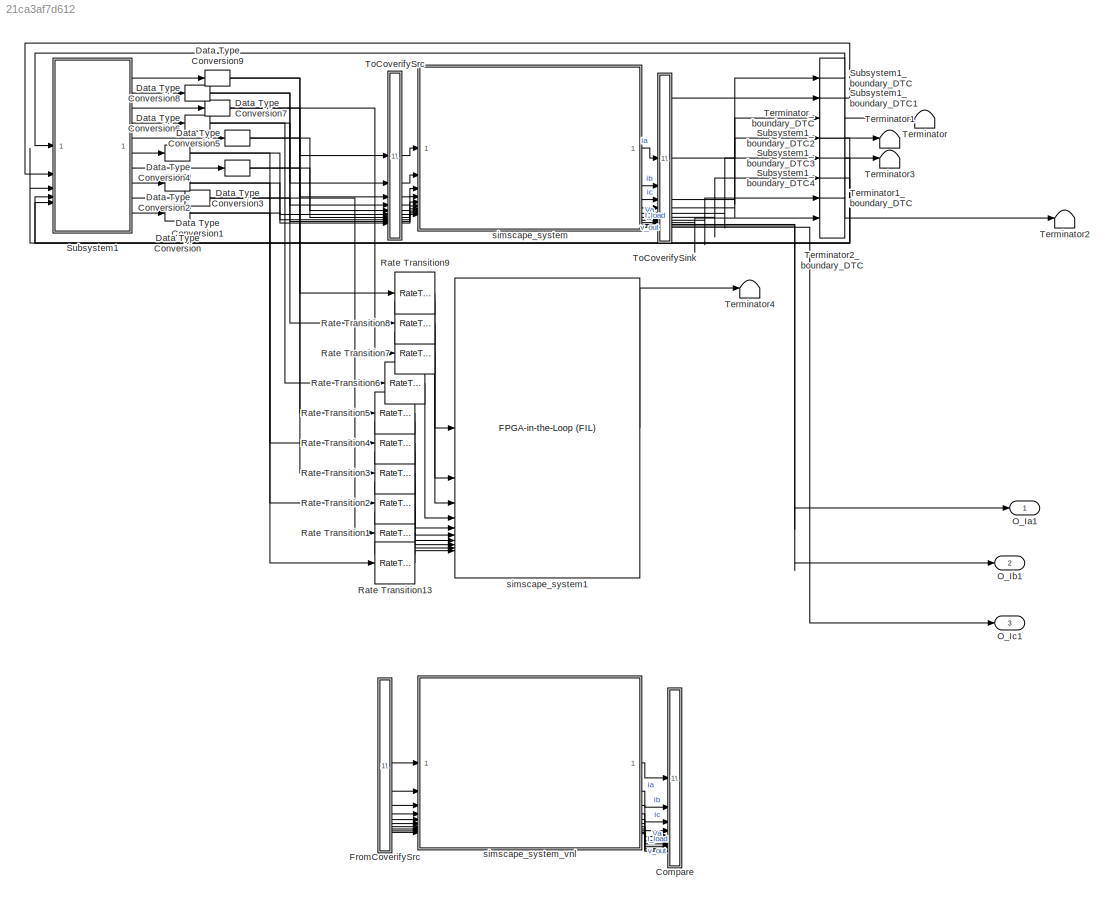
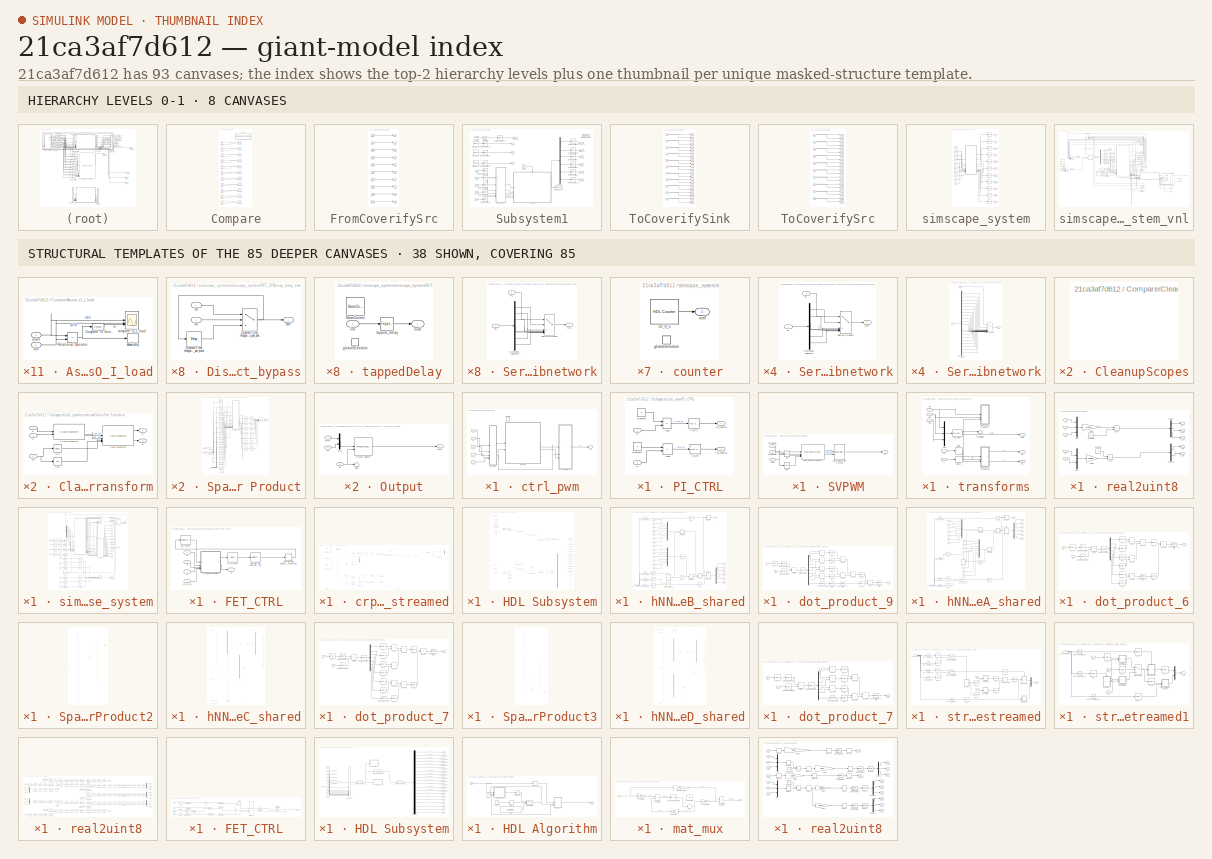
[diagram: thumbnail index - top-2 hierarchy levels (8 canvases) + 38 structural-template representatives of the remaining 85 canvases]
MODEL slx_21ca3af7d612
KIND model
CONFIG AbsTol = auto
CONFIG EnableMultiTasking = off
CONFIG FixedStep = auto
CONFIG InitFcn = fidelity_pfc_vals;\nload('<userpath>\Desktop\hil\pfc3ph\matlab\sim\sschdl\pfc_desktop\stateSpaceParameters.mat');\nnbits=(2^12)-2;\nnbits1=(2^11)-2;\nA_mat = fi(stateSpaceParameters_1.Ad,1,25,24);\nB_mat = fi(stateSpaceParameters_1.Bd,1,25,31);\nC_mat = fi(stateSpaceParameters_1.Cd,1,25,20);\nD_mat = fi(stateSpaceParameters_1.Dd,1,25,19);\nX0_mat= fi(stateSpaceParameters_1.X0,1,25,14);\n
CONFIG MaxStep = auto
CONFIG MinStep = auto
CONFIG RelTol = 1e-3
CONFIG SampleTimeConstraint = Unconstrained
CONFIG SolverName = VariableStepAuto
CONFIG StartTime = 0.0
CONFIG StopTime = 10.0
BLOCK [SubSystem] Compare
BLOCK [SubSystem] Compare/Assert_O_I_load
BLOCK [Assertion] Compare/Assert_O_I_load/AssertEq
  StopWhenAssertionFail = off
BLOCK [Reference] Compare/Assert_O_I_load/Compare To Zero  REF=simulink/Logic and Bit
Operations/Compare
To Zero
  SourceBlock = simulink/Logic and Bit\nOperations/Compare\nTo Zero
  SourceType = Compare To Zero
BLOCK [RelationalOperator] Compare/Assert_O_I_load/Relational Operator
  InputSameDT = off
  Operator = ==
  OutDataTypeStr = boolean
BLOCK [Scope] Compare/Assert_O_I_load/compare: O_I_load
  Floating = off
  NumInputPorts = 3
  ScopeSpecificationString = Simulink.scopes.TimeScopeBlockCfg('CurrentConfiguration', extmgr.ConfigurationSet(extmgr.Configuration('Core','General UI',true,'MessageLogAutoOpenMode','for warn/fail messages','ShowCloseAll',true,'ShowBringAllForward',true),extmgr.Configuration('Core','Source UI',true,'PlaybackToolbar',true),extmgr.Configuration('Sources','WiredSimulink',true,'PointsPerSignal',50000,'DataLoggingDecimation','1','...<+3251ch>  <repeated x11 — deduplicated; at blocks: compare: O_I_load, compare: O_Ia, compare: O_Ia1, compare: O_Ib, compare: O_Ib1, compare: O_Ic, compare: O_Ic1, compare: O_Va, compare: O_Vb, compare: O_Vc, compare: O_Vout>
BLOCK [Inport] Compare/Assert_O_I_load/cosim
BLOCK [Inport] Compare/Assert_O_I_load/dut
  Port = 2
BLOCK [SubSystem] Compare/Assert_O_Ia
BLOCK [Assertion] Compare/Assert_O_Ia/AssertEq
  StopWhenAssertionFail = off
BLOCK [Reference] Compare/Assert_O_Ia/Compare To Zero  REF=simulink/Logic and Bit
Operations/Compare
To Zero
  SourceBlock = simulink/Logic and Bit\nOperations/Compare\nTo Zero
  SourceType = Compare To Zero
BLOCK [RelationalOperator] Compare/Assert_O_Ia/Relational Operator
  InputSameDT = off
  Operator = ==
  OutDataTypeStr = boolean
BLOCK [Scope] Compare/Assert_O_Ia/compare: O_Ia
  Floating = off
  NumInputPorts = 3
BLOCK [Inport] Compare/Assert_O_Ia/cosim
BLOCK [Inport] Compare/Assert_O_Ia/dut
  Port = 2
BLOCK [SubSystem] Compare/Assert_O_Ia1
BLOCK [Assertion] Compare/Assert_O_Ia1/AssertEq
  StopWhenAssertionFail = off
BLOCK [Reference] Compare/Assert_O_Ia1/Compare To Zero  REF=simulink/Logic and Bit
Operations/Compare
To Zero
  SourceBlock = simulink/Logic and Bit\nOperations/Compare\nTo Zero
  SourceType = Compare To Zero
BLOCK [RelationalOperator] Compare/Assert_O_Ia1/Relational Operator
  InputSameDT = off
  Operator = ==
  OutDataTypeStr = boolean
BLOCK [Scope] Compare/Assert_O_Ia1/compare: O_Ia1
  Floating = off
  NumInputPorts = 3
BLOCK [Inport] Compare/Assert_O_Ia1/cosim
BLOCK [Inport] Compare/Assert_O_Ia1/dut
  Port = 2
BLOCK [SubSystem] Compare/Assert_O_Ib
BLOCK [Assertion] Compare/Assert_O_Ib/AssertEq
  StopWhenAssertionFail = off
BLOCK [Reference] Compare/Assert_O_Ib/Compare To Zero  REF=simulink/Logic and Bit
Operations/Compare
To Zero
  SourceBlock = simulink/Logic and Bit\nOperations/Compare\nTo Zero
  SourceType = Compare To Zero
BLOCK [RelationalOperator] Compare/Assert_O_Ib/Relational Operator
  InputSameDT = off
  Operator = ==
  OutDataTypeStr = boolean
BLOCK [Scope] Compare/Assert_O_Ib/compare: O_Ib
  Floating = off
  NumInputPorts = 3
BLOCK [Inport] Compare/Assert_O_Ib/cosim
BLOCK [Inport] Compare/Assert_O_Ib/dut
  Port = 2
BLOCK [SubSystem] Compare/Assert_O_Ib1
BLOCK [Assertion] Compare/Assert_O_Ib1/AssertEq
  StopWhenAssertionFail = off
BLOCK [Reference] Compare/Assert_O_Ib1/Compare To Zero  REF=simulink/Logic and Bit
Operations/Compare
To Zero
  SourceBlock = simulink/Logic and Bit\nOperations/Compare\nTo Zero
  SourceType = Compare To Zero
BLOCK [RelationalOperator] Compare/Assert_O_Ib1/Relational Operator
  InputSameDT = off
  Operator = ==
  OutDataTypeStr = boolean
BLOCK [Scope] Compare/Assert_O_Ib1/compare: O_Ib1
  Floating = off
  NumInputPorts = 3
BLOCK [Inport] Compare/Assert_O_Ib1/cosim
BLOCK [Inport] Compare/Assert_O_Ib1/dut
  Port = 2
BLOCK [SubSystem] Compare/Assert_O_Ic
BLOCK [Assertion] Compare/Assert_O_Ic/AssertEq
  StopWhenAssertionFail = off
BLOCK [Reference] Compare/Assert_O_Ic/Compare To Zero  REF=simulink/Logic and Bit
Operations/Compare
To Zero
  SourceBlock = simulink/Logic and Bit\nOperations/Compare\nTo Zero
  SourceType = Compare To Zero
BLOCK [RelationalOperator] Compare/Assert_O_Ic/Relational Operator
  InputSameDT = off
  Operator = ==
  OutDataTypeStr = boolean
BLOCK [Scope] Compare/Assert_O_Ic/compare: O_Ic
  Floating = off
  NumInputPorts = 3
BLOCK [Inport] Compare/Assert_O_Ic/cosim
BLOCK [Inport] Compare/Assert_O_Ic/dut
  Port = 2
BLOCK [SubSystem] Compare/Assert_O_Ic1
BLOCK [Assertion] Compare/Assert_O_Ic1/AssertEq
  StopWhenAssertionFail = off
BLOCK [Reference] Compare/Assert_O_Ic1/Compare To Zero  REF=simulink/Logic and Bit
Operations/Compare
To Zero
  SourceBlock = simulink/Logic and Bit\nOperations/Compare\nTo Zero
  SourceType = Compare To Zero
BLOCK [RelationalOperator] Compare/Assert_O_Ic1/Relational Operator
  InputSameDT = off
  Operator = ==
  OutDataTypeStr = boolean
BLOCK [Scope] Compare/Assert_O_Ic1/compare: O_Ic1
  Floating = off
  NumInputPorts = 3
BLOCK [Inport] Compare/Assert_O_Ic1/cosim
BLOCK [Inport] Compare/Assert_O_Ic1/dut
  Port = 2
BLOCK [SubSystem] Compare/Assert_O_Va
BLOCK [Assertion] Compare/Assert_O_Va/AssertEq
  StopWhenAssertionFail = off
BLOCK [Reference] Compare/Assert_O_Va/Compare To Zero  REF=simulink/Logic and Bit
Operations/Compare
To Zero
  SourceBlock = simulink/Logic and Bit\nOperations/Compare\nTo Zero
  SourceType = Compare To Zero
BLOCK [RelationalOperator] Compare/Assert_O_Va/Relational Operator
  InputSameDT = off
  Operator = ==
  OutDataTypeStr = boolean
BLOCK [Scope] Compare/Assert_O_Va/compare: O_Va
  Floating = off
  NumInputPorts = 3
BLOCK [Inport] Compare/Assert_O_Va/cosim
BLOCK [Inport] Compare/Assert_O_Va/dut
  Port = 2
BLOCK [SubSystem] Compare/Assert_O_Vb
BLOCK [Assertion] Compare/Assert_O_Vb/AssertEq
  StopWhenAssertionFail = off
BLOCK [Reference] Compare/Assert_O_Vb/Compare To Zero  REF=simulink/Logic and Bit
Operations/Compare
To Zero
  SourceBlock = simulink/Logic and Bit\nOperations/Compare\nTo Zero
  SourceType = Compare To Zero
BLOCK [RelationalOperator] Compare/Assert_O_Vb/Relational Operator
  InputSameDT = off
  Operator = ==
  OutDataTypeStr = boolean
BLOCK [Scope] Compare/Assert_O_Vb/compare: O_Vb
  Floating = off
  NumInputPorts = 3
BLOCK [Inport] Compare/Assert_O_Vb/cosim
BLOCK [Inport] Compare/Assert_O_Vb/dut
  Port = 2
BLOCK [SubSystem] Compare/Assert_O_Vc
BLOCK [Assertion] Compare/Assert_O_Vc/AssertEq
  StopWhenAssertionFail = off
BLOCK [Reference] Compare/Assert_O_Vc/Compare To Zero  REF=simulink/Logic and Bit
Operations/Compare
To Zero
  SourceBlock = simulink/Logic and Bit\nOperations/Compare\nTo Zero
  SourceType = Compare To Zero
BLOCK [RelationalOperator] Compare/Assert_O_Vc/Relational Operator
  InputSameDT = off
  Operator = ==
  OutDataTypeStr = boolean
BLOCK [Scope] Compare/Assert_O_Vc/compare: O_Vc
  Floating = off
  NumInputPorts = 3
BLOCK [Inport] Compare/Assert_O_Vc/cosim
BLOCK [Inport] Compare/Assert_O_Vc/dut
  Port = 2
BLOCK [SubSystem] Compare/Assert_O_Vout
BLOCK [Assertion] Compare/Assert_O_Vout/AssertEq
  StopWhenAssertionFail = off
BLOCK [Reference] Compare/Assert_O_Vout/Compare To Zero  REF=simulink/Logic and Bit
Operations/Compare
To Zero
  SourceBlock = simulink/Logic and Bit\nOperations/Compare\nTo Zero
  SourceType = Compare To Zero
BLOCK [RelationalOperator] Compare/Assert_O_Vout/Relational Operator
  InputSameDT = off
  Operator = ==
  OutDataTypeStr = boolean
BLOCK [Scope] Compare/Assert_O_Vout/compare: O_Vout
  Floating = off
  NumInputPorts = 3
BLOCK [Inport] Compare/Assert_O_Vout/cosim
BLOCK [Inport] Compare/Assert_O_Vout/dut
  Port = 2
BLOCK [SubSystem] Compare/CleanupScopes
  OpenFcn = blkName = gcb; %self block\nidx = regexp(blkName, '/CleanupScopes$', 'once');\nblkParent = blkName(1:idx-1);\nblks=find_system(blkParent, 'LookUnderMasks', 'all','blocktype', 'Scope');\nfor itr = 1:length(blks)\n	 hScopeCfg = get_param(blks{itr},'ScopeConfiguration');\n	 hScopeCfg.Visible = ~ hScopeCfg.Visible;\nend\ndrawnow;
BLOCK [SubSystem] Compare/Enable
  OpenFcn = blkName = gcb;\nidx = regexp(blkName, '/Enable$', 'once');\nblkParent = blkName(1:idx-1);\nblks=find_system(blkParent, 'LookUnderMasks', 'all','blocktype', 'Assertion');\ne = get_param(blks{1}, 'Enabled');\nif strcmp(e, 'on'), f= 'off';, else, f = 'on';, end\nfor ii=1:length(blks), set_param(blks{ii}, 'Enabled', f);, end\nset_param(gcb, 'MaskDisplay',['fprintf(message(''hdlcoder:cosim:vnl_dblclick_assert...<+47ch>
BLOCK [From] Compare/from1
  GotoTag = out1
  TagVisibility = global
BLOCK [From] Compare/from10
  GotoTag = out10
  TagVisibility = global
BLOCK [From] Compare/from11
  GotoTag = out11
  TagVisibility = global
BLOCK [From] Compare/from2
  GotoTag = out2
  TagVisibility = global
BLOCK [From] Compare/from3
  GotoTag = out3
  TagVisibility = global
BLOCK [From] Compare/from4
  GotoTag = out4
  TagVisibility = global
BLOCK [From] Compare/from5
  GotoTag = out5
  TagVisibility = global
BLOCK [From] Compare/from6
  GotoTag = out6
  TagVisibility = global
BLOCK [From] Compare/from7
  GotoTag = out7
  TagVisibility = global
BLOCK [From] Compare/from8
  GotoTag = out8
  TagVisibility = global
BLOCK [From] Compare/from9
  GotoTag = out9
  TagVisibility = global
BLOCK [Inport] Compare/in1
BLOCK [Inport] Compare/in10
  Port = 10
BLOCK [Inport] Compare/in11
  Port = 11
BLOCK [Inport] Compare/in2
  Port = 2
BLOCK [Inport] Compare/in3
  Port = 3
BLOCK [Inport] Compare/in4
  Port = 4
BLOCK [Inport] Compare/in5
  Port = 5
BLOCK [Inport] Compare/in6
  Port = 6
BLOCK [Inport] Compare/in7
  Port = 7
BLOCK [Inport] Compare/in8
  Port = 8
BLOCK [Inport] Compare/in9
  Port = 9
BLOCK [DataTypeConversion] Data Type Conversion
  OutDataTypeStr = fixdt(1,18,8)
  RndMeth = Floor
  SaturateOnIntegerOverflow = off
BLOCK [DataTypeConversion] Data Type Conversion1
  OutDataTypeStr = fixdt(1,18,8)
  RndMeth = Floor
  SaturateOnIntegerOverflow = off
BLOCK [DataTypeConversion] Data Type Conversion2
  OutDataTypeStr = fixdt(1,18,8)
  RndMeth = Floor
  SaturateOnIntegerOverflow = off
BLOCK [DataTypeConversion] Data Type Conversion3
  OutDataTypeStr = fixdt(1,18,8)
  RndMeth = Floor
  SaturateOnIntegerOverflow = off
BLOCK [DataTypeConversion] Data Type Conversion4
  OutDataTypeStr = boolean
  RndMeth = Floor
  SaturateOnIntegerOverflow = off
BLOCK [DataTypeConversion] Data Type Conversion5
  OutDataTypeStr = boolean
  RndMeth = Floor
  SaturateOnIntegerOverflow = off
BLOCK [DataTypeConversion] Data Type Conversion6
  OutDataTypeStr = boolean
  RndMeth = Floor
  SaturateOnIntegerOverflow = off
BLOCK [DataTypeConversion] Data Type Conversion7
  OutDataTypeStr = boolean
  RndMeth = Floor
  SaturateOnIntegerOverflow = off
BLOCK [DataTypeConversion] Data Type Conversion8
  OutDataTypeStr = boolean
  RndMeth = Floor
  SaturateOnIntegerOverflow = off
BLOCK [DataTypeConversion] Data Type Conversion9
  OutDataTypeStr = boolean
  RndMeth = Floor
  SaturateOnIntegerOverflow = off
BLOCK [SubSystem] FromCoverifySrc
BLOCK [From] FromCoverifySrc/from1
  GotoTag = in1
  TagVisibility = global
BLOCK [From] FromCoverifySrc/from10
  GotoTag = in10
  TagVisibility = global
BLOCK [From] FromCoverifySrc/from2
  GotoTag = in2
  TagVisibility = global
BLOCK [From] FromCoverifySrc/from3
  GotoTag = in3
  TagVisibility = global
BLOCK [From] FromCoverifySrc/from4
  GotoTag = in4
  TagVisibility = global
BLOCK [From] FromCoverifySrc/from5
  GotoTag = in5
  TagVisibility = global
BLOCK [From] FromCoverifySrc/from6
  GotoTag = in6
  TagVisibility = global
BLOCK [From] FromCoverifySrc/from7
  GotoTag = in7
  TagVisibility = global
BLOCK [From] FromCoverifySrc/from8
  GotoTag = in8
  TagVisibility = global
BLOCK [From] FromCoverifySrc/from9
  GotoTag = in9
  TagVisibility = global
BLOCK [Outport] FromCoverifySrc/out1
BLOCK [Outport] FromCoverifySrc/out10
  Port = 10
BLOCK [Outport] FromCoverifySrc/out2
  Port = 2
BLOCK [Outport] FromCoverifySrc/out3
  Port = 3
BLOCK [Outport] FromCoverifySrc/out4
  Port = 4
BLOCK [Outport] FromCoverifySrc/out5
  Port = 5
BLOCK [Outport] FromCoverifySrc/out6
  Port = 6
BLOCK [Outport] FromCoverifySrc/out7
  Port = 7
BLOCK [Outport] FromCoverifySrc/out8
  Port = 8
BLOCK [Outport] FromCoverifySrc/out9
  Port = 9
BLOCK [Outport] O_Ia1
BLOCK [Outport] O_Ib1
  Port = 2
BLOCK [Outport] O_Ic1
  Port = 3
BLOCK [RateTransition] Rate Transition1
BLOCK [RateTransition] Rate Transition13
BLOCK [RateTransition] Rate Transition2
BLOCK [RateTransition] Rate Transition3
BLOCK [RateTransition] Rate Transition4
BLOCK [RateTransition] Rate Transition5
BLOCK [RateTransition] Rate Transition6
BLOCK [RateTransition] Rate Transition7
BLOCK [RateTransition] Rate Transition8
BLOCK [RateTransition] Rate Transition9
BLOCK [SubSystem] Subsystem1
BLOCK [Outport] Subsystem1/DW_L1
  Port = 2
BLOCK [Outport] Subsystem1/DW_L2
  Port = 4
BLOCK [Outport] Subsystem1/DW_L3
  Port = 6
BLOCK [Demux] Subsystem1/Demux
  Outputs = 6
BLOCK [FromWorkspace] Subsystem1/From Workspace
  Commented = on
  Interpolate = off
  OutputAfterFinalValue = Holding final value
  SampleTime = t_ss
  VariableName = pwm
  ZeroCross = off
BLOCK [Outport] Subsystem1/I_load_in_
  Port = 7
BLOCK [Inport] Subsystem1/O_Ia
BLOCK [Inport] Subsystem1/O_Ib
  Port = 2
BLOCK [Inport] Subsystem1/O_Va
  Port = 3
BLOCK [Inport] Subsystem1/O_Vb
  Port = 5
BLOCK [Inport] Subsystem1/O_Vc
  Port = 4
BLOCK [Reference] Subsystem1/Ramp  REF=simulink/Sources/Ramp
  SourceBlock = simulink/Sources/Ramp
  SourceType = Ramp
BLOCK [RateTransition] Subsystem1/Rate Transition1
BLOCK [RateTransition] Subsystem1/Rate Transition10
BLOCK [RateTransition] Subsystem1/Rate Transition11
BLOCK [RateTransition] Subsystem1/Rate Transition12
BLOCK [RateTransition] Subsystem1/Rate Transition13
BLOCK [RateTransition] Subsystem1/Rate Transition14
  OutPortSampleTime = t_ss
BLOCK [RateTransition] Subsystem1/Rate Transition15
BLOCK [RateTransition] Subsystem1/Rate Transition2
BLOCK [RateTransition] Subsystem1/Rate Transition3
BLOCK [RateTransition] Subsystem1/Rate Transition4
BLOCK [RateTransition] Subsystem1/Rate Transition5
BLOCK [RateTransition] Subsystem1/Rate Transition6
BLOCK [RateTransition] Subsystem1/Rate Transition7
BLOCK [RateTransition] Subsystem1/Rate Transition8
BLOCK [RateTransition] Subsystem1/Rate Transition9
BLOCK [Saturate] Subsystem1/Saturation
  Commented = on
  UpperLimit = 2
BLOCK [Reference] Subsystem1/Sine Wave  REF=dspsrcs4/Sine Wave
  LibrarySourceBlock = dsphdlsupportsrcs/Sine Wave
  SourceBlock = dspsrcs4/Sine Wave
  SourceType = Sine Wave
BLOCK [Reference] Subsystem1/Sine Wave1  REF=dspsrcs4/Sine Wave
  LibrarySourceBlock = dsphdlsupportsrcs/Sine Wave
  SourceBlock = dspsrcs4/Sine Wave
  SourceType = Sine Wave
BLOCK [Reference] Subsystem1/Sine Wave2  REF=dspsrcs4/Sine Wave
  LibrarySourceBlock = dsphdlsupportsrcs/Sine Wave
  SourceBlock = dspsrcs4/Sine Wave
  SourceType = Sine Wave
BLOCK [Step] Subsystem1/Step
  Commented = on
  SampleTime = 0
  Time = 2/50
BLOCK [ToWorkspace] Subsystem1/To Workspace
  Commented = on
  FixptAsFi = on
  MaxDataPoints = inf
  SampleTime = -1
  SaveFormat = Timeseries
  VariableName = pwm
BLOCK [Outport] Subsystem1/UP_L1
BLOCK [Outport] Subsystem1/UP_L2
  Port = 3
BLOCK [Outport] Subsystem1/UP_L3
  Port = 5
BLOCK [SubSystem] Subsystem1/ctrl_pwm
BLOCK [EnablePort] Subsystem1/ctrl_pwm/Enable
BLOCK [Inport] Subsystem1/ctrl_pwm/O_Va
  Port = 3
BLOCK [Inport] Subsystem1/ctrl_pwm/O_Vb
  Port = 4
BLOCK [Inport] Subsystem1/ctrl_pwm/O_Vc
  Port = 5
BLOCK [SubSystem] Subsystem1/ctrl_pwm/PI_CTRL
BLOCK [Sum] Subsystem1/ctrl_pwm/PI_CTRL/Add3
  IconShape = rectangular
  Inputs = +-
BLOCK [Sum] Subsystem1/ctrl_pwm/PI_CTRL/Add4
  IconShape = rectangular
  Inputs = +-
BLOCK [Constant] Subsystem1/ctrl_pwm/PI_CTRL/Constant
  SampleTime = t_ss
  Value = 0
BLOCK [Constant] Subsystem1/ctrl_pwm/PI_CTRL/Constant1
  SampleTime = t_ss
  Value = -4
BLOCK [Reference] Subsystem1/ctrl_pwm/PI_CTRL/Vd_ctrl  REF=slpidlib/PID Controller
  SourceBlock = slpidlib/PID Controller
  SourceType = PID 1dof
BLOCK [Outport] Subsystem1/ctrl_pwm/PI_CTRL/Vd_inductor
BLOCK [Reference] Subsystem1/ctrl_pwm/PI_CTRL/Vq_ctrl  REF=slpidlib/PID Controller
  SourceBlock = slpidlib/PID Controller
  SourceType = PID 1dof
BLOCK [Outport] Subsystem1/ctrl_pwm/PI_CTRL/Vq_inductor
  Port = 2
BLOCK [Inport] Subsystem1/ctrl_pwm/PI_CTRL/id
BLOCK [Inport] Subsystem1/ctrl_pwm/PI_CTRL/iq
  Port = 2
BLOCK [Outport] Subsystem1/ctrl_pwm/Qs
BLOCK [SubSystem] Subsystem1/ctrl_pwm/SVPWM
BLOCK [Trigonometry] Subsystem1/ctrl_pwm/SVPWM/Cos
  Operator = cos
BLOCK [Reference] Subsystem1/ctrl_pwm/SVPWM/Inverse Park Transform  REF=mcbcontrolslib/Inverse Park Transform
  SourceBlock = mcbcontrolslib/Inverse Park Transform
  SourceType = Inverse Park Transform
BLOCK [Outport] Subsystem1/ctrl_pwm/SVPWM/P
BLOCK [Reference] Subsystem1/ctrl_pwm/SVPWM/SVPWM Generator (2-Level)  REF=spsSVPWMGenerator2LevelLib/SVPWM Generator
(2-Level)
  SourceBlock = spsSVPWMGenerator2LevelLib/SVPWM Generator\n(2-Level)
  SourceType = SVPWM Generator (2-Level)
BLOCK [Trigonometry] Subsystem1/ctrl_pwm/SVPWM/Sin
BLOCK [Inport] Subsystem1/ctrl_pwm/SVPWM/Vd_inductor
BLOCK [Inport] Subsystem1/ctrl_pwm/SVPWM/Vq_inductor
  Port = 3
BLOCK [Inport] Subsystem1/ctrl_pwm/SVPWM/angle
  Port = 2
BLOCK [Inport] Subsystem1/ctrl_pwm/a
BLOCK [Inport] Subsystem1/ctrl_pwm/b
  Port = 2
BLOCK [SubSystem] Subsystem1/ctrl_pwm/transforms
BLOCK [SubSystem] Subsystem1/ctrl_pwm/transforms/Claro-Parl Transform
  Commented = on
BLOCK [Reference] Subsystem1/ctrl_pwm/transforms/Claro-Parl Transform/Clarke Transform  REF=mcbcontrolslib/Clarke Transform
  SourceBlock = mcbcontrolslib/Clarke Transform
  SourceType = Clarke Transform
BLOCK [Trigonometry] Subsystem1/ctrl_pwm/transforms/Claro-Parl Transform/Cos
  Operator = cos
BLOCK [Reference] Subsystem1/ctrl_pwm/transforms/Claro-Parl Transform/Park Transform  REF=mcbcontrolslib/Park Transform
  SourceBlock = mcbcontrolslib/Park Transform
  SourceType = Park Transform
BLOCK [Trigonometry] Subsystem1/ctrl_pwm/transforms/Claro-Parl Transform/Sin
BLOCK [Inport] Subsystem1/ctrl_pwm/transforms/Claro-Parl Transform/a
BLOCK [Inport] Subsystem1/ctrl_pwm/transforms/Claro-Parl Transform/b
  Port = 2
BLOCK [Outport] Subsystem1/ctrl_pwm/transforms/Claro-Parl Transform/d
BLOCK [Outport] Subsystem1/ctrl_pwm/transforms/Claro-Parl Transform/q
  Port = 2
BLOCK [Inport] Subsystem1/ctrl_pwm/transforms/Claro-Parl Transform/wt
  Port = 3
BLOCK [SubSystem] Subsystem1/ctrl_pwm/transforms/Claro-Parl Transform1
BLOCK [Reference] Subsystem1/ctrl_pwm/transforms/Claro-Parl Transform1/Clarke Transform  REF=mcbcontrolslib/Clarke Transform
  SourceBlock = mcbcontrolslib/Clarke Transform
  SourceType = Clarke Transform
BLOCK [Trigonometry] Subsystem1/ctrl_pwm/transforms/Claro-Parl Transform1/Cos
  Operator = cos
BLOCK [Reference] Subsystem1/ctrl_pwm/transforms/Claro-Parl Transform1/Park Transform  REF=mcbcontrolslib/Park Transform
  SourceBlock = mcbcontrolslib/Park Transform
  SourceType = Park Transform
BLOCK [Trigonometry] Subsystem1/ctrl_pwm/transforms/Claro-Parl Transform1/Sin
BLOCK [Inport] Subsystem1/ctrl_pwm/transforms/Claro-Parl Transform1/a
BLOCK [Inport] Subsystem1/ctrl_pwm/transforms/Claro-Parl Transform1/b
  Port = 2
BLOCK [Outport] Subsystem1/ctrl_pwm/transforms/Claro-Parl Transform1/d
BLOCK [Outport] Subsystem1/ctrl_pwm/transforms/Claro-Parl Transform1/q
  Port = 2
BLOCK [Inport] Subsystem1/ctrl_pwm/transforms/Claro-Parl Transform1/wt
  Port = 3
BLOCK [Delay] Subsystem1/ctrl_pwm/transforms/Delay
  DelayLength = 1
  InputPortMap = u0
BLOCK [Delay] Subsystem1/ctrl_pwm/transforms/Delay1
  DelayLength = 1
  InputPortMap = u0
BLOCK [Inport] Subsystem1/ctrl_pwm/transforms/In3
  Port = 3
BLOCK [Inport] Subsystem1/ctrl_pwm/transforms/In4
  Port = 4
BLOCK [Inport] Subsystem1/ctrl_pwm/transforms/In5
  Port = 5
BLOCK [Mux] Subsystem1/ctrl_pwm/transforms/Mux
  DisplayOption = bar
  Inputs = 3
BLOCK [Reference] Subsystem1/ctrl_pwm/transforms/PLL (3ph)  REF=spsPLL3phLib/PLL
(3ph)
  SourceBlock = spsPLL3phLib/PLL\n(3ph)
  SourceType = PLL (3ph)
BLOCK [Terminator] Subsystem1/ctrl_pwm/transforms/Terminator
BLOCK [Inport] Subsystem1/ctrl_pwm/transforms/a
BLOCK [Outport] Subsystem1/ctrl_pwm/transforms/angle
  Port = 3
BLOCK [Inport] Subsystem1/ctrl_pwm/transforms/b
  Port = 2
BLOCK [Outport] Subsystem1/ctrl_pwm/transforms/id
BLOCK [Outport] Subsystem1/ctrl_pwm/transforms/iq
  Port = 2
BLOCK [SubSystem] Subsystem1/real2uint8
BLOCK [Sum] Subsystem1/real2uint8/Add2
  IconShape = rectangular
  Inputs = -+
  OutDataTypeStr = Inherit: Same as first input
BLOCK [Sum] Subsystem1/real2uint8/Add3
  IconShape = rectangular
  Inputs = +-
BLOCK [Constant] Subsystem1/real2uint8/Constant
  SampleTime = -1
  Value = 40
BLOCK [Constant] Subsystem1/real2uint8/Constant1
  SampleTime = -1
  Value = 420
BLOCK [Demux] Subsystem1/real2uint8/Demux
  Outputs = 3
BLOCK [Demux] Subsystem1/real2uint8/Demux1
  Outputs = 2
BLOCK [Gain] Subsystem1/real2uint8/Gain2
  Gain = 80/nbits
  OutDataTypeStr = Inherit: Same as input
BLOCK [Gain] Subsystem1/real2uint8/Gain5
  Gain = 840/nbits
  OutDataTypeStr = Inherit: Same as input
BLOCK [Inport] Subsystem1/real2uint8/Ia
BLOCK [Inport] Subsystem1/real2uint8/Ib
  Port = 2
BLOCK [Mux] Subsystem1/real2uint8/Mux
  DisplayOption = bar
  Inputs = 3
BLOCK [Mux] Subsystem1/real2uint8/Mux1
  DisplayOption = bar
  Inputs = 2
BLOCK [Outport] Subsystem1/real2uint8/O_Ia
BLOCK [Outport] Subsystem1/real2uint8/O_Ib
  Port = 2
BLOCK [Outport] Subsystem1/real2uint8/O_Va
  Port = 3
BLOCK [Outport] Subsystem1/real2uint8/O_Vb
  Port = 4
BLOCK [Outport] Subsystem1/real2uint8/O_Vc
  Port = 5
BLOCK [Inport] Subsystem1/real2uint8/Va
  Port = 3
BLOCK [Inport] Subsystem1/real2uint8/Vb
  Port = 4
BLOCK [Inport] Subsystem1/real2uint8/Vc
  Port = 5
BLOCK [Outport] Subsystem1/va
  Port = 8
BLOCK [Outport] Subsystem1/vb
  Port = 9
BLOCK [Outport] Subsystem1/vc
  Port = 10
BLOCK [DataTypeConversion] Subsystem1_boundary_DTC
BLOCK [DataTypeConversion] Subsystem1_boundary_DTC1
BLOCK [DataTypeConversion] Subsystem1_boundary_DTC2
BLOCK [DataTypeConversion] Subsystem1_boundary_DTC3
BLOCK [DataTypeConversion] Subsystem1_boundary_DTC4
BLOCK [Terminator] Terminator
BLOCK [Terminator] Terminator1
BLOCK [DataTypeConversion] Terminator1_boundary_DTC
BLOCK [Terminator] Terminator2
BLOCK [DataTypeConversion] Terminator2_boundary_DTC
BLOCK [Terminator] Terminator3
BLOCK [Terminator] Terminator4
BLOCK [DataTypeConversion] Terminator_boundary_DTC
BLOCK [SubSystem] ToCoverifySink
BLOCK [Goto] ToCoverifySink/goto1
  GotoTag = out1
  TagVisibility = global
BLOCK [Goto] ToCoverifySink/goto10
  GotoTag = out10
  TagVisibility = global
BLOCK [Goto] ToCoverifySink/goto11
  GotoTag = out11
  TagVisibility = global
BLOCK [Goto] ToCoverifySink/goto2
  GotoTag = out2
  TagVisibility = global
BLOCK [Goto] ToCoverifySink/goto3
  GotoTag = out3
  TagVisibility = global
BLOCK [Goto] ToCoverifySink/goto4
  GotoTag = out4
  TagVisibility = global
BLOCK [Goto] ToCoverifySink/goto5
  GotoTag = out5
  TagVisibility = global
BLOCK [Goto] ToCoverifySink/goto6
  GotoTag = out6
  TagVisibility = global
BLOCK [Goto] ToCoverifySink/goto7
  GotoTag = out7
  TagVisibility = global
BLOCK [Goto] ToCoverifySink/goto8
  GotoTag = out8
  TagVisibility = global
BLOCK [Goto] ToCoverifySink/goto9
  GotoTag = out9
  TagVisibility = global
BLOCK [Inport] ToCoverifySink/in1
BLOCK [Inport] ToCoverifySink/in10
  Port = 10
BLOCK [Inport] ToCoverifySink/in11
  Port = 11
BLOCK [Inport] ToCoverifySink/in2
  Port = 2
BLOCK [Inport] ToCoverifySink/in3
  Port = 3
BLOCK [Inport] ToCoverifySink/in4
  Port = 4
BLOCK [Inport] ToCoverifySink/in5
  Port = 5
BLOCK [Inport] ToCoverifySink/in6
  Port = 6
BLOCK [Inport] ToCoverifySink/in7
  Port = 7
BLOCK [Inport] ToCoverifySink/in8
  Port = 8
BLOCK [Inport] ToCoverifySink/in9
  Port = 9
BLOCK [Outport] ToCoverifySink/out1
BLOCK [Outport] ToCoverifySink/out10
  Port = 10
BLOCK [Outport] ToCoverifySink/out11
  Port = 11
BLOCK [Outport] ToCoverifySink/out2
  Port = 2
BLOCK [Outport] ToCoverifySink/out3
  Port = 3
BLOCK [Outport] ToCoverifySink/out4
  Port = 4
BLOCK [Outport] ToCoverifySink/out5
  Port = 5
BLOCK [Outport] ToCoverifySink/out6
  Port = 6
BLOCK [Outport] ToCoverifySink/out7
  Port = 7
BLOCK [Outport] ToCoverifySink/out8
  Port = 8
BLOCK [Outport] ToCoverifySink/out9
  Port = 9
BLOCK [SubSystem] ToCoverifySrc
BLOCK [Goto] ToCoverifySrc/goto1
  GotoTag = in1
  TagVisibility = global
BLOCK [Goto] ToCoverifySrc/goto10
  GotoTag = in10
  TagVisibility = global
BLOCK [Goto] ToCoverifySrc/goto2
  GotoTag = in2
  TagVisibility = global
BLOCK [Goto] ToCoverifySrc/goto3
  GotoTag = in3
  TagVisibility = global
BLOCK [Goto] ToCoverifySrc/goto4
  GotoTag = in4
  TagVisibility = global
BLOCK [Goto] ToCoverifySrc/goto5
  GotoTag = in5
  TagVisibility = global
BLOCK [Goto] ToCoverifySrc/goto6
  GotoTag = in6
  TagVisibility = global
BLOCK [Goto] ToCoverifySrc/goto7
  GotoTag = in7
  TagVisibility = global
BLOCK [Goto] ToCoverifySrc/goto8
  GotoTag = in8
  TagVisibility = global
BLOCK [Goto] ToCoverifySrc/goto9
  GotoTag = in9
  TagVisibility = global
BLOCK [Inport] ToCoverifySrc/in1
BLOCK [Inport] ToCoverifySrc/in10
  Port = 10
BLOCK [Inport] ToCoverifySrc/in2
  Port = 2
BLOCK [Inport] ToCoverifySrc/in3
  Port = 3
BLOCK [Inport] ToCoverifySrc/in4
  Port = 4
BLOCK [Inport] ToCoverifySrc/in5
  Port = 5
BLOCK [Inport] ToCoverifySrc/in6
  Port = 6
BLOCK [Inport] ToCoverifySrc/in7
  Port = 7
BLOCK [Inport] ToCoverifySrc/in8
  Port = 8
BLOCK [Inport] ToCoverifySrc/in9
  Port = 9
BLOCK [Outport] ToCoverifySrc/out1
BLOCK [Outport] ToCoverifySrc/out10
  Port = 10
BLOCK [Outport] ToCoverifySrc/out2
  Port = 2
BLOCK [Outport] ToCoverifySrc/out3
  Port = 3
BLOCK [Outport] ToCoverifySrc/out4
  Port = 4
BLOCK [Outport] ToCoverifySrc/out5
  Port = 5
BLOCK [Outport] ToCoverifySrc/out6
  Port = 6
BLOCK [Outport] ToCoverifySrc/out7
  Port = 7
BLOCK [Outport] ToCoverifySrc/out8
  Port = 8
BLOCK [Outport] ToCoverifySrc/out9
  Port = 9
BLOCK [SubSystem] simscape_system
BLOCK [Inport] simscape_system/DW_L1
  OutDataTypeStr = boolean
  Port = 2
  PortDimensions = 1
  SampleTime = 5.12820512820513e-07
BLOCK [Inport] simscape_system/DW_L2
  OutDataTypeStr = boolean
  Port = 4
  PortDimensions = 1
  SampleTime = 5.12820512820513e-07
BLOCK [Inport] simscape_system/DW_L3
  OutDataTypeStr = boolean
  Port = 6
  PortDimensions = 1
  SampleTime = 5.12820512820513e-07
BLOCK [Inport] simscape_system/I_load_in_
  OutDataTypeStr = fixdt(1, 18, 8)
  Port = 7
  PortDimensions = 1
  SampleTime = 5.12820512820513e-07
BLOCK [Outport] simscape_system/O_I_load
  Port = 8
  SampleTime = 5.12820512820513e-07
BLOCK [Outport] simscape_system/O_Ia
  SampleTime = 5.12820512820513e-07
BLOCK [Outport] simscape_system/O_Ia1
  Port = 9
  SampleTime = 5.12820512820513e-07
BLOCK [Outport] simscape_system/O_Ib
  Port = 2
  SampleTime = 5.12820512820513e-07
BLOCK [Outport] simscape_system/O_Ib1
  Port = 10
  SampleTime = 5.12820512820513e-07
BLOCK [Outport] simscape_system/O_Ic
  Port = 3
  SampleTime = 5.12820512820513e-07
BLOCK [Outport] simscape_system/O_Ic1
  Port = 11
  SampleTime = 5.12820512820513e-07
BLOCK [Outport] simscape_system/O_Va
  Port = 6
  SampleTime = 5.12820512820513e-07
BLOCK [Outport] simscape_system/O_Vb
  Port = 5
  SampleTime = 5.12820512820513e-07
BLOCK [Outport] simscape_system/O_Vc
  Port = 4
  SampleTime = 5.12820512820513e-07
BLOCK [Outport] simscape_system/O_Vout
  Port = 7
  SampleTime = 5.12820512820513e-07
BLOCK [Inport] simscape_system/UP_L1
  OutDataTypeStr = boolean
  PortDimensions = 1
  SampleTime = 5.12820512820513e-07
BLOCK [Inport] simscape_system/UP_L2
  OutDataTypeStr = boolean
  Port = 3
  PortDimensions = 1
  SampleTime = 5.12820512820513e-07
BLOCK [Inport] simscape_system/UP_L3
  OutDataTypeStr = boolean
  Port = 5
  PortDimensions = 1
  SampleTime = 5.12820512820513e-07
BLOCK [SubSystem] simscape_system/simscape_system
BLOCK [Inport] simscape_system/simscape_system/DW_L1
  OutDataTypeStr = boolean
  Port = 2
  SampleTime = 5.12820512820513e-07
BLOCK [Inport] simscape_system/simscape_system/DW_L2
  OutDataTypeStr = boolean
  Port = 4
  SampleTime = 5.12820512820513e-07
BLOCK [Inport] simscape_system/simscape_system/DW_L3
  OutDataTypeStr = boolean
  Port = 6
  SampleTime = 5.12820512820513e-07
BLOCK [SubSystem] simscape_system/simscape_system/FET_CTRL
BLOCK [RateTransition] simscape_system/simscape_system/FET_CTRL/Discrete-Time Integrator_reg
  InitialCondition = double(0)
  OutPortSampleTimeMultiple = 49
  OutPortSampleTimeOpt = Multiple of input port sample time
BLOCK [Delay] simscape_system/simscape_system/FET_CTRL/Discrete-Time Integrator_reg_absorbed
  DelayLength = 0
  InputPortMap = u0
BLOCK [Inport] simscape_system/simscape_system/FET_CTRL/G
  OutDataTypeStr = boolean
  Port = 3
  PortDimensions = [6]
  SampleTime = 1.0465724751439e-08
BLOCK [Delay] simscape_system/simscape_system/FET_CTRL/crp_out_delay
  DelayLength = double(1)
  InitialCondition = 0
  InputPortMap = u0
  SampleTime = 1.0465724751439e-08
BLOCK [SubSystem] simscape_system/simscape_system/FET_CTRL/crp_temp_streamed
BLOCK [Constant] simscape_system/simscape_system/FET_CTRL/crp_temp_streamed/Constant
  OutDataTypeStr = fixdt(1, 18, 17)
  SampleTime = 1.0465724751439e-08
  Value = -0.6999969482421875
BLOCK [Saturate] simscape_system/simscape_system/FET_CTRL/crp_temp_streamed/Discrete-Time Integrator_saturate
  LowerLimit = fi(0,1,18,8,"hex","39c00")
  OutDataTypeStr = fixdt(1, 18, 8)
  SampleTime = 1.0465724751439e-08
  UpperLimit = fi(0,1,18,8,"hex","06400")
BLOCK [SubSystem] simscape_system/simscape_system/FET_CTRL/crp_temp_streamed/Discrete-Time Integrator_u_sat_bypass
BLOCK [Switch] simscape_system/simscape_system/FET_CTRL/crp_temp_streamed/Discrete-Time Integrator_u_sat_bypass/Discrete-Time Integrator_u_sat_enb
  Criteria = u2 ~= 0
  InputSameDT = off
  OutDataTypeStr = fixdt(1, 18, 8)
  SampleTime = 1.0465724751439e-08
  SaturateOnIntegerOverflow = off
  Threshold = double(0)
BLOCK [Delay] simscape_system/simscape_system/FET_CTRL/crp_temp_streamed/Discrete-Time Integrator_u_sat_bypass/Discrete-Time Integrator_u_sat_state
  DelayLength = double(1)
  InitialCondition = 0
  InputPortMap = u0
  SampleTime = 1.0465724751439e-08
BLOCK [Inport] simscape_system/simscape_system/FET_CTRL/crp_temp_streamed/Discrete-Time Integrator_u_sat_bypass/in0
  OutDataTypeStr = fixdt(1, 18, 8)
  SampleTime = 1.0465724751439e-08
BLOCK [Inport] simscape_system/simscape_system/FET_CTRL/crp_temp_streamed/Discrete-Time Integrator_u_sat_bypass/in1
  OutDataTypeStr = boolean
  Port = 2
  SampleTime = 1.0465724751439e-08
BLOCK [Outport] simscape_system/simscape_system/FET_CTRL/crp_temp_streamed/Discrete-Time Integrator_u_sat_bypass/out0
  OutDataTypeStr = fixdt(1, 18, 8)
  SampleTime = 1.0465724751439e-08
BLOCK [RelationalOperator] simscape_system/simscape_system/FET_CTRL/crp_temp_streamed/Equal
  InputSameDT = off
  OutDataTypeStr = boolean
  SampleTime = 1.0465724751439e-08
BLOCK [Product] simscape_system/simscape_system/FET_CTRL/crp_temp_streamed/Gain1
  Inputs = **
  OutDataTypeStr = fixdt(1, 36, 23)
  SampleTime = 1.0465724751439e-08
BLOCK [Constant] simscape_system/simscape_system/FET_CTRL/crp_temp_streamed/Gain1_const
  OutDataTypeStr = fixdt(1, 18, 17)
  SampleTime = 1.0465724751439e-08
  Value = -1
BLOCK [DataTypeConversion] simscape_system/simscape_system/FET_CTRL/crp_temp_streamed/Gain1_out_dtc
  OutDataTypeStr = fixdt(1, 18, 12)
  RndMeth = Floor
  SampleTime = 1.0465724751439e-08
  SaturateOnIntegerOverflow = off
BLOCK [Product] simscape_system/simscape_system/FET_CTRL/crp_temp_streamed/Gain3
  Inputs = **
  OutDataTypeStr = fixdt(1, 36, 28)
  SampleTime = 1.0465724751439e-08
BLOCK [Constant] simscape_system/simscape_system/FET_CTRL/crp_temp_streamed/Gain3_const
  OutDataTypeStr = fixdt(1, 18, 22)
  SampleTime = 1.0465724751439e-08
  Value = 0.019999980926513671875
BLOCK [DataTypeConversion] simscape_system/simscape_system/FET_CTRL/crp_temp_streamed/Gain3_out_dtc
  OutDataTypeStr = fixdt(1, 18, 12)
  RndMeth = Floor
  SampleTime = 1.0465724751439e-08
  SaturateOnIntegerOverflow = off
BLOCK [Delay] simscape_system/simscape_system/FET_CTRL/crp_temp_streamed/HwModeRegister
  DelayLength = double(1)
  InitialCondition = 0
  InputPortMap = u0
  SampleTime = 1.0465724751439e-08
BLOCK [Delay] simscape_system/simscape_system/FET_CTRL/crp_temp_streamed/HwModeRegister1
  DelayLength = double(1)
  InitialCondition = 0
  InputPortMap = u0
  SampleTime = 1.0465724751439e-08
BLOCK [Delay] simscape_system/simscape_system/FET_CTRL/crp_temp_streamed/HwModeRegister2
  DelayLength = double(1)
  InitialCondition = 0
  InputPortMap = u0
  SampleTime = 1.0465724751439e-08
BLOCK [Delay] simscape_system/simscape_system/FET_CTRL/crp_temp_streamed/HwModeRegister3
  DelayLength = double(1)
  InitialCondition = 0
  InputPortMap = u0
  SampleTime = 1.0465724751439e-08
BLOCK [Delay] simscape_system/simscape_system/FET_CTRL/crp_temp_streamed/HwModeRegister4
  DelayLength = double(1)
  InitialCondition = 0
  InputPortMap = u0
  SampleTime = 1.0465724751439e-08
BLOCK [Delay] simscape_system/simscape_system/FET_CTRL/crp_temp_streamed/HwModeRegister5
  DelayLength = double(1)
  InitialCondition = 0
  InputPortMap = u0
  SampleTime = 1.0465724751439e-08
BLOCK [Delay] simscape_system/simscape_system/FET_CTRL/crp_temp_streamed/HwModeRegister6
  DelayLength = double(1)
  InitialCondition = 0
  InputPortMap = u0
  SampleTime = 1.0465724751439e-08
BLOCK [Reference] simscape_system/simscape_system/FET_CTRL/crp_temp_streamed/Multiply-Add  REF=hdlsllib/HDL Operations/Multiply-Add
  SourceBlock = hdlsllib/HDL Operations/Multiply-Add
  SourceType = Multiply-Add
BLOCK [Logic] simscape_system/simscape_system/FET_CTRL/crp_temp_streamed/OR
  AllPortsSameDT = off
  Operator = OR
  OutDataTypeStr = boolean
  SampleTime = 1.0465724751439e-08
BLOCK [Delay] simscape_system/simscape_system/FET_CTRL/crp_temp_streamed/PipelineRegister
  DelayLength = double(2)
  InitialCondition = 0
  InputPortMap = u0
  SampleTime = 1.0465724751439e-08
BLOCK [Delay] simscape_system/simscape_system/FET_CTRL/crp_temp_streamed/PipelineRegister1
  DelayLength = double(1)
  InitialCondition = 0
  InputPortMap = u0
  SampleTime = 1.0465724751439e-08
BLOCK [Delay] simscape_system/simscape_system/FET_CTRL/crp_temp_streamed/PipelineRegister2
  DelayLength = double(1)
  InitialCondition = 0
  InputPortMap = u0
  SampleTime = 1.0465724751439e-08
BLOCK [SubSystem] simscape_system/simscape_system/FET_CTRL/crp_temp_streamed/Serializer_Subnetwork
BLOCK [Inport] simscape_system/simscape_system/FET_CTRL/crp_temp_streamed/Serializer_Subnetwork/in0
  OutDataTypeStr = fixdt(1, 18, 8)
  PortDimensions = [6]
  SampleTime = 1.0465724751439e-08
BLOCK [Inport] simscape_system/simscape_system/FET_CTRL/crp_temp_streamed/Serializer_Subnetwork/in1
  OutDataTypeStr = fixdt(0, 3, 0)
  Port = 2
  SampleTime = 1.0465724751439e-08
BLOCK [Outport] simscape_system/simscape_system/FET_CTRL/crp_temp_streamed/Serializer_Subnetwork/out0
  OutDataTypeStr = fixdt(1, 18, 8)
  SampleTime = 1.0465724751439e-08
BLOCK [Demux] simscape_system/simscape_system/FET_CTRL/crp_temp_streamed/Serializer_Subnetwork/ratechange_splitcomp
  Outputs = 6
BLOCK [MultiPortSwitch] simscape_system/simscape_system/FET_CTRL/crp_temp_streamed/Serializer_Subnetwork/splitcomp_multiport
  DataPortOrder = Zero-based contiguous
  DiagnosticForDefault = None
  InputSameDT = off
  Inputs = 6
  OutDataTypeStr = fixdt(1, 18, 8)
  SampleTime = 1.0465724751439e-08
  SaturateOnIntegerOverflow = off
  zeroidx = on
BLOCK [SubSystem] simscape_system/simscape_system/FET_CTRL/crp_temp_streamed/Serializer_Subnetwork1
BLOCK [Inport] simscape_system/simscape_system/FET_CTRL/crp_temp_streamed/Serializer_Subnetwork1/in0
  OutDataTypeStr = boolean
  PortDimensions = [6]
  SampleTime = 1.0465724751439e-08
BLOCK [Inport] simscape_system/simscape_system/FET_CTRL/crp_temp_streamed/Serializer_Subnetwork1/in1
  OutDataTypeStr = fixdt(0, 3, 0)
  Port = 2
  SampleTime = 1.0465724751439e-08
BLOCK [Outport] simscape_system/simscape_system/FET_CTRL/crp_temp_streamed/Serializer_Subnetwork1/out0
  OutDataTypeStr = boolean
  SampleTime = 1.0465724751439e-08
BLOCK [Demux] simscape_system/simscape_system/FET_CTRL/crp_temp_streamed/Serializer_Subnetwork1/ratechange_splitcomp
  Outputs = 6
BLOCK [MultiPortSwitch] simscape_system/simscape_system/FET_CTRL/crp_temp_streamed/Serializer_Subnetwork1/splitcomp_multiport
  DataPortOrder = Zero-based contiguous
  DiagnosticForDefault = None
  InputSameDT = off
  Inputs = 6
  SampleTime = 1.0465724751439e-08
  SaturateOnIntegerOverflow = off
  zeroidx = on
BLOCK [SubSystem] simscape_system/simscape_system/FET_CTRL/crp_temp_streamed/Serializer_Subnetwork2
BLOCK [Inport] simscape_system/simscape_system/FET_CTRL/crp_temp_streamed/Serializer_Subnetwork2/in0
  OutDataTypeStr = fixdt(1, 18, 6)
  PortDimensions = [6]
  SampleTime = 1.0465724751439e-08
BLOCK [Inport] simscape_system/simscape_system/FET_CTRL/crp_temp_streamed/Serializer_Subnetwork2/in1
  OutDataTypeStr = fixdt(0, 3, 0)
  Port = 2
  SampleTime = 1.0465724751439e-08
BLOCK [Outport] simscape_system/simscape_system/FET_CTRL/crp_temp_streamed/Serializer_Subnetwork2/out0
  OutDataTypeStr = fixdt(1, 18, 6)
  SampleTime = 1.0465724751439e-08
BLOCK [Demux] simscape_system/simscape_system/FET_CTRL/crp_temp_streamed/Serializer_Subnetwork2/ratechange_splitcomp
  Outputs = 6
BLOCK [MultiPortSwitch] simscape_system/simscape_system/FET_CTRL/crp_temp_streamed/Serializer_Subnetwork2/splitcomp_multiport
  DataPortOrder = Zero-based contiguous
  DiagnosticForDefault = None
  InputSameDT = off
  Inputs = 6
  OutDataTypeStr = fixdt(1, 18, 6)
  SampleTime = 1.0465724751439e-08
  SaturateOnIntegerOverflow = off
  zeroidx = on
BLOCK [SubSystem] simscape_system/simscape_system/FET_CTRL/crp_temp_streamed/Serializer_Subnetwork3
BLOCK [Inport] simscape_system/simscape_system/FET_CTRL/crp_temp_streamed/Serializer_Subnetwork3/in0
  OutDataTypeStr = fixdt(1, 18, 6)
  PortDimensions = [6]
  SampleTime = 1.0465724751439e-08
BLOCK [Inport] simscape_system/simscape_system/FET_CTRL/crp_temp_streamed/Serializer_Subnetwork3/in1
  OutDataTypeStr = fixdt(0, 3, 0)
  Port = 2
  SampleTime = 1.0465724751439e-08
BLOCK [Outport] simscape_system/simscape_system/FET_CTRL/crp_temp_streamed/Serializer_Subnetwork3/out0
  OutDataTypeStr = fixdt(1, 18, 6)
  SampleTime = 1.0465724751439e-08
BLOCK [Demux] simscape_system/simscape_system/FET_CTRL/crp_temp_streamed/Serializer_Subnetwork3/ratechange_splitcomp
  Outputs = 6
BLOCK [MultiPortSwitch] simscape_system/simscape_system/FET_CTRL/crp_temp_streamed/Serializer_Subnetwork3/splitcomp_multiport
  DataPortOrder = Zero-based contiguous
  DiagnosticForDefault = None
  InputSameDT = off
  Inputs = 6
  OutDataTypeStr = fixdt(1, 18, 6)
  SampleTime = 1.0465724751439e-08
  SaturateOnIntegerOverflow = off
  zeroidx = on
BLOCK [Sum] simscape_system/simscape_system/FET_CTRL/crp_temp_streamed/Subtract
  AccumDataTypeStr = fixdt(1, 23, 12)
  IconShape = rectangular
  Inputs = +-
  OutDataTypeStr = fixdt(1, 18, 12)
  SampleTime = 1.0465724751439e-08
BLOCK [Sum] simscape_system/simscape_system/FET_CTRL/crp_temp_streamed/Subtract1
  AccumDataTypeStr = fixdt(1, 19, 12)
  IconShape = rectangular
  Inputs = +-
  OutDataTypeStr = fixdt(1, 18, 11)
  SampleTime = 1.0465724751439e-08
BLOCK [Sum] simscape_system/simscape_system/FET_CTRL/crp_temp_streamed/adder
  AccumDataTypeStr = fixdt(1, 18, 8)
  IconShape = rectangular
  OutDataTypeStr = fixdt(1, 18, 8)
  SampleTime = 1.0465724751439e-08
  SaturateOnIntegerOverflow = on
BLOCK [SubSystem] simscape_system/simscape_system/FET_CTRL/crp_temp_streamed/buffSig_bypass
BLOCK [Switch] simscape_system/simscape_system/FET_CTRL/crp_temp_streamed/buffSig_bypass/buffSig_enb
  Criteria = u2 ~= 0
  InputSameDT = off
  OutDataTypeStr = fixdt(1, 18, 8)
  SampleTime = 1.0465724751439e-08
  SaturateOnIntegerOverflow = off
  Threshold = double(0)
BLOCK [Delay] simscape_system/simscape_system/FET_CTRL/crp_temp_streamed/buffSig_bypass/buffSig_state
  DelayLength = double(1)
  InitialCondition = 0
  InputPortMap = u0
  SampleTime = 1.0465724751439e-08
BLOCK [Inport] simscape_system/simscape_system/FET_CTRL/crp_temp_streamed/buffSig_bypass/in0
  OutDataTypeStr = fixdt(1, 18, 8)
  SampleTime = 1.0465724751439e-08
BLOCK [Inport] simscape_system/simscape_system/FET_CTRL/crp_temp_streamed/buffSig_bypass/in1
  OutDataTypeStr = boolean
  Port = 2
  SampleTime = 1.0465724751439e-08
BLOCK [Outport] simscape_system/simscape_system/FET_CTRL/crp_temp_streamed/buffSig_bypass/out0
  OutDataTypeStr = fixdt(1, 18, 8)
  SampleTime = 1.0465724751439e-08
BLOCK [SubSystem] simscape_system/simscape_system/FET_CTRL/crp_temp_streamed/counter
BLOCK [Reference] simscape_system/simscape_system/FET_CTRL/crp_temp_streamed/counter/ctr_0_5  REF=hdlsllib/Sources/HDL Counter
  SourceBlock = hdlsllib/Sources/HDL Counter
  SourceType = HDL Counter
BLOCK [EnablePort] simscape_system/simscape_system/FET_CTRL/crp_temp_streamed/counter/globalSchedule
  OutDataTypeStr = boolean
BLOCK [Outport] simscape_system/simscape_system/FET_CTRL/crp_temp_streamed/counter/out0
  InitialOutput = 0
  OutDataTypeStr = fixdt(0, 3, 0)
  SampleTime = 1.0465724751439e-08
BLOCK [Delay] simscape_system/simscape_system/FET_CTRL/crp_temp_streamed/delayMatch_absorbed
  DelayLength = 0
  InputPortMap = u0
BLOCK [DataTypeConversion] simscape_system/simscape_system/FET_CTRL/crp_temp_streamed/dtc
  ConvertRealWorld = Stored Integer (SI)
  OutDataTypeStr = fixdt(1, 18, 8)
  RndMeth = Floor
  SampleTime = 1.0465724751439e-08
BLOCK [DataTypeConversion] simscape_system/simscape_system/FET_CTRL/crp_temp_streamed/dtc1
  ConvertRealWorld = Stored Integer (SI)
  OutDataTypeStr = fixdt(1, 18, 0)
  RndMeth = Floor
  SampleTime = 1.0465724751439e-08
BLOCK [Inport] simscape_system/simscape_system/FET_CTRL/crp_temp_streamed/enb_counter
  OutDataTypeStr = fixdt(0, 6, 0)
  Port = 5
  SampleTime = 1.0465724751439e-08
BLOCK [Reference] simscape_system/simscape_system/FET_CTRL/crp_temp_streamed/enb_counter_eq_37  REF=simulink/Logic and Bit
Operations/Compare
To Constant
  SourceBlock = simulink/Logic and Bit\nOperations/Compare\nTo Constant
  SourceType = Compare To Constant
BLOCK [Reference] simscape_system/simscape_system/FET_CTRL/crp_temp_streamed/enb_counter_eq_5  REF=simulink/Logic and Bit
Operations/Compare
To Constant
  SourceBlock = simulink/Logic and Bit\nOperations/Compare\nTo Constant
  SourceType = Compare To Constant
BLOCK [Reference] simscape_system/simscape_system/FET_CTRL/crp_temp_streamed/enb_counter_ge_32  REF=simulink/Logic and Bit
Operations/Compare
To Constant
  SourceBlock = simulink/Logic and Bit\nOperations/Compare\nTo Constant
  SourceType = Compare To Constant
BLOCK [Logic] simscape_system/simscape_system/FET_CTRL/crp_temp_streamed/enb_counter_ge_32_and_enb_counter_le_36
  AllPortsSameDT = off
  OutDataTypeStr = boolean
  SampleTime = 1.0465724751439e-08
BLOCK [Reference] simscape_system/simscape_system/FET_CTRL/crp_temp_streamed/enb_counter_le_36  REF=simulink/Logic and Bit
Operations/Compare
To Constant
  SourceBlock = simulink/Logic and Bit\nOperations/Compare\nTo Constant
  SourceType = Compare To Constant
BLOCK [Reference] simscape_system/simscape_system/FET_CTRL/crp_temp_streamed/enb_counter_le_4  REF=simulink/Logic and Bit
Operations/Compare
To Constant
  SourceBlock = simulink/Logic and Bit\nOperations/Compare\nTo Constant
  SourceType = Compare To Constant
BLOCK [Reference] simscape_system/simscape_system/FET_CTRL/crp_temp_streamed/enb_counter_le_5  REF=simulink/Logic and Bit
Operations/Compare
To Constant
  SourceBlock = simulink/Logic and Bit\nOperations/Compare\nTo Constant
  SourceType = Compare To Constant
BLOCK [Gain] simscape_system/simscape_system/FET_CTRL/crp_temp_streamed/gain
  Gain = fi(0,0,1,4,"hex","1")
  OutDataTypeStr = fixdt(1, 18, 0)
  ParamDataTypeStr = fixdt(0, 1, 4)
  SampleTime = 1.0465724751439e-08
  SaturateOnIntegerOverflow = on
BLOCK [Inport] simscape_system/simscape_system/FET_CTRL/crp_temp_streamed/in0
  OutDataTypeStr = fixdt(1, 18, 8)
  PortDimensions = [6]
  SampleTime = 1.0465724751439e-08
BLOCK [Inport] simscape_system/simscape_system/FET_CTRL/crp_temp_streamed/in1
  OutDataTypeStr = boolean
  Port = 2
  PortDimensions = [6]
  SampleTime = 1.0465724751439e-08
BLOCK [Inport] simscape_system/simscape_system/FET_CTRL/crp_temp_streamed/in2
  OutDataTypeStr = fixdt(1, 18, 6)
  Port = 3
  PortDimensions = [6]
  SampleTime = 1.0465724751439e-08
BLOCK [Inport] simscape_system/simscape_system/FET_CTRL/crp_temp_streamed/in3
  OutDataTypeStr = fixdt(1, 18, 6)
  Port = 4
  PortDimensions = [6]
  SampleTime = 1.0465724751439e-08
BLOCK [Outport] simscape_system/simscape_system/FET_CTRL/crp_temp_streamed/out0
  OutDataTypeStr = fixdt(1, 18, 8)
  PortDimensions = [6]
  SampleTime = 1.0465724751439e-08
BLOCK [Outport] simscape_system/simscape_system/FET_CTRL/crp_temp_streamed/out1
  OutDataTypeStr = fixdt(1, 18, 8)
  Port = 2
  PortDimensions = [6]
  SampleTime = 1.0465724751439e-08
BLOCK [Delay] simscape_system/simscape_system/FET_CTRL/crp_temp_streamed/rd_0
  DelayLength = double(1)
  InitialCondition = 0
  InputPortMap = u0
  SampleTime = 1.0465724751439e-08
BLOCK [Delay] simscape_system/simscape_system/FET_CTRL/crp_temp_streamed/rd_1
  DelayLength = double(1)
  InitialCondition = 0
  InputPortMap = u0
  SampleTime = 1.0465724751439e-08
BLOCK [Delay] simscape_system/simscape_system/FET_CTRL/crp_temp_streamed/rd_10
  DelayLength = double(40)
  InitialCondition = 0
  InputPortMap = u0
  SampleTime = 1.0465724751439e-08
BLOCK [Delay] simscape_system/simscape_system/FET_CTRL/crp_temp_streamed/rd_11
  DelayLength = double(38)
  InitialCondition = 0
  InputPortMap = u0
  SampleTime = 1.0465724751439e-08
BLOCK [Delay] simscape_system/simscape_system/FET_CTRL/crp_temp_streamed/rd_12
  DelayLength = double(1)
  InitialCondition = 0
  InputPortMap = u0
  SampleTime = 1.0465724751439e-08
BLOCK [Delay] simscape_system/simscape_system/FET_CTRL/crp_temp_streamed/rd_13
  DelayLength = double(1)
  InitialCondition = 0
  InputPortMap = u0
  SampleTime = 1.0465724751439e-08
BLOCK [Delay] simscape_system/simscape_system/FET_CTRL/crp_temp_streamed/rd_14
  DelayLength = double(1)
  InitialCondition = 0
  InputPortMap = u0
  SampleTime = 1.0465724751439e-08
BLOCK [Delay] simscape_system/simscape_system/FET_CTRL/crp_temp_streamed/rd_15
  DelayLength = double(1)
  InitialCondition = 0
  InputPortMap = u0
  SampleTime = 1.0465724751439e-08
BLOCK [Delay] simscape_system/simscape_system/FET_CTRL/crp_temp_streamed/rd_16
  DelayLength = double(8)
  InitialCondition = 0
  InputPortMap = u0
  SampleTime = 1.0465724751439e-08
BLOCK [Delay] simscape_system/simscape_system/FET_CTRL/crp_temp_streamed/rd_17
  DelayLength = double(1)
  InitialCondition = 0
  InputPortMap = u0
  SampleTime = 1.0465724751439e-08
BLOCK [Delay] simscape_system/simscape_system/FET_CTRL/crp_temp_streamed/rd_18
  DelayLength = double(1)
  InitialCondition = 0
  InputPortMap = u0
  SampleTime = 1.0465724751439e-08
BLOCK [Delay] simscape_system/simscape_system/FET_CTRL/crp_temp_streamed/rd_19
  DelayLength = double(10)
  InitialCondition = 0
  InputPortMap = u0
  SampleTime = 1.0465724751439e-08
BLOCK [Delay] simscape_system/simscape_system/FET_CTRL/crp_temp_streamed/rd_2
  DelayLength = double(1)
  InitialCondition = 0
  InputPortMap = u0
  SampleTime = 1.0465724751439e-08
BLOCK [Delay] simscape_system/simscape_system/FET_CTRL/crp_temp_streamed/rd_20
  DelayLength = double(1)
  InitialCondition = 0
  InputPortMap = u0
  SampleTime = 1.0465724751439e-08
BLOCK [Delay] simscape_system/simscape_system/FET_CTRL/crp_temp_streamed/rd_21
  DelayLength = double(1)
  InitialCondition = 0
  InputPortMap = u0
  SampleTime = 1.0465724751439e-08
BLOCK [Delay] simscape_system/simscape_system/FET_CTRL/crp_temp_streamed/rd_3
  DelayLength = double(32)
  InitialCondition = 0
  InputPortMap = u0
  SampleTime = 1.0465724751439e-08
BLOCK [Delay] simscape_system/simscape_system/FET_CTRL/crp_temp_streamed/rd_4
  DelayLength = double(1)
  InitialCondition = 0
  InputPortMap = u0
  SampleTime = 1.0465724751439e-08
BLOCK [Delay] simscape_system/simscape_system/FET_CTRL/crp_temp_streamed/rd_5
  DelayLength = double(32)
  InitialCondition = 0
  InputPortMap = u0
  SampleTime = 1.0465724751439e-08
BLOCK [Delay] simscape_system/simscape_system/FET_CTRL/crp_temp_streamed/rd_6
  DelayLength = double(33)
  InitialCondition = 0
  InputPortMap = u0
  SampleTime = 1.0465724751439e-08
BLOCK [Delay] simscape_system/simscape_system/FET_CTRL/crp_temp_streamed/rd_7
  DelayLength = double(1)
  InitialCondition = 0
  InputPortMap = u0
  SampleTime = 1.0465724751439e-08
BLOCK [Delay] simscape_system/simscape_system/FET_CTRL/crp_temp_streamed/rd_8
  DelayLength = double(1)
  InitialCondition = 0
  InputPortMap = u0
  SampleTime = 1.0465724751439e-08
BLOCK [Delay] simscape_system/simscape_system/FET_CTRL/crp_temp_streamed/rd_9
  DelayLength = double(1)
  InitialCondition = 0
  InputPortMap = u0
  SampleTime = 1.0465724751439e-08
BLOCK [Mux] simscape_system/simscape_system/FET_CTRL/crp_temp_streamed/t
  DisplayOption = bar
  Inputs = 2
BLOCK [Mux] simscape_system/simscape_system/FET_CTRL/crp_temp_streamed/t1
  DisplayOption = bar
  Inputs = 2
BLOCK [SubSystem] simscape_system/simscape_system/FET_CTRL/crp_temp_streamed/tappedDelay
BLOCK [StateControl] simscape_system/simscape_system/FET_CTRL/crp_temp_streamed/tappedDelay/StateControl
  StateControl = Synchronous
BLOCK [EnablePort] simscape_system/simscape_system/FET_CTRL/crp_temp_streamed/tappedDelay/globalSchedule
  OutDataTypeStr = boolean
BLOCK [Inport] simscape_system/simscape_system/FET_CTRL/crp_temp_streamed/tappedDelay/in0
  OutDataTypeStr = fixdt(1, 18, 8)
  SampleTime = 1.0465724751439e-08
BLOCK [Outport] simscape_system/simscape_system/FET_CTRL/crp_temp_streamed/tappedDelay/out0
  InitialOutput = 0
  OutDataTypeStr = fixdt(1, 18, 8)
  PortDimensions = [5]
  SampleTime = 1.0465724751439e-08
BLOCK [Reference] simscape_system/simscape_system/FET_CTRL/crp_temp_streamed/tappedDelay/tapped_delay  REF=simulink/Discrete/Tapped Delay
  SourceBlock = simulink/Discrete/Tapped Delay
  SourceType = Tapped Delay Line
BLOCK [SubSystem] simscape_system/simscape_system/FET_CTRL/crp_temp_streamed/tappedDelay1
BLOCK [StateControl] simscape_system/simscape_system/FET_CTRL/crp_temp_streamed/tappedDelay1/StateControl
  StateControl = Synchronous
BLOCK [EnablePort] simscape_system/simscape_system/FET_CTRL/crp_temp_streamed/tappedDelay1/globalSchedule
  OutDataTypeStr = boolean
BLOCK [Inport] simscape_system/simscape_system/FET_CTRL/crp_temp_streamed/tappedDelay1/in0
  OutDataTypeStr = fixdt(1, 18, 8)
  SampleTime = 1.0465724751439e-08
BLOCK [Outport] simscape_system/simscape_system/FET_CTRL/crp_temp_streamed/tappedDelay1/out0
  InitialOutput = 0
  OutDataTypeStr = fixdt(1, 18, 8)
  PortDimensions = [5]
  SampleTime = 1.0465724751439e-08
BLOCK [Reference] simscape_system/simscape_system/FET_CTRL/crp_temp_streamed/tappedDelay1/tapped_delay  REF=simulink/Discrete/Tapped Delay
  SourceBlock = simulink/Discrete/Tapped Delay
  SourceType = Tapped Delay Line
BLOCK [Outport] simscape_system/simscape_system/FET_CTRL/ic
  SampleTime = 1.0465724751439e-08
BLOCK [RateTransition] simscape_system/simscape_system/FET_CTRL/in0_repeat
  Deterministic = off
  Integrity = off
  OutPortSampleTimeMultiple = 1/49
  OutPortSampleTimeOpt = Multiple of input port sample time
BLOCK [Inport] simscape_system/simscape_system/FET_CTRL/is
  OutDataTypeStr = fixdt(1, 18, 6)
  PortDimensions = [6]
  SampleTime = 1.0465724751439e-08
BLOCK [Inport] simscape_system/simscape_system/FET_CTRL/sch_ctr_48
  OutDataTypeStr = fixdt(0, 6, 0)
  Port = 4
  SampleTime = 1.0465724751439e-08
BLOCK [Inport] simscape_system/simscape_system/FET_CTRL/vs
  OutDataTypeStr = fixdt(1, 18, 6)
  Port = 2
  PortDimensions = [6]
  SampleTime = 1.0465724751439e-08
BLOCK [SubSystem] simscape_system/simscape_system/HDL Subsystem
BLOCK [DataTypeConversion] simscape_system/simscape_system/HDL Subsystem/Data Type Conversion
  OutDataTypeStr = fixdt(1, 25, 13)
  RndMeth = Floor
  SampleTime = 1.0465724751439e-08
  SaturateOnIntegerOverflow = off
BLOCK [DataTypeConversion] simscape_system/simscape_system/HDL Subsystem/Data Type Conversion1
  OutDataTypeStr = fixdt(1, 18, 6)
  RndMeth = Floor
  SampleTime = 1.0465724751439e-08
  SaturateOnIntegerOverflow = off
BLOCK [Outport] simscape_system/simscape_system/HDL Subsystem/I_load
  SampleTime = 1.0465724751439e-08
BLOCK [Inport] simscape_system/simscape_system/HDL Subsystem/I_load_in
  OutDataTypeStr = fixdt(1, 18, 8)
  PortDimensions = 1
  SampleTime = 1.0465724751439e-08
BLOCK [Outport] simscape_system/simscape_system/HDL Subsystem/Ia
  Port = 17
  SampleTime = 1.0465724751439e-08
BLOCK [Outport] simscape_system/simscape_system/HDL Subsystem/Ib
  Port = 15
  SampleTime = 1.0465724751439e-08
BLOCK [Outport] simscape_system/simscape_system/HDL Subsystem/Ic
  Port = 16
  SampleTime = 1.0465724751439e-08
BLOCK [SubSystem] simscape_system/simscape_system/HDL Subsystem/Sparse Matrix-Vector Product
BLOCK [Selector] simscape_system/simscape_system/HDL Subsystem/Sparse Matrix-Vector Product/SelectCols1
  IndexOptions = Index vector (dialog)
  Indices = double([2 3 4 5 6 7 8 9 10])
  InputPortWidth = 10
  OutputSizes = double(1)
BLOCK [Selector] simscape_system/simscape_system/HDL Subsystem/Sparse Matrix-Vector Product/SelectCols2
  IndexOptions = Index vector (dialog)
  Indices = double([2 3 4 5 6 7 8 9 10])
  InputPortWidth = 10
  OutputSizes = double(1)
BLOCK [Selector] simscape_system/simscape_system/HDL Subsystem/Sparse Matrix-Vector Product/SelectCols3
  IndexOptions = Index vector (dialog)
  Indices = double([2 3 4 5 6 7 8 9 10])
  InputPortWidth = 10
  OutputSizes = double(1)
BLOCK [Selector] simscape_system/simscape_system/HDL Subsystem/Sparse Matrix-Vector Product/SelectCols4
  IndexOptions = Index vector (dialog)
  Indices = double([2 3 4 5 6 7 8 9 10])
  InputPortWidth = 10
  OutputSizes = double(1)
BLOCK [Selector] simscape_system/simscape_system/HDL Subsystem/Sparse Matrix-Vector Product/SelectCols5
  IndexOptions = Index vector (dialog)
  Indices = double([2 3 4 5 6 7 8 9 10])
  InputPortWidth = 10
  OutputSizes = double(1)
BLOCK [Selector] simscape_system/simscape_system/HDL Subsystem/Sparse Matrix-Vector Product/SelectCols6
  IndexOptions = Index vector (dialog)
  Indices = double([2 3 4 5 6 7 8 9 10])
  InputPortWidth = 10
  OutputSizes = double(1)
BLOCK [Selector] simscape_system/simscape_system/HDL Subsystem/Sparse Matrix-Vector Product/SelectCols7
  IndexOptions = Index vector (dialog)
  Indices = double([1 2 3 4 5 6 7 8 9])
  InputPortWidth = 10
  OutputSizes = double(1)
BLOCK [Selector] simscape_system/simscape_system/HDL Subsystem/Sparse Matrix-Vector Product/SelectRows1
  IndexOptions = Index vector (dialog)
  Indices = double([2 9 16 23 30 37 44 51 58])
  InputPortWidth = 63
  OutputSizes = double(1)
BLOCK [Selector] simscape_system/simscape_system/HDL Subsystem/Sparse Matrix-Vector Product/SelectRows2
  IndexOptions = Index vector (dialog)
  Indices = double([3 10 17 24 31 38 45 52 59])
  InputPortWidth = 63
  OutputSizes = double(1)
BLOCK [Selector] simscape_system/simscape_system/HDL Subsystem/Sparse Matrix-Vector Product/SelectRows3
  IndexOptions = Index vector (dialog)
  Indices = double([4 11 18 25 32 39 46 53 60])
  InputPortWidth = 63
  OutputSizes = double(1)
BLOCK [Selector] simscape_system/simscape_system/HDL Subsystem/Sparse Matrix-Vector Product/SelectRows4
  IndexOptions = Index vector (dialog)
  Indices = double([5 12 19 26 33 40 47 54 61])
  InputPortWidth = 63
  OutputSizes = double(1)
BLOCK [Selector] simscape_system/simscape_system/HDL Subsystem/Sparse Matrix-Vector Product/SelectRows5
  IndexOptions = Index vector (dialog)
  Indices = double([6 13 20 27 34 41 48 55 62])
  InputPortWidth = 63
  OutputSizes = double(1)
BLOCK [Selector] simscape_system/simscape_system/HDL Subsystem/Sparse Matrix-Vector Product/SelectRows6
  IndexOptions = Index vector (dialog)
  Indices = double([7 14 21 28 35 42 49 56 63])
  InputPortWidth = 63
  OutputSizes = double(1)
BLOCK [Selector] simscape_system/simscape_system/HDL Subsystem/Sparse Matrix-Vector Product/SelectRows7
  IndexOptions = Index vector (dialog)
  Indices = double([1 8 15 22 29 36 43 50 57])
  InputPortWidth = 63
  OutputSizes = double(1)
BLOCK [Concatenate] simscape_system/simscape_system/HDL Subsystem/Sparse Matrix-Vector Product/concatenate
  NumInputs = 7
BLOCK [Reference] simscape_system/simscape_system/HDL Subsystem/Sparse Matrix-Vector Product/configuration1_wire  REF=hdlmdlgenlib/Buffer
  SourceBlock = hdlmdlgenlib/Buffer
  SourceType = Buffer/Wire
BLOCK [Constant] simscape_system/simscape_system/HDL Subsystem/Sparse Matrix-Vector Product/const
  OutDataTypeStr = fixdt(1, 25, 31)
  SampleTime = 1.0465724751439e-08
  Value = [-0.0010908753611147403717041015625;0.0008385316468775272369384765625;-0.0004192660562694072723388671875;-0.0004192660562694072723388671875;-0.00041927397251129150390625;-0.00041927397251129150390625;0.0008385479450225830078125;0.0005454379133880138397216796875;-0.0008385316468775272369384765625;0.0004192660562694072723388671875;0.0004192660562694072723388671875;0.00041927397251129150390625;0.0004...<+1596ch>
BLOCK [DataTypeConversion] simscape_system/simscape_system/HDL Subsystem/Sparse Matrix-Vector Product/dtc
  OutDataTypeStr = fixdt(1, 25, 13)
  RndMeth = Nearest
  SampleTime = 1.0465724751439e-08
  SaturateOnIntegerOverflow = off
BLOCK [DataTypeConversion] simscape_system/simscape_system/HDL Subsystem/Sparse Matrix-Vector Product/dtc1
  OutDataTypeStr = fixdt(1, 25, 13)
  RndMeth = Nearest
  SampleTime = 1.0465724751439e-08
  SaturateOnIntegerOverflow = off
BLOCK [DataTypeConversion] simscape_system/simscape_system/HDL Subsystem/Sparse Matrix-Vector Product/dtc2
  OutDataTypeStr = fixdt(1, 25, 13)
  RndMeth = Nearest
  SampleTime = 1.0465724751439e-08
  SaturateOnIntegerOverflow = off
BLOCK [DataTypeConversion] simscape_system/simscape_system/HDL Subsystem/Sparse Matrix-Vector Product/dtc3
  OutDataTypeStr = fixdt(1, 25, 13)
  RndMeth = Nearest
  SampleTime = 1.0465724751439e-08
  SaturateOnIntegerOverflow = off
BLOCK [DataTypeConversion] simscape_system/simscape_system/HDL Subsystem/Sparse Matrix-Vector Product/dtc4
  OutDataTypeStr = fixdt(1, 25, 13)
  RndMeth = Nearest
  SampleTime = 1.0465724751439e-08
  SaturateOnIntegerOverflow = off
BLOCK [DataTypeConversion] simscape_system/simscape_system/HDL Subsystem/Sparse Matrix-Vector Product/dtc5
  OutDataTypeStr = fixdt(1, 25, 13)
  RndMeth = Nearest
  SampleTime = 1.0465724751439e-08
  SaturateOnIntegerOverflow = off
BLOCK [DataTypeConversion] simscape_system/simscape_system/HDL Subsystem/Sparse Matrix-Vector Product/dtc6
  OutDataTypeStr = fixdt(1, 25, 13)
  RndMeth = Nearest
  SampleTime = 1.0465724751439e-08
  SaturateOnIntegerOverflow = off
BLOCK [Inport] simscape_system/simscape_system/HDL Subsystem/Sparse Matrix-Vector Product/enb_counter
  OutDataTypeStr = fixdt(0, 6, 0)
  Port = 3
  SampleTime = 1.0465724751439e-08
BLOCK [SubSystem] simscape_system/simscape_system/HDL Subsystem/Sparse Matrix-Vector Product/hNNewMatrixB_shared
BLOCK [SubSystem] simscape_system/simscape_system/HDL Subsystem/Sparse Matrix-Vector Product/hNNewMatrixB_shared/Serializer_Subnetwork
BLOCK [Inport] simscape_system/simscape_system/HDL Subsystem/Sparse Matrix-Vector Product/hNNewMatrixB_shared/Serializer_Subnetwork/in0
  OutDataTypeStr = fixdt(1, 25, 31)
  PortDimensions = [63]
  SampleTime = 1.0465724751439e-08
BLOCK [Inport] simscape_system/simscape_system/HDL Subsystem/Sparse Matrix-Vector Product/hNNewMatrixB_shared/Serializer_Subnetwork/in1
  OutDataTypeStr = fixdt(0, 3, 0)
  Port = 2
  SampleTime = 1.0465724751439e-08
BLOCK [Outport] simscape_system/simscape_system/HDL Subsystem/Sparse Matrix-Vector Product/hNNewMatrixB_shared/Serializer_Subnetwork/out0
  OutDataTypeStr = fixdt(1, 25, 31)
  PortDimensions = [9]
  SampleTime = 1.0465724751439e-08
BLOCK [Demux] simscape_system/simscape_system/HDL Subsystem/Sparse Matrix-Vector Product/hNNewMatrixB_shared/Serializer_Subnetwork/ratechange_splitcomp
  Outputs = 7
BLOCK [MultiPortSwitch] simscape_system/simscape_system/HDL Subsystem/Sparse Matrix-Vector Product/hNNewMatrixB_shared/Serializer_Subnetwork/splitcomp_multiport
  DataPortOrder = Zero-based contiguous
  DiagnosticForDefault = None
  InputSameDT = off
  Inputs = 7
  OutDataTypeStr = fixdt(1, 25, 31)
  SampleTime = 1.0465724751439e-08
  SaturateOnIntegerOverflow = off
  zeroidx = on
BLOCK [SubSystem] simscape_system/simscape_system/HDL Subsystem/Sparse Matrix-Vector Product/hNNewMatrixB_shared/Serializer_Subnetwork1
BLOCK [Inport] simscape_system/simscape_system/HDL Subsystem/Sparse Matrix-Vector Product/hNNewMatrixB_shared/Serializer_Subnetwork1/in0
  OutDataTypeStr = fixdt(1, 25, 13)
  PortDimensions = [63]
  SampleTime = 1.0465724751439e-08
BLOCK [Inport] simscape_system/simscape_system/HDL Subsystem/Sparse Matrix-Vector Product/hNNewMatrixB_shared/Serializer_Subnetwork1/in1
  OutDataTypeStr = fixdt(0, 3, 0)
  Port = 2
  SampleTime = 1.0465724751439e-08
BLOCK [Outport] simscape_system/simscape_system/HDL Subsystem/Sparse Matrix-Vector Product/hNNewMatrixB_shared/Serializer_Subnetwork1/out0
  OutDataTypeStr = fixdt(1, 25, 13)
  PortDimensions = [9]
  SampleTime = 1.0465724751439e-08
BLOCK [Demux] simscape_system/simscape_system/HDL Subsystem/Sparse Matrix-Vector Product/hNNewMatrixB_shared/Serializer_Subnetwork1/ratechange_splitcomp
  Outputs = 7
BLOCK [MultiPortSwitch] simscape_system/simscape_system/HDL Subsystem/Sparse Matrix-Vector Product/hNNewMatrixB_shared/Serializer_Subnetwork1/splitcomp_multiport
  DataPortOrder = Zero-based contiguous
  DiagnosticForDefault = None
  InputSameDT = off
  Inputs = 7
  OutDataTypeStr = fixdt(1, 25, 13)
  SampleTime = 1.0465724751439e-08
  SaturateOnIntegerOverflow = off
  zeroidx = on
BLOCK [SubSystem] simscape_system/simscape_system/HDL Subsystem/Sparse Matrix-Vector Product/hNNewMatrixB_shared/counter
BLOCK [Reference] simscape_system/simscape_system/HDL Subsystem/Sparse Matrix-Vector Product/hNNewMatrixB_shared/counter/ctr_0_6  REF=hdlsllib/Sources/HDL Counter
  SourceBlock = hdlsllib/Sources/HDL Counter
  SourceType = HDL Counter
BLOCK [EnablePort] simscape_system/simscape_system/HDL Subsystem/Sparse Matrix-Vector Product/hNNewMatrixB_shared/counter/globalSchedule
  OutDataTypeStr = boolean
BLOCK [Outport] simscape_system/simscape_system/HDL Subsystem/Sparse Matrix-Vector Product/hNNewMatrixB_shared/counter/out0
  InitialOutput = 0
  OutDataTypeStr = fixdt(0, 3, 0)
  SampleTime = 1.0465724751439e-08
BLOCK [Demux] simscape_system/simscape_system/HDL Subsystem/Sparse Matrix-Vector Product/hNNewMatrixB_shared/demux
  Outputs = 6
BLOCK [SubSystem] simscape_system/simscape_system/HDL Subsystem/Sparse Matrix-Vector Product/hNNewMatrixB_shared/dot_product1_bypass
BLOCK [Switch] simscape_system/simscape_system/HDL Subsystem/Sparse Matrix-Vector Product/hNNewMatrixB_shared/dot_product1_bypass/dot_product1_enb
  Criteria = u2 ~= 0
  InputSameDT = off
  OutDataTypeStr = fixdt(1, 50, 44)
  SampleTime = 1.0465724751439e-08
  SaturateOnIntegerOverflow = off
  Threshold = double(0)
BLOCK [Delay] simscape_system/simscape_system/HDL Subsystem/Sparse Matrix-Vector Product/hNNewMatrixB_shared/dot_product1_bypass/dot_product1_state
  DelayLength = double(1)
  InitialCondition = 0
  InputPortMap = u0
  SampleTime = 1.0465724751439e-08
BLOCK [Inport] simscape_system/simscape_system/HDL Subsystem/Sparse Matrix-Vector Product/hNNewMatrixB_shared/dot_product1_bypass/in0
  OutDataTypeStr = fixdt(1, 50, 44)
  SampleTime = 1.0465724751439e-08
BLOCK [Inport] simscape_system/simscape_system/HDL Subsystem/Sparse Matrix-Vector Product/hNNewMatrixB_shared/dot_product1_bypass/in1
  OutDataTypeStr = boolean
  Port = 2
  SampleTime = 1.0465724751439e-08
BLOCK [Outport] simscape_system/simscape_system/HDL Subsystem/Sparse Matrix-Vector Product/hNNewMatrixB_shared/dot_product1_bypass/out0
  OutDataTypeStr = fixdt(1, 50, 44)
  SampleTime = 1.0465724751439e-08
BLOCK [SubSystem] simscape_system/simscape_system/HDL Subsystem/Sparse Matrix-Vector Product/hNNewMatrixB_shared/dot_product_9
BLOCK [Delay] simscape_system/simscape_system/HDL Subsystem/Sparse Matrix-Vector Product/hNNewMatrixB_shared/dot_product_9/HwModeRegister
  DelayLength = double(1)
  InitialCondition = 0
  InputPortMap = u0
  SampleTime = 1.0465724751439e-08
BLOCK [Delay] simscape_system/simscape_system/HDL Subsystem/Sparse Matrix-Vector Product/hNNewMatrixB_shared/dot_product_9/HwModeRegister1
  DelayLength = double(1)
  InitialCondition = 0
  InputPortMap = u0
  SampleTime = 1.0465724751439e-08
BLOCK [Delay] simscape_system/simscape_system/HDL Subsystem/Sparse Matrix-Vector Product/hNNewMatrixB_shared/dot_product_9/PipelineRegister
  DelayLength = double(1)
  InitialCondition = 0
  InputPortMap = u0
  SampleTime = 1.0465724751439e-08
BLOCK [Sum] simscape_system/simscape_system/HDL Subsystem/Sparse Matrix-Vector Product/hNNewMatrixB_shared/dot_product_9/adder
  IconShape = rectangular
  OutDataTypeStr = fixdt(1, 50, 44)
  SampleTime = 1.0465724751439e-08
BLOCK [Sum] simscape_system/simscape_system/HDL Subsystem/Sparse Matrix-Vector Product/hNNewMatrixB_shared/dot_product_9/adder1
  IconShape = rectangular
  OutDataTypeStr = fixdt(1, 50, 44)
  SampleTime = 1.0465724751439e-08
BLOCK [Sum] simscape_system/simscape_system/HDL Subsystem/Sparse Matrix-Vector Product/hNNewMatrixB_shared/dot_product_9/adder2
  IconShape = rectangular
  OutDataTypeStr = fixdt(1, 50, 44)
  SampleTime = 1.0465724751439e-08
BLOCK [Sum] simscape_system/simscape_system/HDL Subsystem/Sparse Matrix-Vector Product/hNNewMatrixB_shared/dot_product_9/adder3
  IconShape = rectangular
  OutDataTypeStr = fixdt(1, 50, 44)
  SampleTime = 1.0465724751439e-08
BLOCK [Sum] simscape_system/simscape_system/HDL Subsystem/Sparse Matrix-Vector Product/hNNewMatrixB_shared/dot_product_9/adder4
  IconShape = rectangular
  OutDataTypeStr = fixdt(1, 50, 44)
  SampleTime = 1.0465724751439e-08
BLOCK [Sum] simscape_system/simscape_system/HDL Subsystem/Sparse Matrix-Vector Product/hNNewMatrixB_shared/dot_product_9/adder5
  IconShape = rectangular
  OutDataTypeStr = fixdt(1, 50, 44)
  SampleTime = 1.0465724751439e-08
BLOCK [Sum] simscape_system/simscape_system/HDL Subsystem/Sparse Matrix-Vector Product/hNNewMatrixB_shared/dot_product_9/adder6
  IconShape = rectangular
  OutDataTypeStr = fixdt(1, 50, 44)
  SampleTime = 1.0465724751439e-08
BLOCK [Sum] simscape_system/simscape_system/HDL Subsystem/Sparse Matrix-Vector Product/hNNewMatrixB_shared/dot_product_9/adder7
  IconShape = rectangular
  OutDataTypeStr = fixdt(1, 50, 44)
  SampleTime = 1.0465724751439e-08
BLOCK [Inport] simscape_system/simscape_system/HDL Subsystem/Sparse Matrix-Vector Product/hNNewMatrixB_shared/dot_product_9/in1
  OutDataTypeStr = fixdt(1, 25, 31)
  PortDimensions = [9]
  SampleTime = 1.0465724751439e-08
BLOCK [Inport] simscape_system/simscape_system/HDL Subsystem/Sparse Matrix-Vector Product/hNNewMatrixB_shared/dot_product_9/in2
  OutDataTypeStr = fixdt(1, 25, 13)
  Port = 2
  PortDimensions = [9]
  SampleTime = 1.0465724751439e-08
BLOCK [Reference] simscape_system/simscape_system/HDL Subsystem/Sparse Matrix-Vector Product/hNNewMatrixB_shared/dot_product_9/mul_out1_8_wire  REF=hdlmdlgenlib/Buffer
  SourceBlock = hdlmdlgenlib/Buffer
  SourceType = Buffer/Wire
BLOCK [Product] simscape_system/simscape_system/HDL Subsystem/Sparse Matrix-Vector Product/hNNewMatrixB_shared/dot_product_9/multiplier
  Inputs = **
  OutDataTypeStr = fixdt(1, 50, 44)
  SampleTime = 1.0465724751439e-08
BLOCK [Outport] simscape_system/simscape_system/HDL Subsystem/Sparse Matrix-Vector Product/hNNewMatrixB_shared/dot_product_9/out1
  OutDataTypeStr = fixdt(1, 50, 44)
  SampleTime = 1.0465724751439e-08
BLOCK [Delay] simscape_system/simscape_system/HDL Subsystem/Sparse Matrix-Vector Product/hNNewMatrixB_shared/dot_product_9/rd_0
  DelayLength = double(6)
  InitialCondition = 0
  InputPortMap = u0
  SampleTime = 1.0465724751439e-08
BLOCK [Delay] simscape_system/simscape_system/HDL Subsystem/Sparse Matrix-Vector Product/hNNewMatrixB_shared/dot_product_9/rd_1
  DelayLength = double(1)
  InitialCondition = 0
  InputPortMap = u0
  SampleTime = 1.0465724751439e-08
BLOCK [Delay] simscape_system/simscape_system/HDL Subsystem/Sparse Matrix-Vector Product/hNNewMatrixB_shared/dot_product_9/rd_2
  DelayLength = double(1)
  InitialCondition = 0
  InputPortMap = u0
  SampleTime = 1.0465724751439e-08
BLOCK [Delay] simscape_system/simscape_system/HDL Subsystem/Sparse Matrix-Vector Product/hNNewMatrixB_shared/dot_product_9/rd_3
  DelayLength = double(1)
  InitialCondition = 0
  InputPortMap = u0
  SampleTime = 1.0465724751439e-08
BLOCK [Delay] simscape_system/simscape_system/HDL Subsystem/Sparse Matrix-Vector Product/hNNewMatrixB_shared/dot_product_9/rd_4
  DelayLength = double(1)
  InitialCondition = 0
  InputPortMap = u0
  SampleTime = 1.0465724751439e-08
BLOCK [Delay] simscape_system/simscape_system/HDL Subsystem/Sparse Matrix-Vector Product/hNNewMatrixB_shared/dot_product_9/rd_5
  DelayLength = double(1)
  InitialCondition = 0
  InputPortMap = u0
  SampleTime = 1.0465724751439e-08
BLOCK [Delay] simscape_system/simscape_system/HDL Subsystem/Sparse Matrix-Vector Product/hNNewMatrixB_shared/dot_product_9/rd_6
  DelayLength = double(2)
  InitialCondition = 0
  InputPortMap = u0
  SampleTime = 1.0465724751439e-08
BLOCK [Reference] simscape_system/simscape_system/HDL Subsystem/Sparse Matrix-Vector Product/hNNewMatrixB_shared/dot_product_9/sum_stage1_5_wire  REF=hdlmdlgenlib/Buffer
  SourceBlock = hdlmdlgenlib/Buffer
  SourceType = Buffer/Wire
BLOCK [Reference] simscape_system/simscape_system/HDL Subsystem/Sparse Matrix-Vector Product/hNNewMatrixB_shared/dot_product_9/sum_stage2_3_wire  REF=hdlmdlgenlib/Buffer
  SourceBlock = hdlmdlgenlib/Buffer
  SourceType = Buffer/Wire
BLOCK [Reference] simscape_system/simscape_system/HDL Subsystem/Sparse Matrix-Vector Product/hNNewMatrixB_shared/dot_product_9/sum_stage4_1_wire  REF=hdlmdlgenlib/Buffer
  SourceBlock = hdlmdlgenlib/Buffer
  SourceType = Buffer/Wire
BLOCK [Demux] simscape_system/simscape_system/HDL Subsystem/Sparse Matrix-Vector Product/hNNewMatrixB_shared/dot_product_9/t
  Outputs = 9
BLOCK [Inport] simscape_system/simscape_system/HDL Subsystem/Sparse Matrix-Vector Product/hNNewMatrixB_shared/enb_counter
  OutDataTypeStr = fixdt(0, 6, 0)
  Port = 15
  SampleTime = 1.0465724751439e-08
BLOCK [Reference] simscape_system/simscape_system/HDL Subsystem/Sparse Matrix-Vector Product/hNNewMatrixB_shared/enb_counter_eq_13  REF=simulink/Logic and Bit
Operations/Compare
To Constant
  SourceBlock = simulink/Logic and Bit\nOperations/Compare\nTo Constant
  SourceType = Compare To Constant
BLOCK [Reference] simscape_system/simscape_system/HDL Subsystem/Sparse Matrix-Vector Product/hNNewMatrixB_shared/enb_counter_ge_7  REF=simulink/Logic and Bit
Operations/Compare
To Constant
  SourceBlock = simulink/Logic and Bit\nOperations/Compare\nTo Constant
  SourceType = Compare To Constant
BLOCK [Logic] simscape_system/simscape_system/HDL Subsystem/Sparse Matrix-Vector Product/hNNewMatrixB_shared/enb_counter_ge_7_and_enb_counter_le_12
  AllPortsSameDT = off
  OutDataTypeStr = boolean
  SampleTime = 1.0465724751439e-08
BLOCK [Reference] simscape_system/simscape_system/HDL Subsystem/Sparse Matrix-Vector Product/hNNewMatrixB_shared/enb_counter_le_12  REF=simulink/Logic and Bit
Operations/Compare
To Constant
  SourceBlock = simulink/Logic and Bit\nOperations/Compare\nTo Constant
  SourceType = Compare To Constant
BLOCK [Reference] simscape_system/simscape_system/HDL Subsystem/Sparse Matrix-Vector Product/hNNewMatrixB_shared/enb_counter_le_6  REF=simulink/Logic and Bit
Operations/Compare
To Constant
  SourceBlock = simulink/Logic and Bit\nOperations/Compare\nTo Constant
  SourceType = Compare To Constant
BLOCK [Inport] simscape_system/simscape_system/HDL Subsystem/Sparse Matrix-Vector Product/hNNewMatrixB_shared/in0
  OutDataTypeStr = fixdt(1, 25, 31)
  PortDimensions = [9]
  SampleTime = 1.0465724751439e-08
BLOCK [Inport] simscape_system/simscape_system/HDL Subsystem/Sparse Matrix-Vector Product/hNNewMatrixB_shared/in1
  OutDataTypeStr = fixdt(1, 25, 13)
  Port = 2
  PortDimensions = [9]
  SampleTime = 1.0465724751439e-08
BLOCK [Inport] simscape_system/simscape_system/HDL Subsystem/Sparse Matrix-Vector Product/hNNewMatrixB_shared/in10
  OutDataTypeStr = fixdt(1, 25, 31)
  Port = 11
  PortDimensions = [9]
  SampleTime = 1.0465724751439e-08
BLOCK [Inport] simscape_system/simscape_system/HDL Subsystem/Sparse Matrix-Vector Product/hNNewMatrixB_shared/in11
  OutDataTypeStr = fixdt(1, 25, 13)
  Port = 12
  PortDimensions = [9]
  SampleTime = 1.0465724751439e-08
BLOCK [Inport] simscape_system/simscape_system/HDL Subsystem/Sparse Matrix-Vector Product/hNNewMatrixB_shared/in12
  OutDataTypeStr = fixdt(1, 25, 31)
  Port = 13
  PortDimensions = [9]
  SampleTime = 1.0465724751439e-08
BLOCK [Inport] simscape_system/simscape_system/HDL Subsystem/Sparse Matrix-Vector Product/hNNewMatrixB_shared/in13
  OutDataTypeStr = fixdt(1, 25, 13)
  Port = 14
  PortDimensions = [9]
  SampleTime = 1.0465724751439e-08
BLOCK [Inport] simscape_system/simscape_system/HDL Subsystem/Sparse Matrix-Vector Product/hNNewMatrixB_shared/in2
  OutDataTypeStr = fixdt(1, 25, 31)
  Port = 3
  PortDimensions = [9]
  SampleTime = 1.0465724751439e-08
BLOCK [Inport] simscape_system/simscape_system/HDL Subsystem/Sparse Matrix-Vector Product/hNNewMatrixB_shared/in3
  OutDataTypeStr = fixdt(1, 25, 13)
  Port = 4
  PortDimensions = [9]
  SampleTime = 1.0465724751439e-08
BLOCK [Inport] simscape_system/simscape_system/HDL Subsystem/Sparse Matrix-Vector Product/hNNewMatrixB_shared/in4
  OutDataTypeStr = fixdt(1, 25, 31)
  Port = 5
  PortDimensions = [9]
  SampleTime = 1.0465724751439e-08
BLOCK [Inport] simscape_system/simscape_system/HDL Subsystem/Sparse Matrix-Vector Product/hNNewMatrixB_shared/in5
  OutDataTypeStr = fixdt(1, 25, 13)
  Port = 6
  PortDimensions = [9]
  SampleTime = 1.0465724751439e-08
BLOCK [Inport] simscape_system/simscape_system/HDL Subsystem/Sparse Matrix-Vector Product/hNNewMatrixB_shared/in6
  OutDataTypeStr = fixdt(1, 25, 31)
  Port = 7
  PortDimensions = [9]
  SampleTime = 1.0465724751439e-08
BLOCK [Inport] simscape_system/simscape_system/HDL Subsystem/Sparse Matrix-Vector Product/hNNewMatrixB_shared/in7
  OutDataTypeStr = fixdt(1, 25, 13)
  Port = 8
  PortDimensions = [9]
  SampleTime = 1.0465724751439e-08
BLOCK [Inport] simscape_system/simscape_system/HDL Subsystem/Sparse Matrix-Vector Product/hNNewMatrixB_shared/in8
  OutDataTypeStr = fixdt(1, 25, 31)
  Port = 9
  PortDimensions = [9]
  SampleTime = 1.0465724751439e-08
BLOCK [Inport] simscape_system/simscape_system/HDL Subsystem/Sparse Matrix-Vector Product/hNNewMatrixB_shared/in9
  OutDataTypeStr = fixdt(1, 25, 13)
  Port = 10
  PortDimensions = [9]
  SampleTime = 1.0465724751439e-08
BLOCK [Mux] simscape_system/simscape_system/HDL Subsystem/Sparse Matrix-Vector Product/hNNewMatrixB_shared/mux
  DisplayOption = bar
  Inputs = 7
BLOCK [Mux] simscape_system/simscape_system/HDL Subsystem/Sparse Matrix-Vector Product/hNNewMatrixB_shared/mux1
  DisplayOption = bar
  Inputs = 7
BLOCK [Outport] simscape_system/simscape_system/HDL Subsystem/Sparse Matrix-Vector Product/hNNewMatrixB_shared/out0
  OutDataTypeStr = fixdt(1, 50, 44)
  SampleTime = 1.0465724751439e-08
BLOCK [Outport] simscape_system/simscape_system/HDL Subsystem/Sparse Matrix-Vector Product/hNNewMatrixB_shared/out1
  OutDataTypeStr = fixdt(1, 50, 44)
  Port = 2
  SampleTime = 1.0465724751439e-08
BLOCK [Outport] simscape_system/simscape_system/HDL Subsystem/Sparse Matrix-Vector Product/hNNewMatrixB_shared/out2
  OutDataTypeStr = fixdt(1, 50, 44)
  Port = 3
  SampleTime = 1.0465724751439e-08
BLOCK [Outport] simscape_system/simscape_system/HDL Subsystem/Sparse Matrix-Vector Product/hNNewMatrixB_shared/out3
  OutDataTypeStr = fixdt(1, 50, 44)
  Port = 4
  SampleTime = 1.0465724751439e-08
BLOCK [Outport] simscape_system/simscape_system/HDL Subsystem/Sparse Matrix-Vector Product/hNNewMatrixB_shared/out4
  OutDataTypeStr = fixdt(1, 50, 44)
  Port = 5
  SampleTime = 1.0465724751439e-08
BLOCK [Outport] simscape_system/simscape_system/HDL Subsystem/Sparse Matrix-Vector Product/hNNewMatrixB_shared/out5
  OutDataTypeStr = fixdt(1, 50, 44)
  Port = 6
  SampleTime = 1.0465724751439e-08
BLOCK [Outport] simscape_system/simscape_system/HDL Subsystem/Sparse Matrix-Vector Product/hNNewMatrixB_shared/out6
  OutDataTypeStr = fixdt(1, 50, 44)
  Port = 7
  SampleTime = 1.0465724751439e-08
BLOCK [Delay] simscape_system/simscape_system/HDL Subsystem/Sparse Matrix-Vector Product/hNNewMatrixB_shared/rd_0
  DelayLength = double(1)
  InitialCondition = 0
  InputPortMap = u0
  SampleTime = 1.0465724751439e-08
BLOCK [Delay] simscape_system/simscape_system/HDL Subsystem/Sparse Matrix-Vector Product/hNNewMatrixB_shared/rd_1
  DelayLength = double(1)
  InitialCondition = 0
  InputPortMap = u0
  SampleTime = 1.0465724751439e-08
BLOCK [Delay] simscape_system/simscape_system/HDL Subsystem/Sparse Matrix-Vector Product/hNNewMatrixB_shared/rd_2
  DelayLength = double(6)
  InitialCondition = 0
  InputPortMap = u0
  SampleTime = 1.0465724751439e-08
BLOCK [Delay] simscape_system/simscape_system/HDL Subsystem/Sparse Matrix-Vector Product/hNNewMatrixB_shared/rd_3
  DelayLength = double(1)
  InitialCondition = 0
  InputPortMap = u0
  SampleTime = 1.0465724751439e-08
BLOCK [Delay] simscape_system/simscape_system/HDL Subsystem/Sparse Matrix-Vector Product/hNNewMatrixB_shared/rd_4
  DelayLength = double(1)
  InitialCondition = 0
  InputPortMap = u0
  SampleTime = 1.0465724751439e-08
BLOCK [Delay] simscape_system/simscape_system/HDL Subsystem/Sparse Matrix-Vector Product/hNNewMatrixB_shared/rd_5
  DelayLength = double(3)
  InitialCondition = 0
  InputPortMap = u0
  SampleTime = 1.0465724751439e-08
BLOCK [Delay] simscape_system/simscape_system/HDL Subsystem/Sparse Matrix-Vector Product/hNNewMatrixB_shared/rd_6
  DelayLength = double(4)
  InitialCondition = 0
  InputPortMap = u0
  SampleTime = 1.0465724751439e-08
BLOCK [SubSystem] simscape_system/simscape_system/HDL Subsystem/Sparse Matrix-Vector Product/hNNewMatrixB_shared/tappedDelay
BLOCK [StateControl] simscape_system/simscape_system/HDL Subsystem/Sparse Matrix-Vector Product/hNNewMatrixB_shared/tappedDelay/StateControl
  StateControl = Synchronous
BLOCK [EnablePort] simscape_system/simscape_system/HDL Subsystem/Sparse Matrix-Vector Product/hNNewMatrixB_shared/tappedDelay/globalSchedule
  OutDataTypeStr = boolean
BLOCK [Inport] simscape_system/simscape_system/HDL Subsystem/Sparse Matrix-Vector Product/hNNewMatrixB_shared/tappedDelay/in0
  OutDataTypeStr = fixdt(1, 50, 44)
  SampleTime = 1.0465724751439e-08
BLOCK [Outport] simscape_system/simscape_system/HDL Subsystem/Sparse Matrix-Vector Product/hNNewMatrixB_shared/tappedDelay/out0
  InitialOutput = 0
  OutDataTypeStr = fixdt(1, 50, 44)
  PortDimensions = [6]
  SampleTime = 1.0465724751439e-08
BLOCK [Reference] simscape_system/simscape_system/HDL Subsystem/Sparse Matrix-Vector Product/hNNewMatrixB_shared/tappedDelay/tappedDelay  REF=simulink/Discrete/Tapped Delay
  SourceBlock = simulink/Discrete/Tapped Delay
  SourceType = Tapped Delay Line
BLOCK [Inport] simscape_system/simscape_system/HDL Subsystem/Sparse Matrix-Vector Product/in0
  OutDataTypeStr = fixdt(1, 25, 13)
  PortDimensions = [10]
  SampleTime = 1.0465724751439e-08
BLOCK [Outport] simscape_system/simscape_system/HDL Subsystem/Sparse Matrix-Vector Product/matrixBOutSignal
  OutDataTypeStr = fixdt(1, 25, 13)
  PortDimensions = [7]
  SampleTime = 1.0465724751439e-08
BLOCK [Delay] simscape_system/simscape_system/HDL Subsystem/Sparse Matrix-Vector Product/rd_0
  DelayLength = double(1)
  InitialCondition = 0
  InputPortMap = u0
  SampleTime = 1.0465724751439e-08
BLOCK [Delay] simscape_system/simscape_system/HDL Subsystem/Sparse Matrix-Vector Product/rd_1
  DelayLength = double(1)
  InitialCondition = 0
  InputPortMap = u0
  SampleTime = 1.0465724751439e-08
BLOCK [Delay] simscape_system/simscape_system/HDL Subsystem/Sparse Matrix-Vector Product/rd_2
  DelayLength = double(1)
  InitialCondition = 0
  InputPortMap = u0
  SampleTime = 1.0465724751439e-08
BLOCK [Delay] simscape_system/simscape_system/HDL Subsystem/Sparse Matrix-Vector Product/rd_3
  DelayLength = double(1)
  InitialCondition = 0
  InputPortMap = u0
  SampleTime = 1.0465724751439e-08
BLOCK [Delay] simscape_system/simscape_system/HDL Subsystem/Sparse Matrix-Vector Product/rd_4
  DelayLength = double(1)
  InitialCondition = 0
  InputPortMap = u0
  SampleTime = 1.0465724751439e-08
BLOCK [Delay] simscape_system/simscape_system/HDL Subsystem/Sparse Matrix-Vector Product/rd_5
  DelayLength = double(1)
  InitialCondition = 0
  InputPortMap = u0
  SampleTime = 1.0465724751439e-08
BLOCK [Delay] simscape_system/simscape_system/HDL Subsystem/Sparse Matrix-Vector Product/rd_6
  DelayLength = double(1)
  InitialCondition = 0
  InputPortMap = u0
  SampleTime = 1.0465724751439e-08
BLOCK [Inport] simscape_system/simscape_system/HDL Subsystem/Sparse Matrix-Vector Product/selectSignal
  OutDataTypeStr = boolean
  Port = 2
  SampleTime = 1.0465724751439e-08
BLOCK [Terminator] simscape_system/simscape_system/HDL Subsystem/Sparse Matrix-Vector Product/terminator
BLOCK [SubSystem] simscape_system/simscape_system/HDL Subsystem/Sparse Matrix-Vector Product1
BLOCK [Selector] simscape_system/simscape_system/HDL Subsystem/Sparse Matrix-Vector Product1/SelectCols1
  IndexOptions = Index vector (dialog)
  Indices = double([1 2 3 4 5 6])
  InputPortWidth = 7
  OutputSizes = double(1)
BLOCK [Selector] simscape_system/simscape_system/HDL Subsystem/Sparse Matrix-Vector Product1/SelectCols2
  IndexOptions = Index vector (dialog)
  Indices = double([1 2 3 4 5 6])
  InputPortWidth = 7
  OutputSizes = double(1)
BLOCK [Selector] simscape_system/simscape_system/HDL Subsystem/Sparse Matrix-Vector Product1/SelectCols3
  IndexOptions = Index vector (dialog)
  Indices = double([1 2 3 4 5 6])
  InputPortWidth = 7
  OutputSizes = double(1)
BLOCK [Selector] simscape_system/simscape_system/HDL Subsystem/Sparse Matrix-Vector Product1/SelectCols4
  IndexOptions = Index vector (dialog)
  Indices = double([1 2 3 4 5 6])
  InputPortWidth = 7
  OutputSizes = double(1)
BLOCK [Selector] simscape_system/simscape_system/HDL Subsystem/Sparse Matrix-Vector Product1/SelectCols5
  IndexOptions = Index vector (dialog)
  Indices = double([1 2 3 4 5 6])
  InputPortWidth = 7
  OutputSizes = double(1)
BLOCK [Selector] simscape_system/simscape_system/HDL Subsystem/Sparse Matrix-Vector Product1/SelectCols6
  IndexOptions = Index vector (dialog)
  Indices = double([1 2 3 4 5 6])
  InputPortWidth = 7
  OutputSizes = double(1)
BLOCK [Selector] simscape_system/simscape_system/HDL Subsystem/Sparse Matrix-Vector Product1/SelectCols7
  IndexOptions = Index vector (dialog)
  Indices = double([1 2 3 4 5 7])
  InputPortWidth = 7
  OutputSizes = double(1)
BLOCK [Selector] simscape_system/simscape_system/HDL Subsystem/Sparse Matrix-Vector Product1/SelectRows1
  IndexOptions = Index vector (dialog)
  Indices = double([1 8 15 22 29 36])
  InputPortWidth = 42
  OutputSizes = double(1)
BLOCK [Selector] simscape_system/simscape_system/HDL Subsystem/Sparse Matrix-Vector Product1/SelectRows2
  IndexOptions = Index vector (dialog)
  Indices = double([2 9 16 23 30 37])
  InputPortWidth = 42
  OutputSizes = double(1)
BLOCK [Selector] simscape_system/simscape_system/HDL Subsystem/Sparse Matrix-Vector Product1/SelectRows3
  IndexOptions = Index vector (dialog)
  Indices = double([3 10 17 24 31 38])
  InputPortWidth = 42
  OutputSizes = double(1)
BLOCK [Selector] simscape_system/simscape_system/HDL Subsystem/Sparse Matrix-Vector Product1/SelectRows4
  IndexOptions = Index vector (dialog)
  Indices = double([4 11 18 25 32 39])
  InputPortWidth = 42
  OutputSizes = double(1)
BLOCK [Selector] simscape_system/simscape_system/HDL Subsystem/Sparse Matrix-Vector Product1/SelectRows5
  IndexOptions = Index vector (dialog)
  Indices = double([5 12 19 26 33 40])
  InputPortWidth = 42
  OutputSizes = double(1)
BLOCK [Selector] simscape_system/simscape_system/HDL Subsystem/Sparse Matrix-Vector Product1/SelectRows6
  IndexOptions = Index vector (dialog)
  Indices = double([6 13 20 27 34 41])
  InputPortWidth = 42
  OutputSizes = double(1)
BLOCK [Selector] simscape_system/simscape_system/HDL Subsystem/Sparse Matrix-Vector Product1/SelectRows7
  IndexOptions = Index vector (dialog)
  Indices = double([7 14 21 28 35 42])
  InputPortWidth = 42
  OutputSizes = double(1)
BLOCK [Concatenate] simscape_system/simscape_system/HDL Subsystem/Sparse Matrix-Vector Product1/concatenate
  NumInputs = 7
BLOCK [Reference] simscape_system/simscape_system/HDL Subsystem/Sparse Matrix-Vector Product1/configuration1_wire  REF=hdlmdlgenlib/Buffer
  SourceBlock = hdlmdlgenlib/Buffer
  SourceType = Buffer/Wire
BLOCK [Constant] simscape_system/simscape_system/HDL Subsystem/Sparse Matrix-Vector Product1/const
  OutDataTypeStr = fixdt(1, 25, 24)
  SampleTime = 1.0465724751439e-08
  Value = [0.6540615558624267578125;-0.327021062374114990234375;-0.327021062374114990234375;-0.32702732086181640625;-0.32702732086181640625;0.654054582118988037109375;0;-0.327021062374114990234375;0.6540615558624267578125;-0.327021062374114990234375;0.654054582118988037109375;-0.32702732086181640625;-0.32702732086181640625;0;-0.327021062374114990234375;-0.327021062374114990234375;0.6540615558624267578125;-0...<+592ch>
BLOCK [Inport] simscape_system/simscape_system/HDL Subsystem/Sparse Matrix-Vector Product1/delayOutSignal
  OutDataTypeStr = fixdt(1, 25, 13)
  PortDimensions = [7]
  SampleTime = 1.0465724751439e-08
BLOCK [DataTypeConversion] simscape_system/simscape_system/HDL Subsystem/Sparse Matrix-Vector Product1/dtc
  OutDataTypeStr = fixdt(1, 25, 13)
  RndMeth = Nearest
  SampleTime = 1.0465724751439e-08
  SaturateOnIntegerOverflow = off
BLOCK [DataTypeConversion] simscape_system/simscape_system/HDL Subsystem/Sparse Matrix-Vector Product1/dtc1
  OutDataTypeStr = fixdt(1, 25, 13)
  RndMeth = Nearest
  SampleTime = 1.0465724751439e-08
  SaturateOnIntegerOverflow = off
BLOCK [DataTypeConversion] simscape_system/simscape_system/HDL Subsystem/Sparse Matrix-Vector Product1/dtc2
  OutDataTypeStr = fixdt(1, 25, 13)
  RndMeth = Nearest
  SampleTime = 1.0465724751439e-08
  SaturateOnIntegerOverflow = off
BLOCK [DataTypeConversion] simscape_system/simscape_system/HDL Subsystem/Sparse Matrix-Vector Product1/dtc3
  OutDataTypeStr = fixdt(1, 25, 13)
  RndMeth = Nearest
  SampleTime = 1.0465724751439e-08
  SaturateOnIntegerOverflow = off
BLOCK [DataTypeConversion] simscape_system/simscape_system/HDL Subsystem/Sparse Matrix-Vector Product1/dtc4
  OutDataTypeStr = fixdt(1, 25, 13)
  RndMeth = Nearest
  SampleTime = 1.0465724751439e-08
  SaturateOnIntegerOverflow = off
BLOCK [DataTypeConversion] simscape_system/simscape_system/HDL Subsystem/Sparse Matrix-Vector Product1/dtc5
  OutDataTypeStr = fixdt(1, 25, 13)
  RndMeth = Nearest
  SampleTime = 1.0465724751439e-08
  SaturateOnIntegerOverflow = off
BLOCK [DataTypeConversion] simscape_system/simscape_system/HDL Subsystem/Sparse Matrix-Vector Product1/dtc6
  OutDataTypeStr = fixdt(1, 25, 13)
  RndMeth = Nearest
  SampleTime = 1.0465724751439e-08
  SaturateOnIntegerOverflow = off
BLOCK [Inport] simscape_system/simscape_system/HDL Subsystem/Sparse Matrix-Vector Product1/enb_counter
  OutDataTypeStr = fixdt(0, 6, 0)
  Port = 3
  SampleTime = 1.0465724751439e-08
BLOCK [SubSystem] simscape_system/simscape_system/HDL Subsystem/Sparse Matrix-Vector Product1/hNNewMatrixA_shared
BLOCK [SubSystem] simscape_system/simscape_system/HDL Subsystem/Sparse Matrix-Vector Product1/hNNewMatrixA_shared/Serializer_Subnetwork
BLOCK [Inport] simscape_system/simscape_system/HDL Subsystem/Sparse Matrix-Vector Product1/hNNewMatrixA_shared/Serializer_Subnetwork/in0
  OutDataTypeStr = fixdt(1, 25, 24)
  PortDimensions = [42]
  SampleTime = 1.0465724751439e-08
BLOCK [Inport] simscape_system/simscape_system/HDL Subsystem/Sparse Matrix-Vector Product1/hNNewMatrixA_shared/Serializer_Subnetwork/in1
  OutDataTypeStr = fixdt(0, 3, 0)
  Port = 2
  SampleTime = 1.0465724751439e-08
BLOCK [Outport] simscape_system/simscape_system/HDL Subsystem/Sparse Matrix-Vector Product1/hNNewMatrixA_shared/Serializer_Subnetwork/out0
  OutDataTypeStr = fixdt(1, 25, 24)
  PortDimensions = [6]
  SampleTime = 1.0465724751439e-08
BLOCK [Demux] simscape_system/simscape_system/HDL Subsystem/Sparse Matrix-Vector Product1/hNNewMatrixA_shared/Serializer_Subnetwork/ratechange_splitcomp
  Outputs = 7
BLOCK [MultiPortSwitch] simscape_system/simscape_system/HDL Subsystem/Sparse Matrix-Vector Product1/hNNewMatrixA_shared/Serializer_Subnetwork/splitcomp_multiport
  DataPortOrder = Zero-based contiguous
  DiagnosticForDefault = None
  InputSameDT = off
  Inputs = 7
  OutDataTypeStr = fixdt(1, 25, 24)
  SampleTime = 1.0465724751439e-08
  SaturateOnIntegerOverflow = off
  zeroidx = on
BLOCK [SubSystem] simscape_system/simscape_system/HDL Subsystem/Sparse Matrix-Vector Product1/hNNewMatrixA_shared/Serializer_Subnetwork1
BLOCK [Inport] simscape_system/simscape_system/HDL Subsystem/Sparse Matrix-Vector Product1/hNNewMatrixA_shared/Serializer_Subnetwork1/in0
  OutDataTypeStr = fixdt(1, 25, 13)
  PortDimensions = [42]
  SampleTime = 1.0465724751439e-08
BLOCK [Inport] simscape_system/simscape_system/HDL Subsystem/Sparse Matrix-Vector Product1/hNNewMatrixA_shared/Serializer_Subnetwork1/in1
  OutDataTypeStr = fixdt(0, 3, 0)
  Port = 2
  SampleTime = 1.0465724751439e-08
BLOCK [Outport] simscape_system/simscape_system/HDL Subsystem/Sparse Matrix-Vector Product1/hNNewMatrixA_shared/Serializer_Subnetwork1/out0
  OutDataTypeStr = fixdt(1, 25, 13)
  PortDimensions = [6]
  SampleTime = 1.0465724751439e-08
BLOCK [Demux] simscape_system/simscape_system/HDL Subsystem/Sparse Matrix-Vector Product1/hNNewMatrixA_shared/Serializer_Subnetwork1/ratechange_splitcomp
  Outputs = 7
BLOCK [MultiPortSwitch] simscape_system/simscape_system/HDL Subsystem/Sparse Matrix-Vector Product1/hNNewMatrixA_shared/Serializer_Subnetwork1/splitcomp_multiport
  DataPortOrder = Zero-based contiguous
  DiagnosticForDefault = None
  InputSameDT = off
  Inputs = 7
  OutDataTypeStr = fixdt(1, 25, 13)
  SampleTime = 1.0465724751439e-08
  SaturateOnIntegerOverflow = off
  zeroidx = on
BLOCK [SubSystem] simscape_system/simscape_system/HDL Subsystem/Sparse Matrix-Vector Product1/hNNewMatrixA_shared/counter
BLOCK [Reference] simscape_system/simscape_system/HDL Subsystem/Sparse Matrix-Vector Product1/hNNewMatrixA_shared/counter/ctr_0_6  REF=hdlsllib/Sources/HDL Counter
  SourceBlock = hdlsllib/Sources/HDL Counter
  SourceType = HDL Counter
BLOCK [EnablePort] simscape_system/simscape_system/HDL Subsystem/Sparse Matrix-Vector Product1/hNNewMatrixA_shared/counter/globalSchedule
  OutDataTypeStr = boolean
BLOCK [Outport] simscape_system/simscape_system/HDL Subsystem/Sparse Matrix-Vector Product1/hNNewMatrixA_shared/counter/out0
  InitialOutput = 0
  OutDataTypeStr = fixdt(0, 3, 0)
  SampleTime = 1.0465724751439e-08
BLOCK [Demux] simscape_system/simscape_system/HDL Subsystem/Sparse Matrix-Vector Product1/hNNewMatrixA_shared/demux
  Outputs = 6
BLOCK [SubSystem] simscape_system/simscape_system/HDL Subsystem/Sparse Matrix-Vector Product1/hNNewMatrixA_shared/dot_product1_bypass
BLOCK [Switch] simscape_system/simscape_system/HDL Subsystem/Sparse Matrix-Vector Product1/hNNewMatrixA_shared/dot_product1_bypass/dot_product1_enb
  Criteria = u2 ~= 0
  InputSameDT = off
  OutDataTypeStr = fixdt(1, 50, 37)
  SampleTime = 1.0465724751439e-08
  SaturateOnIntegerOverflow = off
  Threshold = double(0)
BLOCK [Delay] simscape_system/simscape_system/HDL Subsystem/Sparse Matrix-Vector Product1/hNNewMatrixA_shared/dot_product1_bypass/dot_product1_state
  DelayLength = double(1)
  InitialCondition = 0
  InputPortMap = u0
  SampleTime = 1.0465724751439e-08
BLOCK [Inport] simscape_system/simscape_system/HDL Subsystem/Sparse Matrix-Vector Product1/hNNewMatrixA_shared/dot_product1_bypass/in0
  OutDataTypeStr = fixdt(1, 50, 37)
  SampleTime = 1.0465724751439e-08
BLOCK [Inport] simscape_system/simscape_system/HDL Subsystem/Sparse Matrix-Vector Product1/hNNewMatrixA_shared/dot_product1_bypass/in1
  OutDataTypeStr = boolean
  Port = 2
  SampleTime = 1.0465724751439e-08
BLOCK [Outport] simscape_system/simscape_system/HDL Subsystem/Sparse Matrix-Vector Product1/hNNewMatrixA_shared/dot_product1_bypass/out0
  OutDataTypeStr = fixdt(1, 50, 37)
  SampleTime = 1.0465724751439e-08
BLOCK [SubSystem] simscape_system/simscape_system/HDL Subsystem/Sparse Matrix-Vector Product1/hNNewMatrixA_shared/dot_product_6
BLOCK [Delay] simscape_system/simscape_system/HDL Subsystem/Sparse Matrix-Vector Product1/hNNewMatrixA_shared/dot_product_6/HwModeRegister
  DelayLength = double(1)
  InitialCondition = 0
  InputPortMap = u0
  SampleTime = 1.0465724751439e-08
BLOCK [Delay] simscape_system/simscape_system/HDL Subsystem/Sparse Matrix-Vector Product1/hNNewMatrixA_shared/dot_product_6/HwModeRegister1
  DelayLength = double(1)
  InitialCondition = 0
  InputPortMap = u0
  SampleTime = 1.0465724751439e-08
BLOCK [Delay] simscape_system/simscape_system/HDL Subsystem/Sparse Matrix-Vector Product1/hNNewMatrixA_shared/dot_product_6/PipelineRegister
  DelayLength = double(1)
  InitialCondition = 0
  InputPortMap = u0
  SampleTime = 1.0465724751439e-08
BLOCK [Sum] simscape_system/simscape_system/HDL Subsystem/Sparse Matrix-Vector Product1/hNNewMatrixA_shared/dot_product_6/adder
  IconShape = rectangular
  OutDataTypeStr = fixdt(1, 50, 37)
  SampleTime = 1.0465724751439e-08
BLOCK [Sum] simscape_system/simscape_system/HDL Subsystem/Sparse Matrix-Vector Product1/hNNewMatrixA_shared/dot_product_6/adder1
  IconShape = rectangular
  OutDataTypeStr = fixdt(1, 50, 37)
  SampleTime = 1.0465724751439e-08
BLOCK [Sum] simscape_system/simscape_system/HDL Subsystem/Sparse Matrix-Vector Product1/hNNewMatrixA_shared/dot_product_6/adder2
  IconShape = rectangular
  OutDataTypeStr = fixdt(1, 50, 37)
  SampleTime = 1.0465724751439e-08
BLOCK [Sum] simscape_system/simscape_system/HDL Subsystem/Sparse Matrix-Vector Product1/hNNewMatrixA_shared/dot_product_6/adder3
  IconShape = rectangular
  OutDataTypeStr = fixdt(1, 50, 37)
  SampleTime = 1.0465724751439e-08
BLOCK [Sum] simscape_system/simscape_system/HDL Subsystem/Sparse Matrix-Vector Product1/hNNewMatrixA_shared/dot_product_6/adder4
  IconShape = rectangular
  OutDataTypeStr = fixdt(1, 50, 37)
  SampleTime = 1.0465724751439e-08
BLOCK [Inport] simscape_system/simscape_system/HDL Subsystem/Sparse Matrix-Vector Product1/hNNewMatrixA_shared/dot_product_6/in1
  OutDataTypeStr = fixdt(1, 25, 24)
  PortDimensions = [6]
  SampleTime = 1.0465724751439e-08
BLOCK [Inport] simscape_system/simscape_system/HDL Subsystem/Sparse Matrix-Vector Product1/hNNewMatrixA_shared/dot_product_6/in2
  OutDataTypeStr = fixdt(1, 25, 13)
  Port = 2
  PortDimensions = [6]
  SampleTime = 1.0465724751439e-08
BLOCK [Product] simscape_system/simscape_system/HDL Subsystem/Sparse Matrix-Vector Product1/hNNewMatrixA_shared/dot_product_6/multiplier
  Inputs = **
  OutDataTypeStr = fixdt(1, 50, 37)
  SampleTime = 1.0465724751439e-08
BLOCK [Outport] simscape_system/simscape_system/HDL Subsystem/Sparse Matrix-Vector Product1/hNNewMatrixA_shared/dot_product_6/out1
  OutDataTypeStr = fixdt(1, 50, 37)
  SampleTime = 1.0465724751439e-08
BLOCK [Delay] simscape_system/simscape_system/HDL Subsystem/Sparse Matrix-Vector Product1/hNNewMatrixA_shared/dot_product_6/rd_0
  DelayLength = double(7)
  InitialCondition = 0
  InputPortMap = u0
  SampleTime = 1.0465724751439e-08
BLOCK [Delay] simscape_system/simscape_system/HDL Subsystem/Sparse Matrix-Vector Product1/hNNewMatrixA_shared/dot_product_6/rd_1
  DelayLength = double(1)
  InitialCondition = 0
  InputPortMap = u0
  SampleTime = 1.0465724751439e-08
BLOCK [Delay] simscape_system/simscape_system/HDL Subsystem/Sparse Matrix-Vector Product1/hNNewMatrixA_shared/dot_product_6/rd_2
  DelayLength = double(1)
  InitialCondition = 0
  InputPortMap = u0
  SampleTime = 1.0465724751439e-08
BLOCK [Delay] simscape_system/simscape_system/HDL Subsystem/Sparse Matrix-Vector Product1/hNNewMatrixA_shared/dot_product_6/rd_3
  DelayLength = double(1)
  InitialCondition = 0
  InputPortMap = u0
  SampleTime = 1.0465724751439e-08
BLOCK [Delay] simscape_system/simscape_system/HDL Subsystem/Sparse Matrix-Vector Product1/hNNewMatrixA_shared/dot_product_6/rd_4
  DelayLength = double(1)
  InitialCondition = 0
  InputPortMap = u0
  SampleTime = 1.0465724751439e-08
BLOCK [Delay] simscape_system/simscape_system/HDL Subsystem/Sparse Matrix-Vector Product1/hNNewMatrixA_shared/dot_product_6/rd_5
  DelayLength = double(1)
  InitialCondition = 0
  InputPortMap = u0
  SampleTime = 1.0465724751439e-08
BLOCK [Delay] simscape_system/simscape_system/HDL Subsystem/Sparse Matrix-Vector Product1/hNNewMatrixA_shared/dot_product_6/rd_6
  DelayLength = double(1)
  InitialCondition = 0
  InputPortMap = u0
  SampleTime = 1.0465724751439e-08
BLOCK [Delay] simscape_system/simscape_system/HDL Subsystem/Sparse Matrix-Vector Product1/hNNewMatrixA_shared/dot_product_6/rd_7
  DelayLength = double(1)
  InitialCondition = 0
  InputPortMap = u0
  SampleTime = 1.0465724751439e-08
BLOCK [Delay] simscape_system/simscape_system/HDL Subsystem/Sparse Matrix-Vector Product1/hNNewMatrixA_shared/dot_product_6/rd_8
  DelayLength = double(1)
  InitialCondition = 0
  InputPortMap = u0
  SampleTime = 1.0465724751439e-08
BLOCK [Reference] simscape_system/simscape_system/HDL Subsystem/Sparse Matrix-Vector Product1/hNNewMatrixA_shared/dot_product_6/sum_stage1_3_wire  REF=hdlmdlgenlib/Buffer
  SourceBlock = hdlmdlgenlib/Buffer
  SourceType = Buffer/Wire
BLOCK [Reference] simscape_system/simscape_system/HDL Subsystem/Sparse Matrix-Vector Product1/hNNewMatrixA_shared/dot_product_6/sum_stage3_1_wire  REF=hdlmdlgenlib/Buffer
  SourceBlock = hdlmdlgenlib/Buffer
  SourceType = Buffer/Wire
BLOCK [Demux] simscape_system/simscape_system/HDL Subsystem/Sparse Matrix-Vector Product1/hNNewMatrixA_shared/dot_product_6/t
  Outputs = 6
BLOCK [Inport] simscape_system/simscape_system/HDL Subsystem/Sparse Matrix-Vector Product1/hNNewMatrixA_shared/enb_counter
  OutDataTypeStr = fixdt(0, 6, 0)
  Port = 15
  SampleTime = 1.0465724751439e-08
BLOCK [Reference] simscape_system/simscape_system/HDL Subsystem/Sparse Matrix-Vector Product1/hNNewMatrixA_shared/enb_counter_eq_14  REF=simulink/Logic and Bit
Operations/Compare
To Constant
  SourceBlock = simulink/Logic and Bit\nOperations/Compare\nTo Constant
  SourceType = Compare To Constant
BLOCK [Reference] simscape_system/simscape_system/HDL Subsystem/Sparse Matrix-Vector Product1/hNNewMatrixA_shared/enb_counter_ge_8  REF=simulink/Logic and Bit
Operations/Compare
To Constant
  SourceBlock = simulink/Logic and Bit\nOperations/Compare\nTo Constant
  SourceType = Compare To Constant
BLOCK [Logic] simscape_system/simscape_system/HDL Subsystem/Sparse Matrix-Vector Product1/hNNewMatrixA_shared/enb_counter_ge_8_and_enb_counter_le_13
  AllPortsSameDT = off
  OutDataTypeStr = boolean
  SampleTime = 1.0465724751439e-08
BLOCK [Reference] simscape_system/simscape_system/HDL Subsystem/Sparse Matrix-Vector Product1/hNNewMatrixA_shared/enb_counter_le_13  REF=simulink/Logic and Bit
Operations/Compare
To Constant
  SourceBlock = simulink/Logic and Bit\nOperations/Compare\nTo Constant
  SourceType = Compare To Constant
BLOCK [Reference] simscape_system/simscape_system/HDL Subsystem/Sparse Matrix-Vector Product1/hNNewMatrixA_shared/enb_counter_le_6  REF=simulink/Logic and Bit
Operations/Compare
To Constant
  SourceBlock = simulink/Logic and Bit\nOperations/Compare\nTo Constant
  SourceType = Compare To Constant
BLOCK [Inport] simscape_system/simscape_system/HDL Subsystem/Sparse Matrix-Vector Product1/hNNewMatrixA_shared/in0
  OutDataTypeStr = fixdt(1, 25, 24)
  PortDimensions = [6]
  SampleTime = 1.0465724751439e-08
BLOCK [Inport] simscape_system/simscape_system/HDL Subsystem/Sparse Matrix-Vector Product1/hNNewMatrixA_shared/in1
  OutDataTypeStr = fixdt(1, 25, 13)
  Port = 2
  PortDimensions = [6]
  SampleTime = 1.0465724751439e-08
BLOCK [Inport] simscape_system/simscape_system/HDL Subsystem/Sparse Matrix-Vector Product1/hNNewMatrixA_shared/in10
  OutDataTypeStr = fixdt(1, 25, 24)
  Port = 11
  PortDimensions = [6]
  SampleTime = 1.0465724751439e-08
BLOCK [Inport] simscape_system/simscape_system/HDL Subsystem/Sparse Matrix-Vector Product1/hNNewMatrixA_shared/in11
  OutDataTypeStr = fixdt(1, 25, 13)
  Port = 12
  PortDimensions = [6]
  SampleTime = 1.0465724751439e-08
BLOCK [Inport] simscape_system/simscape_system/HDL Subsystem/Sparse Matrix-Vector Product1/hNNewMatrixA_shared/in12
  OutDataTypeStr = fixdt(1, 25, 24)
  Port = 13
  PortDimensions = [6]
  SampleTime = 1.0465724751439e-08
BLOCK [Inport] simscape_system/simscape_system/HDL Subsystem/Sparse Matrix-Vector Product1/hNNewMatrixA_shared/in13
  OutDataTypeStr = fixdt(1, 25, 13)
  Port = 14
  PortDimensions = [6]
  SampleTime = 1.0465724751439e-08
BLOCK [Inport] simscape_system/simscape_system/HDL Subsystem/Sparse Matrix-Vector Product1/hNNewMatrixA_shared/in2
  OutDataTypeStr = fixdt(1, 25, 24)
  Port = 3
  PortDimensions = [6]
  SampleTime = 1.0465724751439e-08
BLOCK [Inport] simscape_system/simscape_system/HDL Subsystem/Sparse Matrix-Vector Product1/hNNewMatrixA_shared/in3
  OutDataTypeStr = fixdt(1, 25, 13)
  Port = 4
  PortDimensions = [6]
  SampleTime = 1.0465724751439e-08
BLOCK [Inport] simscape_system/simscape_system/HDL Subsystem/Sparse Matrix-Vector Product1/hNNewMatrixA_shared/in4
  OutDataTypeStr = fixdt(1, 25, 24)
  Port = 5
  PortDimensions = [6]
  SampleTime = 1.0465724751439e-08
BLOCK [Inport] simscape_system/simscape_system/HDL Subsystem/Sparse Matrix-Vector Product1/hNNewMatrixA_shared/in5
  OutDataTypeStr = fixdt(1, 25, 13)
  Port = 6
  PortDimensions = [6]
  SampleTime = 1.0465724751439e-08
BLOCK [Inport] simscape_system/simscape_system/HDL Subsystem/Sparse Matrix-Vector Product1/hNNewMatrixA_shared/in6
  OutDataTypeStr = fixdt(1, 25, 24)
  Port = 7
  PortDimensions = [6]
  SampleTime = 1.0465724751439e-08
BLOCK [Inport] simscape_system/simscape_system/HDL Subsystem/Sparse Matrix-Vector Product1/hNNewMatrixA_shared/in7
  OutDataTypeStr = fixdt(1, 25, 13)
  Port = 8
  PortDimensions = [6]
  SampleTime = 1.0465724751439e-08
BLOCK [Inport] simscape_system/simscape_system/HDL Subsystem/Sparse Matrix-Vector Product1/hNNewMatrixA_shared/in8
  OutDataTypeStr = fixdt(1, 25, 24)
  Port = 9
  PortDimensions = [6]
  SampleTime = 1.0465724751439e-08
BLOCK [Inport] simscape_system/simscape_system/HDL Subsystem/Sparse Matrix-Vector Product1/hNNewMatrixA_shared/in9
  OutDataTypeStr = fixdt(1, 25, 13)
  Port = 10
  PortDimensions = [6]
  SampleTime = 1.0465724751439e-08
BLOCK [Mux] simscape_system/simscape_system/HDL Subsystem/Sparse Matrix-Vector Product1/hNNewMatrixA_shared/mux
  DisplayOption = bar
  Inputs = 7
BLOCK [Mux] simscape_system/simscape_system/HDL Subsystem/Sparse Matrix-Vector Product1/hNNewMatrixA_shared/mux1
  DisplayOption = bar
  Inputs = 7
BLOCK [Outport] simscape_system/simscape_system/HDL Subsystem/Sparse Matrix-Vector Product1/hNNewMatrixA_shared/out0
  OutDataTypeStr = fixdt(1, 50, 37)
  SampleTime = 1.0465724751439e-08
BLOCK [Outport] simscape_system/simscape_system/HDL Subsystem/Sparse Matrix-Vector Product1/hNNewMatrixA_shared/out1
  OutDataTypeStr = fixdt(1, 50, 37)
  Port = 2
  SampleTime = 1.0465724751439e-08
BLOCK [Outport] simscape_system/simscape_system/HDL Subsystem/Sparse Matrix-Vector Product1/hNNewMatrixA_shared/out2
  OutDataTypeStr = fixdt(1, 50, 37)
  Port = 3
  SampleTime = 1.0465724751439e-08
BLOCK [Outport] simscape_system/simscape_system/HDL Subsystem/Sparse Matrix-Vector Product1/hNNewMatrixA_shared/out3
  OutDataTypeStr = fixdt(1, 50, 37)
  Port = 4
  SampleTime = 1.0465724751439e-08
BLOCK [Outport] simscape_system/simscape_system/HDL Subsystem/Sparse Matrix-Vector Product1/hNNewMatrixA_shared/out4
  OutDataTypeStr = fixdt(1, 50, 37)
  Port = 5
  SampleTime = 1.0465724751439e-08
BLOCK [Outport] simscape_system/simscape_system/HDL Subsystem/Sparse Matrix-Vector Product1/hNNewMatrixA_shared/out5
  OutDataTypeStr = fixdt(1, 50, 37)
  Port = 6
  SampleTime = 1.0465724751439e-08
BLOCK [Outport] simscape_system/simscape_system/HDL Subsystem/Sparse Matrix-Vector Product1/hNNewMatrixA_shared/out6
  OutDataTypeStr = fixdt(1, 50, 37)
  Port = 7
  SampleTime = 1.0465724751439e-08
BLOCK [Delay] simscape_system/simscape_system/HDL Subsystem/Sparse Matrix-Vector Product1/hNNewMatrixA_shared/rd_0
  DelayLength = double(1)
  InitialCondition = 0
  InputPortMap = u0
  SampleTime = 1.0465724751439e-08
BLOCK [Delay] simscape_system/simscape_system/HDL Subsystem/Sparse Matrix-Vector Product1/hNNewMatrixA_shared/rd_1
  DelayLength = double(7)
  InitialCondition = 0
  InputPortMap = u0
  SampleTime = 1.0465724751439e-08
BLOCK [Delay] simscape_system/simscape_system/HDL Subsystem/Sparse Matrix-Vector Product1/hNNewMatrixA_shared/rd_2
  DelayLength = double(1)
  InitialCondition = 0
  InputPortMap = u0
  SampleTime = 1.0465724751439e-08
BLOCK [Delay] simscape_system/simscape_system/HDL Subsystem/Sparse Matrix-Vector Product1/hNNewMatrixA_shared/rd_3
  DelayLength = double(1)
  InitialCondition = 0
  InputPortMap = u0
  SampleTime = 1.0465724751439e-08
BLOCK [Delay] simscape_system/simscape_system/HDL Subsystem/Sparse Matrix-Vector Product1/hNNewMatrixA_shared/rd_4
  DelayLength = double(3)
  InitialCondition = 0
  InputPortMap = u0
  SampleTime = 1.0465724751439e-08
BLOCK [Delay] simscape_system/simscape_system/HDL Subsystem/Sparse Matrix-Vector Product1/hNNewMatrixA_shared/rd_5
  DelayLength = double(4)
  InitialCondition = 0
  InputPortMap = u0
  SampleTime = 1.0465724751439e-08
BLOCK [SubSystem] simscape_system/simscape_system/HDL Subsystem/Sparse Matrix-Vector Product1/hNNewMatrixA_shared/tappedDelay
BLOCK [StateControl] simscape_system/simscape_system/HDL Subsystem/Sparse Matrix-Vector Product1/hNNewMatrixA_shared/tappedDelay/StateControl
  StateControl = Synchronous
BLOCK [EnablePort] simscape_system/simscape_system/HDL Subsystem/Sparse Matrix-Vector Product1/hNNewMatrixA_shared/tappedDelay/globalSchedule
  OutDataTypeStr = boolean
BLOCK [Inport] simscape_system/simscape_system/HDL Subsystem/Sparse Matrix-Vector Product1/hNNewMatrixA_shared/tappedDelay/in0
  OutDataTypeStr = fixdt(1, 50, 37)
  SampleTime = 1.0465724751439e-08
BLOCK [Outport] simscape_system/simscape_system/HDL Subsystem/Sparse Matrix-Vector Product1/hNNewMatrixA_shared/tappedDelay/out0
  InitialOutput = 0
  OutDataTypeStr = fixdt(1, 50, 37)
  PortDimensions = [6]
  SampleTime = 1.0465724751439e-08
BLOCK [Reference] simscape_system/simscape_system/HDL Subsystem/Sparse Matrix-Vector Product1/hNNewMatrixA_shared/tappedDelay/tappedDelay  REF=simulink/Discrete/Tapped Delay
  SourceBlock = simulink/Discrete/Tapped Delay
  SourceType = Tapped Delay Line
BLOCK [Outport] simscape_system/simscape_system/HDL Subsystem/Sparse Matrix-Vector Product1/matrixAOutSignal
  OutDataTypeStr = fixdt(1, 25, 13)
  PortDimensions = [7]
  SampleTime = 1.0465724751439e-08
BLOCK [Delay] simscape_system/simscape_system/HDL Subsystem/Sparse Matrix-Vector Product1/rd_0
  DelayLength = double(1)
  InitialCondition = 0
  InputPortMap = u0
  SampleTime = 1.0465724751439e-08
BLOCK [Delay] simscape_system/simscape_system/HDL Subsystem/Sparse Matrix-Vector Product1/rd_1
  DelayLength = double(1)
  InitialCondition = 0
  InputPortMap = u0
  SampleTime = 1.0465724751439e-08
BLOCK [Delay] simscape_system/simscape_system/HDL Subsystem/Sparse Matrix-Vector Product1/rd_2
  DelayLength = double(1)
  InitialCondition = 0
  InputPortMap = u0
  SampleTime = 1.0465724751439e-08
BLOCK [Delay] simscape_system/simscape_system/HDL Subsystem/Sparse Matrix-Vector Product1/rd_3
  DelayLength = double(1)
  InitialCondition = 0
  InputPortMap = u0
  SampleTime = 1.0465724751439e-08
BLOCK [Delay] simscape_system/simscape_system/HDL Subsystem/Sparse Matrix-Vector Product1/rd_4
  DelayLength = double(1)
  InitialCondition = 0
  InputPortMap = u0
  SampleTime = 1.0465724751439e-08
BLOCK [Delay] simscape_system/simscape_system/HDL Subsystem/Sparse Matrix-Vector Product1/rd_5
  DelayLength = double(1)
  InitialCondition = 0
  InputPortMap = u0
  SampleTime = 1.0465724751439e-08
BLOCK [Delay] simscape_system/simscape_system/HDL Subsystem/Sparse Matrix-Vector Product1/rd_6
  DelayLength = double(1)
  InitialCondition = 0
  InputPortMap = u0
  SampleTime = 1.0465724751439e-08
BLOCK [Inport] simscape_system/simscape_system/HDL Subsystem/Sparse Matrix-Vector Product1/selectSignal
  OutDataTypeStr = boolean
  Port = 2
  SampleTime = 1.0465724751439e-08
BLOCK [Terminator] simscape_system/simscape_system/HDL Subsystem/Sparse Matrix-Vector Product1/terminator
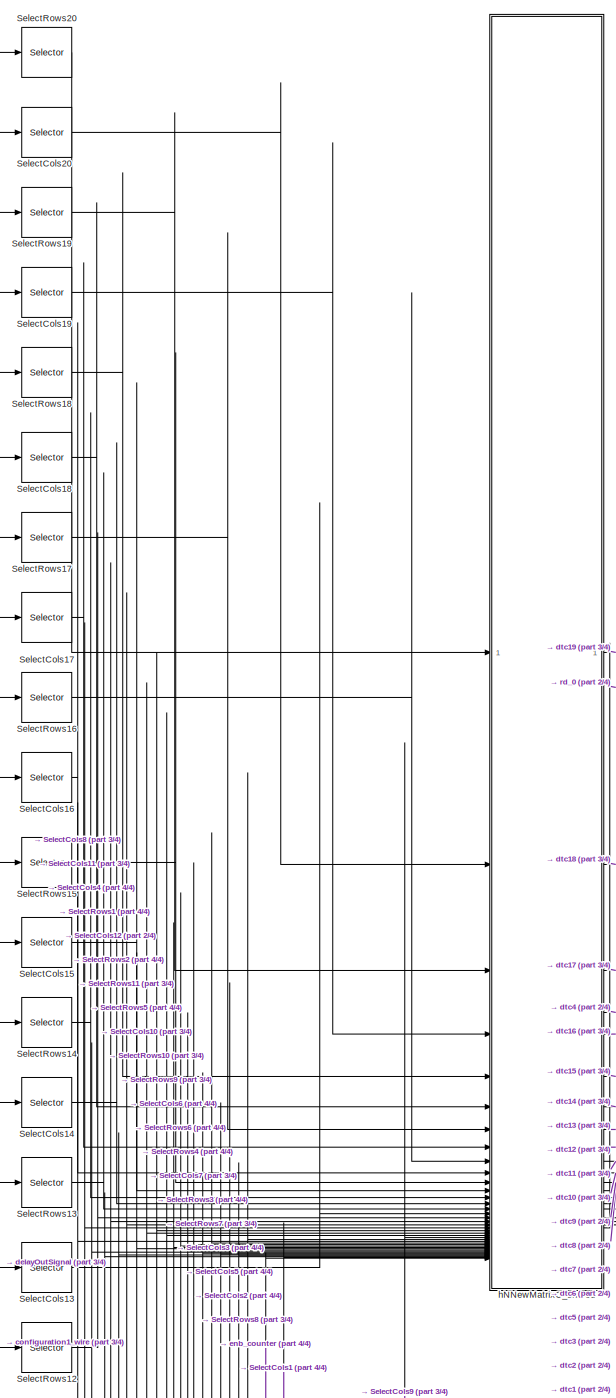
[diagram: simscape_system/simscape_system/HDL Subsystem/Sparse Matrix-Vector Product2 - part 1/4, top center region]
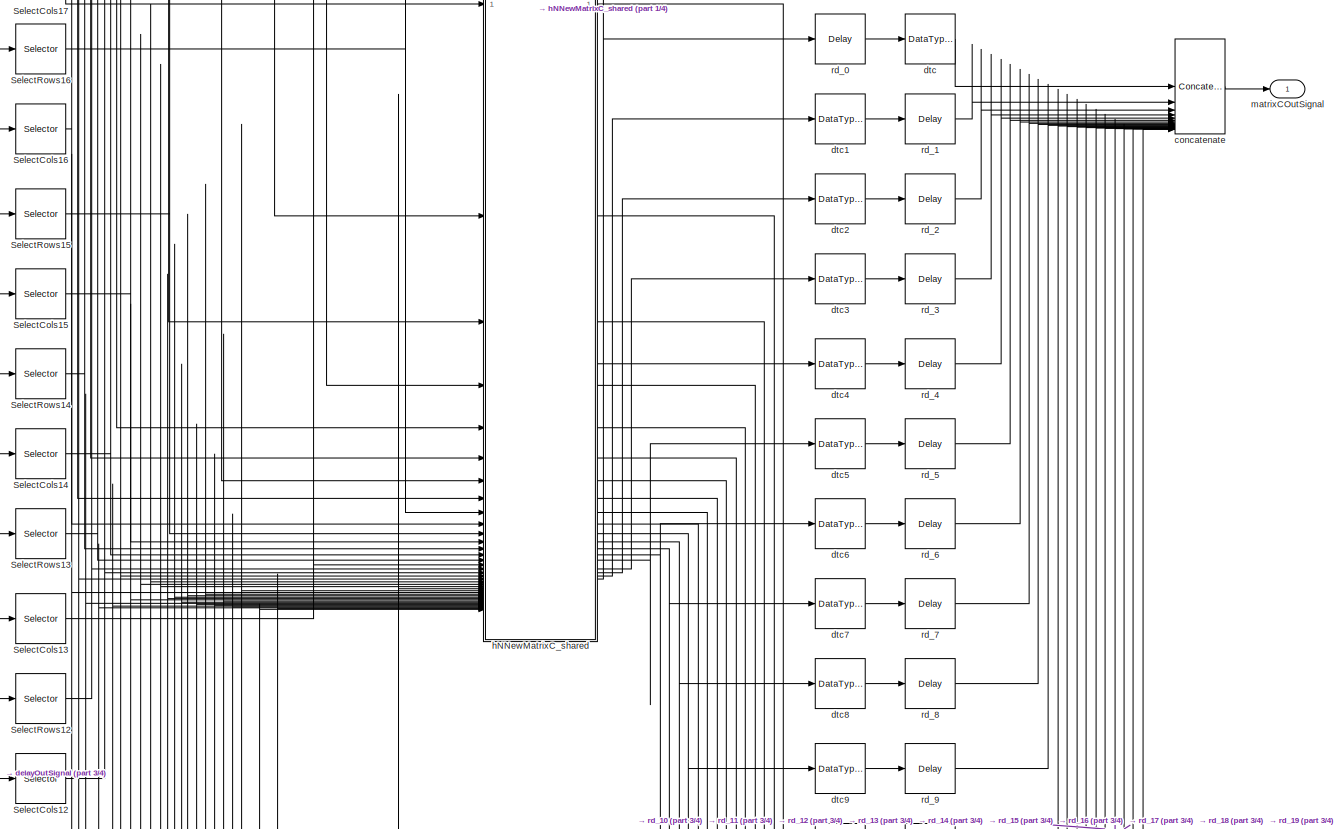
[diagram: simscape_system/simscape_system/HDL Subsystem/Sparse Matrix-Vector Product2 - part 2/4, full width, top band]
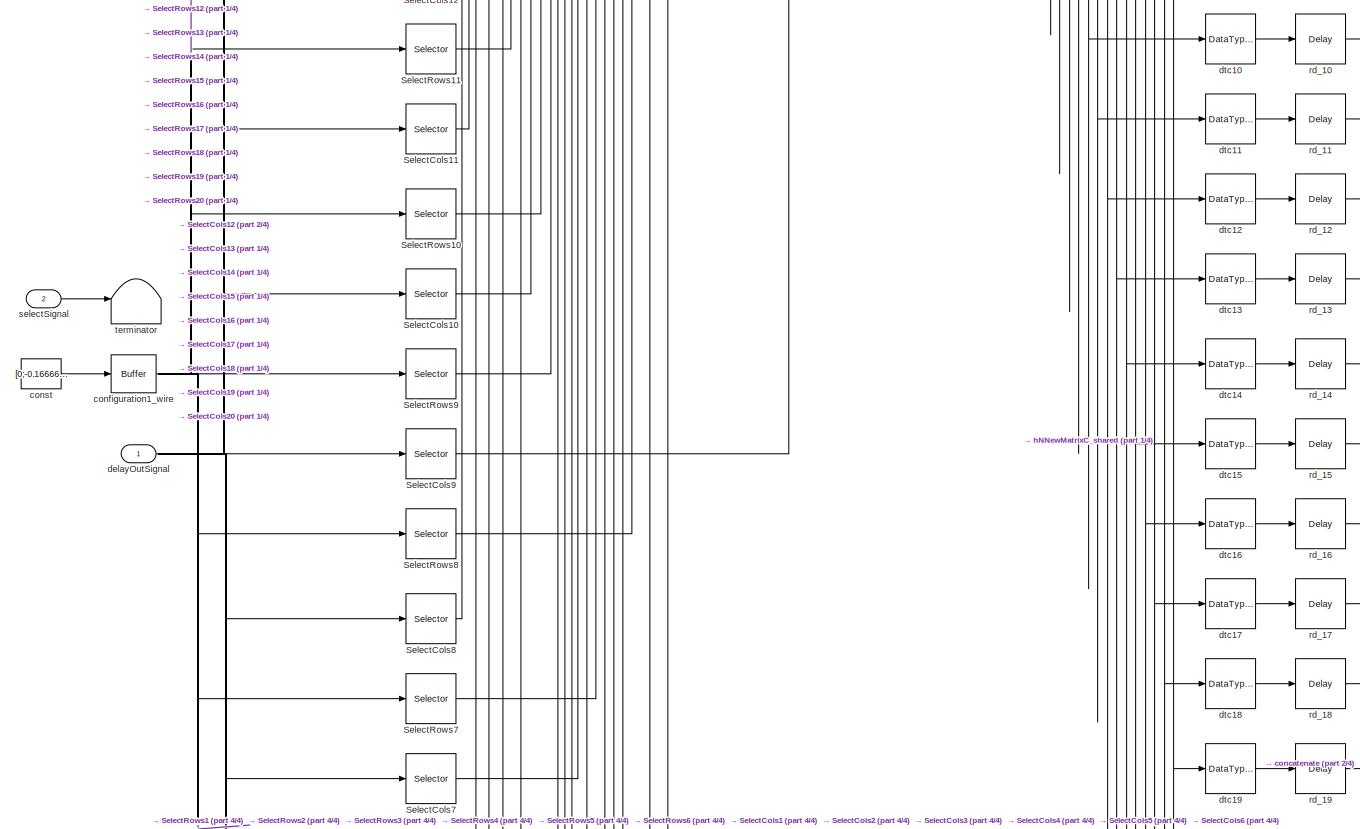
[diagram: simscape_system/simscape_system/HDL Subsystem/Sparse Matrix-Vector Product2 - part 3/4, full width, middle band]
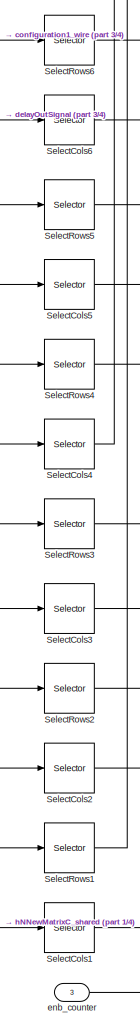
[diagram: simscape_system/simscape_system/HDL Subsystem/Sparse Matrix-Vector Product2 - part 4/4, bottom left region]
BLOCK [SubSystem] simscape_system/simscape_system/HDL Subsystem/Sparse Matrix-Vector Product2
BLOCK [Selector] simscape_system/simscape_system/HDL Subsystem/Sparse Matrix-Vector Product2/SelectCols1
  IndexOptions = Index vector (dialog)
  Indices = double([1 2 3 4 5 6 7])
  InputPortWidth = 7
  OutputSizes = double(1)
BLOCK [Selector] simscape_system/simscape_system/HDL Subsystem/Sparse Matrix-Vector Product2/SelectCols10
  IndexOptions = Index vector (dialog)
  Indices = double([1 2 3 4 5 6 7])
  InputPortWidth = 7
  OutputSizes = double(1)
BLOCK [Selector] simscape_system/simscape_system/HDL Subsystem/Sparse Matrix-Vector Product2/SelectCols11
  IndexOptions = Index vector (dialog)
  Indices = double([1 2 3 4 5 6 7])
  InputPortWidth = 7
  OutputSizes = double(1)
BLOCK [Selector] simscape_system/simscape_system/HDL Subsystem/Sparse Matrix-Vector Product2/SelectCols12
  IndexOptions = Index vector (dialog)
  Indices = double([1 2 3 4 5 6 7])
  InputPortWidth = 7
  OutputSizes = double(1)
BLOCK [Selector] simscape_system/simscape_system/HDL Subsystem/Sparse Matrix-Vector Product2/SelectCols13
  IndexOptions = Index vector (dialog)
  Indices = double([1 2 3 4 5 6 7])
  InputPortWidth = 7
  OutputSizes = double(1)
BLOCK [Selector] simscape_system/simscape_system/HDL Subsystem/Sparse Matrix-Vector Product2/SelectCols14
  IndexOptions = Index vector (dialog)
  Indices = double([1 2 3 4 5 6 7])
  InputPortWidth = 7
  OutputSizes = double(1)
BLOCK [Selector] simscape_system/simscape_system/HDL Subsystem/Sparse Matrix-Vector Product2/SelectCols15
  IndexOptions = Index vector (dialog)
  Indices = double([1 2 3 4 5 6 7])
  InputPortWidth = 7
  OutputSizes = double(1)
BLOCK [Selector] simscape_system/simscape_system/HDL Subsystem/Sparse Matrix-Vector Product2/SelectCols16
  IndexOptions = Index vector (dialog)
  Indices = double([1 2 3 4 5 6 7])
  InputPortWidth = 7
  OutputSizes = double(1)
BLOCK [Selector] simscape_system/simscape_system/HDL Subsystem/Sparse Matrix-Vector Product2/SelectCols17
  IndexOptions = Index vector (dialog)
  Indices = double([1 2 3 4 5 6 7])
  InputPortWidth = 7
  OutputSizes = double(1)
BLOCK [Selector] simscape_system/simscape_system/HDL Subsystem/Sparse Matrix-Vector Product2/SelectCols18
  IndexOptions = Index vector (dialog)
  Indices = double([1 2 3 4 5 6 7])
  InputPortWidth = 7
  OutputSizes = double(1)
BLOCK [Selector] simscape_system/simscape_system/HDL Subsystem/Sparse Matrix-Vector Product2/SelectCols19
  IndexOptions = Index vector (dialog)
  Indices = double([1 2 3 4 5 6 7])
  InputPortWidth = 7
  OutputSizes = double(1)
BLOCK [Selector] simscape_system/simscape_system/HDL Subsystem/Sparse Matrix-Vector Product2/SelectCols2
  IndexOptions = Index vector (dialog)
  Indices = double([1 2 3 4 5 6 7])
  InputPortWidth = 7
  OutputSizes = double(1)
BLOCK [Selector] simscape_system/simscape_system/HDL Subsystem/Sparse Matrix-Vector Product2/SelectCols20
  IndexOptions = Index vector (dialog)
  Indices = double([1 2 3 4 5 6 7])
  InputPortWidth = 7
  OutputSizes = double(1)
BLOCK [Selector] simscape_system/simscape_system/HDL Subsystem/Sparse Matrix-Vector Product2/SelectCols3
  IndexOptions = Index vector (dialog)
  Indices = double([1 2 3 4 5 6 7])
  InputPortWidth = 7
  OutputSizes = double(1)
BLOCK [Selector] simscape_system/simscape_system/HDL Subsystem/Sparse Matrix-Vector Product2/SelectCols4
  IndexOptions = Index vector (dialog)
  Indices = double([1 2 3 4 5 6 7])
  InputPortWidth = 7
  OutputSizes = double(1)
BLOCK [Selector] simscape_system/simscape_system/HDL Subsystem/Sparse Matrix-Vector Product2/SelectCols5
  IndexOptions = Index vector (dialog)
  Indices = double([1 2 3 4 5 6 7])
  InputPortWidth = 7
  OutputSizes = double(1)
BLOCK [Selector] simscape_system/simscape_system/HDL Subsystem/Sparse Matrix-Vector Product2/SelectCols6
  IndexOptions = Index vector (dialog)
  Indices = double([1 2 3 4 5 6 7])
  InputPortWidth = 7
  OutputSizes = double(1)
BLOCK [Selector] simscape_system/simscape_system/HDL Subsystem/Sparse Matrix-Vector Product2/SelectCols7
  IndexOptions = Index vector (dialog)
  Indices = double([1 2 3 4 5 6 7])
  InputPortWidth = 7
  OutputSizes = double(1)
BLOCK [Selector] simscape_system/simscape_system/HDL Subsystem/Sparse Matrix-Vector Product2/SelectCols8
  IndexOptions = Index vector (dialog)
  Indices = double([1 2 3 4 5 6 7])
  InputPortWidth = 7
  OutputSizes = double(1)
BLOCK [Selector] simscape_system/simscape_system/HDL Subsystem/Sparse Matrix-Vector Product2/SelectCols9
  IndexOptions = Index vector (dialog)
  Indices = double([1 2 3 4 5 6 7])
  InputPortWidth = 7
  OutputSizes = double(1)
BLOCK [Selector] simscape_system/simscape_system/HDL Subsystem/Sparse Matrix-Vector Product2/SelectRows1
  IndexOptions = Index vector (dialog)
  Indices = double([1 21 41 61 81 101 121])
  InputPortWidth = 140
  OutputSizes = double(1)
BLOCK [Selector] simscape_system/simscape_system/HDL Subsystem/Sparse Matrix-Vector Product2/SelectRows10
  IndexOptions = Index vector (dialog)
  Indices = double([10 30 50 70 90 110 130])
  InputPortWidth = 140
  OutputSizes = double(1)
BLOCK [Selector] simscape_system/simscape_system/HDL Subsystem/Sparse Matrix-Vector Product2/SelectRows11
  IndexOptions = Index vector (dialog)
  Indices = double([11 31 51 71 91 111 131])
  InputPortWidth = 140
  OutputSizes = double(1)
BLOCK [Selector] simscape_system/simscape_system/HDL Subsystem/Sparse Matrix-Vector Product2/SelectRows12
  IndexOptions = Index vector (dialog)
  Indices = double([12 32 52 72 92 112 132])
  InputPortWidth = 140
  OutputSizes = double(1)
BLOCK [Selector] simscape_system/simscape_system/HDL Subsystem/Sparse Matrix-Vector Product2/SelectRows13
  IndexOptions = Index vector (dialog)
  Indices = double([13 33 53 73 93 113 133])
  InputPortWidth = 140
  OutputSizes = double(1)
BLOCK [Selector] simscape_system/simscape_system/HDL Subsystem/Sparse Matrix-Vector Product2/SelectRows14
  IndexOptions = Index vector (dialog)
  Indices = double([14 34 54 74 94 114 134])
  InputPortWidth = 140
  OutputSizes = double(1)
BLOCK [Selector] simscape_system/simscape_system/HDL Subsystem/Sparse Matrix-Vector Product2/SelectRows15
  IndexOptions = Index vector (dialog)
  Indices = double([15 35 55 75 95 115 135])
  InputPortWidth = 140
  OutputSizes = double(1)
BLOCK [Selector] simscape_system/simscape_system/HDL Subsystem/Sparse Matrix-Vector Product2/SelectRows16
  IndexOptions = Index vector (dialog)
  Indices = double([16 36 56 76 96 116 136])
  InputPortWidth = 140
  OutputSizes = double(1)
BLOCK [Selector] simscape_system/simscape_system/HDL Subsystem/Sparse Matrix-Vector Product2/SelectRows17
  IndexOptions = Index vector (dialog)
  Indices = double([17 37 57 77 97 117 137])
  InputPortWidth = 140
  OutputSizes = double(1)
BLOCK [Selector] simscape_system/simscape_system/HDL Subsystem/Sparse Matrix-Vector Product2/SelectRows18
  IndexOptions = Index vector (dialog)
  Indices = double([18 38 58 78 98 118 138])
  InputPortWidth = 140
  OutputSizes = double(1)
BLOCK [Selector] simscape_system/simscape_system/HDL Subsystem/Sparse Matrix-Vector Product2/SelectRows19
  IndexOptions = Index vector (dialog)
  Indices = double([19 39 59 79 99 119 139])
  InputPortWidth = 140
  OutputSizes = double(1)
BLOCK [Selector] simscape_system/simscape_system/HDL Subsystem/Sparse Matrix-Vector Product2/SelectRows2
  IndexOptions = Index vector (dialog)
  Indices = double([2 22 42 62 82 102 122])
  InputPortWidth = 140
  OutputSizes = double(1)
BLOCK [Selector] simscape_system/simscape_system/HDL Subsystem/Sparse Matrix-Vector Product2/SelectRows20
  IndexOptions = Index vector (dialog)
  Indices = double([20 40 60 80 100 120 140])
  InputPortWidth = 140
  OutputSizes = double(1)
BLOCK [Selector] simscape_system/simscape_system/HDL Subsystem/Sparse Matrix-Vector Product2/SelectRows3
  IndexOptions = Index vector (dialog)
  Indices = double([3 23 43 63 83 103 123])
  InputPortWidth = 140
  OutputSizes = double(1)
BLOCK [Selector] simscape_system/simscape_system/HDL Subsystem/Sparse Matrix-Vector Product2/SelectRows4
  IndexOptions = Index vector (dialog)
  Indices = double([4 24 44 64 84 104 124])
  InputPortWidth = 140
  OutputSizes = double(1)
BLOCK [Selector] simscape_system/simscape_system/HDL Subsystem/Sparse Matrix-Vector Product2/SelectRows5
  IndexOptions = Index vector (dialog)
  Indices = double([5 25 45 65 85 105 125])
  InputPortWidth = 140
  OutputSizes = double(1)
BLOCK [Selector] simscape_system/simscape_system/HDL Subsystem/Sparse Matrix-Vector Product2/SelectRows6
  IndexOptions = Index vector (dialog)
  Indices = double([6 26 46 66 86 106 126])
  InputPortWidth = 140
  OutputSizes = double(1)
BLOCK [Selector] simscape_system/simscape_system/HDL Subsystem/Sparse Matrix-Vector Product2/SelectRows7
  IndexOptions = Index vector (dialog)
  Indices = double([7 27 47 67 87 107 127])
  InputPortWidth = 140
  OutputSizes = double(1)
BLOCK [Selector] simscape_system/simscape_system/HDL Subsystem/Sparse Matrix-Vector Product2/SelectRows8
  IndexOptions = Index vector (dialog)
  Indices = double([8 28 48 68 88 108 128])
  InputPortWidth = 140
  OutputSizes = double(1)
BLOCK [Selector] simscape_system/simscape_system/HDL Subsystem/Sparse Matrix-Vector Product2/SelectRows9
  IndexOptions = Index vector (dialog)
  Indices = double([9 29 49 69 89 109 129])
  InputPortWidth = 140
  OutputSizes = double(1)
BLOCK [Concatenate] simscape_system/simscape_system/HDL Subsystem/Sparse Matrix-Vector Product2/concatenate
  NumInputs = 20
BLOCK [Reference] simscape_system/simscape_system/HDL Subsystem/Sparse Matrix-Vector Product2/configuration1_wire  REF=hdlmdlgenlib/Buffer
  SourceBlock = hdlmdlgenlib/Buffer
  SourceType = Buffer/Wire
BLOCK [Constant] simscape_system/simscape_system/HDL Subsystem/Sparse Matrix-Vector Product2/const
  OutDataTypeStr = fixdt(1, 25, 20)
  SampleTime = 1.0465724751439e-08
  Value = [0;-0.16666698455810546875;-8.33333301544189453125;0.16666698455810546875;8.33333301544189453125;-0.08333301544189453125;-4.1666660308837890625;-0.08333301544189453125;-4.16666698455810546875;0.08333301544189453125;4.16666698455810546875;0.08333301544189453125;4.16666698455810546875;0;-0.16666698455810546875;-0.16666698455810546875;0.33333301544189453125;0;0;0;0;0.08333301544189453125;4.1666669845...<+2071ch>
BLOCK [Inport] simscape_system/simscape_system/HDL Subsystem/Sparse Matrix-Vector Product2/delayOutSignal
  OutDataTypeStr = fixdt(1, 25, 13)
  PortDimensions = [7]
  SampleTime = 1.0465724751439e-08
BLOCK [DataTypeConversion] simscape_system/simscape_system/HDL Subsystem/Sparse Matrix-Vector Product2/dtc
  OutDataTypeStr = fixdt(1, 25, 13)
  RndMeth = Nearest
  SampleTime = 1.0465724751439e-08
  SaturateOnIntegerOverflow = off
BLOCK [DataTypeConversion] simscape_system/simscape_system/HDL Subsystem/Sparse Matrix-Vector Product2/dtc1
  OutDataTypeStr = fixdt(1, 25, 13)
  RndMeth = Nearest
  SampleTime = 1.0465724751439e-08
  SaturateOnIntegerOverflow = off
BLOCK [DataTypeConversion] simscape_system/simscape_system/HDL Subsystem/Sparse Matrix-Vector Product2/dtc10
  OutDataTypeStr = fixdt(1, 25, 13)
  RndMeth = Nearest
  SampleTime = 1.0465724751439e-08
  SaturateOnIntegerOverflow = off
BLOCK [DataTypeConversion] simscape_system/simscape_system/HDL Subsystem/Sparse Matrix-Vector Product2/dtc11
  OutDataTypeStr = fixdt(1, 25, 13)
  RndMeth = Nearest
  SampleTime = 1.0465724751439e-08
  SaturateOnIntegerOverflow = off
BLOCK [DataTypeConversion] simscape_system/simscape_system/HDL Subsystem/Sparse Matrix-Vector Product2/dtc12
  OutDataTypeStr = fixdt(1, 25, 13)
  RndMeth = Nearest
  SampleTime = 1.0465724751439e-08
  SaturateOnIntegerOverflow = off
BLOCK [DataTypeConversion] simscape_system/simscape_system/HDL Subsystem/Sparse Matrix-Vector Product2/dtc13
  OutDataTypeStr = fixdt(1, 25, 13)
  RndMeth = Nearest
  SampleTime = 1.0465724751439e-08
  SaturateOnIntegerOverflow = off
BLOCK [DataTypeConversion] simscape_system/simscape_system/HDL Subsystem/Sparse Matrix-Vector Product2/dtc14
  OutDataTypeStr = fixdt(1, 25, 13)
  RndMeth = Nearest
  SampleTime = 1.0465724751439e-08
  SaturateOnIntegerOverflow = off
BLOCK [DataTypeConversion] simscape_system/simscape_system/HDL Subsystem/Sparse Matrix-Vector Product2/dtc15
  OutDataTypeStr = fixdt(1, 25, 13)
  RndMeth = Nearest
  SampleTime = 1.0465724751439e-08
  SaturateOnIntegerOverflow = off
BLOCK [DataTypeConversion] simscape_system/simscape_system/HDL Subsystem/Sparse Matrix-Vector Product2/dtc16
  OutDataTypeStr = fixdt(1, 25, 13)
  RndMeth = Nearest
  SampleTime = 1.0465724751439e-08
  SaturateOnIntegerOverflow = off
BLOCK [DataTypeConversion] simscape_system/simscape_system/HDL Subsystem/Sparse Matrix-Vector Product2/dtc17
  OutDataTypeStr = fixdt(1, 25, 13)
  RndMeth = Nearest
  SampleTime = 1.0465724751439e-08
  SaturateOnIntegerOverflow = off
BLOCK [DataTypeConversion] simscape_system/simscape_system/HDL Subsystem/Sparse Matrix-Vector Product2/dtc18
  OutDataTypeStr = fixdt(1, 25, 13)
  RndMeth = Nearest
  SampleTime = 1.0465724751439e-08
  SaturateOnIntegerOverflow = off
BLOCK [DataTypeConversion] simscape_system/simscape_system/HDL Subsystem/Sparse Matrix-Vector Product2/dtc19
  OutDataTypeStr = fixdt(1, 25, 13)
  RndMeth = Nearest
  SampleTime = 1.0465724751439e-08
  SaturateOnIntegerOverflow = off
BLOCK [DataTypeConversion] simscape_system/simscape_system/HDL Subsystem/Sparse Matrix-Vector Product2/dtc2
  OutDataTypeStr = fixdt(1, 25, 13)
  RndMeth = Nearest
  SampleTime = 1.0465724751439e-08
  SaturateOnIntegerOverflow = off
BLOCK [DataTypeConversion] simscape_system/simscape_system/HDL Subsystem/Sparse Matrix-Vector Product2/dtc3
  OutDataTypeStr = fixdt(1, 25, 13)
  RndMeth = Nearest
  SampleTime = 1.0465724751439e-08
  SaturateOnIntegerOverflow = off
BLOCK [DataTypeConversion] simscape_system/simscape_system/HDL Subsystem/Sparse Matrix-Vector Product2/dtc4
  OutDataTypeStr = fixdt(1, 25, 13)
  RndMeth = Nearest
  SampleTime = 1.0465724751439e-08
  SaturateOnIntegerOverflow = off
BLOCK [DataTypeConversion] simscape_system/simscape_system/HDL Subsystem/Sparse Matrix-Vector Product2/dtc5
  OutDataTypeStr = fixdt(1, 25, 13)
  RndMeth = Nearest
  SampleTime = 1.0465724751439e-08
  SaturateOnIntegerOverflow = off
BLOCK [DataTypeConversion] simscape_system/simscape_system/HDL Subsystem/Sparse Matrix-Vector Product2/dtc6
  OutDataTypeStr = fixdt(1, 25, 13)
  RndMeth = Nearest
  SampleTime = 1.0465724751439e-08
  SaturateOnIntegerOverflow = off
BLOCK [DataTypeConversion] simscape_system/simscape_system/HDL Subsystem/Sparse Matrix-Vector Product2/dtc7
  OutDataTypeStr = fixdt(1, 25, 13)
  RndMeth = Nearest
  SampleTime = 1.0465724751439e-08
  SaturateOnIntegerOverflow = off
BLOCK [DataTypeConversion] simscape_system/simscape_system/HDL Subsystem/Sparse Matrix-Vector Product2/dtc8
  OutDataTypeStr = fixdt(1, 25, 13)
  RndMeth = Nearest
  SampleTime = 1.0465724751439e-08
  SaturateOnIntegerOverflow = off
BLOCK [DataTypeConversion] simscape_system/simscape_system/HDL Subsystem/Sparse Matrix-Vector Product2/dtc9
  OutDataTypeStr = fixdt(1, 25, 13)
  RndMeth = Nearest
  SampleTime = 1.0465724751439e-08
  SaturateOnIntegerOverflow = off
BLOCK [Inport] simscape_system/simscape_system/HDL Subsystem/Sparse Matrix-Vector Product2/enb_counter
  OutDataTypeStr = fixdt(0, 6, 0)
  Port = 3
  SampleTime = 1.0465724751439e-08
BLOCK [SubSystem] simscape_system/simscape_system/HDL Subsystem/Sparse Matrix-Vector Product2/hNNewMatrixC_shared
BLOCK [SubSystem] simscape_system/simscape_system/HDL Subsystem/Sparse Matrix-Vector Product2/hNNewMatrixC_shared/Serializer_Subnetwork
BLOCK [Inport] simscape_system/simscape_system/HDL Subsystem/Sparse Matrix-Vector Product2/hNNewMatrixC_shared/Serializer_Subnetwork/in0
  OutDataTypeStr = fixdt(1, 25, 20)
  PortDimensions = [140]
  SampleTime = 1.0465724751439e-08
BLOCK [Inport] simscape_system/simscape_system/HDL Subsystem/Sparse Matrix-Vector Product2/hNNewMatrixC_shared/Serializer_Subnetwork/in1
  OutDataTypeStr = fixdt(0, 5, 0)
  Port = 2
  SampleTime = 1.0465724751439e-08
BLOCK [Outport] simscape_system/simscape_system/HDL Subsystem/Sparse Matrix-Vector Product2/hNNewMatrixC_shared/Serializer_Subnetwork/out0
  OutDataTypeStr = fixdt(1, 25, 20)
  PortDimensions = [7]
  SampleTime = 1.0465724751439e-08
BLOCK [Demux] simscape_system/simscape_system/HDL Subsystem/Sparse Matrix-Vector Product2/hNNewMatrixC_shared/Serializer_Subnetwork/ratechange_splitcomp
  Outputs = 20
BLOCK [MultiPortSwitch] simscape_system/simscape_system/HDL Subsystem/Sparse Matrix-Vector Product2/hNNewMatrixC_shared/Serializer_Subnetwork/splitcomp_multiport
  DataPortOrder = Zero-based contiguous
  DiagnosticForDefault = None
  InputSameDT = off
  Inputs = 20
  OutDataTypeStr = fixdt(1, 25, 20)
  SampleTime = 1.0465724751439e-08
  SaturateOnIntegerOverflow = off
  zeroidx = on
BLOCK [SubSystem] simscape_system/simscape_system/HDL Subsystem/Sparse Matrix-Vector Product2/hNNewMatrixC_shared/Serializer_Subnetwork1
BLOCK [Inport] simscape_system/simscape_system/HDL Subsystem/Sparse Matrix-Vector Product2/hNNewMatrixC_shared/Serializer_Subnetwork1/in0
  OutDataTypeStr = fixdt(1, 25, 13)
  PortDimensions = [140]
  SampleTime = 1.0465724751439e-08
BLOCK [Inport] simscape_system/simscape_system/HDL Subsystem/Sparse Matrix-Vector Product2/hNNewMatrixC_shared/Serializer_Subnetwork1/in1
  OutDataTypeStr = fixdt(0, 5, 0)
  Port = 2
  SampleTime = 1.0465724751439e-08
BLOCK [Outport] simscape_system/simscape_system/HDL Subsystem/Sparse Matrix-Vector Product2/hNNewMatrixC_shared/Serializer_Subnetwork1/out0
  OutDataTypeStr = fixdt(1, 25, 13)
  PortDimensions = [7]
  SampleTime = 1.0465724751439e-08
BLOCK [Demux] simscape_system/simscape_system/HDL Subsystem/Sparse Matrix-Vector Product2/hNNewMatrixC_shared/Serializer_Subnetwork1/ratechange_splitcomp
  Outputs = 20
BLOCK [MultiPortSwitch] simscape_system/simscape_system/HDL Subsystem/Sparse Matrix-Vector Product2/hNNewMatrixC_shared/Serializer_Subnetwork1/splitcomp_multiport
  DataPortOrder = Zero-based contiguous
  DiagnosticForDefault = None
  InputSameDT = off
  Inputs = 20
  OutDataTypeStr = fixdt(1, 25, 13)
  SampleTime = 1.0465724751439e-08
  SaturateOnIntegerOverflow = off
  zeroidx = on
BLOCK [SubSystem] simscape_system/simscape_system/HDL Subsystem/Sparse Matrix-Vector Product2/hNNewMatrixC_shared/counter
BLOCK [Reference] simscape_system/simscape_system/HDL Subsystem/Sparse Matrix-Vector Product2/hNNewMatrixC_shared/counter/ctr_0_19  REF=hdlsllib/Sources/HDL Counter
  SourceBlock = hdlsllib/Sources/HDL Counter
  SourceType = HDL Counter
BLOCK [EnablePort] simscape_system/simscape_system/HDL Subsystem/Sparse Matrix-Vector Product2/hNNewMatrixC_shared/counter/globalSchedule
  OutDataTypeStr = boolean
BLOCK [Outport] simscape_system/simscape_system/HDL Subsystem/Sparse Matrix-Vector Product2/hNNewMatrixC_shared/counter/out0
  InitialOutput = 0
  OutDataTypeStr = fixdt(0, 5, 0)
  SampleTime = 1.0465724751439e-08
BLOCK [Demux] simscape_system/simscape_system/HDL Subsystem/Sparse Matrix-Vector Product2/hNNewMatrixC_shared/demux
  Outputs = 19
BLOCK [SubSystem] simscape_system/simscape_system/HDL Subsystem/Sparse Matrix-Vector Product2/hNNewMatrixC_shared/dot_product1_bypass
BLOCK [Switch] simscape_system/simscape_system/HDL Subsystem/Sparse Matrix-Vector Product2/hNNewMatrixC_shared/dot_product1_bypass/dot_product1_enb
  Criteria = u2 ~= 0
  InputSameDT = off
  OutDataTypeStr = fixdt(1, 50, 33)
  SampleTime = 1.0465724751439e-08
  SaturateOnIntegerOverflow = off
  Threshold = double(0)
BLOCK [Delay] simscape_system/simscape_system/HDL Subsystem/Sparse Matrix-Vector Product2/hNNewMatrixC_shared/dot_product1_bypass/dot_product1_state
  DelayLength = double(1)
  InitialCondition = 0
  InputPortMap = u0
  SampleTime = 1.0465724751439e-08
BLOCK [Inport] simscape_system/simscape_system/HDL Subsystem/Sparse Matrix-Vector Product2/hNNewMatrixC_shared/dot_product1_bypass/in0
  OutDataTypeStr = fixdt(1, 50, 33)
  SampleTime = 1.0465724751439e-08
BLOCK [Inport] simscape_system/simscape_system/HDL Subsystem/Sparse Matrix-Vector Product2/hNNewMatrixC_shared/dot_product1_bypass/in1
  OutDataTypeStr = boolean
  Port = 2
  SampleTime = 1.0465724751439e-08
BLOCK [Outport] simscape_system/simscape_system/HDL Subsystem/Sparse Matrix-Vector Product2/hNNewMatrixC_shared/dot_product1_bypass/out0
  OutDataTypeStr = fixdt(1, 50, 33)
  SampleTime = 1.0465724751439e-08
BLOCK [SubSystem] simscape_system/simscape_system/HDL Subsystem/Sparse Matrix-Vector Product2/hNNewMatrixC_shared/dot_product_7
BLOCK [Delay] simscape_system/simscape_system/HDL Subsystem/Sparse Matrix-Vector Product2/hNNewMatrixC_shared/dot_product_7/HwModeRegister
  DelayLength = double(1)
  InitialCondition = 0
  InputPortMap = u0
  SampleTime = 1.0465724751439e-08
BLOCK [Delay] simscape_system/simscape_system/HDL Subsystem/Sparse Matrix-Vector Product2/hNNewMatrixC_shared/dot_product_7/HwModeRegister1
  DelayLength = double(1)
  InitialCondition = 0
  InputPortMap = u0
  SampleTime = 1.0465724751439e-08
BLOCK [Delay] simscape_system/simscape_system/HDL Subsystem/Sparse Matrix-Vector Product2/hNNewMatrixC_shared/dot_product_7/PipelineRegister
  DelayLength = double(1)
  InitialCondition = 0
  InputPortMap = u0
  SampleTime = 1.0465724751439e-08
BLOCK [Sum] simscape_system/simscape_system/HDL Subsystem/Sparse Matrix-Vector Product2/hNNewMatrixC_shared/dot_product_7/adder
  IconShape = rectangular
  OutDataTypeStr = fixdt(1, 50, 33)
  SampleTime = 1.0465724751439e-08
BLOCK [Sum] simscape_system/simscape_system/HDL Subsystem/Sparse Matrix-Vector Product2/hNNewMatrixC_shared/dot_product_7/adder1
  IconShape = rectangular
  OutDataTypeStr = fixdt(1, 50, 33)
  SampleTime = 1.0465724751439e-08
BLOCK [Sum] simscape_system/simscape_system/HDL Subsystem/Sparse Matrix-Vector Product2/hNNewMatrixC_shared/dot_product_7/adder2
  IconShape = rectangular
  OutDataTypeStr = fixdt(1, 50, 33)
  SampleTime = 1.0465724751439e-08
BLOCK [Sum] simscape_system/simscape_system/HDL Subsystem/Sparse Matrix-Vector Product2/hNNewMatrixC_shared/dot_product_7/adder3
  IconShape = rectangular
  OutDataTypeStr = fixdt(1, 50, 33)
  SampleTime = 1.0465724751439e-08
BLOCK [Sum] simscape_system/simscape_system/HDL Subsystem/Sparse Matrix-Vector Product2/hNNewMatrixC_shared/dot_product_7/adder4
  IconShape = rectangular
  OutDataTypeStr = fixdt(1, 50, 33)
  SampleTime = 1.0465724751439e-08
BLOCK [Sum] simscape_system/simscape_system/HDL Subsystem/Sparse Matrix-Vector Product2/hNNewMatrixC_shared/dot_product_7/adder5
  IconShape = rectangular
  OutDataTypeStr = fixdt(1, 50, 33)
  SampleTime = 1.0465724751439e-08
BLOCK [Inport] simscape_system/simscape_system/HDL Subsystem/Sparse Matrix-Vector Product2/hNNewMatrixC_shared/dot_product_7/in1
  OutDataTypeStr = fixdt(1, 25, 20)
  PortDimensions = [7]
  SampleTime = 1.0465724751439e-08
BLOCK [Inport] simscape_system/simscape_system/HDL Subsystem/Sparse Matrix-Vector Product2/hNNewMatrixC_shared/dot_product_7/in2
  OutDataTypeStr = fixdt(1, 25, 13)
  Port = 2
  PortDimensions = [7]
  SampleTime = 1.0465724751439e-08
BLOCK [Reference] simscape_system/simscape_system/HDL Subsystem/Sparse Matrix-Vector Product2/hNNewMatrixC_shared/dot_product_7/mul_out1_6_wire  REF=hdlmdlgenlib/Buffer
  SourceBlock = hdlmdlgenlib/Buffer
  SourceType = Buffer/Wire
BLOCK [Product] simscape_system/simscape_system/HDL Subsystem/Sparse Matrix-Vector Product2/hNNewMatrixC_shared/dot_product_7/multiplier
  Inputs = **
  OutDataTypeStr = fixdt(1, 50, 33)
  SampleTime = 1.0465724751439e-08
BLOCK [Outport] simscape_system/simscape_system/HDL Subsystem/Sparse Matrix-Vector Product2/hNNewMatrixC_shared/dot_product_7/out1
  OutDataTypeStr = fixdt(1, 50, 33)
  SampleTime = 1.0465724751439e-08
BLOCK [Delay] simscape_system/simscape_system/HDL Subsystem/Sparse Matrix-Vector Product2/hNNewMatrixC_shared/dot_product_7/rd_0
  DelayLength = double(7)
  InitialCondition = 0
  InputPortMap = u0
  SampleTime = 1.0465724751439e-08
BLOCK [Delay] simscape_system/simscape_system/HDL Subsystem/Sparse Matrix-Vector Product2/hNNewMatrixC_shared/dot_product_7/rd_1
  DelayLength = double(1)
  InitialCondition = 0
  InputPortMap = u0
  SampleTime = 1.0465724751439e-08
BLOCK [Delay] simscape_system/simscape_system/HDL Subsystem/Sparse Matrix-Vector Product2/hNNewMatrixC_shared/dot_product_7/rd_2
  DelayLength = double(1)
  InitialCondition = 0
  InputPortMap = u0
  SampleTime = 1.0465724751439e-08
BLOCK [Delay] simscape_system/simscape_system/HDL Subsystem/Sparse Matrix-Vector Product2/hNNewMatrixC_shared/dot_product_7/rd_3
  DelayLength = double(1)
  InitialCondition = 0
  InputPortMap = u0
  SampleTime = 1.0465724751439e-08
BLOCK [Delay] simscape_system/simscape_system/HDL Subsystem/Sparse Matrix-Vector Product2/hNNewMatrixC_shared/dot_product_7/rd_4
  DelayLength = double(1)
  InitialCondition = 0
  InputPortMap = u0
  SampleTime = 1.0465724751439e-08
BLOCK [Delay] simscape_system/simscape_system/HDL Subsystem/Sparse Matrix-Vector Product2/hNNewMatrixC_shared/dot_product_7/rd_5
  DelayLength = double(1)
  InitialCondition = 0
  InputPortMap = u0
  SampleTime = 1.0465724751439e-08
BLOCK [Delay] simscape_system/simscape_system/HDL Subsystem/Sparse Matrix-Vector Product2/hNNewMatrixC_shared/dot_product_7/rd_6
  DelayLength = double(1)
  InitialCondition = 0
  InputPortMap = u0
  SampleTime = 1.0465724751439e-08
BLOCK [Delay] simscape_system/simscape_system/HDL Subsystem/Sparse Matrix-Vector Product2/hNNewMatrixC_shared/dot_product_7/rd_7
  DelayLength = double(1)
  InitialCondition = 0
  InputPortMap = u0
  SampleTime = 1.0465724751439e-08
BLOCK [Delay] simscape_system/simscape_system/HDL Subsystem/Sparse Matrix-Vector Product2/hNNewMatrixC_shared/dot_product_7/rd_8
  DelayLength = double(1)
  InitialCondition = 0
  InputPortMap = u0
  SampleTime = 1.0465724751439e-08
BLOCK [Delay] simscape_system/simscape_system/HDL Subsystem/Sparse Matrix-Vector Product2/hNNewMatrixC_shared/dot_product_7/rd_9
  DelayLength = double(1)
  InitialCondition = 0
  InputPortMap = u0
  SampleTime = 1.0465724751439e-08
BLOCK [Reference] simscape_system/simscape_system/HDL Subsystem/Sparse Matrix-Vector Product2/hNNewMatrixC_shared/dot_product_7/sum_stage3_1_wire  REF=hdlmdlgenlib/Buffer
  SourceBlock = hdlmdlgenlib/Buffer
  SourceType = Buffer/Wire
BLOCK [Demux] simscape_system/simscape_system/HDL Subsystem/Sparse Matrix-Vector Product2/hNNewMatrixC_shared/dot_product_7/t
  Outputs = 7
BLOCK [Inport] simscape_system/simscape_system/HDL Subsystem/Sparse Matrix-Vector Product2/hNNewMatrixC_shared/enb_counter
  OutDataTypeStr = fixdt(0, 6, 0)
  Port = 41
  SampleTime = 1.0465724751439e-08
BLOCK [Reference] simscape_system/simscape_system/HDL Subsystem/Sparse Matrix-Vector Product2/hNNewMatrixC_shared/enb_counter_eq_27  REF=simulink/Logic and Bit
Operations/Compare
To Constant
  SourceBlock = simulink/Logic and Bit\nOperations/Compare\nTo Constant
  SourceType = Compare To Constant
BLOCK [Reference] simscape_system/simscape_system/HDL Subsystem/Sparse Matrix-Vector Product2/hNNewMatrixC_shared/enb_counter_ge_8  REF=simulink/Logic and Bit
Operations/Compare
To Constant
  SourceBlock = simulink/Logic and Bit\nOperations/Compare\nTo Constant
  SourceType = Compare To Constant
BLOCK [Logic] simscape_system/simscape_system/HDL Subsystem/Sparse Matrix-Vector Product2/hNNewMatrixC_shared/enb_counter_ge_8_and_enb_counter_le_26
  AllPortsSameDT = off
  OutDataTypeStr = boolean
  SampleTime = 1.0465724751439e-08
BLOCK [Reference] simscape_system/simscape_system/HDL Subsystem/Sparse Matrix-Vector Product2/hNNewMatrixC_shared/enb_counter_le_19  REF=simulink/Logic and Bit
Operations/Compare
To Constant
  SourceBlock = simulink/Logic and Bit\nOperations/Compare\nTo Constant
  SourceType = Compare To Constant
BLOCK [Reference] simscape_system/simscape_system/HDL Subsystem/Sparse Matrix-Vector Product2/hNNewMatrixC_shared/enb_counter_le_26  REF=simulink/Logic and Bit
Operations/Compare
To Constant
  SourceBlock = simulink/Logic and Bit\nOperations/Compare\nTo Constant
  SourceType = Compare To Constant
BLOCK [Inport] simscape_system/simscape_system/HDL Subsystem/Sparse Matrix-Vector Product2/hNNewMatrixC_shared/in0
  OutDataTypeStr = fixdt(1, 25, 20)
  PortDimensions = [7]
  SampleTime = 1.0465724751439e-08
BLOCK [Inport] simscape_system/simscape_system/HDL Subsystem/Sparse Matrix-Vector Product2/hNNewMatrixC_shared/in1
  OutDataTypeStr = fixdt(1, 25, 13)
  Port = 2
  PortDimensions = [7]
  SampleTime = 1.0465724751439e-08
BLOCK [Inport] simscape_system/simscape_system/HDL Subsystem/Sparse Matrix-Vector Product2/hNNewMatrixC_shared/in10
  OutDataTypeStr = fixdt(1, 25, 20)
  Port = 11
  PortDimensions = [7]
  SampleTime = 1.0465724751439e-08
BLOCK [Inport] simscape_system/simscape_system/HDL Subsystem/Sparse Matrix-Vector Product2/hNNewMatrixC_shared/in11
  OutDataTypeStr = fixdt(1, 25, 13)
  Port = 12
  PortDimensions = [7]
  SampleTime = 1.0465724751439e-08
BLOCK [Inport] simscape_system/simscape_system/HDL Subsystem/Sparse Matrix-Vector Product2/hNNewMatrixC_shared/in12
  OutDataTypeStr = fixdt(1, 25, 20)
  Port = 13
  PortDimensions = [7]
  SampleTime = 1.0465724751439e-08
BLOCK [Inport] simscape_system/simscape_system/HDL Subsystem/Sparse Matrix-Vector Product2/hNNewMatrixC_shared/in13
  OutDataTypeStr = fixdt(1, 25, 13)
  Port = 14
  PortDimensions = [7]
  SampleTime = 1.0465724751439e-08
BLOCK [Inport] simscape_system/simscape_system/HDL Subsystem/Sparse Matrix-Vector Product2/hNNewMatrixC_shared/in14
  OutDataTypeStr = fixdt(1, 25, 20)
  Port = 15
  PortDimensions = [7]
  SampleTime = 1.0465724751439e-08
BLOCK [Inport] simscape_system/simscape_system/HDL Subsystem/Sparse Matrix-Vector Product2/hNNewMatrixC_shared/in15
  OutDataTypeStr = fixdt(1, 25, 13)
  Port = 16
  PortDimensions = [7]
  SampleTime = 1.0465724751439e-08
BLOCK [Inport] simscape_system/simscape_system/HDL Subsystem/Sparse Matrix-Vector Product2/hNNewMatrixC_shared/in16
  OutDataTypeStr = fixdt(1, 25, 20)
  Port = 17
  PortDimensions = [7]
  SampleTime = 1.0465724751439e-08
BLOCK [Inport] simscape_system/simscape_system/HDL Subsystem/Sparse Matrix-Vector Product2/hNNewMatrixC_shared/in17
  OutDataTypeStr = fixdt(1, 25, 13)
  Port = 18
  PortDimensions = [7]
  SampleTime = 1.0465724751439e-08
BLOCK [Inport] simscape_system/simscape_system/HDL Subsystem/Sparse Matrix-Vector Product2/hNNewMatrixC_shared/in18
  OutDataTypeStr = fixdt(1, 25, 20)
  Port = 19
  PortDimensions = [7]
  SampleTime = 1.0465724751439e-08
BLOCK [Inport] simscape_system/simscape_system/HDL Subsystem/Sparse Matrix-Vector Product2/hNNewMatrixC_shared/in19
  OutDataTypeStr = fixdt(1, 25, 13)
  Port = 20
  PortDimensions = [7]
  SampleTime = 1.0465724751439e-08
BLOCK [Inport] simscape_system/simscape_system/HDL Subsystem/Sparse Matrix-Vector Product2/hNNewMatrixC_shared/in2
  OutDataTypeStr = fixdt(1, 25, 20)
  Port = 3
  PortDimensions = [7]
  SampleTime = 1.0465724751439e-08
BLOCK [Inport] simscape_system/simscape_system/HDL Subsystem/Sparse Matrix-Vector Product2/hNNewMatrixC_shared/in20
  OutDataTypeStr = fixdt(1, 25, 20)
  Port = 21
  PortDimensions = [7]
  SampleTime = 1.0465724751439e-08
BLOCK [Inport] simscape_system/simscape_system/HDL Subsystem/Sparse Matrix-Vector Product2/hNNewMatrixC_shared/in21
  OutDataTypeStr = fixdt(1, 25, 13)
  Port = 22
  PortDimensions = [7]
  SampleTime = 1.0465724751439e-08
BLOCK [Inport] simscape_system/simscape_system/HDL Subsystem/Sparse Matrix-Vector Product2/hNNewMatrixC_shared/in22
  OutDataTypeStr = fixdt(1, 25, 20)
  Port = 23
  PortDimensions = [7]
  SampleTime = 1.0465724751439e-08
BLOCK [Inport] simscape_system/simscape_system/HDL Subsystem/Sparse Matrix-Vector Product2/hNNewMatrixC_shared/in23
  OutDataTypeStr = fixdt(1, 25, 13)
  Port = 24
  PortDimensions = [7]
  SampleTime = 1.0465724751439e-08
BLOCK [Inport] simscape_system/simscape_system/HDL Subsystem/Sparse Matrix-Vector Product2/hNNewMatrixC_shared/in24
  OutDataTypeStr = fixdt(1, 25, 20)
  Port = 25
  PortDimensions = [7]
  SampleTime = 1.0465724751439e-08
BLOCK [Inport] simscape_system/simscape_system/HDL Subsystem/Sparse Matrix-Vector Product2/hNNewMatrixC_shared/in25
  OutDataTypeStr = fixdt(1, 25, 13)
  Port = 26
  PortDimensions = [7]
  SampleTime = 1.0465724751439e-08
BLOCK [Inport] simscape_system/simscape_system/HDL Subsystem/Sparse Matrix-Vector Product2/hNNewMatrixC_shared/in26
  OutDataTypeStr = fixdt(1, 25, 20)
  Port = 27
  PortDimensions = [7]
  SampleTime = 1.0465724751439e-08
BLOCK [Inport] simscape_system/simscape_system/HDL Subsystem/Sparse Matrix-Vector Product2/hNNewMatrixC_shared/in27
  OutDataTypeStr = fixdt(1, 25, 13)
  Port = 28
  PortDimensions = [7]
  SampleTime = 1.0465724751439e-08
BLOCK [Inport] simscape_system/simscape_system/HDL Subsystem/Sparse Matrix-Vector Product2/hNNewMatrixC_shared/in28
  OutDataTypeStr = fixdt(1, 25, 20)
  Port = 29
  PortDimensions = [7]
  SampleTime = 1.0465724751439e-08
BLOCK [Inport] simscape_system/simscape_system/HDL Subsystem/Sparse Matrix-Vector Product2/hNNewMatrixC_shared/in29
  OutDataTypeStr = fixdt(1, 25, 13)
  Port = 30
  PortDimensions = [7]
  SampleTime = 1.0465724751439e-08
BLOCK [Inport] simscape_system/simscape_system/HDL Subsystem/Sparse Matrix-Vector Product2/hNNewMatrixC_shared/in3
  OutDataTypeStr = fixdt(1, 25, 13)
  Port = 4
  PortDimensions = [7]
  SampleTime = 1.0465724751439e-08
BLOCK [Inport] simscape_system/simscape_system/HDL Subsystem/Sparse Matrix-Vector Product2/hNNewMatrixC_shared/in30
  OutDataTypeStr = fixdt(1, 25, 20)
  Port = 31
  PortDimensions = [7]
  SampleTime = 1.0465724751439e-08
BLOCK [Inport] simscape_system/simscape_system/HDL Subsystem/Sparse Matrix-Vector Product2/hNNewMatrixC_shared/in31
  OutDataTypeStr = fixdt(1, 25, 13)
  Port = 32
  PortDimensions = [7]
  SampleTime = 1.0465724751439e-08
BLOCK [Inport] simscape_system/simscape_system/HDL Subsystem/Sparse Matrix-Vector Product2/hNNewMatrixC_shared/in32
  OutDataTypeStr = fixdt(1, 25, 20)
  Port = 33
  PortDimensions = [7]
  SampleTime = 1.0465724751439e-08
BLOCK [Inport] simscape_system/simscape_system/HDL Subsystem/Sparse Matrix-Vector Product2/hNNewMatrixC_shared/in33
  OutDataTypeStr = fixdt(1, 25, 13)
  Port = 34
  PortDimensions = [7]
  SampleTime = 1.0465724751439e-08
BLOCK [Inport] simscape_system/simscape_system/HDL Subsystem/Sparse Matrix-Vector Product2/hNNewMatrixC_shared/in34
  OutDataTypeStr = fixdt(1, 25, 20)
  Port = 35
  PortDimensions = [7]
  SampleTime = 1.0465724751439e-08
BLOCK [Inport] simscape_system/simscape_system/HDL Subsystem/Sparse Matrix-Vector Product2/hNNewMatrixC_shared/in35
  OutDataTypeStr = fixdt(1, 25, 13)
  Port = 36
  PortDimensions = [7]
  SampleTime = 1.0465724751439e-08
BLOCK [Inport] simscape_system/simscape_system/HDL Subsystem/Sparse Matrix-Vector Product2/hNNewMatrixC_shared/in36
  OutDataTypeStr = fixdt(1, 25, 20)
  Port = 37
  PortDimensions = [7]
  SampleTime = 1.0465724751439e-08
BLOCK [Inport] simscape_system/simscape_system/HDL Subsystem/Sparse Matrix-Vector Product2/hNNewMatrixC_shared/in37
  OutDataTypeStr = fixdt(1, 25, 13)
  Port = 38
  PortDimensions = [7]
  SampleTime = 1.0465724751439e-08
BLOCK [Inport] simscape_system/simscape_system/HDL Subsystem/Sparse Matrix-Vector Product2/hNNewMatrixC_shared/in38
  OutDataTypeStr = fixdt(1, 25, 20)
  Port = 39
  PortDimensions = [7]
  SampleTime = 1.0465724751439e-08
BLOCK [Inport] simscape_system/simscape_system/HDL Subsystem/Sparse Matrix-Vector Product2/hNNewMatrixC_shared/in39
  OutDataTypeStr = fixdt(1, 25, 13)
  Port = 40
  PortDimensions = [7]
  SampleTime = 1.0465724751439e-08
BLOCK [Inport] simscape_system/simscape_system/HDL Subsystem/Sparse Matrix-Vector Product2/hNNewMatrixC_shared/in4
  OutDataTypeStr = fixdt(1, 25, 20)
  Port = 5
  PortDimensions = [7]
  SampleTime = 1.0465724751439e-08
BLOCK [Inport] simscape_system/simscape_system/HDL Subsystem/Sparse Matrix-Vector Product2/hNNewMatrixC_shared/in5
  OutDataTypeStr = fixdt(1, 25, 13)
  Port = 6
  PortDimensions = [7]
  SampleTime = 1.0465724751439e-08
BLOCK [Inport] simscape_system/simscape_system/HDL Subsystem/Sparse Matrix-Vector Product2/hNNewMatrixC_shared/in6
  OutDataTypeStr = fixdt(1, 25, 20)
  Port = 7
  PortDimensions = [7]
  SampleTime = 1.0465724751439e-08
BLOCK [Inport] simscape_system/simscape_system/HDL Subsystem/Sparse Matrix-Vector Product2/hNNewMatrixC_shared/in7
  OutDataTypeStr = fixdt(1, 25, 13)
  Port = 8
  PortDimensions = [7]
  SampleTime = 1.0465724751439e-08
BLOCK [Inport] simscape_system/simscape_system/HDL Subsystem/Sparse Matrix-Vector Product2/hNNewMatrixC_shared/in8
  OutDataTypeStr = fixdt(1, 25, 20)
  Port = 9
  PortDimensions = [7]
  SampleTime = 1.0465724751439e-08
BLOCK [Inport] simscape_system/simscape_system/HDL Subsystem/Sparse Matrix-Vector Product2/hNNewMatrixC_shared/in9
  OutDataTypeStr = fixdt(1, 25, 13)
  Port = 10
  PortDimensions = [7]
  SampleTime = 1.0465724751439e-08
BLOCK [Mux] simscape_system/simscape_system/HDL Subsystem/Sparse Matrix-Vector Product2/hNNewMatrixC_shared/mux
  DisplayOption = bar
  Inputs = 20
BLOCK [Mux] simscape_system/simscape_system/HDL Subsystem/Sparse Matrix-Vector Product2/hNNewMatrixC_shared/mux1
  DisplayOption = bar
  Inputs = 20
BLOCK [Outport] simscape_system/simscape_system/HDL Subsystem/Sparse Matrix-Vector Product2/hNNewMatrixC_shared/out0
  OutDataTypeStr = fixdt(1, 50, 33)
  SampleTime = 1.0465724751439e-08
BLOCK [Outport] simscape_system/simscape_system/HDL Subsystem/Sparse Matrix-Vector Product2/hNNewMatrixC_shared/out1
  OutDataTypeStr = fixdt(1, 50, 33)
  Port = 2
  SampleTime = 1.0465724751439e-08
BLOCK [Outport] simscape_system/simscape_system/HDL Subsystem/Sparse Matrix-Vector Product2/hNNewMatrixC_shared/out10
  OutDataTypeStr = fixdt(1, 50, 33)
  Port = 11
  SampleTime = 1.0465724751439e-08
BLOCK [Outport] simscape_system/simscape_system/HDL Subsystem/Sparse Matrix-Vector Product2/hNNewMatrixC_shared/out11
  OutDataTypeStr = fixdt(1, 50, 33)
  Port = 12
  SampleTime = 1.0465724751439e-08
BLOCK [Outport] simscape_system/simscape_system/HDL Subsystem/Sparse Matrix-Vector Product2/hNNewMatrixC_shared/out12
  OutDataTypeStr = fixdt(1, 50, 33)
  Port = 13
  SampleTime = 1.0465724751439e-08
BLOCK [Outport] simscape_system/simscape_system/HDL Subsystem/Sparse Matrix-Vector Product2/hNNewMatrixC_shared/out13
  OutDataTypeStr = fixdt(1, 50, 33)
  Port = 14
  SampleTime = 1.0465724751439e-08
BLOCK [Outport] simscape_system/simscape_system/HDL Subsystem/Sparse Matrix-Vector Product2/hNNewMatrixC_shared/out14
  OutDataTypeStr = fixdt(1, 50, 33)
  Port = 15
  SampleTime = 1.0465724751439e-08
BLOCK [Outport] simscape_system/simscape_system/HDL Subsystem/Sparse Matrix-Vector Product2/hNNewMatrixC_shared/out15
  OutDataTypeStr = fixdt(1, 50, 33)
  Port = 16
  SampleTime = 1.0465724751439e-08
BLOCK [Outport] simscape_system/simscape_system/HDL Subsystem/Sparse Matrix-Vector Product2/hNNewMatrixC_shared/out16
  OutDataTypeStr = fixdt(1, 50, 33)
  Port = 17
  SampleTime = 1.0465724751439e-08
BLOCK [Outport] simscape_system/simscape_system/HDL Subsystem/Sparse Matrix-Vector Product2/hNNewMatrixC_shared/out17
  OutDataTypeStr = fixdt(1, 50, 33)
  Port = 18
  SampleTime = 1.0465724751439e-08
BLOCK [Outport] simscape_system/simscape_system/HDL Subsystem/Sparse Matrix-Vector Product2/hNNewMatrixC_shared/out18
  OutDataTypeStr = fixdt(1, 50, 33)
  Port = 19
  SampleTime = 1.0465724751439e-08
BLOCK [Outport] simscape_system/simscape_system/HDL Subsystem/Sparse Matrix-Vector Product2/hNNewMatrixC_shared/out19
  OutDataTypeStr = fixdt(1, 50, 33)
  Port = 20
  SampleTime = 1.0465724751439e-08
BLOCK [Outport] simscape_system/simscape_system/HDL Subsystem/Sparse Matrix-Vector Product2/hNNewMatrixC_shared/out2
  OutDataTypeStr = fixdt(1, 50, 33)
  Port = 3
  SampleTime = 1.0465724751439e-08
BLOCK [Outport] simscape_system/simscape_system/HDL Subsystem/Sparse Matrix-Vector Product2/hNNewMatrixC_shared/out3
  OutDataTypeStr = fixdt(1, 50, 33)
  Port = 4
  SampleTime = 1.0465724751439e-08
BLOCK [Outport] simscape_system/simscape_system/HDL Subsystem/Sparse Matrix-Vector Product2/hNNewMatrixC_shared/out4
  OutDataTypeStr = fixdt(1, 50, 33)
  Port = 5
  SampleTime = 1.0465724751439e-08
BLOCK [Outport] simscape_system/simscape_system/HDL Subsystem/Sparse Matrix-Vector Product2/hNNewMatrixC_shared/out5
  OutDataTypeStr = fixdt(1, 50, 33)
  Port = 6
  SampleTime = 1.0465724751439e-08
BLOCK [Outport] simscape_system/simscape_system/HDL Subsystem/Sparse Matrix-Vector Product2/hNNewMatrixC_shared/out6
  OutDataTypeStr = fixdt(1, 50, 33)
  Port = 7
  SampleTime = 1.0465724751439e-08
BLOCK [Outport] simscape_system/simscape_system/HDL Subsystem/Sparse Matrix-Vector Product2/hNNewMatrixC_shared/out7
  OutDataTypeStr = fixdt(1, 50, 33)
  Port = 8
  SampleTime = 1.0465724751439e-08
BLOCK [Outport] simscape_system/simscape_system/HDL Subsystem/Sparse Matrix-Vector Product2/hNNewMatrixC_shared/out8
  OutDataTypeStr = fixdt(1, 50, 33)
  Port = 9
  SampleTime = 1.0465724751439e-08
BLOCK [Outport] simscape_system/simscape_system/HDL Subsystem/Sparse Matrix-Vector Product2/hNNewMatrixC_shared/out9
  OutDataTypeStr = fixdt(1, 50, 33)
  Port = 10
  SampleTime = 1.0465724751439e-08
BLOCK [Delay] simscape_system/simscape_system/HDL Subsystem/Sparse Matrix-Vector Product2/hNNewMatrixC_shared/rd_0
  DelayLength = double(1)
  InitialCondition = 0
  InputPortMap = u0
  SampleTime = 1.0465724751439e-08
BLOCK [Delay] simscape_system/simscape_system/HDL Subsystem/Sparse Matrix-Vector Product2/hNNewMatrixC_shared/rd_1
  DelayLength = double(7)
  InitialCondition = 0
  InputPortMap = u0
  SampleTime = 1.0465724751439e-08
BLOCK [Delay] simscape_system/simscape_system/HDL Subsystem/Sparse Matrix-Vector Product2/hNNewMatrixC_shared/rd_2
  DelayLength = double(1)
  InitialCondition = 0
  InputPortMap = u0
  SampleTime = 1.0465724751439e-08
BLOCK [Delay] simscape_system/simscape_system/HDL Subsystem/Sparse Matrix-Vector Product2/hNNewMatrixC_shared/rd_3
  DelayLength = double(1)
  InitialCondition = 0
  InputPortMap = u0
  SampleTime = 1.0465724751439e-08
BLOCK [Delay] simscape_system/simscape_system/HDL Subsystem/Sparse Matrix-Vector Product2/hNNewMatrixC_shared/rd_4
  DelayLength = double(3)
  InitialCondition = 0
  InputPortMap = u0
  SampleTime = 1.0465724751439e-08
BLOCK [Delay] simscape_system/simscape_system/HDL Subsystem/Sparse Matrix-Vector Product2/hNNewMatrixC_shared/rd_5
  DelayLength = double(4)
  InitialCondition = 0
  InputPortMap = u0
  SampleTime = 1.0465724751439e-08
BLOCK [SubSystem] simscape_system/simscape_system/HDL Subsystem/Sparse Matrix-Vector Product2/hNNewMatrixC_shared/tappedDelay
BLOCK [StateControl] simscape_system/simscape_system/HDL Subsystem/Sparse Matrix-Vector Product2/hNNewMatrixC_shared/tappedDelay/StateControl
  StateControl = Synchronous
BLOCK [EnablePort] simscape_system/simscape_system/HDL Subsystem/Sparse Matrix-Vector Product2/hNNewMatrixC_shared/tappedDelay/globalSchedule
  OutDataTypeStr = boolean
BLOCK [Inport] simscape_system/simscape_system/HDL Subsystem/Sparse Matrix-Vector Product2/hNNewMatrixC_shared/tappedDelay/in0
  OutDataTypeStr = fixdt(1, 50, 33)
  SampleTime = 1.0465724751439e-08
BLOCK [Outport] simscape_system/simscape_system/HDL Subsystem/Sparse Matrix-Vector Product2/hNNewMatrixC_shared/tappedDelay/out0
  InitialOutput = 0
  OutDataTypeStr = fixdt(1, 50, 33)
  PortDimensions = [19]
  SampleTime = 1.0465724751439e-08
BLOCK [Reference] simscape_system/simscape_system/HDL Subsystem/Sparse Matrix-Vector Product2/hNNewMatrixC_shared/tappedDelay/tappedDelay  REF=simulink/Discrete/Tapped Delay
  SourceBlock = simulink/Discrete/Tapped Delay
  SourceType = Tapped Delay Line
BLOCK [Outport] simscape_system/simscape_system/HDL Subsystem/Sparse Matrix-Vector Product2/matrixCOutSignal
  OutDataTypeStr = fixdt(1, 25, 13)
  PortDimensions = [20]
  SampleTime = 1.0465724751439e-08
BLOCK [Delay] simscape_system/simscape_system/HDL Subsystem/Sparse Matrix-Vector Product2/rd_0
  DelayLength = double(1)
  InitialCondition = 0
  InputPortMap = u0
  SampleTime = 1.0465724751439e-08
BLOCK [Delay] simscape_system/simscape_system/HDL Subsystem/Sparse Matrix-Vector Product2/rd_1
  DelayLength = double(1)
  InitialCondition = 0
  InputPortMap = u0
  SampleTime = 1.0465724751439e-08
BLOCK [Delay] simscape_system/simscape_system/HDL Subsystem/Sparse Matrix-Vector Product2/rd_10
  DelayLength = double(1)
  InitialCondition = 0
  InputPortMap = u0
  SampleTime = 1.0465724751439e-08
BLOCK [Delay] simscape_system/simscape_system/HDL Subsystem/Sparse Matrix-Vector Product2/rd_11
  DelayLength = double(1)
  InitialCondition = 0
  InputPortMap = u0
  SampleTime = 1.0465724751439e-08
BLOCK [Delay] simscape_system/simscape_system/HDL Subsystem/Sparse Matrix-Vector Product2/rd_12
  DelayLength = double(1)
  InitialCondition = 0
  InputPortMap = u0
  SampleTime = 1.0465724751439e-08
BLOCK [Delay] simscape_system/simscape_system/HDL Subsystem/Sparse Matrix-Vector Product2/rd_13
  DelayLength = double(1)
  InitialCondition = 0
  InputPortMap = u0
  SampleTime = 1.0465724751439e-08
BLOCK [Delay] simscape_system/simscape_system/HDL Subsystem/Sparse Matrix-Vector Product2/rd_14
  DelayLength = double(1)
  InitialCondition = 0
  InputPortMap = u0
  SampleTime = 1.0465724751439e-08
BLOCK [Delay] simscape_system/simscape_system/HDL Subsystem/Sparse Matrix-Vector Product2/rd_15
  DelayLength = double(1)
  InitialCondition = 0
  InputPortMap = u0
  SampleTime = 1.0465724751439e-08
BLOCK [Delay] simscape_system/simscape_system/HDL Subsystem/Sparse Matrix-Vector Product2/rd_16
  DelayLength = double(1)
  InitialCondition = 0
  InputPortMap = u0
  SampleTime = 1.0465724751439e-08
BLOCK [Delay] simscape_system/simscape_system/HDL Subsystem/Sparse Matrix-Vector Product2/rd_17
  DelayLength = double(1)
  InitialCondition = 0
  InputPortMap = u0
  SampleTime = 1.0465724751439e-08
BLOCK [Delay] simscape_system/simscape_system/HDL Subsystem/Sparse Matrix-Vector Product2/rd_18
  DelayLength = double(1)
  InitialCondition = 0
  InputPortMap = u0
  SampleTime = 1.0465724751439e-08
BLOCK [Delay] simscape_system/simscape_system/HDL Subsystem/Sparse Matrix-Vector Product2/rd_19
  DelayLength = double(1)
  InitialCondition = 0
  InputPortMap = u0
  SampleTime = 1.0465724751439e-08
BLOCK [Delay] simscape_system/simscape_system/HDL Subsystem/Sparse Matrix-Vector Product2/rd_2
  DelayLength = double(1)
  InitialCondition = 0
  InputPortMap = u0
  SampleTime = 1.0465724751439e-08
BLOCK [Delay] simscape_system/simscape_system/HDL Subsystem/Sparse Matrix-Vector Product2/rd_3
  DelayLength = double(1)
  InitialCondition = 0
  InputPortMap = u0
  SampleTime = 1.0465724751439e-08
BLOCK [Delay] simscape_system/simscape_system/HDL Subsystem/Sparse Matrix-Vector Product2/rd_4
  DelayLength = double(1)
  InitialCondition = 0
  InputPortMap = u0
  SampleTime = 1.0465724751439e-08
BLOCK [Delay] simscape_system/simscape_system/HDL Subsystem/Sparse Matrix-Vector Product2/rd_5
  DelayLength = double(1)
  InitialCondition = 0
  InputPortMap = u0
  SampleTime = 1.0465724751439e-08
BLOCK [Delay] simscape_system/simscape_system/HDL Subsystem/Sparse Matrix-Vector Product2/rd_6
  DelayLength = double(1)
  InitialCondition = 0
  InputPortMap = u0
  SampleTime = 1.0465724751439e-08
BLOCK [Delay] simscape_system/simscape_system/HDL Subsystem/Sparse Matrix-Vector Product2/rd_7
  DelayLength = double(1)
  InitialCondition = 0
  InputPortMap = u0
  SampleTime = 1.0465724751439e-08
BLOCK [Delay] simscape_system/simscape_system/HDL Subsystem/Sparse Matrix-Vector Product2/rd_8
  DelayLength = double(1)
  InitialCondition = 0
  InputPortMap = u0
  SampleTime = 1.0465724751439e-08
BLOCK [Delay] simscape_system/simscape_system/HDL Subsystem/Sparse Matrix-Vector Product2/rd_9
  DelayLength = double(1)
  InitialCondition = 0
  InputPortMap = u0
  SampleTime = 1.0465724751439e-08
BLOCK [Inport] simscape_system/simscape_system/HDL Subsystem/Sparse Matrix-Vector Product2/selectSignal
  OutDataTypeStr = boolean
  Port = 2
  SampleTime = 1.0465724751439e-08
BLOCK [Terminator] simscape_system/simscape_system/HDL Subsystem/Sparse Matrix-Vector Product2/terminator
BLOCK [SubSystem] simscape_system/simscape_system/HDL Subsystem/Sparse Matrix-Vector Product3
BLOCK [Selector] simscape_system/simscape_system/HDL Subsystem/Sparse Matrix-Vector Product3/SelectCols1
  IndexOptions = Index vector (dialog)
  Indices = double([1 2 3 4 5 6 7])
  InputPortWidth = 10
  OutputSizes = double(1)
BLOCK [Selector] simscape_system/simscape_system/HDL Subsystem/Sparse Matrix-Vector Product3/SelectCols10
  IndexOptions = Index vector (dialog)
  Indices = double([1 2 3 4 5 6 7])
  InputPortWidth = 10
  OutputSizes = double(1)
BLOCK [Selector] simscape_system/simscape_system/HDL Subsystem/Sparse Matrix-Vector Product3/SelectCols11
  IndexOptions = Index vector (dialog)
  Indices = double([1 2 3 4 5 6 7])
  InputPortWidth = 10
  OutputSizes = double(1)
BLOCK [Selector] simscape_system/simscape_system/HDL Subsystem/Sparse Matrix-Vector Product3/SelectCols12
  IndexOptions = Index vector (dialog)
  Indices = double([1 2 3 4 5 6 7])
  InputPortWidth = 10
  OutputSizes = double(1)
BLOCK [Selector] simscape_system/simscape_system/HDL Subsystem/Sparse Matrix-Vector Product3/SelectCols13
  IndexOptions = Index vector (dialog)
  Indices = double([1 2 3 4 5 6 7])
  InputPortWidth = 10
  OutputSizes = double(1)
BLOCK [Selector] simscape_system/simscape_system/HDL Subsystem/Sparse Matrix-Vector Product3/SelectCols14
  IndexOptions = Index vector (dialog)
  Indices = double([1 2 3 4 5 6 7])
  InputPortWidth = 10
  OutputSizes = double(1)
BLOCK [Selector] simscape_system/simscape_system/HDL Subsystem/Sparse Matrix-Vector Product3/SelectCols15
  IndexOptions = Index vector (dialog)
  Indices = double([1 2 3 4 5 6 7])
  InputPortWidth = 10
  OutputSizes = double(1)
BLOCK [Selector] simscape_system/simscape_system/HDL Subsystem/Sparse Matrix-Vector Product3/SelectCols16
  IndexOptions = Index vector (dialog)
  Indices = double([1 2 3 4 5 6 7])
  InputPortWidth = 10
  OutputSizes = double(1)
BLOCK [Selector] simscape_system/simscape_system/HDL Subsystem/Sparse Matrix-Vector Product3/SelectCols17
  IndexOptions = Index vector (dialog)
  Indices = double([1 2 3 4 5 6 7])
  InputPortWidth = 10
  OutputSizes = double(1)
BLOCK [Selector] simscape_system/simscape_system/HDL Subsystem/Sparse Matrix-Vector Product3/SelectCols18
  IndexOptions = Index vector (dialog)
  Indices = double([1 2 3 4 5 6 9])
  InputPortWidth = 10
  OutputSizes = double(1)
BLOCK [Selector] simscape_system/simscape_system/HDL Subsystem/Sparse Matrix-Vector Product3/SelectCols19
  IndexOptions = Index vector (dialog)
  Indices = double([1 2 3 4 5 6 10])
  InputPortWidth = 10
  OutputSizes = double(1)
BLOCK [Selector] simscape_system/simscape_system/HDL Subsystem/Sparse Matrix-Vector Product3/SelectCols2
  IndexOptions = Index vector (dialog)
  Indices = double([1 2 3 4 5 6 7])
  InputPortWidth = 10
  OutputSizes = double(1)
BLOCK [Selector] simscape_system/simscape_system/HDL Subsystem/Sparse Matrix-Vector Product3/SelectCols20
  IndexOptions = Index vector (dialog)
  Indices = double([1 2 3 4 5 6 8])
  InputPortWidth = 10
  OutputSizes = double(1)
BLOCK [Selector] simscape_system/simscape_system/HDL Subsystem/Sparse Matrix-Vector Product3/SelectCols3
  IndexOptions = Index vector (dialog)
  Indices = double([1 2 3 4 5 6 7])
  InputPortWidth = 10
  OutputSizes = double(1)
BLOCK [Selector] simscape_system/simscape_system/HDL Subsystem/Sparse Matrix-Vector Product3/SelectCols4
  IndexOptions = Index vector (dialog)
  Indices = double([1 2 3 4 5 6 7])
  InputPortWidth = 10
  OutputSizes = double(1)
BLOCK [Selector] simscape_system/simscape_system/HDL Subsystem/Sparse Matrix-Vector Product3/SelectCols5
  IndexOptions = Index vector (dialog)
  Indices = double([1 2 3 4 5 6 7])
  InputPortWidth = 10
  OutputSizes = double(1)
BLOCK [Selector] simscape_system/simscape_system/HDL Subsystem/Sparse Matrix-Vector Product3/SelectCols6
  IndexOptions = Index vector (dialog)
  Indices = double([1 2 3 4 5 6 7])
  InputPortWidth = 10
  OutputSizes = double(1)
BLOCK [Selector] simscape_system/simscape_system/HDL Subsystem/Sparse Matrix-Vector Product3/SelectCols7
  IndexOptions = Index vector (dialog)
  Indices = double([1 2 3 4 5 6 7])
  InputPortWidth = 10
  OutputSizes = double(1)
BLOCK [Selector] simscape_system/simscape_system/HDL Subsystem/Sparse Matrix-Vector Product3/SelectCols8
  IndexOptions = Index vector (dialog)
  Indices = double([1 2 3 4 5 6 7])
  InputPortWidth = 10
  OutputSizes = double(1)
BLOCK [Selector] simscape_system/simscape_system/HDL Subsystem/Sparse Matrix-Vector Product3/SelectCols9
  IndexOptions = Index vector (dialog)
  Indices = double([1 2 3 4 5 6 7])
  InputPortWidth = 10
  OutputSizes = double(1)
BLOCK [Selector] simscape_system/simscape_system/HDL Subsystem/Sparse Matrix-Vector Product3/SelectRows1
  IndexOptions = Index vector (dialog)
  Indices = double([1 21 41 61 81 101 121])
  InputPortWidth = 140
  OutputSizes = double(1)
BLOCK [Selector] simscape_system/simscape_system/HDL Subsystem/Sparse Matrix-Vector Product3/SelectRows10
  IndexOptions = Index vector (dialog)
  Indices = double([10 30 50 70 90 110 130])
  InputPortWidth = 140
  OutputSizes = double(1)
BLOCK [Selector] simscape_system/simscape_system/HDL Subsystem/Sparse Matrix-Vector Product3/SelectRows11
  IndexOptions = Index vector (dialog)
  Indices = double([11 31 51 71 91 111 131])
  InputPortWidth = 140
  OutputSizes = double(1)
BLOCK [Selector] simscape_system/simscape_system/HDL Subsystem/Sparse Matrix-Vector Product3/SelectRows12
  IndexOptions = Index vector (dialog)
  Indices = double([12 32 52 72 92 112 132])
  InputPortWidth = 140
  OutputSizes = double(1)
BLOCK [Selector] simscape_system/simscape_system/HDL Subsystem/Sparse Matrix-Vector Product3/SelectRows13
  IndexOptions = Index vector (dialog)
  Indices = double([13 33 53 73 93 113 133])
  InputPortWidth = 140
  OutputSizes = double(1)
BLOCK [Selector] simscape_system/simscape_system/HDL Subsystem/Sparse Matrix-Vector Product3/SelectRows14
  IndexOptions = Index vector (dialog)
  Indices = double([14 34 54 74 94 114 134])
  InputPortWidth = 140
  OutputSizes = double(1)
BLOCK [Selector] simscape_system/simscape_system/HDL Subsystem/Sparse Matrix-Vector Product3/SelectRows15
  IndexOptions = Index vector (dialog)
  Indices = double([15 35 55 75 95 115 135])
  InputPortWidth = 140
  OutputSizes = double(1)
BLOCK [Selector] simscape_system/simscape_system/HDL Subsystem/Sparse Matrix-Vector Product3/SelectRows16
  IndexOptions = Index vector (dialog)
  Indices = double([16 36 56 76 96 116 136])
  InputPortWidth = 140
  OutputSizes = double(1)
BLOCK [Selector] simscape_system/simscape_system/HDL Subsystem/Sparse Matrix-Vector Product3/SelectRows17
  IndexOptions = Index vector (dialog)
  Indices = double([17 37 57 77 97 117 137])
  InputPortWidth = 140
  OutputSizes = double(1)
BLOCK [Selector] simscape_system/simscape_system/HDL Subsystem/Sparse Matrix-Vector Product3/SelectRows18
  IndexOptions = Index vector (dialog)
  Indices = double([18 38 58 78 98 118 139])
  InputPortWidth = 140
  OutputSizes = double(1)
BLOCK [Selector] simscape_system/simscape_system/HDL Subsystem/Sparse Matrix-Vector Product3/SelectRows19
  IndexOptions = Index vector (dialog)
  Indices = double([19 39 59 79 99 119 140])
  InputPortWidth = 140
  OutputSizes = double(1)
BLOCK [Selector] simscape_system/simscape_system/HDL Subsystem/Sparse Matrix-Vector Product3/SelectRows2
  IndexOptions = Index vector (dialog)
  Indices = double([2 22 42 62 82 102 122])
  InputPortWidth = 140
  OutputSizes = double(1)
BLOCK [Selector] simscape_system/simscape_system/HDL Subsystem/Sparse Matrix-Vector Product3/SelectRows20
  IndexOptions = Index vector (dialog)
  Indices = double([20 40 60 80 100 120 138])
  InputPortWidth = 140
  OutputSizes = double(1)
BLOCK [Selector] simscape_system/simscape_system/HDL Subsystem/Sparse Matrix-Vector Product3/SelectRows3
  IndexOptions = Index vector (dialog)
  Indices = double([3 23 43 63 83 103 123])
  InputPortWidth = 140
  OutputSizes = double(1)
BLOCK [Selector] simscape_system/simscape_system/HDL Subsystem/Sparse Matrix-Vector Product3/SelectRows4
  IndexOptions = Index vector (dialog)
  Indices = double([4 24 44 64 84 104 124])
  InputPortWidth = 140
  OutputSizes = double(1)
BLOCK [Selector] simscape_system/simscape_system/HDL Subsystem/Sparse Matrix-Vector Product3/SelectRows5
  IndexOptions = Index vector (dialog)
  Indices = double([5 25 45 65 85 105 125])
  InputPortWidth = 140
  OutputSizes = double(1)
BLOCK [Selector] simscape_system/simscape_system/HDL Subsystem/Sparse Matrix-Vector Product3/SelectRows6
  IndexOptions = Index vector (dialog)
  Indices = double([6 26 46 66 86 106 126])
  InputPortWidth = 140
  OutputSizes = double(1)
BLOCK [Selector] simscape_system/simscape_system/HDL Subsystem/Sparse Matrix-Vector Product3/SelectRows7
  IndexOptions = Index vector (dialog)
  Indices = double([7 27 47 67 87 107 127])
  InputPortWidth = 140
  OutputSizes = double(1)
BLOCK [Selector] simscape_system/simscape_system/HDL Subsystem/Sparse Matrix-Vector Product3/SelectRows8
  IndexOptions = Index vector (dialog)
  Indices = double([8 28 48 68 88 108 128])
  InputPortWidth = 140
  OutputSizes = double(1)
BLOCK [Selector] simscape_system/simscape_system/HDL Subsystem/Sparse Matrix-Vector Product3/SelectRows9
  IndexOptions = Index vector (dialog)
  Indices = double([9 29 49 69 89 109 129])
  InputPortWidth = 140
  OutputSizes = double(1)
BLOCK [Concatenate] simscape_system/simscape_system/HDL Subsystem/Sparse Matrix-Vector Product3/concatenate
  NumInputs = 20
BLOCK [Reference] simscape_system/simscape_system/HDL Subsystem/Sparse Matrix-Vector Product3/configuration1_wire  REF=hdlmdlgenlib/Buffer
  SourceBlock = hdlmdlgenlib/Buffer
  SourceType = Buffer/Wire
BLOCK [Constant] simscape_system/simscape_system/HDL Subsystem/Sparse Matrix-Vector Product3/const
  OutDataTypeStr = fixdt(1, 25, 19)
  SampleTime = 1.0465724751439e-08
  Value = [1;-5.91278076171875e-05;-0.0030002593994140625;-5.91278076171875e-05;-0.0030002593994140625;-5.91278076171875e-05;-0.0030002593994140625;-5.91278076171875e-05;-0.0030002593994140625;-5.91278076171875e-05;-0.0030002593994140625;-5.91278076171875e-05;-0.0030002593994140625;-0.0059986114501953125;0;0;0;0;0;0;0;-0.499969482421875;25.001499176025390625;-0.499969482421875;-24.998500823974609375;3.05175...<+1534ch>
BLOCK [DataTypeConversion] simscape_system/simscape_system/HDL Subsystem/Sparse Matrix-Vector Product3/dtc
  OutDataTypeStr = fixdt(1, 25, 13)
  RndMeth = Nearest
  SampleTime = 1.0465724751439e-08
  SaturateOnIntegerOverflow = off
BLOCK [DataTypeConversion] simscape_system/simscape_system/HDL Subsystem/Sparse Matrix-Vector Product3/dtc1
  OutDataTypeStr = fixdt(1, 25, 13)
  RndMeth = Nearest
  SampleTime = 1.0465724751439e-08
  SaturateOnIntegerOverflow = off
BLOCK [DataTypeConversion] simscape_system/simscape_system/HDL Subsystem/Sparse Matrix-Vector Product3/dtc10
  OutDataTypeStr = fixdt(1, 25, 13)
  RndMeth = Nearest
  SampleTime = 1.0465724751439e-08
  SaturateOnIntegerOverflow = off
BLOCK [DataTypeConversion] simscape_system/simscape_system/HDL Subsystem/Sparse Matrix-Vector Product3/dtc11
  OutDataTypeStr = fixdt(1, 25, 13)
  RndMeth = Nearest
  SampleTime = 1.0465724751439e-08
  SaturateOnIntegerOverflow = off
BLOCK [DataTypeConversion] simscape_system/simscape_system/HDL Subsystem/Sparse Matrix-Vector Product3/dtc12
  OutDataTypeStr = fixdt(1, 25, 13)
  RndMeth = Nearest
  SampleTime = 1.0465724751439e-08
  SaturateOnIntegerOverflow = off
BLOCK [DataTypeConversion] simscape_system/simscape_system/HDL Subsystem/Sparse Matrix-Vector Product3/dtc13
  OutDataTypeStr = fixdt(1, 25, 13)
  RndMeth = Nearest
  SampleTime = 1.0465724751439e-08
  SaturateOnIntegerOverflow = off
BLOCK [DataTypeConversion] simscape_system/simscape_system/HDL Subsystem/Sparse Matrix-Vector Product3/dtc14
  OutDataTypeStr = fixdt(1, 25, 13)
  RndMeth = Nearest
  SampleTime = 1.0465724751439e-08
  SaturateOnIntegerOverflow = off
BLOCK [DataTypeConversion] simscape_system/simscape_system/HDL Subsystem/Sparse Matrix-Vector Product3/dtc15
  OutDataTypeStr = fixdt(1, 25, 13)
  RndMeth = Nearest
  SampleTime = 1.0465724751439e-08
  SaturateOnIntegerOverflow = off
BLOCK [DataTypeConversion] simscape_system/simscape_system/HDL Subsystem/Sparse Matrix-Vector Product3/dtc16
  OutDataTypeStr = fixdt(1, 25, 13)
  RndMeth = Nearest
  SampleTime = 1.0465724751439e-08
  SaturateOnIntegerOverflow = off
BLOCK [DataTypeConversion] simscape_system/simscape_system/HDL Subsystem/Sparse Matrix-Vector Product3/dtc17
  OutDataTypeStr = fixdt(1, 25, 13)
  RndMeth = Nearest
  SampleTime = 1.0465724751439e-08
  SaturateOnIntegerOverflow = off
BLOCK [DataTypeConversion] simscape_system/simscape_system/HDL Subsystem/Sparse Matrix-Vector Product3/dtc18
  OutDataTypeStr = fixdt(1, 25, 13)
  RndMeth = Nearest
  SampleTime = 1.0465724751439e-08
  SaturateOnIntegerOverflow = off
BLOCK [DataTypeConversion] simscape_system/simscape_system/HDL Subsystem/Sparse Matrix-Vector Product3/dtc19
  OutDataTypeStr = fixdt(1, 25, 13)
  RndMeth = Nearest
  SampleTime = 1.0465724751439e-08
  SaturateOnIntegerOverflow = off
BLOCK [DataTypeConversion] simscape_system/simscape_system/HDL Subsystem/Sparse Matrix-Vector Product3/dtc2
  OutDataTypeStr = fixdt(1, 25, 13)
  RndMeth = Nearest
  SampleTime = 1.0465724751439e-08
  SaturateOnIntegerOverflow = off
BLOCK [DataTypeConversion] simscape_system/simscape_system/HDL Subsystem/Sparse Matrix-Vector Product3/dtc3
  OutDataTypeStr = fixdt(1, 25, 13)
  RndMeth = Nearest
  SampleTime = 1.0465724751439e-08
  SaturateOnIntegerOverflow = off
BLOCK [DataTypeConversion] simscape_system/simscape_system/HDL Subsystem/Sparse Matrix-Vector Product3/dtc4
  OutDataTypeStr = fixdt(1, 25, 13)
  RndMeth = Nearest
  SampleTime = 1.0465724751439e-08
  SaturateOnIntegerOverflow = off
BLOCK [DataTypeConversion] simscape_system/simscape_system/HDL Subsystem/Sparse Matrix-Vector Product3/dtc5
  OutDataTypeStr = fixdt(1, 25, 13)
  RndMeth = Nearest
  SampleTime = 1.0465724751439e-08
  SaturateOnIntegerOverflow = off
BLOCK [DataTypeConversion] simscape_system/simscape_system/HDL Subsystem/Sparse Matrix-Vector Product3/dtc6
  OutDataTypeStr = fixdt(1, 25, 13)
  RndMeth = Nearest
  SampleTime = 1.0465724751439e-08
  SaturateOnIntegerOverflow = off
BLOCK [DataTypeConversion] simscape_system/simscape_system/HDL Subsystem/Sparse Matrix-Vector Product3/dtc7
  OutDataTypeStr = fixdt(1, 25, 13)
  RndMeth = Nearest
  SampleTime = 1.0465724751439e-08
  SaturateOnIntegerOverflow = off
BLOCK [DataTypeConversion] simscape_system/simscape_system/HDL Subsystem/Sparse Matrix-Vector Product3/dtc8
  OutDataTypeStr = fixdt(1, 25, 13)
  RndMeth = Nearest
  SampleTime = 1.0465724751439e-08
  SaturateOnIntegerOverflow = off
BLOCK [DataTypeConversion] simscape_system/simscape_system/HDL Subsystem/Sparse Matrix-Vector Product3/dtc9
  OutDataTypeStr = fixdt(1, 25, 13)
  RndMeth = Nearest
  SampleTime = 1.0465724751439e-08
  SaturateOnIntegerOverflow = off
BLOCK [Inport] simscape_system/simscape_system/HDL Subsystem/Sparse Matrix-Vector Product3/enb_counter
  OutDataTypeStr = fixdt(0, 6, 0)
  Port = 3
  SampleTime = 1.0465724751439e-08
BLOCK [SubSystem] simscape_system/simscape_system/HDL Subsystem/Sparse Matrix-Vector Product3/hNNewMatrixD_shared
BLOCK [SubSystem] simscape_system/simscape_system/HDL Subsystem/Sparse Matrix-Vector Product3/hNNewMatrixD_shared/Serializer_Subnetwork
BLOCK [Inport] simscape_system/simscape_system/HDL Subsystem/Sparse Matrix-Vector Product3/hNNewMatrixD_shared/Serializer_Subnetwork/in0
  OutDataTypeStr = fixdt(1, 25, 19)
  PortDimensions = [140]
  SampleTime = 1.0465724751439e-08
BLOCK [Inport] simscape_system/simscape_system/HDL Subsystem/Sparse Matrix-Vector Product3/hNNewMatrixD_shared/Serializer_Subnetwork/in1
  OutDataTypeStr = fixdt(0, 5, 0)
  Port = 2
  SampleTime = 1.0465724751439e-08
BLOCK [Outport] simscape_system/simscape_system/HDL Subsystem/Sparse Matrix-Vector Product3/hNNewMatrixD_shared/Serializer_Subnetwork/out0
  OutDataTypeStr = fixdt(1, 25, 19)
  PortDimensions = [7]
  SampleTime = 1.0465724751439e-08
BLOCK [Demux] simscape_system/simscape_system/HDL Subsystem/Sparse Matrix-Vector Product3/hNNewMatrixD_shared/Serializer_Subnetwork/ratechange_splitcomp
  Outputs = 20
BLOCK [MultiPortSwitch] simscape_system/simscape_system/HDL Subsystem/Sparse Matrix-Vector Product3/hNNewMatrixD_shared/Serializer_Subnetwork/splitcomp_multiport
  DataPortOrder = Zero-based contiguous
  DiagnosticForDefault = None
  InputSameDT = off
  Inputs = 20
  OutDataTypeStr = fixdt(1, 25, 19)
  SampleTime = 1.0465724751439e-08
  SaturateOnIntegerOverflow = off
  zeroidx = on
BLOCK [SubSystem] simscape_system/simscape_system/HDL Subsystem/Sparse Matrix-Vector Product3/hNNewMatrixD_shared/Serializer_Subnetwork1
BLOCK [Inport] simscape_system/simscape_system/HDL Subsystem/Sparse Matrix-Vector Product3/hNNewMatrixD_shared/Serializer_Subnetwork1/in0
  OutDataTypeStr = fixdt(1, 25, 13)
  PortDimensions = [140]
  SampleTime = 1.0465724751439e-08
BLOCK [Inport] simscape_system/simscape_system/HDL Subsystem/Sparse Matrix-Vector Product3/hNNewMatrixD_shared/Serializer_Subnetwork1/in1
  OutDataTypeStr = fixdt(0, 5, 0)
  Port = 2
  SampleTime = 1.0465724751439e-08
BLOCK [Outport] simscape_system/simscape_system/HDL Subsystem/Sparse Matrix-Vector Product3/hNNewMatrixD_shared/Serializer_Subnetwork1/out0
  OutDataTypeStr = fixdt(1, 25, 13)
  PortDimensions = [7]
  SampleTime = 1.0465724751439e-08
BLOCK [Demux] simscape_system/simscape_system/HDL Subsystem/Sparse Matrix-Vector Product3/hNNewMatrixD_shared/Serializer_Subnetwork1/ratechange_splitcomp
  Outputs = 20
BLOCK [MultiPortSwitch] simscape_system/simscape_system/HDL Subsystem/Sparse Matrix-Vector Product3/hNNewMatrixD_shared/Serializer_Subnetwork1/splitcomp_multiport
  DataPortOrder = Zero-based contiguous
  DiagnosticForDefault = None
  InputSameDT = off
  Inputs = 20
  OutDataTypeStr = fixdt(1, 25, 13)
  SampleTime = 1.0465724751439e-08
  SaturateOnIntegerOverflow = off
  zeroidx = on
BLOCK [SubSystem] simscape_system/simscape_system/HDL Subsystem/Sparse Matrix-Vector Product3/hNNewMatrixD_shared/counter
BLOCK [Reference] simscape_system/simscape_system/HDL Subsystem/Sparse Matrix-Vector Product3/hNNewMatrixD_shared/counter/ctr_0_19  REF=hdlsllib/Sources/HDL Counter
  SourceBlock = hdlsllib/Sources/HDL Counter
  SourceType = HDL Counter
BLOCK [EnablePort] simscape_system/simscape_system/HDL Subsystem/Sparse Matrix-Vector Product3/hNNewMatrixD_shared/counter/globalSchedule
  OutDataTypeStr = boolean
BLOCK [Outport] simscape_system/simscape_system/HDL Subsystem/Sparse Matrix-Vector Product3/hNNewMatrixD_shared/counter/out0
  InitialOutput = 0
  OutDataTypeStr = fixdt(0, 5, 0)
  SampleTime = 1.0465724751439e-08
BLOCK [Demux] simscape_system/simscape_system/HDL Subsystem/Sparse Matrix-Vector Product3/hNNewMatrixD_shared/demux
  Outputs = 19
BLOCK [SubSystem] simscape_system/simscape_system/HDL Subsystem/Sparse Matrix-Vector Product3/hNNewMatrixD_shared/dot_product1_bypass
BLOCK [Switch] simscape_system/simscape_system/HDL Subsystem/Sparse Matrix-Vector Product3/hNNewMatrixD_shared/dot_product1_bypass/dot_product1_enb
  Criteria = u2 ~= 0
  InputSameDT = off
  OutDataTypeStr = fixdt(1, 50, 32)
  SampleTime = 1.0465724751439e-08
  SaturateOnIntegerOverflow = off
  Threshold = double(0)
BLOCK [Delay] simscape_system/simscape_system/HDL Subsystem/Sparse Matrix-Vector Product3/hNNewMatrixD_shared/dot_product1_bypass/dot_product1_state
  DelayLength = double(1)
  InitialCondition = 0
  InputPortMap = u0
  SampleTime = 1.0465724751439e-08
BLOCK [Inport] simscape_system/simscape_system/HDL Subsystem/Sparse Matrix-Vector Product3/hNNewMatrixD_shared/dot_product1_bypass/in0
  OutDataTypeStr = fixdt(1, 50, 32)
  SampleTime = 1.0465724751439e-08
BLOCK [Inport] simscape_system/simscape_system/HDL Subsystem/Sparse Matrix-Vector Product3/hNNewMatrixD_shared/dot_product1_bypass/in1
  OutDataTypeStr = boolean
  Port = 2
  SampleTime = 1.0465724751439e-08
BLOCK [Outport] simscape_system/simscape_system/HDL Subsystem/Sparse Matrix-Vector Product3/hNNewMatrixD_shared/dot_product1_bypass/out0
  OutDataTypeStr = fixdt(1, 50, 32)
  SampleTime = 1.0465724751439e-08
BLOCK [SubSystem] simscape_system/simscape_system/HDL Subsystem/Sparse Matrix-Vector Product3/hNNewMatrixD_shared/dot_product_7
BLOCK [Delay] simscape_system/simscape_system/HDL Subsystem/Sparse Matrix-Vector Product3/hNNewMatrixD_shared/dot_product_7/HwModeRegister
  DelayLength = double(1)
  InitialCondition = 0
  InputPortMap = u0
  SampleTime = 1.0465724751439e-08
BLOCK [Delay] simscape_system/simscape_system/HDL Subsystem/Sparse Matrix-Vector Product3/hNNewMatrixD_shared/dot_product_7/HwModeRegister1
  DelayLength = double(1)
  InitialCondition = 0
  InputPortMap = u0
  SampleTime = 1.0465724751439e-08
BLOCK [Delay] simscape_system/simscape_system/HDL Subsystem/Sparse Matrix-Vector Product3/hNNewMatrixD_shared/dot_product_7/PipelineRegister
  DelayLength = double(1)
  InitialCondition = 0
  InputPortMap = u0
  SampleTime = 1.0465724751439e-08
BLOCK [Sum] simscape_system/simscape_system/HDL Subsystem/Sparse Matrix-Vector Product3/hNNewMatrixD_shared/dot_product_7/adder
  IconShape = rectangular
  OutDataTypeStr = fixdt(1, 50, 32)
  SampleTime = 1.0465724751439e-08
BLOCK [Sum] simscape_system/simscape_system/HDL Subsystem/Sparse Matrix-Vector Product3/hNNewMatrixD_shared/dot_product_7/adder1
  IconShape = rectangular
  OutDataTypeStr = fixdt(1, 50, 32)
  SampleTime = 1.0465724751439e-08
BLOCK [Sum] simscape_system/simscape_system/HDL Subsystem/Sparse Matrix-Vector Product3/hNNewMatrixD_shared/dot_product_7/adder2
  IconShape = rectangular
  OutDataTypeStr = fixdt(1, 50, 32)
  SampleTime = 1.0465724751439e-08
BLOCK [Sum] simscape_system/simscape_system/HDL Subsystem/Sparse Matrix-Vector Product3/hNNewMatrixD_shared/dot_product_7/adder3
  IconShape = rectangular
  OutDataTypeStr = fixdt(1, 50, 32)
  SampleTime = 1.0465724751439e-08
BLOCK [Sum] simscape_system/simscape_system/HDL Subsystem/Sparse Matrix-Vector Product3/hNNewMatrixD_shared/dot_product_7/adder4
  IconShape = rectangular
  OutDataTypeStr = fixdt(1, 50, 32)
  SampleTime = 1.0465724751439e-08
BLOCK [Sum] simscape_system/simscape_system/HDL Subsystem/Sparse Matrix-Vector Product3/hNNewMatrixD_shared/dot_product_7/adder5
  IconShape = rectangular
  OutDataTypeStr = fixdt(1, 50, 32)
  SampleTime = 1.0465724751439e-08
BLOCK [Inport] simscape_system/simscape_system/HDL Subsystem/Sparse Matrix-Vector Product3/hNNewMatrixD_shared/dot_product_7/in1
  OutDataTypeStr = fixdt(1, 25, 19)
  PortDimensions = [7]
  SampleTime = 1.0465724751439e-08
BLOCK [Inport] simscape_system/simscape_system/HDL Subsystem/Sparse Matrix-Vector Product3/hNNewMatrixD_shared/dot_product_7/in2
  OutDataTypeStr = fixdt(1, 25, 13)
  Port = 2
  PortDimensions = [7]
  SampleTime = 1.0465724751439e-08
BLOCK [Reference] simscape_system/simscape_system/HDL Subsystem/Sparse Matrix-Vector Product3/hNNewMatrixD_shared/dot_product_7/mul_out1_6_wire  REF=hdlmdlgenlib/Buffer
  SourceBlock = hdlmdlgenlib/Buffer
  SourceType = Buffer/Wire
BLOCK [Product] simscape_system/simscape_system/HDL Subsystem/Sparse Matrix-Vector Product3/hNNewMatrixD_shared/dot_product_7/multiplier
  Inputs = **
  OutDataTypeStr = fixdt(1, 50, 32)
  SampleTime = 1.0465724751439e-08
BLOCK [Outport] simscape_system/simscape_system/HDL Subsystem/Sparse Matrix-Vector Product3/hNNewMatrixD_shared/dot_product_7/out1
  OutDataTypeStr = fixdt(1, 50, 32)
  SampleTime = 1.0465724751439e-08
BLOCK [Delay] simscape_system/simscape_system/HDL Subsystem/Sparse Matrix-Vector Product3/hNNewMatrixD_shared/dot_product_7/rd_0
  DelayLength = double(6)
  InitialCondition = 0
  InputPortMap = u0
  SampleTime = 1.0465724751439e-08
BLOCK [Delay] simscape_system/simscape_system/HDL Subsystem/Sparse Matrix-Vector Product3/hNNewMatrixD_shared/dot_product_7/rd_1
  DelayLength = double(1)
  InitialCondition = 0
  InputPortMap = u0
  SampleTime = 1.0465724751439e-08
BLOCK [Delay] simscape_system/simscape_system/HDL Subsystem/Sparse Matrix-Vector Product3/hNNewMatrixD_shared/dot_product_7/rd_2
  DelayLength = double(1)
  InitialCondition = 0
  InputPortMap = u0
  SampleTime = 1.0465724751439e-08
BLOCK [Delay] simscape_system/simscape_system/HDL Subsystem/Sparse Matrix-Vector Product3/hNNewMatrixD_shared/dot_product_7/rd_3
  DelayLength = double(1)
  InitialCondition = 0
  InputPortMap = u0
  SampleTime = 1.0465724751439e-08
BLOCK [Delay] simscape_system/simscape_system/HDL Subsystem/Sparse Matrix-Vector Product3/hNNewMatrixD_shared/dot_product_7/rd_4
  DelayLength = double(1)
  InitialCondition = 0
  InputPortMap = u0
  SampleTime = 1.0465724751439e-08
BLOCK [Reference] simscape_system/simscape_system/HDL Subsystem/Sparse Matrix-Vector Product3/hNNewMatrixD_shared/dot_product_7/sum_stage3_1_wire  REF=hdlmdlgenlib/Buffer
  SourceBlock = hdlmdlgenlib/Buffer
  SourceType = Buffer/Wire
BLOCK [Demux] simscape_system/simscape_system/HDL Subsystem/Sparse Matrix-Vector Product3/hNNewMatrixD_shared/dot_product_7/t
  Outputs = 7
BLOCK [Inport] simscape_system/simscape_system/HDL Subsystem/Sparse Matrix-Vector Product3/hNNewMatrixD_shared/enb_counter
  OutDataTypeStr = fixdt(0, 6, 0)
  Port = 41
  SampleTime = 1.0465724751439e-08
BLOCK [Reference] simscape_system/simscape_system/HDL Subsystem/Sparse Matrix-Vector Product3/hNNewMatrixD_shared/enb_counter_eq_26  REF=simulink/Logic and Bit
Operations/Compare
To Constant
  SourceBlock = simulink/Logic and Bit\nOperations/Compare\nTo Constant
  SourceType = Compare To Constant
BLOCK [Reference] simscape_system/simscape_system/HDL Subsystem/Sparse Matrix-Vector Product3/hNNewMatrixD_shared/enb_counter_ge_7  REF=simulink/Logic and Bit
Operations/Compare
To Constant
  SourceBlock = simulink/Logic and Bit\nOperations/Compare\nTo Constant
  SourceType = Compare To Constant
BLOCK [Logic] simscape_system/simscape_system/HDL Subsystem/Sparse Matrix-Vector Product3/hNNewMatrixD_shared/enb_counter_ge_7_and_enb_counter_le_25
  AllPortsSameDT = off
  OutDataTypeStr = boolean
  SampleTime = 1.0465724751439e-08
BLOCK [Reference] simscape_system/simscape_system/HDL Subsystem/Sparse Matrix-Vector Product3/hNNewMatrixD_shared/enb_counter_le_19  REF=simulink/Logic and Bit
Operations/Compare
To Constant
  SourceBlock = simulink/Logic and Bit\nOperations/Compare\nTo Constant
  SourceType = Compare To Constant
BLOCK [Reference] simscape_system/simscape_system/HDL Subsystem/Sparse Matrix-Vector Product3/hNNewMatrixD_shared/enb_counter_le_25  REF=simulink/Logic and Bit
Operations/Compare
To Constant
  SourceBlock = simulink/Logic and Bit\nOperations/Compare\nTo Constant
  SourceType = Compare To Constant
BLOCK [Inport] simscape_system/simscape_system/HDL Subsystem/Sparse Matrix-Vector Product3/hNNewMatrixD_shared/in0
  OutDataTypeStr = fixdt(1, 25, 19)
  PortDimensions = [7]
  SampleTime = 1.0465724751439e-08
BLOCK [Inport] simscape_system/simscape_system/HDL Subsystem/Sparse Matrix-Vector Product3/hNNewMatrixD_shared/in1
  OutDataTypeStr = fixdt(1, 25, 13)
  Port = 2
  PortDimensions = [7]
  SampleTime = 1.0465724751439e-08
BLOCK [Inport] simscape_system/simscape_system/HDL Subsystem/Sparse Matrix-Vector Product3/hNNewMatrixD_shared/in10
  OutDataTypeStr = fixdt(1, 25, 19)
  Port = 11
  PortDimensions = [7]
  SampleTime = 1.0465724751439e-08
BLOCK [Inport] simscape_system/simscape_system/HDL Subsystem/Sparse Matrix-Vector Product3/hNNewMatrixD_shared/in11
  OutDataTypeStr = fixdt(1, 25, 13)
  Port = 12
  PortDimensions = [7]
  SampleTime = 1.0465724751439e-08
BLOCK [Inport] simscape_system/simscape_system/HDL Subsystem/Sparse Matrix-Vector Product3/hNNewMatrixD_shared/in12
  OutDataTypeStr = fixdt(1, 25, 19)
  Port = 13
  PortDimensions = [7]
  SampleTime = 1.0465724751439e-08
BLOCK [Inport] simscape_system/simscape_system/HDL Subsystem/Sparse Matrix-Vector Product3/hNNewMatrixD_shared/in13
  OutDataTypeStr = fixdt(1, 25, 13)
  Port = 14
  PortDimensions = [7]
  SampleTime = 1.0465724751439e-08
BLOCK [Inport] simscape_system/simscape_system/HDL Subsystem/Sparse Matrix-Vector Product3/hNNewMatrixD_shared/in14
  OutDataTypeStr = fixdt(1, 25, 19)
  Port = 15
  PortDimensions = [7]
  SampleTime = 1.0465724751439e-08
BLOCK [Inport] simscape_system/simscape_system/HDL Subsystem/Sparse Matrix-Vector Product3/hNNewMatrixD_shared/in15
  OutDataTypeStr = fixdt(1, 25, 13)
  Port = 16
  PortDimensions = [7]
  SampleTime = 1.0465724751439e-08
BLOCK [Inport] simscape_system/simscape_system/HDL Subsystem/Sparse Matrix-Vector Product3/hNNewMatrixD_shared/in16
  OutDataTypeStr = fixdt(1, 25, 19)
  Port = 17
  PortDimensions = [7]
  SampleTime = 1.0465724751439e-08
BLOCK [Inport] simscape_system/simscape_system/HDL Subsystem/Sparse Matrix-Vector Product3/hNNewMatrixD_shared/in17
  OutDataTypeStr = fixdt(1, 25, 13)
  Port = 18
  PortDimensions = [7]
  SampleTime = 1.0465724751439e-08
BLOCK [Inport] simscape_system/simscape_system/HDL Subsystem/Sparse Matrix-Vector Product3/hNNewMatrixD_shared/in18
  OutDataTypeStr = fixdt(1, 25, 19)
  Port = 19
  PortDimensions = [7]
  SampleTime = 1.0465724751439e-08
BLOCK [Inport] simscape_system/simscape_system/HDL Subsystem/Sparse Matrix-Vector Product3/hNNewMatrixD_shared/in19
  OutDataTypeStr = fixdt(1, 25, 13)
  Port = 20
  PortDimensions = [7]
  SampleTime = 1.0465724751439e-08
BLOCK [Inport] simscape_system/simscape_system/HDL Subsystem/Sparse Matrix-Vector Product3/hNNewMatrixD_shared/in2
  OutDataTypeStr = fixdt(1, 25, 19)
  Port = 3
  PortDimensions = [7]
  SampleTime = 1.0465724751439e-08
BLOCK [Inport] simscape_system/simscape_system/HDL Subsystem/Sparse Matrix-Vector Product3/hNNewMatrixD_shared/in20
  OutDataTypeStr = fixdt(1, 25, 19)
  Port = 21
  PortDimensions = [7]
  SampleTime = 1.0465724751439e-08
BLOCK [Inport] simscape_system/simscape_system/HDL Subsystem/Sparse Matrix-Vector Product3/hNNewMatrixD_shared/in21
  OutDataTypeStr = fixdt(1, 25, 13)
  Port = 22
  PortDimensions = [7]
  SampleTime = 1.0465724751439e-08
BLOCK [Inport] simscape_system/simscape_system/HDL Subsystem/Sparse Matrix-Vector Product3/hNNewMatrixD_shared/in22
  OutDataTypeStr = fixdt(1, 25, 19)
  Port = 23
  PortDimensions = [7]
  SampleTime = 1.0465724751439e-08
BLOCK [Inport] simscape_system/simscape_system/HDL Subsystem/Sparse Matrix-Vector Product3/hNNewMatrixD_shared/in23
  OutDataTypeStr = fixdt(1, 25, 13)
  Port = 24
  PortDimensions = [7]
  SampleTime = 1.0465724751439e-08
BLOCK [Inport] simscape_system/simscape_system/HDL Subsystem/Sparse Matrix-Vector Product3/hNNewMatrixD_shared/in24
  OutDataTypeStr = fixdt(1, 25, 19)
  Port = 25
  PortDimensions = [7]
  SampleTime = 1.0465724751439e-08
BLOCK [Inport] simscape_system/simscape_system/HDL Subsystem/Sparse Matrix-Vector Product3/hNNewMatrixD_shared/in25
  OutDataTypeStr = fixdt(1, 25, 13)
  Port = 26
  PortDimensions = [7]
  SampleTime = 1.0465724751439e-08
BLOCK [Inport] simscape_system/simscape_system/HDL Subsystem/Sparse Matrix-Vector Product3/hNNewMatrixD_shared/in26
  OutDataTypeStr = fixdt(1, 25, 19)
  Port = 27
  PortDimensions = [7]
  SampleTime = 1.0465724751439e-08
BLOCK [Inport] simscape_system/simscape_system/HDL Subsystem/Sparse Matrix-Vector Product3/hNNewMatrixD_shared/in27
  OutDataTypeStr = fixdt(1, 25, 13)
  Port = 28
  PortDimensions = [7]
  SampleTime = 1.0465724751439e-08
BLOCK [Inport] simscape_system/simscape_system/HDL Subsystem/Sparse Matrix-Vector Product3/hNNewMatrixD_shared/in28
  OutDataTypeStr = fixdt(1, 25, 19)
  Port = 29
  PortDimensions = [7]
  SampleTime = 1.0465724751439e-08
BLOCK [Inport] simscape_system/simscape_system/HDL Subsystem/Sparse Matrix-Vector Product3/hNNewMatrixD_shared/in29
  OutDataTypeStr = fixdt(1, 25, 13)
  Port = 30
  PortDimensions = [7]
  SampleTime = 1.0465724751439e-08
BLOCK [Inport] simscape_system/simscape_system/HDL Subsystem/Sparse Matrix-Vector Product3/hNNewMatrixD_shared/in3
  OutDataTypeStr = fixdt(1, 25, 13)
  Port = 4
  PortDimensions = [7]
  SampleTime = 1.0465724751439e-08
BLOCK [Inport] simscape_system/simscape_system/HDL Subsystem/Sparse Matrix-Vector Product3/hNNewMatrixD_shared/in30
  OutDataTypeStr = fixdt(1, 25, 19)
  Port = 31
  PortDimensions = [7]
  SampleTime = 1.0465724751439e-08
BLOCK [Inport] simscape_system/simscape_system/HDL Subsystem/Sparse Matrix-Vector Product3/hNNewMatrixD_shared/in31
  OutDataTypeStr = fixdt(1, 25, 13)
  Port = 32
  PortDimensions = [7]
  SampleTime = 1.0465724751439e-08
BLOCK [Inport] simscape_system/simscape_system/HDL Subsystem/Sparse Matrix-Vector Product3/hNNewMatrixD_shared/in32
  OutDataTypeStr = fixdt(1, 25, 19)
  Port = 33
  PortDimensions = [7]
  SampleTime = 1.0465724751439e-08
BLOCK [Inport] simscape_system/simscape_system/HDL Subsystem/Sparse Matrix-Vector Product3/hNNewMatrixD_shared/in33
  OutDataTypeStr = fixdt(1, 25, 13)
  Port = 34
  PortDimensions = [7]
  SampleTime = 1.0465724751439e-08
BLOCK [Inport] simscape_system/simscape_system/HDL Subsystem/Sparse Matrix-Vector Product3/hNNewMatrixD_shared/in34
  OutDataTypeStr = fixdt(1, 25, 19)
  Port = 35
  PortDimensions = [7]
  SampleTime = 1.0465724751439e-08
BLOCK [Inport] simscape_system/simscape_system/HDL Subsystem/Sparse Matrix-Vector Product3/hNNewMatrixD_shared/in35
  OutDataTypeStr = fixdt(1, 25, 13)
  Port = 36
  PortDimensions = [7]
  SampleTime = 1.0465724751439e-08
BLOCK [Inport] simscape_system/simscape_system/HDL Subsystem/Sparse Matrix-Vector Product3/hNNewMatrixD_shared/in36
  OutDataTypeStr = fixdt(1, 25, 19)
  Port = 37
  PortDimensions = [7]
  SampleTime = 1.0465724751439e-08
BLOCK [Inport] simscape_system/simscape_system/HDL Subsystem/Sparse Matrix-Vector Product3/hNNewMatrixD_shared/in37
  OutDataTypeStr = fixdt(1, 25, 13)
  Port = 38
  PortDimensions = [7]
  SampleTime = 1.0465724751439e-08
BLOCK [Inport] simscape_system/simscape_system/HDL Subsystem/Sparse Matrix-Vector Product3/hNNewMatrixD_shared/in38
  OutDataTypeStr = fixdt(1, 25, 19)
  Port = 39
  PortDimensions = [7]
  SampleTime = 1.0465724751439e-08
BLOCK [Inport] simscape_system/simscape_system/HDL Subsystem/Sparse Matrix-Vector Product3/hNNewMatrixD_shared/in39
  OutDataTypeStr = fixdt(1, 25, 13)
  Port = 40
  PortDimensions = [7]
  SampleTime = 1.0465724751439e-08
BLOCK [Inport] simscape_system/simscape_system/HDL Subsystem/Sparse Matrix-Vector Product3/hNNewMatrixD_shared/in4
  OutDataTypeStr = fixdt(1, 25, 19)
  Port = 5
  PortDimensions = [7]
  SampleTime = 1.0465724751439e-08
BLOCK [Inport] simscape_system/simscape_system/HDL Subsystem/Sparse Matrix-Vector Product3/hNNewMatrixD_shared/in5
  OutDataTypeStr = fixdt(1, 25, 13)
  Port = 6
  PortDimensions = [7]
  SampleTime = 1.0465724751439e-08
BLOCK [Inport] simscape_system/simscape_system/HDL Subsystem/Sparse Matrix-Vector Product3/hNNewMatrixD_shared/in6
  OutDataTypeStr = fixdt(1, 25, 19)
  Port = 7
  PortDimensions = [7]
  SampleTime = 1.0465724751439e-08
BLOCK [Inport] simscape_system/simscape_system/HDL Subsystem/Sparse Matrix-Vector Product3/hNNewMatrixD_shared/in7
  OutDataTypeStr = fixdt(1, 25, 13)
  Port = 8
  PortDimensions = [7]
  SampleTime = 1.0465724751439e-08
BLOCK [Inport] simscape_system/simscape_system/HDL Subsystem/Sparse Matrix-Vector Product3/hNNewMatrixD_shared/in8
  OutDataTypeStr = fixdt(1, 25, 19)
  Port = 9
  PortDimensions = [7]
  SampleTime = 1.0465724751439e-08
BLOCK [Inport] simscape_system/simscape_system/HDL Subsystem/Sparse Matrix-Vector Product3/hNNewMatrixD_shared/in9
  OutDataTypeStr = fixdt(1, 25, 13)
  Port = 10
  PortDimensions = [7]
  SampleTime = 1.0465724751439e-08
BLOCK [Mux] simscape_system/simscape_system/HDL Subsystem/Sparse Matrix-Vector Product3/hNNewMatrixD_shared/mux
  DisplayOption = bar
  Inputs = 20
BLOCK [Mux] simscape_system/simscape_system/HDL Subsystem/Sparse Matrix-Vector Product3/hNNewMatrixD_shared/mux1
  DisplayOption = bar
  Inputs = 20
BLOCK [Outport] simscape_system/simscape_system/HDL Subsystem/Sparse Matrix-Vector Product3/hNNewMatrixD_shared/out0
  OutDataTypeStr = fixdt(1, 50, 32)
  SampleTime = 1.0465724751439e-08
BLOCK [Outport] simscape_system/simscape_system/HDL Subsystem/Sparse Matrix-Vector Product3/hNNewMatrixD_shared/out1
  OutDataTypeStr = fixdt(1, 50, 32)
  Port = 2
  SampleTime = 1.0465724751439e-08
BLOCK [Outport] simscape_system/simscape_system/HDL Subsystem/Sparse Matrix-Vector Product3/hNNewMatrixD_shared/out10
  OutDataTypeStr = fixdt(1, 50, 32)
  Port = 11
  SampleTime = 1.0465724751439e-08
BLOCK [Outport] simscape_system/simscape_system/HDL Subsystem/Sparse Matrix-Vector Product3/hNNewMatrixD_shared/out11
  OutDataTypeStr = fixdt(1, 50, 32)
  Port = 12
  SampleTime = 1.0465724751439e-08
BLOCK [Outport] simscape_system/simscape_system/HDL Subsystem/Sparse Matrix-Vector Product3/hNNewMatrixD_shared/out12
  OutDataTypeStr = fixdt(1, 50, 32)
  Port = 13
  SampleTime = 1.0465724751439e-08
BLOCK [Outport] simscape_system/simscape_system/HDL Subsystem/Sparse Matrix-Vector Product3/hNNewMatrixD_shared/out13
  OutDataTypeStr = fixdt(1, 50, 32)
  Port = 14
  SampleTime = 1.0465724751439e-08
BLOCK [Outport] simscape_system/simscape_system/HDL Subsystem/Sparse Matrix-Vector Product3/hNNewMatrixD_shared/out14
  OutDataTypeStr = fixdt(1, 50, 32)
  Port = 15
  SampleTime = 1.0465724751439e-08
BLOCK [Outport] simscape_system/simscape_system/HDL Subsystem/Sparse Matrix-Vector Product3/hNNewMatrixD_shared/out15
  OutDataTypeStr = fixdt(1, 50, 32)
  Port = 16
  SampleTime = 1.0465724751439e-08
BLOCK [Outport] simscape_system/simscape_system/HDL Subsystem/Sparse Matrix-Vector Product3/hNNewMatrixD_shared/out16
  OutDataTypeStr = fixdt(1, 50, 32)
  Port = 17
  SampleTime = 1.0465724751439e-08
BLOCK [Outport] simscape_system/simscape_system/HDL Subsystem/Sparse Matrix-Vector Product3/hNNewMatrixD_shared/out17
  OutDataTypeStr = fixdt(1, 50, 32)
  Port = 18
  SampleTime = 1.0465724751439e-08
BLOCK [Outport] simscape_system/simscape_system/HDL Subsystem/Sparse Matrix-Vector Product3/hNNewMatrixD_shared/out18
  OutDataTypeStr = fixdt(1, 50, 32)
  Port = 19
  SampleTime = 1.0465724751439e-08
BLOCK [Outport] simscape_system/simscape_system/HDL Subsystem/Sparse Matrix-Vector Product3/hNNewMatrixD_shared/out19
  OutDataTypeStr = fixdt(1, 50, 32)
  Port = 20
  SampleTime = 1.0465724751439e-08
BLOCK [Outport] simscape_system/simscape_system/HDL Subsystem/Sparse Matrix-Vector Product3/hNNewMatrixD_shared/out2
  OutDataTypeStr = fixdt(1, 50, 32)
  Port = 3
  SampleTime = 1.0465724751439e-08
BLOCK [Outport] simscape_system/simscape_system/HDL Subsystem/Sparse Matrix-Vector Product3/hNNewMatrixD_shared/out3
  OutDataTypeStr = fixdt(1, 50, 32)
  Port = 4
  SampleTime = 1.0465724751439e-08
BLOCK [Outport] simscape_system/simscape_system/HDL Subsystem/Sparse Matrix-Vector Product3/hNNewMatrixD_shared/out4
  OutDataTypeStr = fixdt(1, 50, 32)
  Port = 5
  SampleTime = 1.0465724751439e-08
BLOCK [Outport] simscape_system/simscape_system/HDL Subsystem/Sparse Matrix-Vector Product3/hNNewMatrixD_shared/out5
  OutDataTypeStr = fixdt(1, 50, 32)
  Port = 6
  SampleTime = 1.0465724751439e-08
BLOCK [Outport] simscape_system/simscape_system/HDL Subsystem/Sparse Matrix-Vector Product3/hNNewMatrixD_shared/out6
  OutDataTypeStr = fixdt(1, 50, 32)
  Port = 7
  SampleTime = 1.0465724751439e-08
BLOCK [Outport] simscape_system/simscape_system/HDL Subsystem/Sparse Matrix-Vector Product3/hNNewMatrixD_shared/out7
  OutDataTypeStr = fixdt(1, 50, 32)
  Port = 8
  SampleTime = 1.0465724751439e-08
BLOCK [Outport] simscape_system/simscape_system/HDL Subsystem/Sparse Matrix-Vector Product3/hNNewMatrixD_shared/out8
  OutDataTypeStr = fixdt(1, 50, 32)
  Port = 9
  SampleTime = 1.0465724751439e-08
BLOCK [Outport] simscape_system/simscape_system/HDL Subsystem/Sparse Matrix-Vector Product3/hNNewMatrixD_shared/out9
  OutDataTypeStr = fixdt(1, 50, 32)
  Port = 10
  SampleTime = 1.0465724751439e-08
BLOCK [Delay] simscape_system/simscape_system/HDL Subsystem/Sparse Matrix-Vector Product3/hNNewMatrixD_shared/rd_0
  DelayLength = double(1)
  InitialCondition = 0
  InputPortMap = u0
  SampleTime = 1.0465724751439e-08
BLOCK [Delay] simscape_system/simscape_system/HDL Subsystem/Sparse Matrix-Vector Product3/hNNewMatrixD_shared/rd_1
  DelayLength = double(1)
  InitialCondition = 0
  InputPortMap = u0
  SampleTime = 1.0465724751439e-08
BLOCK [Delay] simscape_system/simscape_system/HDL Subsystem/Sparse Matrix-Vector Product3/hNNewMatrixD_shared/rd_2
  DelayLength = double(6)
  InitialCondition = 0
  InputPortMap = u0
  SampleTime = 1.0465724751439e-08
BLOCK [Delay] simscape_system/simscape_system/HDL Subsystem/Sparse Matrix-Vector Product3/hNNewMatrixD_shared/rd_3
  DelayLength = double(1)
  InitialCondition = 0
  InputPortMap = u0
  SampleTime = 1.0465724751439e-08
BLOCK [Delay] simscape_system/simscape_system/HDL Subsystem/Sparse Matrix-Vector Product3/hNNewMatrixD_shared/rd_4
  DelayLength = double(1)
  InitialCondition = 0
  InputPortMap = u0
  SampleTime = 1.0465724751439e-08
BLOCK [Delay] simscape_system/simscape_system/HDL Subsystem/Sparse Matrix-Vector Product3/hNNewMatrixD_shared/rd_5
  DelayLength = double(2)
  InitialCondition = 0
  InputPortMap = u0
  SampleTime = 1.0465724751439e-08
BLOCK [Delay] simscape_system/simscape_system/HDL Subsystem/Sparse Matrix-Vector Product3/hNNewMatrixD_shared/rd_6
  DelayLength = double(1)
  InitialCondition = 0
  InputPortMap = u0
  SampleTime = 1.0465724751439e-08
BLOCK [Delay] simscape_system/simscape_system/HDL Subsystem/Sparse Matrix-Vector Product3/hNNewMatrixD_shared/rd_7
  DelayLength = double(4)
  InitialCondition = 0
  InputPortMap = u0
  SampleTime = 1.0465724751439e-08
BLOCK [SubSystem] simscape_system/simscape_system/HDL Subsystem/Sparse Matrix-Vector Product3/hNNewMatrixD_shared/tappedDelay
BLOCK [StateControl] simscape_system/simscape_system/HDL Subsystem/Sparse Matrix-Vector Product3/hNNewMatrixD_shared/tappedDelay/StateControl
  StateControl = Synchronous
BLOCK [EnablePort] simscape_system/simscape_system/HDL Subsystem/Sparse Matrix-Vector Product3/hNNewMatrixD_shared/tappedDelay/globalSchedule
  OutDataTypeStr = boolean
BLOCK [Inport] simscape_system/simscape_system/HDL Subsystem/Sparse Matrix-Vector Product3/hNNewMatrixD_shared/tappedDelay/in0
  OutDataTypeStr = fixdt(1, 50, 32)
  SampleTime = 1.0465724751439e-08
BLOCK [Outport] simscape_system/simscape_system/HDL Subsystem/Sparse Matrix-Vector Product3/hNNewMatrixD_shared/tappedDelay/out0
  InitialOutput = 0
  OutDataTypeStr = fixdt(1, 50, 32)
  PortDimensions = [19]
  SampleTime = 1.0465724751439e-08
BLOCK [Reference] simscape_system/simscape_system/HDL Subsystem/Sparse Matrix-Vector Product3/hNNewMatrixD_shared/tappedDelay/tappedDelay  REF=simulink/Discrete/Tapped Delay
  SourceBlock = simulink/Discrete/Tapped Delay
  SourceType = Tapped Delay Line
BLOCK [Inport] simscape_system/simscape_system/HDL Subsystem/Sparse Matrix-Vector Product3/in0
  OutDataTypeStr = fixdt(1, 25, 13)
  PortDimensions = [10]
  SampleTime = 1.0465724751439e-08
BLOCK [Outport] simscape_system/simscape_system/HDL Subsystem/Sparse Matrix-Vector Product3/matrixDOutSignal
  OutDataTypeStr = fixdt(1, 25, 13)
  PortDimensions = [20]
  SampleTime = 1.0465724751439e-08
BLOCK [Delay] simscape_system/simscape_system/HDL Subsystem/Sparse Matrix-Vector Product3/rd_0
  DelayLength = double(1)
  InitialCondition = 0
  InputPortMap = u0
  SampleTime = 1.0465724751439e-08
BLOCK [Delay] simscape_system/simscape_system/HDL Subsystem/Sparse Matrix-Vector Product3/rd_1
  DelayLength = double(1)
  InitialCondition = 0
  InputPortMap = u0
  SampleTime = 1.0465724751439e-08
BLOCK [Delay] simscape_system/simscape_system/HDL Subsystem/Sparse Matrix-Vector Product3/rd_10
  DelayLength = double(1)
  InitialCondition = 0
  InputPortMap = u0
  SampleTime = 1.0465724751439e-08
BLOCK [Delay] simscape_system/simscape_system/HDL Subsystem/Sparse Matrix-Vector Product3/rd_11
  DelayLength = double(1)
  InitialCondition = 0
  InputPortMap = u0
  SampleTime = 1.0465724751439e-08
BLOCK [Delay] simscape_system/simscape_system/HDL Subsystem/Sparse Matrix-Vector Product3/rd_12
  DelayLength = double(1)
  InitialCondition = 0
  InputPortMap = u0
  SampleTime = 1.0465724751439e-08
BLOCK [Delay] simscape_system/simscape_system/HDL Subsystem/Sparse Matrix-Vector Product3/rd_13
  DelayLength = double(1)
  InitialCondition = 0
  InputPortMap = u0
  SampleTime = 1.0465724751439e-08
BLOCK [Delay] simscape_system/simscape_system/HDL Subsystem/Sparse Matrix-Vector Product3/rd_14
  DelayLength = double(1)
  InitialCondition = 0
  InputPortMap = u0
  SampleTime = 1.0465724751439e-08
BLOCK [Delay] simscape_system/simscape_system/HDL Subsystem/Sparse Matrix-Vector Product3/rd_15
  DelayLength = double(1)
  InitialCondition = 0
  InputPortMap = u0
  SampleTime = 1.0465724751439e-08
BLOCK [Delay] simscape_system/simscape_system/HDL Subsystem/Sparse Matrix-Vector Product3/rd_16
  DelayLength = double(1)
  InitialCondition = 0
  InputPortMap = u0
  SampleTime = 1.0465724751439e-08
BLOCK [Delay] simscape_system/simscape_system/HDL Subsystem/Sparse Matrix-Vector Product3/rd_17
  DelayLength = double(1)
  InitialCondition = 0
  InputPortMap = u0
  SampleTime = 1.0465724751439e-08
BLOCK [Delay] simscape_system/simscape_system/HDL Subsystem/Sparse Matrix-Vector Product3/rd_18
  DelayLength = double(1)
  InitialCondition = 0
  InputPortMap = u0
  SampleTime = 1.0465724751439e-08
BLOCK [Delay] simscape_system/simscape_system/HDL Subsystem/Sparse Matrix-Vector Product3/rd_2
  DelayLength = double(1)
  InitialCondition = 0
  InputPortMap = u0
  SampleTime = 1.0465724751439e-08
BLOCK [Delay] simscape_system/simscape_system/HDL Subsystem/Sparse Matrix-Vector Product3/rd_3
  DelayLength = double(1)
  InitialCondition = 0
  InputPortMap = u0
  SampleTime = 1.0465724751439e-08
BLOCK [Delay] simscape_system/simscape_system/HDL Subsystem/Sparse Matrix-Vector Product3/rd_4
  DelayLength = double(1)
  InitialCondition = 0
  InputPortMap = u0
  SampleTime = 1.0465724751439e-08
BLOCK [Delay] simscape_system/simscape_system/HDL Subsystem/Sparse Matrix-Vector Product3/rd_5
  DelayLength = double(1)
  InitialCondition = 0
  InputPortMap = u0
  SampleTime = 1.0465724751439e-08
BLOCK [Delay] simscape_system/simscape_system/HDL Subsystem/Sparse Matrix-Vector Product3/rd_6
  DelayLength = double(1)
  InitialCondition = 0
  InputPortMap = u0
  SampleTime = 1.0465724751439e-08
BLOCK [Delay] simscape_system/simscape_system/HDL Subsystem/Sparse Matrix-Vector Product3/rd_7
  DelayLength = double(1)
  InitialCondition = 0
  InputPortMap = u0
  SampleTime = 1.0465724751439e-08
BLOCK [Delay] simscape_system/simscape_system/HDL Subsystem/Sparse Matrix-Vector Product3/rd_8
  DelayLength = double(1)
  InitialCondition = 0
  InputPortMap = u0
  SampleTime = 1.0465724751439e-08
BLOCK [Delay] simscape_system/simscape_system/HDL Subsystem/Sparse Matrix-Vector Product3/rd_9
  DelayLength = double(1)
  InitialCondition = 0
  InputPortMap = u0
  SampleTime = 1.0465724751439e-08
BLOCK [Inport] simscape_system/simscape_system/HDL Subsystem/Sparse Matrix-Vector Product3/selectSignal
  OutDataTypeStr = boolean
  Port = 2
  SampleTime = 1.0465724751439e-08
BLOCK [Terminator] simscape_system/simscape_system/HDL Subsystem/Sparse Matrix-Vector Product3/terminator
BLOCK [RateTransition] simscape_system/simscape_system/HDL Subsystem/State
  InitialCondition = double(0)
  OutPortSampleTimeMultiple = 49
  OutPortSampleTimeOpt = Multiple of input port sample time
BLOCK [Constant] simscape_system/simscape_system/HDL Subsystem/State_Initial_Val
  OutDataTypeStr = fixdt(1, 25, 13)
  SampleTime = 1.0465724751439e-08
  Value = [0;0;0;0;0;0;580]
BLOCK [Delay] simscape_system/simscape_system/HDL Subsystem/State_absorbed
  DelayLength = 0
  InputPortMap = u0
BLOCK [Constant] simscape_system/simscape_system/HDL Subsystem/State_ctrl_const
  OutDataTypeStr = boolean
  SampleTime = 5.12820512820513e-07
BLOCK [Delay] simscape_system/simscape_system/HDL Subsystem/State_ctrl_delay
  DelayLength = double(1)
  InitialCondition = 0
  InputPortMap = u0
  SampleTime = 5.12820512820513e-07
BLOCK [Outport] simscape_system/simscape_system/HDL Subsystem/Va
  Port = 20
  SampleTime = 1.0465724751439e-08
BLOCK [Outport] simscape_system/simscape_system/HDL Subsystem/Vb
  Port = 18
  SampleTime = 1.0465724751439e-08
BLOCK [Outport] simscape_system/simscape_system/HDL Subsystem/Vc
  Port = 19
  SampleTime = 1.0465724751439e-08
BLOCK [Outport] simscape_system/simscape_system/HDL Subsystem/Vout
  Port = 14
  SampleTime = 1.0465724751439e-08
BLOCK [Constant] simscape_system/simscape_system/HDL Subsystem/Zero
  OutDataTypeStr = boolean
  SampleTime = 1.0465724751439e-08
  Value = 0
BLOCK [Constant] simscape_system/simscape_system/HDL Subsystem/Zero1
  OutDataTypeStr = boolean
  SampleTime = 1.0465724751439e-08
  Value = 0
BLOCK [Constant] simscape_system/simscape_system/HDL Subsystem/Zero2
  OutDataTypeStr = boolean
  SampleTime = 1.0465724751439e-08
  Value = 0
BLOCK [Constant] simscape_system/simscape_system/HDL Subsystem/Zero3
  OutDataTypeStr = boolean
  SampleTime = 1.0465724751439e-08
  Value = 0
BLOCK [Concatenate] simscape_system/simscape_system/HDL Subsystem/concatenate
  NumInputs = 10
BLOCK [Delay] simscape_system/simscape_system/HDL Subsystem/crp_out_delay
  DelayLength = double(1)
  InitialCondition = 0
  InputPortMap = u0
  SampleTime = 1.0465724751439e-08
BLOCK [Reference] simscape_system/simscape_system/HDL Subsystem/dtc  REF=hdlmdlgenlib/Buffer
  SourceBlock = hdlmdlgenlib/Buffer
  SourceType = Buffer/Wire
BLOCK [Inport] simscape_system/simscape_system/HDL Subsystem/ic_in_MOSFET
  OutDataTypeStr = fixdt(1, 18, 8)
  Port = 2
  PortDimensions = 1
  SampleTime = 1.0465724751439e-08
BLOCK [Inport] simscape_system/simscape_system/HDL Subsystem/ic_in_MOSFET1
  OutDataTypeStr = fixdt(1, 18, 8)
  Port = 3
  PortDimensions = 1
  SampleTime = 1.0465724751439e-08
BLOCK [Inport] simscape_system/simscape_system/HDL Subsystem/ic_in_MOSFET2
  OutDataTypeStr = fixdt(1, 18, 8)
  Port = 4
  PortDimensions = 1
  SampleTime = 1.0465724751439e-08
BLOCK [Inport] simscape_system/simscape_system/HDL Subsystem/ic_in_MOSFET3
  OutDataTypeStr = fixdt(1, 18, 8)
  Port = 5
  PortDimensions = 1
  SampleTime = 1.0465724751439e-08
BLOCK [Inport] simscape_system/simscape_system/HDL Subsystem/ic_in_MOSFET4
  OutDataTypeStr = fixdt(1, 18, 8)
  Port = 6
  PortDimensions = 1
  SampleTime = 1.0465724751439e-08
BLOCK [Inport] simscape_system/simscape_system/HDL Subsystem/ic_in_MOSFET5
  OutDataTypeStr = fixdt(1, 18, 8)
  Port = 7
  PortDimensions = 1
  SampleTime = 1.0465724751439e-08
BLOCK [RateTransition] simscape_system/simscape_system/HDL Subsystem/in0_repeat
  Deterministic = off
  Integrity = off
  OutPortSampleTimeMultiple = 1/49
  OutPortSampleTimeOpt = Multiple of input port sample time
BLOCK [RateTransition] simscape_system/simscape_system/HDL Subsystem/in1_repeat
  Deterministic = off
  Integrity = off
  OutPortSampleTimeMultiple = 1/49
  OutPortSampleTimeOpt = Multiple of input port sample time
BLOCK [Outport] simscape_system/simscape_system/HDL Subsystem/is_out_MOSFET
  Port = 2
  SampleTime = 1.0465724751439e-08
BLOCK [Outport] simscape_system/simscape_system/HDL Subsystem/is_out_MOSFET1
  Port = 4
  SampleTime = 1.0465724751439e-08
BLOCK [Outport] simscape_system/simscape_system/HDL Subsystem/is_out_MOSFET2
  Port = 6
  SampleTime = 1.0465724751439e-08
BLOCK [Outport] simscape_system/simscape_system/HDL Subsystem/is_out_MOSFET3
  Port = 8
  SampleTime = 1.0465724751439e-08
BLOCK [Outport] simscape_system/simscape_system/HDL Subsystem/is_out_MOSFET4
  Port = 10
  SampleTime = 1.0465724751439e-08
BLOCK [Outport] simscape_system/simscape_system/HDL Subsystem/is_out_MOSFET5
  Port = 12
  SampleTime = 1.0465724751439e-08
BLOCK [Delay] simscape_system/simscape_system/HDL Subsystem/rd_0
  DelayLength = double(5)
  InitialCondition = 0
  InputPortMap = u0
  SampleTime = 1.0465724751439e-08
BLOCK [Delay] simscape_system/simscape_system/HDL Subsystem/rd_1
  DelayLength = double(5)
  InitialCondition = 0
  InputPortMap = u0
  SampleTime = 1.0465724751439e-08
BLOCK [Delay] simscape_system/simscape_system/HDL Subsystem/rd_2
  DelayLength = double(5)
  InitialCondition = 0
  InputPortMap = u0
  SampleTime = 1.0465724751439e-08
BLOCK [Delay] simscape_system/simscape_system/HDL Subsystem/rd_3
  DelayLength = double(5)
  InitialCondition = 0
  InputPortMap = u0
  SampleTime = 1.0465724751439e-08
BLOCK [Delay] simscape_system/simscape_system/HDL Subsystem/rd_4
  DelayLength = double(2)
  InitialCondition = 0
  InputPortMap = u0
  SampleTime = 1.0465724751439e-08
BLOCK [Inport] simscape_system/simscape_system/HDL Subsystem/sch_ctr_48
  OutDataTypeStr = fixdt(0, 6, 0)
  Port = 11
  SampleTime = 1.0465724751439e-08
BLOCK [SubSystem] simscape_system/simscape_system/HDL Subsystem/streaming_partition_streamed
BLOCK [SubSystem] simscape_system/simscape_system/HDL Subsystem/streaming_partition_streamed/Serializer_Subnetwork
BLOCK [Inport] simscape_system/simscape_system/HDL Subsystem/streaming_partition_streamed/Serializer_Subnetwork/in0
  OutDataTypeStr = fixdt(1, 25, 13)
  PortDimensions = [7]
  SampleTime = 1.0465724751439e-08
BLOCK [Inport] simscape_system/simscape_system/HDL Subsystem/streaming_partition_streamed/Serializer_Subnetwork/in1
  OutDataTypeStr = fixdt(0, 3, 0)
  Port = 2
  SampleTime = 1.0465724751439e-08
BLOCK [Outport] simscape_system/simscape_system/HDL Subsystem/streaming_partition_streamed/Serializer_Subnetwork/out0
  OutDataTypeStr = fixdt(1, 25, 13)
  SampleTime = 1.0465724751439e-08
BLOCK [Demux] simscape_system/simscape_system/HDL Subsystem/streaming_partition_streamed/Serializer_Subnetwork/ratechange_splitcomp
  Outputs = 7
BLOCK [MultiPortSwitch] simscape_system/simscape_system/HDL Subsystem/streaming_partition_streamed/Serializer_Subnetwork/splitcomp_multiport
  DataPortOrder = Zero-based contiguous
  DiagnosticForDefault = None
  InputSameDT = off
  Inputs = 7
  OutDataTypeStr = fixdt(1, 25, 13)
  SampleTime = 1.0465724751439e-08
  SaturateOnIntegerOverflow = off
  zeroidx = on
BLOCK [SubSystem] simscape_system/simscape_system/HDL Subsystem/streaming_partition_streamed/Serializer_Subnetwork1
BLOCK [Inport] simscape_system/simscape_system/HDL Subsystem/streaming_partition_streamed/Serializer_Subnetwork1/in0
  OutDataTypeStr = fixdt(1, 25, 13)
  PortDimensions = [7]
  SampleTime = 1.0465724751439e-08
BLOCK [Inport] simscape_system/simscape_system/HDL Subsystem/streaming_partition_streamed/Serializer_Subnetwork1/in1
  OutDataTypeStr = fixdt(0, 3, 0)
  Port = 2
  SampleTime = 1.0465724751439e-08
BLOCK [Outport] simscape_system/simscape_system/HDL Subsystem/streaming_partition_streamed/Serializer_Subnetwork1/out0
  OutDataTypeStr = fixdt(1, 25, 13)
  SampleTime = 1.0465724751439e-08
BLOCK [Demux] simscape_system/simscape_system/HDL Subsystem/streaming_partition_streamed/Serializer_Subnetwork1/ratechange_splitcomp
  Outputs = 7
BLOCK [MultiPortSwitch] simscape_system/simscape_system/HDL Subsystem/streaming_partition_streamed/Serializer_Subnetwork1/splitcomp_multiport
  DataPortOrder = Zero-based contiguous
  DiagnosticForDefault = None
  InputSameDT = off
  Inputs = 7
  OutDataTypeStr = fixdt(1, 25, 13)
  SampleTime = 1.0465724751439e-08
  SaturateOnIntegerOverflow = off
  zeroidx = on
BLOCK [SubSystem] simscape_system/simscape_system/HDL Subsystem/streaming_partition_streamed/counter
BLOCK [Reference] simscape_system/simscape_system/HDL Subsystem/streaming_partition_streamed/counter/ctr_0_6  REF=hdlsllib/Sources/HDL Counter
  SourceBlock = hdlsllib/Sources/HDL Counter
  SourceType = HDL Counter
BLOCK [EnablePort] simscape_system/simscape_system/HDL Subsystem/streaming_partition_streamed/counter/globalSchedule
  OutDataTypeStr = boolean
BLOCK [Outport] simscape_system/simscape_system/HDL Subsystem/streaming_partition_streamed/counter/out0
  InitialOutput = 0
  OutDataTypeStr = fixdt(0, 3, 0)
  SampleTime = 1.0465724751439e-08
BLOCK [SubSystem] simscape_system/simscape_system/HDL Subsystem/streaming_partition_streamed/delayInSignal_bypass
BLOCK [Switch] simscape_system/simscape_system/HDL Subsystem/streaming_partition_streamed/delayInSignal_bypass/delayInSignal_enb
  Criteria = u2 ~= 0
  InputSameDT = off
  OutDataTypeStr = fixdt(1, 25, 13)
  SampleTime = 1.0465724751439e-08
  SaturateOnIntegerOverflow = off
  Threshold = double(0)
BLOCK [Delay] simscape_system/simscape_system/HDL Subsystem/streaming_partition_streamed/delayInSignal_bypass/delayInSignal_state
  DelayLength = double(1)
  InitialCondition = 0
  InputPortMap = u0
  SampleTime = 1.0465724751439e-08
BLOCK [Inport] simscape_system/simscape_system/HDL Subsystem/streaming_partition_streamed/delayInSignal_bypass/in0
  OutDataTypeStr = fixdt(1, 25, 13)
  SampleTime = 1.0465724751439e-08
BLOCK [Inport] simscape_system/simscape_system/HDL Subsystem/streaming_partition_streamed/delayInSignal_bypass/in1
  OutDataTypeStr = boolean
  Port = 2
  SampleTime = 1.0465724751439e-08
BLOCK [Outport] simscape_system/simscape_system/HDL Subsystem/streaming_partition_streamed/delayInSignal_bypass/out0
  OutDataTypeStr = fixdt(1, 25, 13)
  SampleTime = 1.0465724751439e-08
BLOCK [Reference] simscape_system/simscape_system/HDL Subsystem/streaming_partition_streamed/dtc  REF=hdlmdlgenlib/Buffer
  SourceBlock = hdlmdlgenlib/Buffer
  SourceType = Buffer/Wire
BLOCK [Inport] simscape_system/simscape_system/HDL Subsystem/streaming_partition_streamed/enb_counter
  OutDataTypeStr = fixdt(0, 6, 0)
  Port = 3
  SampleTime = 1.0465724751439e-08
BLOCK [Reference] simscape_system/simscape_system/HDL Subsystem/streaming_partition_streamed/enb_counter_eq_20  REF=simulink/Logic and Bit
Operations/Compare
To Constant
  SourceBlock = simulink/Logic and Bit\nOperations/Compare\nTo Constant
  SourceType = Compare To Constant
BLOCK [Reference] simscape_system/simscape_system/HDL Subsystem/streaming_partition_streamed/enb_counter_ge_13  REF=simulink/Logic and Bit
Operations/Compare
To Constant
  SourceBlock = simulink/Logic and Bit\nOperations/Compare\nTo Constant
  SourceType = Compare To Constant
BLOCK [Logic] simscape_system/simscape_system/HDL Subsystem/streaming_partition_streamed/enb_counter_ge_13_and_enb_counter_le_19
  AllPortsSameDT = off
  OutDataTypeStr = boolean
  SampleTime = 1.0465724751439e-08
BLOCK [Reference] simscape_system/simscape_system/HDL Subsystem/streaming_partition_streamed/enb_counter_ge_14  REF=simulink/Logic and Bit
Operations/Compare
To Constant
  SourceBlock = simulink/Logic and Bit\nOperations/Compare\nTo Constant
  SourceType = Compare To Constant
BLOCK [Logic] simscape_system/simscape_system/HDL Subsystem/streaming_partition_streamed/enb_counter_ge_14_and_enb_counter_le_19
  AllPortsSameDT = off
  OutDataTypeStr = boolean
  SampleTime = 1.0465724751439e-08
BLOCK [Reference] simscape_system/simscape_system/HDL Subsystem/streaming_partition_streamed/enb_counter_le_19  REF=simulink/Logic and Bit
Operations/Compare
To Constant
  SourceBlock = simulink/Logic and Bit\nOperations/Compare\nTo Constant
  SourceType = Compare To Constant
BLOCK [Reference] simscape_system/simscape_system/HDL Subsystem/streaming_partition_streamed/enb_counter_le_191  REF=simulink/Logic and Bit
Operations/Compare
To Constant
  SourceBlock = simulink/Logic and Bit\nOperations/Compare\nTo Constant
  SourceType = Compare To Constant
BLOCK [Inport] simscape_system/simscape_system/HDL Subsystem/streaming_partition_streamed/in0
  OutDataTypeStr = fixdt(1, 25, 13)
  PortDimensions = [7]
  SampleTime = 1.0465724751439e-08
BLOCK [Inport] simscape_system/simscape_system/HDL Subsystem/streaming_partition_streamed/in1
  OutDataTypeStr = fixdt(1, 25, 13)
  Port = 2
  PortDimensions = [7]
  SampleTime = 1.0465724751439e-08
BLOCK [Outport] simscape_system/simscape_system/HDL Subsystem/streaming_partition_streamed/out0
  OutDataTypeStr = fixdt(1, 25, 13)
  PortDimensions = [7]
  SampleTime = 1.0465724751439e-08
BLOCK [Delay] simscape_system/simscape_system/HDL Subsystem/streaming_partition_streamed/rd_0
  DelayLength = double(1)
  InitialCondition = 0
  InputPortMap = u0
  SampleTime = 1.0465724751439e-08
BLOCK [Delay] simscape_system/simscape_system/HDL Subsystem/streaming_partition_streamed/rd_1
  DelayLength = double(1)
  InitialCondition = 0
  InputPortMap = u0
  SampleTime = 1.0465724751439e-08
BLOCK [Delay] simscape_system/simscape_system/HDL Subsystem/streaming_partition_streamed/rd_2
  DelayLength = double(4)
  InitialCondition = 0
  InputPortMap = u0
  SampleTime = 1.0465724751439e-08
BLOCK [Delay] simscape_system/simscape_system/HDL Subsystem/streaming_partition_streamed/rd_3
  DelayLength = double(5)
  InitialCondition = 0
  InputPortMap = u0
  SampleTime = 1.0465724751439e-08
BLOCK [Delay] simscape_system/simscape_system/HDL Subsystem/streaming_partition_streamed/rd_4
  DelayLength = double(2)
  InitialCondition = 0
  InputPortMap = u0
  SampleTime = 1.0465724751439e-08
BLOCK [Delay] simscape_system/simscape_system/HDL Subsystem/streaming_partition_streamed/rd_5
  DelayLength = double(1)
  InitialCondition = 0
  InputPortMap = u0
  SampleTime = 1.0465724751439e-08
BLOCK [Delay] simscape_system/simscape_system/HDL Subsystem/streaming_partition_streamed/rd_6
  DelayLength = double(1)
  InitialCondition = 0
  InputPortMap = u0
  SampleTime = 1.0465724751439e-08
BLOCK [Delay] simscape_system/simscape_system/HDL Subsystem/streaming_partition_streamed/rd_7
  DelayLength = double(1)
  InitialCondition = 0
  InputPortMap = u0
  SampleTime = 1.0465724751439e-08
BLOCK [Delay] simscape_system/simscape_system/HDL Subsystem/streaming_partition_streamed/rd_8
  DelayLength = double(5)
  InitialCondition = 0
  InputPortMap = u0
  SampleTime = 1.0465724751439e-08
BLOCK [Delay] simscape_system/simscape_system/HDL Subsystem/streaming_partition_streamed/rd_9
  DelayLength = double(6)
  InitialCondition = 0
  InputPortMap = u0
  SampleTime = 1.0465724751439e-08
BLOCK [Sum] simscape_system/simscape_system/HDL Subsystem/streaming_partition_streamed/sumStateEqnComp
  IconShape = rectangular
  OutDataTypeStr = fixdt(1, 25, 13)
  SampleTime = 1.0465724751439e-08
BLOCK [Mux] simscape_system/simscape_system/HDL Subsystem/streaming_partition_streamed/t
  DisplayOption = bar
  Inputs = 2
BLOCK [SubSystem] simscape_system/simscape_system/HDL Subsystem/streaming_partition_streamed/tappedDelay
BLOCK [StateControl] simscape_system/simscape_system/HDL Subsystem/streaming_partition_streamed/tappedDelay/StateControl
  StateControl = Synchronous
BLOCK [EnablePort] simscape_system/simscape_system/HDL Subsystem/streaming_partition_streamed/tappedDelay/globalSchedule
  OutDataTypeStr = boolean
BLOCK [Inport] simscape_system/simscape_system/HDL Subsystem/streaming_partition_streamed/tappedDelay/in0
  OutDataTypeStr = fixdt(1, 25, 13)
  SampleTime = 1.0465724751439e-08
BLOCK [Outport] simscape_system/simscape_system/HDL Subsystem/streaming_partition_streamed/tappedDelay/out0
  InitialOutput = 0
  OutDataTypeStr = fixdt(1, 25, 13)
  PortDimensions = [6]
  SampleTime = 1.0465724751439e-08
BLOCK [Reference] simscape_system/simscape_system/HDL Subsystem/streaming_partition_streamed/tappedDelay/tapped_delay  REF=simulink/Discrete/Tapped Delay
  SourceBlock = simulink/Discrete/Tapped Delay
  SourceType = Tapped Delay Line
BLOCK [SubSystem] simscape_system/simscape_system/HDL Subsystem/streaming_partition_streamed1
BLOCK [SubSystem] simscape_system/simscape_system/HDL Subsystem/streaming_partition_streamed1/Serializer_Subnetwork
BLOCK [Inport] simscape_system/simscape_system/HDL Subsystem/streaming_partition_streamed1/Serializer_Subnetwork/in0
  OutDataTypeStr = fixdt(1, 25, 13)
  PortDimensions = [7]
  SampleTime = 1.0465724751439e-08
BLOCK [Inport] simscape_system/simscape_system/HDL Subsystem/streaming_partition_streamed1/Serializer_Subnetwork/in1
  OutDataTypeStr = fixdt(0, 3, 0)
  Port = 2
  SampleTime = 1.0465724751439e-08
BLOCK [Outport] simscape_system/simscape_system/HDL Subsystem/streaming_partition_streamed1/Serializer_Subnetwork/out0
  OutDataTypeStr = fixdt(1, 25, 13)
  SampleTime = 1.0465724751439e-08
BLOCK [Demux] simscape_system/simscape_system/HDL Subsystem/streaming_partition_streamed1/Serializer_Subnetwork/ratechange_splitcomp
  Outputs = 7
BLOCK [MultiPortSwitch] simscape_system/simscape_system/HDL Subsystem/streaming_partition_streamed1/Serializer_Subnetwork/splitcomp_multiport
  DataPortOrder = Zero-based contiguous
  DiagnosticForDefault = None
  InputSameDT = off
  Inputs = 7
  OutDataTypeStr = fixdt(1, 25, 13)
  SampleTime = 1.0465724751439e-08
  SaturateOnIntegerOverflow = off
  zeroidx = on
BLOCK [SubSystem] simscape_system/simscape_system/HDL Subsystem/streaming_partition_streamed1/Serializer_Subnetwork1
BLOCK [Inport] simscape_system/simscape_system/HDL Subsystem/streaming_partition_streamed1/Serializer_Subnetwork1/in0
  OutDataTypeStr = fixdt(1, 25, 13)
  PortDimensions = [7]
  SampleTime = 1.0465724751439e-08
BLOCK [Inport] simscape_system/simscape_system/HDL Subsystem/streaming_partition_streamed1/Serializer_Subnetwork1/in1
  OutDataTypeStr = fixdt(0, 3, 0)
  Port = 2
  SampleTime = 1.0465724751439e-08
BLOCK [Outport] simscape_system/simscape_system/HDL Subsystem/streaming_partition_streamed1/Serializer_Subnetwork1/out0
  OutDataTypeStr = fixdt(1, 25, 13)
  SampleTime = 1.0465724751439e-08
BLOCK [Demux] simscape_system/simscape_system/HDL Subsystem/streaming_partition_streamed1/Serializer_Subnetwork1/ratechange_splitcomp
  Outputs = 7
BLOCK [MultiPortSwitch] simscape_system/simscape_system/HDL Subsystem/streaming_partition_streamed1/Serializer_Subnetwork1/splitcomp_multiport
  DataPortOrder = Zero-based contiguous
  DiagnosticForDefault = None
  InputSameDT = off
  Inputs = 7
  OutDataTypeStr = fixdt(1, 25, 13)
  SampleTime = 1.0465724751439e-08
  SaturateOnIntegerOverflow = off
  zeroidx = on
BLOCK [Switch] simscape_system/simscape_system/HDL Subsystem/streaming_partition_streamed1/State_switch
  Criteria = u2 ~= 0
  InputSameDT = off
  OutDataTypeStr = fixdt(1, 25, 13)
  SampleTime = 1.0465724751439e-08
  SaturateOnIntegerOverflow = off
  Threshold = double(0)
BLOCK [SubSystem] simscape_system/simscape_system/HDL Subsystem/streaming_partition_streamed1/counter
BLOCK [Reference] simscape_system/simscape_system/HDL Subsystem/streaming_partition_streamed1/counter/ctr_0_6  REF=hdlsllib/Sources/HDL Counter
  SourceBlock = hdlsllib/Sources/HDL Counter
  SourceType = HDL Counter
BLOCK [EnablePort] simscape_system/simscape_system/HDL Subsystem/streaming_partition_streamed1/counter/globalSchedule
  OutDataTypeStr = boolean
BLOCK [Outport] simscape_system/simscape_system/HDL Subsystem/streaming_partition_streamed1/counter/out0
  InitialOutput = 0
  OutDataTypeStr = fixdt(0, 3, 0)
  SampleTime = 1.0465724751439e-08
BLOCK [SubSystem] simscape_system/simscape_system/HDL Subsystem/streaming_partition_streamed1/delayOutSignal_bypass
BLOCK [Switch] simscape_system/simscape_system/HDL Subsystem/streaming_partition_streamed1/delayOutSignal_bypass/delayOutSignal_enb
  Criteria = u2 ~= 0
  InputSameDT = off
  OutDataTypeStr = fixdt(1, 25, 13)
  SampleTime = 1.0465724751439e-08
  SaturateOnIntegerOverflow = off
  Threshold = double(0)
BLOCK [Delay] simscape_system/simscape_system/HDL Subsystem/streaming_partition_streamed1/delayOutSignal_bypass/delayOutSignal_state
  DelayLength = double(1)
  InitialCondition = 0
  InputPortMap = u0
  SampleTime = 1.0465724751439e-08
BLOCK [Inport] simscape_system/simscape_system/HDL Subsystem/streaming_partition_streamed1/delayOutSignal_bypass/in0
  OutDataTypeStr = fixdt(1, 25, 13)
  SampleTime = 1.0465724751439e-08
BLOCK [Inport] simscape_system/simscape_system/HDL Subsystem/streaming_partition_streamed1/delayOutSignal_bypass/in1
  OutDataTypeStr = boolean
  Port = 2
  SampleTime = 1.0465724751439e-08
BLOCK [Outport] simscape_system/simscape_system/HDL Subsystem/streaming_partition_streamed1/delayOutSignal_bypass/out0
  OutDataTypeStr = fixdt(1, 25, 13)
  SampleTime = 1.0465724751439e-08
BLOCK [Inport] simscape_system/simscape_system/HDL Subsystem/streaming_partition_streamed1/enb_counter
  OutDataTypeStr = fixdt(0, 6, 0)
  Port = 4
  SampleTime = 1.0465724751439e-08
BLOCK [Reference] simscape_system/simscape_system/HDL Subsystem/streaming_partition_streamed1/enb_counter_eq_6  REF=simulink/Logic and Bit
Operations/Compare
To Constant
  SourceBlock = simulink/Logic and Bit\nOperations/Compare\nTo Constant
  SourceType = Compare To Constant
BLOCK [Reference] simscape_system/simscape_system/HDL Subsystem/streaming_partition_streamed1/enb_counter_le_5  REF=simulink/Logic and Bit
Operations/Compare
To Constant
  SourceBlock = simulink/Logic and Bit\nOperations/Compare\nTo Constant
  SourceType = Compare To Constant
BLOCK [Reference] simscape_system/simscape_system/HDL Subsystem/streaming_partition_streamed1/enb_counter_le_6  REF=simulink/Logic and Bit
Operations/Compare
To Constant
  SourceBlock = simulink/Logic and Bit\nOperations/Compare\nTo Constant
  SourceType = Compare To Constant
BLOCK [Inport] simscape_system/simscape_system/HDL Subsystem/streaming_partition_streamed1/in0
  OutDataTypeStr = fixdt(1, 25, 13)
  PortDimensions = [7]
  SampleTime = 1.0465724751439e-08
BLOCK [Inport] simscape_system/simscape_system/HDL Subsystem/streaming_partition_streamed1/in1
  OutDataTypeStr = boolean
  Port = 2
  SampleTime = 1.0465724751439e-08
BLOCK [Inport] simscape_system/simscape_system/HDL Subsystem/streaming_partition_streamed1/in2
  OutDataTypeStr = fixdt(1, 25, 13)
  Port = 3
  PortDimensions = [7]
  SampleTime = 1.0465724751439e-08
BLOCK [Outport] simscape_system/simscape_system/HDL Subsystem/streaming_partition_streamed1/out0
  OutDataTypeStr = fixdt(1, 25, 13)
  PortDimensions = [7]
  SampleTime = 1.0465724751439e-08
BLOCK [Delay] simscape_system/simscape_system/HDL Subsystem/streaming_partition_streamed1/rd_0
  DelayLength = double(1)
  InitialCondition = 0
  InputPortMap = u0
  SampleTime = 1.0465724751439e-08
BLOCK [Delay] simscape_system/simscape_system/HDL Subsystem/streaming_partition_streamed1/rd_1
  DelayLength = double(1)
  InitialCondition = 0
  InputPortMap = u0
  SampleTime = 1.0465724751439e-08
BLOCK [Delay] simscape_system/simscape_system/HDL Subsystem/streaming_partition_streamed1/rd_2
  DelayLength = double(1)
  InitialCondition = 0
  InputPortMap = u0
  SampleTime = 1.0465724751439e-08
BLOCK [Delay] simscape_system/simscape_system/HDL Subsystem/streaming_partition_streamed1/rd_3
  DelayLength = double(1)
  InitialCondition = 0
  InputPortMap = u0
  SampleTime = 1.0465724751439e-08
BLOCK [Delay] simscape_system/simscape_system/HDL Subsystem/streaming_partition_streamed1/rd_4
  DelayLength = double(1)
  InitialCondition = 0
  InputPortMap = u0
  SampleTime = 1.0465724751439e-08
BLOCK [Delay] simscape_system/simscape_system/HDL Subsystem/streaming_partition_streamed1/rd_5
  DelayLength = double(1)
  InitialCondition = 0
  InputPortMap = u0
  SampleTime = 1.0465724751439e-08
BLOCK [Delay] simscape_system/simscape_system/HDL Subsystem/streaming_partition_streamed1/rd_6
  DelayLength = double(2)
  InitialCondition = 0
  InputPortMap = u0
  SampleTime = 1.0465724751439e-08
BLOCK [Mux] simscape_system/simscape_system/HDL Subsystem/streaming_partition_streamed1/t
  DisplayOption = bar
  Inputs = 2
BLOCK [SubSystem] simscape_system/simscape_system/HDL Subsystem/streaming_partition_streamed1/tappedDelay
BLOCK [StateControl] simscape_system/simscape_system/HDL Subsystem/streaming_partition_streamed1/tappedDelay/StateControl
  StateControl = Synchronous
BLOCK [EnablePort] simscape_system/simscape_system/HDL Subsystem/streaming_partition_streamed1/tappedDelay/globalSchedule
  OutDataTypeStr = boolean
BLOCK [Inport] simscape_system/simscape_system/HDL Subsystem/streaming_partition_streamed1/tappedDelay/in0
  OutDataTypeStr = fixdt(1, 25, 13)
  SampleTime = 1.0465724751439e-08
BLOCK [Outport] simscape_system/simscape_system/HDL Subsystem/streaming_partition_streamed1/tappedDelay/out0
  InitialOutput = 0
  OutDataTypeStr = fixdt(1, 25, 13)
  PortDimensions = [6]
  SampleTime = 1.0465724751439e-08
BLOCK [Reference] simscape_system/simscape_system/HDL Subsystem/streaming_partition_streamed1/tappedDelay/tapped_delay  REF=simulink/Discrete/Tapped Delay
  SourceBlock = simulink/Discrete/Tapped Delay
  SourceType = Tapped Delay Line
BLOCK [Sum] simscape_system/simscape_system/HDL Subsystem/sumOuputEqnComp
  IconShape = rectangular
  OutDataTypeStr = fixdt(1, 25, 13)
  SampleTime = 1.0465724751439e-08
BLOCK [Demux] simscape_system/simscape_system/HDL Subsystem/t
  Outputs = 20
BLOCK [Inport] simscape_system/simscape_system/HDL Subsystem/va
  OutDataTypeStr = fixdt(1, 18, 8)
  Port = 8
  PortDimensions = 1
  SampleTime = 1.0465724751439e-08
BLOCK [Inport] simscape_system/simscape_system/HDL Subsystem/vb
  OutDataTypeStr = fixdt(1, 18, 8)
  Port = 9
  PortDimensions = 1
  SampleTime = 1.0465724751439e-08
BLOCK [Inport] simscape_system/simscape_system/HDL Subsystem/vc
  OutDataTypeStr = fixdt(1, 18, 8)
  Port = 10
  PortDimensions = 1
  SampleTime = 1.0465724751439e-08
BLOCK [Outport] simscape_system/simscape_system/HDL Subsystem/vs_out_MOSFET
  Port = 3
  SampleTime = 1.0465724751439e-08
BLOCK [Outport] simscape_system/simscape_system/HDL Subsystem/vs_out_MOSFET1
  Port = 5
  SampleTime = 1.0465724751439e-08
BLOCK [Outport] simscape_system/simscape_system/HDL Subsystem/vs_out_MOSFET2
  Port = 7
  SampleTime = 1.0465724751439e-08
BLOCK [Outport] simscape_system/simscape_system/HDL Subsystem/vs_out_MOSFET3
  Port = 9
  SampleTime = 1.0465724751439e-08
BLOCK [Outport] simscape_system/simscape_system/HDL Subsystem/vs_out_MOSFET4
  Port = 11
  SampleTime = 1.0465724751439e-08
BLOCK [Outport] simscape_system/simscape_system/HDL Subsystem/vs_out_MOSFET5
  Port = 13
  SampleTime = 1.0465724751439e-08
BLOCK [Inport] simscape_system/simscape_system/I_load_in_
  OutDataTypeStr = fixdt(1, 18, 8)
  Port = 7
  SampleTime = 5.12820512820513e-07
BLOCK [Outport] simscape_system/simscape_system/O_I_load
  OutDataTypeStr = uint16
  Port = 8
  SampleTime = 1.0465724751439e-08
BLOCK [Outport] simscape_system/simscape_system/O_Ia
  OutDataTypeStr = uint16
  SampleTime = 1.0465724751439e-08
BLOCK [Outport] simscape_system/simscape_system/O_Ia1
  OutDataTypeStr = uint16
  Port = 9
  SampleTime = 1.0465724751439e-08
BLOCK [Outport] simscape_system/simscape_system/O_Ib
  OutDataTypeStr = uint16
  Port = 2
  SampleTime = 1.0465724751439e-08
BLOCK [Outport] simscape_system/simscape_system/O_Ib1
  OutDataTypeStr = uint16
  Port = 10
  SampleTime = 1.0465724751439e-08
BLOCK [Outport] simscape_system/simscape_system/O_Ic
  OutDataTypeStr = uint16
  Port = 3
  SampleTime = 1.0465724751439e-08
BLOCK [Outport] simscape_system/simscape_system/O_Ic1
  OutDataTypeStr = uint16
  Port = 11
  SampleTime = 1.0465724751439e-08
BLOCK [Outport] simscape_system/simscape_system/O_Va
  OutDataTypeStr = uint16
  Port = 6
  SampleTime = 1.0465724751439e-08
BLOCK [Outport] simscape_system/simscape_system/O_Vb
  OutDataTypeStr = uint16
  Port = 5
  SampleTime = 1.0465724751439e-08
BLOCK [Outport] simscape_system/simscape_system/O_Vc
  OutDataTypeStr = uint16
  Port = 4
  SampleTime = 1.0465724751439e-08
BLOCK [Outport] simscape_system/simscape_system/O_Vout
  OutDataTypeStr = uint16
  Port = 7
  SampleTime = 1.0465724751439e-08
BLOCK [Reference] simscape_system/simscape_system/Rate Transition1  REF=hdlmdlgenlib/Buffer
  SourceBlock = hdlmdlgenlib/Buffer
  SourceType = Buffer/Wire
BLOCK [Reference] simscape_system/simscape_system/Rate Transition11  REF=hdlmdlgenlib/Buffer
  SourceBlock = hdlmdlgenlib/Buffer
  SourceType = Buffer/Wire
BLOCK [Reference] simscape_system/simscape_system/Rate Transition12  REF=hdlmdlgenlib/Buffer
  SourceBlock = hdlmdlgenlib/Buffer
  SourceType = Buffer/Wire
BLOCK [Reference] simscape_system/simscape_system/Rate Transition13  REF=hdlmdlgenlib/Buffer
  SourceBlock = hdlmdlgenlib/Buffer
  SourceType = Buffer/Wire
BLOCK [Reference] simscape_system/simscape_system/Rate Transition14  REF=hdlmdlgenlib/Buffer
  SourceBlock = hdlmdlgenlib/Buffer
  SourceType = Buffer/Wire
BLOCK [Reference] simscape_system/simscape_system/Rate Transition2  REF=hdlmdlgenlib/Buffer
  SourceBlock = hdlmdlgenlib/Buffer
  SourceType = Buffer/Wire
BLOCK [Reference] simscape_system/simscape_system/Rate Transition3  REF=hdlmdlgenlib/Buffer
  SourceBlock = hdlmdlgenlib/Buffer
  SourceType = Buffer/Wire
BLOCK [Reference] simscape_system/simscape_system/Rate Transition6  REF=hdlmdlgenlib/Buffer
  SourceBlock = hdlmdlgenlib/Buffer
  SourceType = Buffer/Wire
BLOCK [Inport] simscape_system/simscape_system/UP_L1
  OutDataTypeStr = boolean
  SampleTime = 5.12820512820513e-07
BLOCK [Inport] simscape_system/simscape_system/UP_L2
  OutDataTypeStr = boolean
  Port = 3
  SampleTime = 5.12820512820513e-07
BLOCK [Inport] simscape_system/simscape_system/UP_L3
  OutDataTypeStr = boolean
  Port = 5
  SampleTime = 5.12820512820513e-07
BLOCK [Concatenate] simscape_system/simscape_system/concatenate
  NumInputs = 6
BLOCK [Concatenate] simscape_system/simscape_system/concatenate1
  NumInputs = 6
BLOCK [Concatenate] simscape_system/simscape_system/concatenate2
  NumInputs = 6
BLOCK [Reference] simscape_system/simscape_system/ctr_0_48  REF=hdlsllib/Sources/HDL Counter
  SourceBlock = hdlsllib/Sources/HDL Counter
  SourceType = HDL Counter
BLOCK [RateTransition] simscape_system/simscape_system/in0_repeat
  Deterministic = off
  Integrity = off
  OutPortSampleTimeMultiple = 1/49
  OutPortSampleTimeOpt = Multiple of input port sample time
BLOCK [RateTransition] simscape_system/simscape_system/in1_repeat
  Deterministic = off
  Integrity = off
  OutPortSampleTimeMultiple = 1/49
  OutPortSampleTimeOpt = Multiple of input port sample time
BLOCK [RateTransition] simscape_system/simscape_system/in2_repeat
  Deterministic = off
  Integrity = off
  OutPortSampleTimeMultiple = 1/49
  OutPortSampleTimeOpt = Multiple of input port sample time
BLOCK [RateTransition] simscape_system/simscape_system/in3_repeat
  Deterministic = off
  Integrity = off
  OutPortSampleTimeMultiple = 1/49
  OutPortSampleTimeOpt = Multiple of input port sample time
BLOCK [RateTransition] simscape_system/simscape_system/in4_repeat
  Deterministic = off
  Integrity = off
  OutPortSampleTimeMultiple = 1/49
  OutPortSampleTimeOpt = Multiple of input port sample time
BLOCK [RateTransition] simscape_system/simscape_system/in5_repeat
  Deterministic = off
  Integrity = off
  OutPortSampleTimeMultiple = 1/49
  OutPortSampleTimeOpt = Multiple of input port sample time
BLOCK [RateTransition] simscape_system/simscape_system/in5_repeat1
  Deterministic = off
  Integrity = off
  OutPortSampleTimeMultiple = 1/49
  OutPortSampleTimeOpt = Multiple of input port sample time
BLOCK [RateTransition] simscape_system/simscape_system/in6_repeat
  Deterministic = off
  Integrity = off
  OutPortSampleTimeMultiple = 1/49
  OutPortSampleTimeOpt = Multiple of input port sample time
BLOCK [RateTransition] simscape_system/simscape_system/in6_repeat1
  Deterministic = off
  Integrity = off
  OutPortSampleTimeMultiple = 1/49
  OutPortSampleTimeOpt = Multiple of input port sample time
BLOCK [RateTransition] simscape_system/simscape_system/in7_repeat
  Deterministic = off
  Integrity = off
  OutPortSampleTimeMultiple = 1/49
  OutPortSampleTimeOpt = Multiple of input port sample time
BLOCK [RateTransition] simscape_system/simscape_system/in8_repeat
  Deterministic = off
  Integrity = off
  OutPortSampleTimeMultiple = 1/49
  OutPortSampleTimeOpt = Multiple of input port sample time
BLOCK [RateTransition] simscape_system/simscape_system/in9_repeat
  Deterministic = off
  Integrity = off
  OutPortSampleTimeMultiple = 1/49
  OutPortSampleTimeOpt = Multiple of input port sample time
BLOCK [Delay] simscape_system/simscape_system/rd_0
  DelayLength = double(1)
  InitialCondition = 0
  InputPortMap = u0
  SampleTime = 1.0465724751439e-08
BLOCK [Delay] simscape_system/simscape_system/rd_1
  DelayLength = double(1)
  InitialCondition = 0
  InputPortMap = u0
  SampleTime = 1.0465724751439e-08
BLOCK [Delay] simscape_system/simscape_system/rd_2
  DelayLength = double(1)
  InitialCondition = 0
  InputPortMap = u0
  SampleTime = 1.0465724751439e-08
BLOCK [Delay] simscape_system/simscape_system/rd_3
  DelayLength = double(1)
  InitialCondition = 0
  InputPortMap = u0
  SampleTime = 1.0465724751439e-08
BLOCK [Delay] simscape_system/simscape_system/rd_4
  DelayLength = double(1)
  InitialCondition = 0
  InputPortMap = u0
  SampleTime = 1.0465724751439e-08
BLOCK [Delay] simscape_system/simscape_system/rd_5
  DelayLength = double(1)
  InitialCondition = 0
  InputPortMap = u0
  SampleTime = 1.0465724751439e-08
BLOCK [Delay] simscape_system/simscape_system/rd_6
  DelayLength = double(1)
  InitialCondition = 0
  InputPortMap = u0
  SampleTime = 1.0465724751439e-08
BLOCK [Delay] simscape_system/simscape_system/rd_7
  DelayLength = double(1)
  InitialCondition = 0
  InputPortMap = u0
  SampleTime = 1.0465724751439e-08
BLOCK [Delay] simscape_system/simscape_system/rd_8
  DelayLength = double(1)
  InitialCondition = 0
  InputPortMap = u0
  SampleTime = 1.0465724751439e-08
BLOCK [Delay] simscape_system/simscape_system/rd_9
  DelayLength = double(1)
  InitialCondition = 0
  InputPortMap = u0
  SampleTime = 1.0465724751439e-08
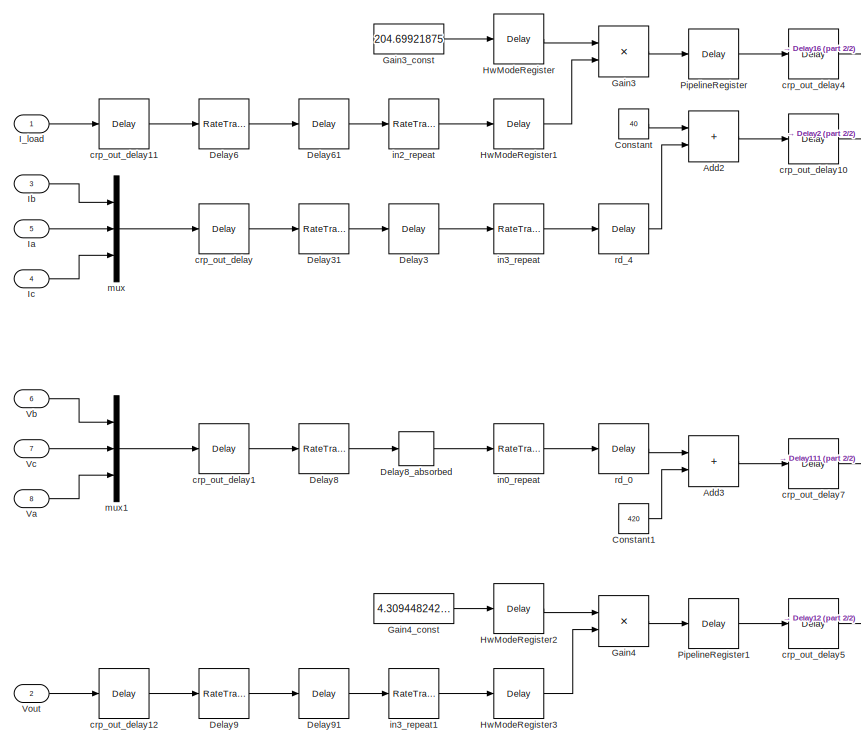
[diagram: simscape_system/simscape_system/real2uint8 - part 1/2, left side, full height]
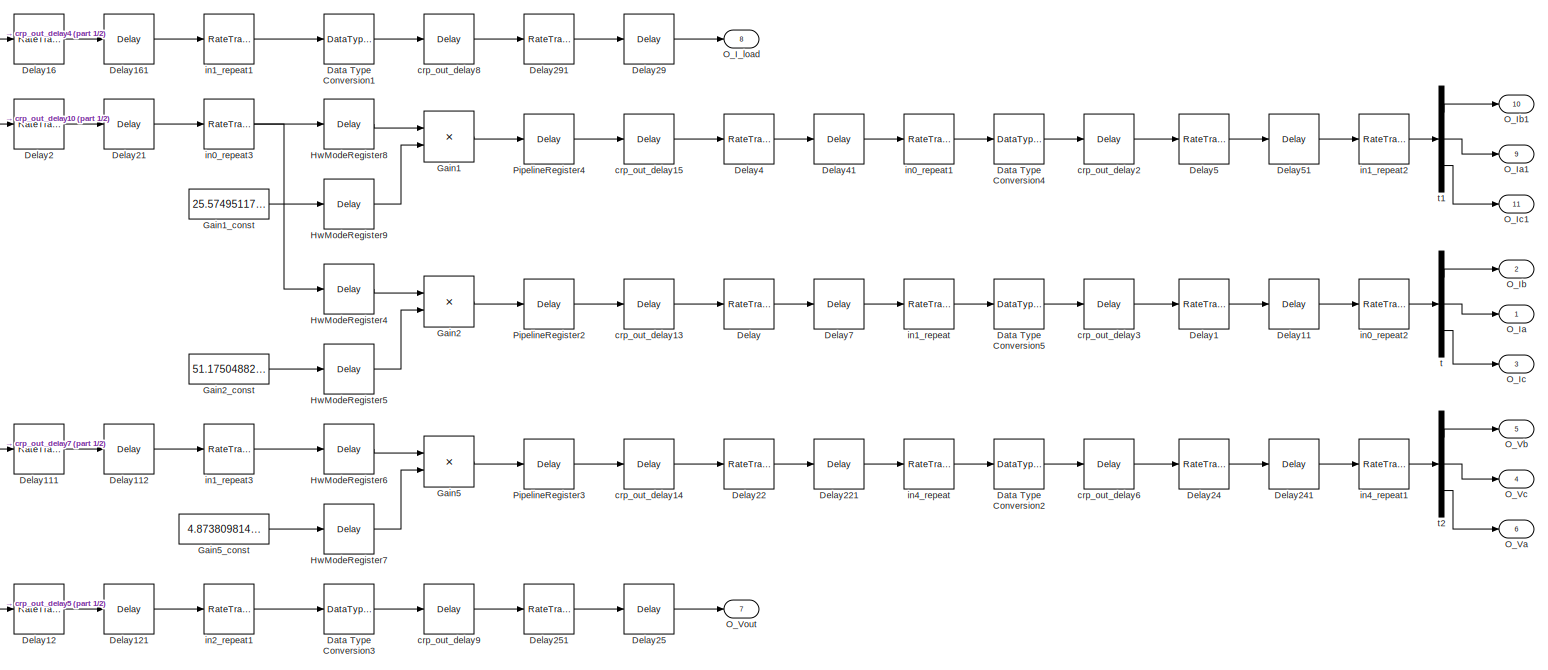
[diagram: simscape_system/simscape_system/real2uint8 - part 2/2, right side, full height]
BLOCK [SubSystem] simscape_system/simscape_system/real2uint8
BLOCK [Sum] simscape_system/simscape_system/real2uint8/Add2
  AccumDataTypeStr = fixdt(1, 19, 6)
  IconShape = rectangular
  OutDataTypeStr = fixdt(1, 19, 6)
  SampleTime = 1.0465724751439e-08
BLOCK [Sum] simscape_system/simscape_system/real2uint8/Add3
  AccumDataTypeStr = fixdt(1, 19, 6)
  IconShape = rectangular
  OutDataTypeStr = fixdt(1, 19, 6)
  SampleTime = 1.0465724751439e-08
BLOCK [Constant] simscape_system/simscape_system/real2uint8/Constant
  OutDataTypeStr = fixdt(1, 18, 6)
  SampleTime = 1.0465724751439e-08
  Value = 40
BLOCK [Constant] simscape_system/simscape_system/real2uint8/Constant1
  OutDataTypeStr = fixdt(1, 18, 6)
  SampleTime = 1.0465724751439e-08
  Value = 420
BLOCK [DataTypeConversion] simscape_system/simscape_system/real2uint8/Data Type Conversion1
  OutDataTypeStr = uint16
  RndMeth = Floor
  SampleTime = 1.0465724751439e-08
  SaturateOnIntegerOverflow = off
BLOCK [DataTypeConversion] simscape_system/simscape_system/real2uint8/Data Type Conversion2
  OutDataTypeStr = uint16
  RndMeth = Floor
  SampleTime = 1.0465724751439e-08
  SaturateOnIntegerOverflow = off
BLOCK [DataTypeConversion] simscape_system/simscape_system/real2uint8/Data Type Conversion3
  OutDataTypeStr = uint16
  RndMeth = Floor
  SampleTime = 1.0465724751439e-08
  SaturateOnIntegerOverflow = off
BLOCK [DataTypeConversion] simscape_system/simscape_system/real2uint8/Data Type Conversion4
  OutDataTypeStr = uint16
  RndMeth = Floor
  SampleTime = 1.0465724751439e-08
  SaturateOnIntegerOverflow = off
BLOCK [DataTypeConversion] simscape_system/simscape_system/real2uint8/Data Type Conversion5
  OutDataTypeStr = uint16
  RndMeth = Floor
  SampleTime = 1.0465724751439e-08
  SaturateOnIntegerOverflow = off
BLOCK [RateTransition] simscape_system/simscape_system/real2uint8/Delay
  InitialCondition = double(0)
  OutPortSampleTimeMultiple = 49
  OutPortSampleTimeOpt = Multiple of input port sample time
BLOCK [RateTransition] simscape_system/simscape_system/real2uint8/Delay1
  InitialCondition = double(0)
  OutPortSampleTimeMultiple = 49
  OutPortSampleTimeOpt = Multiple of input port sample time
BLOCK [Delay] simscape_system/simscape_system/real2uint8/Delay11
  DelayLength = double(1)
  InitialCondition = 0
  InputPortMap = u0
  SampleTime = 5.12820512820513e-07
BLOCK [RateTransition] simscape_system/simscape_system/real2uint8/Delay111
  InitialCondition = double(0)
  OutPortSampleTimeMultiple = 49
  OutPortSampleTimeOpt = Multiple of input port sample time
BLOCK [Delay] simscape_system/simscape_system/real2uint8/Delay112
  DelayLength = double(1)
  InitialCondition = 0
  InputPortMap = u0
  SampleTime = 5.12820512820513e-07
BLOCK [RateTransition] simscape_system/simscape_system/real2uint8/Delay12
  InitialCondition = double(0)
  OutPortSampleTimeMultiple = 49
  OutPortSampleTimeOpt = Multiple of input port sample time
BLOCK [Delay] simscape_system/simscape_system/real2uint8/Delay121
  DelayLength = double(1)
  InitialCondition = 0
  InputPortMap = u0
  SampleTime = 5.12820512820513e-07
BLOCK [RateTransition] simscape_system/simscape_system/real2uint8/Delay16
  InitialCondition = double(0)
  OutPortSampleTimeMultiple = 49
  OutPortSampleTimeOpt = Multiple of input port sample time
BLOCK [Delay] simscape_system/simscape_system/real2uint8/Delay161
  DelayLength = double(1)
  InitialCondition = 0
  InputPortMap = u0
  SampleTime = 5.12820512820513e-07
BLOCK [RateTransition] simscape_system/simscape_system/real2uint8/Delay2
  InitialCondition = double(0)
  OutPortSampleTimeMultiple = 49
  OutPortSampleTimeOpt = Multiple of input port sample time
BLOCK [Delay] simscape_system/simscape_system/real2uint8/Delay21
  DelayLength = double(1)
  InitialCondition = 0
  InputPortMap = u0
  SampleTime = 5.12820512820513e-07
BLOCK [RateTransition] simscape_system/simscape_system/real2uint8/Delay22
  InitialCondition = double(0)
  OutPortSampleTimeMultiple = 49
  OutPortSampleTimeOpt = Multiple of input port sample time
BLOCK [Delay] simscape_system/simscape_system/real2uint8/Delay221
  DelayLength = double(1)
  InitialCondition = 0
  InputPortMap = u0
  SampleTime = 5.12820512820513e-07
BLOCK [RateTransition] simscape_system/simscape_system/real2uint8/Delay24
  InitialCondition = double(0)
  OutPortSampleTimeMultiple = 49
  OutPortSampleTimeOpt = Multiple of input port sample time
BLOCK [Delay] simscape_system/simscape_system/real2uint8/Delay241
  DelayLength = double(1)
  InitialCondition = 0
  InputPortMap = u0
  SampleTime = 5.12820512820513e-07
BLOCK [Delay] simscape_system/simscape_system/real2uint8/Delay25
  DelayLength = double(1)
  InitialCondition = 0
  InputPortMap = u0
  SampleTime = 5.12820512820513e-07
BLOCK [RateTransition] simscape_system/simscape_system/real2uint8/Delay251
  InitialCondition = double(0)
  OutPortSampleTimeMultiple = 49
  OutPortSampleTimeOpt = Multiple of input port sample time
BLOCK [Delay] simscape_system/simscape_system/real2uint8/Delay29
  DelayLength = double(1)
  InitialCondition = 0
  InputPortMap = u0
  SampleTime = 5.12820512820513e-07
BLOCK [RateTransition] simscape_system/simscape_system/real2uint8/Delay291
  InitialCondition = double(0)
  OutPortSampleTimeMultiple = 49
  OutPortSampleTimeOpt = Multiple of input port sample time
BLOCK [Delay] simscape_system/simscape_system/real2uint8/Delay3
  DelayLength = double(1)
  InitialCondition = 0
  InputPortMap = u0
  SampleTime = 5.12820512820513e-07
BLOCK [RateTransition] simscape_system/simscape_system/real2uint8/Delay31
  InitialCondition = double(0)
  OutPortSampleTimeMultiple = 49
  OutPortSampleTimeOpt = Multiple of input port sample time
BLOCK [RateTransition] simscape_system/simscape_system/real2uint8/Delay4
  InitialCondition = double(0)
  OutPortSampleTimeMultiple = 49
  OutPortSampleTimeOpt = Multiple of input port sample time
BLOCK [Delay] simscape_system/simscape_system/real2uint8/Delay41
  DelayLength = double(1)
  InitialCondition = 0
  InputPortMap = u0
  SampleTime = 5.12820512820513e-07
BLOCK [RateTransition] simscape_system/simscape_system/real2uint8/Delay5
  InitialCondition = double(0)
  OutPortSampleTimeMultiple = 49
  OutPortSampleTimeOpt = Multiple of input port sample time
BLOCK [Delay] simscape_system/simscape_system/real2uint8/Delay51
  DelayLength = double(1)
  InitialCondition = 0
  InputPortMap = u0
  SampleTime = 5.12820512820513e-07
BLOCK [RateTransition] simscape_system/simscape_system/real2uint8/Delay6
  InitialCondition = double(0)
  OutPortSampleTimeMultiple = 49
  OutPortSampleTimeOpt = Multiple of input port sample time
BLOCK [Delay] simscape_system/simscape_system/real2uint8/Delay61
  DelayLength = double(1)
  InitialCondition = 0
  InputPortMap = u0
  SampleTime = 5.12820512820513e-07
BLOCK [Delay] simscape_system/simscape_system/real2uint8/Delay7
  DelayLength = double(1)
  InitialCondition = 0
  InputPortMap = u0
  SampleTime = 5.12820512820513e-07
BLOCK [RateTransition] simscape_system/simscape_system/real2uint8/Delay8
  InitialCondition = double(0)
  OutPortSampleTimeMultiple = 49
  OutPortSampleTimeOpt = Multiple of input port sample time
BLOCK [Delay] simscape_system/simscape_system/real2uint8/Delay8_absorbed
  DelayLength = 0
  InputPortMap = u0
BLOCK [RateTransition] simscape_system/simscape_system/real2uint8/Delay9
  InitialCondition = double(0)
  OutPortSampleTimeMultiple = 49
  OutPortSampleTimeOpt = Multiple of input port sample time
BLOCK [Delay] simscape_system/simscape_system/real2uint8/Delay91
  DelayLength = double(1)
  InitialCondition = 0
  InputPortMap = u0
  SampleTime = 5.12820512820513e-07
BLOCK [Product] simscape_system/simscape_system/real2uint8/Gain1
  Inputs = **
  OutDataTypeStr = fixdt(1, 38, 19)
  SampleTime = 1.0465724751439e-08
BLOCK [Constant] simscape_system/simscape_system/real2uint8/Gain1_const
  OutDataTypeStr = fixdt(1, 19, 13)
  SampleTime = 1.0465724751439e-08
  Value = 25.574951171875
BLOCK [Product] simscape_system/simscape_system/real2uint8/Gain2
  Inputs = **
  OutDataTypeStr = fixdt(1, 38, 18)
  SampleTime = 1.0465724751439e-08
BLOCK [Constant] simscape_system/simscape_system/real2uint8/Gain2_const
  OutDataTypeStr = fixdt(1, 19, 12)
  SampleTime = 1.0465724751439e-08
  Value = 51.175048828125
BLOCK [Product] simscape_system/simscape_system/real2uint8/Gain3
  Inputs = **
  OutDataTypeStr = fixdt(1, 36, 15)
  SampleTime = 1.0465724751439e-08
BLOCK [Constant] simscape_system/simscape_system/real2uint8/Gain3_const
  OutDataTypeStr = fixdt(1, 18, 9)
  SampleTime = 1.0465724751439e-08
  Value = 204.69921875
BLOCK [Product] simscape_system/simscape_system/real2uint8/Gain4
  Inputs = **
  OutDataTypeStr = fixdt(1, 36, 20)
  SampleTime = 1.0465724751439e-08
BLOCK [Constant] simscape_system/simscape_system/real2uint8/Gain4_const
  OutDataTypeStr = fixdt(1, 18, 14)
  SampleTime = 1.0465724751439e-08
  Value = 4.3094482421875
BLOCK [Product] simscape_system/simscape_system/real2uint8/Gain5
  Inputs = **
  OutDataTypeStr = fixdt(1, 38, 21)
  SampleTime = 1.0465724751439e-08
BLOCK [Constant] simscape_system/simscape_system/real2uint8/Gain5_const
  OutDataTypeStr = fixdt(1, 19, 15)
  SampleTime = 1.0465724751439e-08
  Value = 4.873809814453125
BLOCK [Delay] simscape_system/simscape_system/real2uint8/HwModeRegister
  DelayLength = double(1)
  InitialCondition = 0
  InputPortMap = u0
  SampleTime = 1.0465724751439e-08
BLOCK [Delay] simscape_system/simscape_system/real2uint8/HwModeRegister1
  DelayLength = double(1)
  InitialCondition = 0
  InputPortMap = u0
  SampleTime = 1.0465724751439e-08
BLOCK [Delay] simscape_system/simscape_system/real2uint8/HwModeRegister2
  DelayLength = double(1)
  InitialCondition = 0
  InputPortMap = u0
  SampleTime = 1.0465724751439e-08
BLOCK [Delay] simscape_system/simscape_system/real2uint8/HwModeRegister3
  DelayLength = double(1)
  InitialCondition = 0
  InputPortMap = u0
  SampleTime = 1.0465724751439e-08
BLOCK [Delay] simscape_system/simscape_system/real2uint8/HwModeRegister4
  DelayLength = double(1)
  InitialCondition = 0
  InputPortMap = u0
  SampleTime = 1.0465724751439e-08
BLOCK [Delay] simscape_system/simscape_system/real2uint8/HwModeRegister5
  DelayLength = double(1)
  InitialCondition = 0
  InputPortMap = u0
  SampleTime = 1.0465724751439e-08
BLOCK [Delay] simscape_system/simscape_system/real2uint8/HwModeRegister6
  DelayLength = double(1)
  InitialCondition = 0
  InputPortMap = u0
  SampleTime = 1.0465724751439e-08
BLOCK [Delay] simscape_system/simscape_system/real2uint8/HwModeRegister7
  DelayLength = double(1)
  InitialCondition = 0
  InputPortMap = u0
  SampleTime = 1.0465724751439e-08
BLOCK [Delay] simscape_system/simscape_system/real2uint8/HwModeRegister8
  DelayLength = double(1)
  InitialCondition = 0
  InputPortMap = u0
  SampleTime = 1.0465724751439e-08
BLOCK [Delay] simscape_system/simscape_system/real2uint8/HwModeRegister9
  DelayLength = double(1)
  InitialCondition = 0
  InputPortMap = u0
  SampleTime = 1.0465724751439e-08
BLOCK [Inport] simscape_system/simscape_system/real2uint8/I_load
  OutDataTypeStr = fixdt(1, 18, 6)
  PortDimensions = 1
  SampleTime = 1.0465724751439e-08
BLOCK [Inport] simscape_system/simscape_system/real2uint8/Ia
  OutDataTypeStr = fixdt(1, 18, 6)
  Port = 5
  PortDimensions = 1
  SampleTime = 1.0465724751439e-08
BLOCK [Inport] simscape_system/simscape_system/real2uint8/Ib
  OutDataTypeStr = fixdt(1, 18, 6)
  Port = 3
  PortDimensions = 1
  SampleTime = 1.0465724751439e-08
BLOCK [Inport] simscape_system/simscape_system/real2uint8/Ic
  OutDataTypeStr = fixdt(1, 18, 6)
  Port = 4
  PortDimensions = 1
  SampleTime = 1.0465724751439e-08
BLOCK [Outport] simscape_system/simscape_system/real2uint8/O_I_load
  Port = 8
  SampleTime = 5.12820512820513e-07
BLOCK [Outport] simscape_system/simscape_system/real2uint8/O_Ia
  SampleTime = 1.0465724751439e-08
BLOCK [Outport] simscape_system/simscape_system/real2uint8/O_Ia1
  Port = 9
  SampleTime = 1.0465724751439e-08
BLOCK [Outport] simscape_system/simscape_system/real2uint8/O_Ib
  Port = 2
  SampleTime = 1.0465724751439e-08
BLOCK [Outport] simscape_system/simscape_system/real2uint8/O_Ib1
  Port = 10
  SampleTime = 1.0465724751439e-08
BLOCK [Outport] simscape_system/simscape_system/real2uint8/O_Ic
  Port = 3
  SampleTime = 1.0465724751439e-08
BLOCK [Outport] simscape_system/simscape_system/real2uint8/O_Ic1
  Port = 11
  SampleTime = 1.0465724751439e-08
BLOCK [Outport] simscape_system/simscape_system/real2uint8/O_Va
  Port = 6
  SampleTime = 1.0465724751439e-08
BLOCK [Outport] simscape_system/simscape_system/real2uint8/O_Vb
  Port = 5
  SampleTime = 1.0465724751439e-08
BLOCK [Outport] simscape_system/simscape_system/real2uint8/O_Vc
  Port = 4
  SampleTime = 1.0465724751439e-08
BLOCK [Outport] simscape_system/simscape_system/real2uint8/O_Vout
  Port = 7
  SampleTime = 5.12820512820513e-07
BLOCK [Delay] simscape_system/simscape_system/real2uint8/PipelineRegister
  DelayLength = double(1)
  InitialCondition = 0
  InputPortMap = u0
  SampleTime = 1.0465724751439e-08
BLOCK [Delay] simscape_system/simscape_system/real2uint8/PipelineRegister1
  DelayLength = double(1)
  InitialCondition = 0
  InputPortMap = u0
  SampleTime = 1.0465724751439e-08
BLOCK [Delay] simscape_system/simscape_system/real2uint8/PipelineRegister2
  DelayLength = double(1)
  InitialCondition = 0
  InputPortMap = u0
  SampleTime = 1.0465724751439e-08
BLOCK [Delay] simscape_system/simscape_system/real2uint8/PipelineRegister3
  DelayLength = double(1)
  InitialCondition = 0
  InputPortMap = u0
  SampleTime = 1.0465724751439e-08
BLOCK [Delay] simscape_system/simscape_system/real2uint8/PipelineRegister4
  DelayLength = double(1)
  InitialCondition = 0
  InputPortMap = u0
  SampleTime = 1.0465724751439e-08
BLOCK [Inport] simscape_system/simscape_system/real2uint8/Va
  OutDataTypeStr = fixdt(1, 18, 6)
  Port = 8
  PortDimensions = 1
  SampleTime = 1.0465724751439e-08
BLOCK [Inport] simscape_system/simscape_system/real2uint8/Vb
  OutDataTypeStr = fixdt(1, 18, 6)
  Port = 6
  PortDimensions = 1
  SampleTime = 1.0465724751439e-08
BLOCK [Inport] simscape_system/simscape_system/real2uint8/Vc
  OutDataTypeStr = fixdt(1, 18, 6)
  Port = 7
  PortDimensions = 1
  SampleTime = 1.0465724751439e-08
BLOCK [Inport] simscape_system/simscape_system/real2uint8/Vout
  OutDataTypeStr = fixdt(1, 18, 6)
  Port = 2
  PortDimensions = 1
  SampleTime = 1.0465724751439e-08
BLOCK [Delay] simscape_system/simscape_system/real2uint8/crp_out_delay
  DelayLength = double(1)
  InitialCondition = 0
  InputPortMap = u0
  SampleTime = 1.0465724751439e-08
BLOCK [Delay] simscape_system/simscape_system/real2uint8/crp_out_delay1
  DelayLength = double(1)
  InitialCondition = 0
  InputPortMap = u0
  SampleTime = 1.0465724751439e-08
BLOCK [Delay] simscape_system/simscape_system/real2uint8/crp_out_delay10
  DelayLength = double(1)
  InitialCondition = 0
  InputPortMap = u0
  SampleTime = 1.0465724751439e-08
BLOCK [Delay] simscape_system/simscape_system/real2uint8/crp_out_delay11
  DelayLength = double(1)
  InitialCondition = 0
  InputPortMap = u0
  SampleTime = 1.0465724751439e-08
BLOCK [Delay] simscape_system/simscape_system/real2uint8/crp_out_delay12
  DelayLength = double(1)
  InitialCondition = 0
  InputPortMap = u0
  SampleTime = 1.0465724751439e-08
BLOCK [Delay] simscape_system/simscape_system/real2uint8/crp_out_delay13
  DelayLength = double(1)
  InitialCondition = 0
  InputPortMap = u0
  SampleTime = 1.0465724751439e-08
BLOCK [Delay] simscape_system/simscape_system/real2uint8/crp_out_delay14
  DelayLength = double(1)
  InitialCondition = 0
  InputPortMap = u0
  SampleTime = 1.0465724751439e-08
BLOCK [Delay] simscape_system/simscape_system/real2uint8/crp_out_delay15
  DelayLength = double(1)
  InitialCondition = 0
  InputPortMap = u0
  SampleTime = 1.0465724751439e-08
BLOCK [Delay] simscape_system/simscape_system/real2uint8/crp_out_delay2
  DelayLength = double(1)
  InitialCondition = 0
  InputPortMap = u0
  SampleTime = 1.0465724751439e-08
BLOCK [Delay] simscape_system/simscape_system/real2uint8/crp_out_delay3
  DelayLength = double(1)
  InitialCondition = 0
  InputPortMap = u0
  SampleTime = 1.0465724751439e-08
BLOCK [Delay] simscape_system/simscape_system/real2uint8/crp_out_delay4
  DelayLength = double(1)
  InitialCondition = 0
  InputPortMap = u0
  SampleTime = 1.0465724751439e-08
BLOCK [Delay] simscape_system/simscape_system/real2uint8/crp_out_delay5
  DelayLength = double(1)
  InitialCondition = 0
  InputPortMap = u0
  SampleTime = 1.0465724751439e-08
BLOCK [Delay] simscape_system/simscape_system/real2uint8/crp_out_delay6
  DelayLength = double(1)
  InitialCondition = 0
  InputPortMap = u0
  SampleTime = 1.0465724751439e-08
BLOCK [Delay] simscape_system/simscape_system/real2uint8/crp_out_delay7
  DelayLength = double(1)
  InitialCondition = 0
  InputPortMap = u0
  SampleTime = 1.0465724751439e-08
BLOCK [Delay] simscape_system/simscape_system/real2uint8/crp_out_delay8
  DelayLength = double(1)
  InitialCondition = 0
  InputPortMap = u0
  SampleTime = 1.0465724751439e-08
BLOCK [Delay] simscape_system/simscape_system/real2uint8/crp_out_delay9
  DelayLength = double(1)
  InitialCondition = 0
  InputPortMap = u0
  SampleTime = 1.0465724751439e-08
BLOCK [RateTransition] simscape_system/simscape_system/real2uint8/in0_repeat
  Deterministic = off
  Integrity = off
  OutPortSampleTimeMultiple = 1/49
  OutPortSampleTimeOpt = Multiple of input port sample time
BLOCK [RateTransition] simscape_system/simscape_system/real2uint8/in0_repeat1
  Deterministic = off
  Integrity = off
  OutPortSampleTimeMultiple = 1/49
  OutPortSampleTimeOpt = Multiple of input port sample time
BLOCK [RateTransition] simscape_system/simscape_system/real2uint8/in0_repeat2
  Deterministic = off
  Integrity = off
  OutPortSampleTimeMultiple = 1/49
  OutPortSampleTimeOpt = Multiple of input port sample time
BLOCK [RateTransition] simscape_system/simscape_system/real2uint8/in0_repeat3
  Deterministic = off
  Integrity = off
  OutPortSampleTimeMultiple = 1/49
  OutPortSampleTimeOpt = Multiple of input port sample time
BLOCK [RateTransition] simscape_system/simscape_system/real2uint8/in1_repeat
  Deterministic = off
  Integrity = off
  OutPortSampleTimeMultiple = 1/49
  OutPortSampleTimeOpt = Multiple of input port sample time
BLOCK [RateTransition] simscape_system/simscape_system/real2uint8/in1_repeat1
  Deterministic = off
  Integrity = off
  OutPortSampleTimeMultiple = 1/49
  OutPortSampleTimeOpt = Multiple of input port sample time
BLOCK [RateTransition] simscape_system/simscape_system/real2uint8/in1_repeat2
  Deterministic = off
  Integrity = off
  OutPortSampleTimeMultiple = 1/49
  OutPortSampleTimeOpt = Multiple of input port sample time
BLOCK [RateTransition] simscape_system/simscape_system/real2uint8/in1_repeat3
  Deterministic = off
  Integrity = off
  OutPortSampleTimeMultiple = 1/49
  OutPortSampleTimeOpt = Multiple of input port sample time
BLOCK [RateTransition] simscape_system/simscape_system/real2uint8/in2_repeat
  Deterministic = off
  Integrity = off
  OutPortSampleTimeMultiple = 1/49
  OutPortSampleTimeOpt = Multiple of input port sample time
BLOCK [RateTransition] simscape_system/simscape_system/real2uint8/in2_repeat1
  Deterministic = off
  Integrity = off
  OutPortSampleTimeMultiple = 1/49
  OutPortSampleTimeOpt = Multiple of input port sample time
BLOCK [RateTransition] simscape_system/simscape_system/real2uint8/in3_repeat
  Deterministic = off
  Integrity = off
  OutPortSampleTimeMultiple = 1/49
  OutPortSampleTimeOpt = Multiple of input port sample time
BLOCK [RateTransition] simscape_system/simscape_system/real2uint8/in3_repeat1
  Deterministic = off
  Integrity = off
  OutPortSampleTimeMultiple = 1/49
  OutPortSampleTimeOpt = Multiple of input port sample time
BLOCK [RateTransition] simscape_system/simscape_system/real2uint8/in4_repeat
  Deterministic = off
  Integrity = off
  OutPortSampleTimeMultiple = 1/49
  OutPortSampleTimeOpt = Multiple of input port sample time
BLOCK [RateTransition] simscape_system/simscape_system/real2uint8/in4_repeat1
  Deterministic = off
  Integrity = off
  OutPortSampleTimeMultiple = 1/49
  OutPortSampleTimeOpt = Multiple of input port sample time
BLOCK [Mux] simscape_system/simscape_system/real2uint8/mux
  DisplayOption = bar
  Inputs = 3
BLOCK [Mux] simscape_system/simscape_system/real2uint8/mux1
  DisplayOption = bar
  Inputs = 3
BLOCK [Delay] simscape_system/simscape_system/real2uint8/rd_0
  DelayLength = double(1)
  InitialCondition = 0
  InputPortMap = u0
  SampleTime = 1.0465724751439e-08
BLOCK [Delay] simscape_system/simscape_system/real2uint8/rd_4
  DelayLength = double(1)
  InitialCondition = 0
  InputPortMap = u0
  SampleTime = 1.0465724751439e-08
BLOCK [Demux] simscape_system/simscape_system/real2uint8/t
  Outputs = 3
BLOCK [Demux] simscape_system/simscape_system/real2uint8/t1
  Outputs = 3
BLOCK [Demux] simscape_system/simscape_system/real2uint8/t2
  Outputs = 3
BLOCK [Demux] simscape_system/simscape_system/t
  Outputs = 6
BLOCK [Inport] simscape_system/simscape_system/va_i
  OutDataTypeStr = fixdt(1, 18, 8)
  Port = 8
  SampleTime = 5.12820512820513e-07
BLOCK [Inport] simscape_system/simscape_system/vb_i
  OutDataTypeStr = fixdt(1, 18, 8)
  Port = 9
  SampleTime = 5.12820512820513e-07
BLOCK [Inport] simscape_system/simscape_system/vc_i
  OutDataTypeStr = fixdt(1, 18, 8)
  Port = 10
  SampleTime = 5.12820512820513e-07
BLOCK [RateTransition] simscape_system/t
  InitialCondition = double(0)
  OutPortSampleTimeMultiple = 49
  OutPortSampleTimeOpt = Multiple of input port sample time
BLOCK [RateTransition] simscape_system/t1
  InitialCondition = double(0)
  OutPortSampleTimeMultiple = 49
  OutPortSampleTimeOpt = Multiple of input port sample time
BLOCK [RateTransition] simscape_system/t10
  InitialCondition = double(0)
  OutPortSampleTimeMultiple = 49
  OutPortSampleTimeOpt = Multiple of input port sample time
BLOCK [RateTransition] simscape_system/t2
  InitialCondition = double(0)
  OutPortSampleTimeMultiple = 49
  OutPortSampleTimeOpt = Multiple of input port sample time
BLOCK [RateTransition] simscape_system/t3
  InitialCondition = double(0)
  OutPortSampleTimeMultiple = 49
  OutPortSampleTimeOpt = Multiple of input port sample time
BLOCK [RateTransition] simscape_system/t4
  InitialCondition = double(0)
  OutPortSampleTimeMultiple = 49
  OutPortSampleTimeOpt = Multiple of input port sample time
BLOCK [RateTransition] simscape_system/t5
  InitialCondition = double(0)
  OutPortSampleTimeMultiple = 49
  OutPortSampleTimeOpt = Multiple of input port sample time
BLOCK [RateTransition] simscape_system/t6
  InitialCondition = double(0)
  OutPortSampleTimeMultiple = 49
  OutPortSampleTimeOpt = Multiple of input port sample time
BLOCK [RateTransition] simscape_system/t7
  InitialCondition = double(0)
  OutPortSampleTimeMultiple = 49
  OutPortSampleTimeOpt = Multiple of input port sample time
BLOCK [RateTransition] simscape_system/t8
  InitialCondition = double(0)
  OutPortSampleTimeMultiple = 49
  OutPortSampleTimeOpt = Multiple of input port sample time
BLOCK [RateTransition] simscape_system/t9
  InitialCondition = double(0)
  OutPortSampleTimeMultiple = 49
  OutPortSampleTimeOpt = Multiple of input port sample time
BLOCK [Inport] simscape_system/va_i
  LockScale = on
  OutDataTypeStr = fixdt(1, 18, 8)
  Port = 8
  PortDimensions = 1
  SampleTime = 5.12820512820513e-07
BLOCK [Inport] simscape_system/vb_i
  LockScale = on
  OutDataTypeStr = fixdt(1, 18, 8)
  Port = 9
  PortDimensions = 1
  SampleTime = 5.12820512820513e-07
BLOCK [Inport] simscape_system/vc_i
  LockScale = on
  OutDataTypeStr = fixdt(1, 18, 8)
  Port = 10
  PortDimensions = 1
  SampleTime = 5.12820512820513e-07
BLOCK [Reference] simscape_system1  REF=fillib/FPGA-in-the-Loop (FIL)
  Commented = on
  SourceBlock = fillib/FPGA-in-the-Loop (FIL)
  SourceType = FPGA-in-the-Loop (FIL)
  UserDataPersistent = on
BLOCK [SubSystem] simscape_system_vnl
BLOCK [Inport] simscape_system_vnl/DW_L1
  Port = 2
BLOCK [Inport] simscape_system_vnl/DW_L2
  Port = 4
BLOCK [Inport] simscape_system_vnl/DW_L3
  Port = 6
BLOCK [DataTypeConversion] simscape_system_vnl/Data Type Conversion1
  Commented = through
  LockScale = on
  RndMeth = Nearest
  SaturateOnIntegerOverflow = off
BLOCK [DataTypeConversion] simscape_system_vnl/Data Type Conversion10
  Commented = through
  LockScale = on
  RndMeth = Nearest
  SaturateOnIntegerOverflow = off
BLOCK [DataTypeConversion] simscape_system_vnl/Data Type Conversion11
  Commented = through
  LockScale = on
  RndMeth = Nearest
  SaturateOnIntegerOverflow = off
BLOCK [DataTypeConversion] simscape_system_vnl/Data Type Conversion12
  Commented = through
  LockScale = on
  RndMeth = Nearest
  SaturateOnIntegerOverflow = off
BLOCK [DataTypeConversion] simscape_system_vnl/Data Type Conversion13
  Commented = through
  LockScale = on
  RndMeth = Nearest
  SaturateOnIntegerOverflow = off
BLOCK [DataTypeConversion] simscape_system_vnl/Data Type Conversion14
  Commented = through
  LockScale = on
  RndMeth = Nearest
  SaturateOnIntegerOverflow = off
BLOCK [DataTypeConversion] simscape_system_vnl/Data Type Conversion15
  Commented = through
  LockScale = on
  RndMeth = Nearest
  SaturateOnIntegerOverflow = off
BLOCK [DataTypeConversion] simscape_system_vnl/Data Type Conversion16
  Commented = through
  LockScale = on
  RndMeth = Nearest
  SaturateOnIntegerOverflow = off
BLOCK [DataTypeConversion] simscape_system_vnl/Data Type Conversion17
  Commented = through
  LockScale = on
  RndMeth = Nearest
  SaturateOnIntegerOverflow = off
BLOCK [DataTypeConversion] simscape_system_vnl/Data Type Conversion18
  Commented = through
  LockScale = on
  RndMeth = Nearest
  SaturateOnIntegerOverflow = off
BLOCK [DataTypeConversion] simscape_system_vnl/Data Type Conversion19
  Commented = through
  LockScale = on
  RndMeth = Nearest
  SaturateOnIntegerOverflow = off
BLOCK [DataTypeConversion] simscape_system_vnl/Data Type Conversion2
  Commented = through
  LockScale = on
  RndMeth = Nearest
  SaturateOnIntegerOverflow = off
BLOCK [DataTypeConversion] simscape_system_vnl/Data Type Conversion21
  Commented = through
  OutDataTypeStr = single
  RndMeth = Nearest
  SaturateOnIntegerOverflow = off
BLOCK [DataTypeConversion] simscape_system_vnl/Data Type Conversion22
  Commented = through
  OutDataTypeStr = single
  RndMeth = Nearest
  SaturateOnIntegerOverflow = off
BLOCK [DataTypeConversion] simscape_system_vnl/Data Type Conversion23
  Commented = through
  OutDataTypeStr = single
  RndMeth = Nearest
  SaturateOnIntegerOverflow = off
BLOCK [DataTypeConversion] simscape_system_vnl/Data Type Conversion24
  Commented = through
  OutDataTypeStr = single
  RndMeth = Nearest
  SaturateOnIntegerOverflow = off
BLOCK [DataTypeConversion] simscape_system_vnl/Data Type Conversion25
  Commented = through
  OutDataTypeStr = single
  RndMeth = Nearest
  SaturateOnIntegerOverflow = off
BLOCK [DataTypeConversion] simscape_system_vnl/Data Type Conversion26
  Commented = through
  OutDataTypeStr = single
  RndMeth = Nearest
  SaturateOnIntegerOverflow = off
BLOCK [DataTypeConversion] simscape_system_vnl/Data Type Conversion27
  Commented = through
  OutDataTypeStr = single
  RndMeth = Nearest
  SaturateOnIntegerOverflow = off
BLOCK [DataTypeConversion] simscape_system_vnl/Data Type Conversion28
  Commented = through
  OutDataTypeStr = single
  RndMeth = Nearest
  SaturateOnIntegerOverflow = off
BLOCK [DataTypeConversion] simscape_system_vnl/Data Type Conversion29
  Commented = through
  OutDataTypeStr = single
  RndMeth = Nearest
  SaturateOnIntegerOverflow = off
BLOCK [DataTypeConversion] simscape_system_vnl/Data Type Conversion30
  Commented = through
  OutDataTypeStr = single
  RndMeth = Nearest
  SaturateOnIntegerOverflow = off
BLOCK [Demux] simscape_system_vnl/Demux
  Outputs = 6
BLOCK [SubSystem] simscape_system_vnl/FET_CTRL
BLOCK [Constant] simscape_system_vnl/FET_CTRL/Constant
  OutDataTypeStr = fixdt(1,18,17)
  SampleTime = t_ss
  Value = -.7
BLOCK [Delay] simscape_system_vnl/FET_CTRL/Delay
  Commented = through
  DelayLength = 1
  InputPortMap = u0
  InputProcessing = Columns as channels (frame based)
  SampleTime = t_ss
BLOCK [Delay] simscape_system_vnl/FET_CTRL/Delay1
  Commented = through
  DelayLength = 1
  InputPortMap = u0
  InputProcessing = Columns as channels (frame based)
  SampleTime = t_ss
BLOCK [Delay] simscape_system_vnl/FET_CTRL/Delay2
  Commented = through
  DelayLength = 1
  InputPortMap = u0
  InputProcessing = Columns as channels (frame based)
  SampleTime = t_ss
BLOCK [Delay] simscape_system_vnl/FET_CTRL/Delay3
  Commented = through
  DelayLength = 1
  InitialCondition = -.7
  InputPortMap = u0
  InputProcessing = Columns as channels (frame based)
  SampleTime = t_ss
BLOCK [DiscreteIntegrator] simscape_system_vnl/FET_CTRL/Discrete-Time Integrator
  ICPrevOutput = DiscIntNeverNeededParam
  ICPrevScaledInput = DiscIntNeverNeededParam
  InitialConditionSetting = Auto
  IntegratorMethod = Accumulation: Forward Euler
  LimitOutput = on
  LowerSaturationLimit = -100
  OutDataTypeStr = fixdt(1,18,8)
  SampleTime = t_ss
  SaturateOnIntegerOverflow = on
  UpperSaturationLimit = 100
  gainval = 1/s
BLOCK [RelationalOperator] simscape_system_vnl/FET_CTRL/Equal
  InputSameDT = off
  OutDataTypeStr = boolean
  RndMeth = Simplest
BLOCK [Inport] simscape_system_vnl/FET_CTRL/G
  Port = 3
  SampleTime = t_ss
BLOCK [Gain] simscape_system_vnl/FET_CTRL/Gain1
  Gain = -1
  OutDataTypeStr = fixdt(1,18,12)
BLOCK [Gain] simscape_system_vnl/FET_CTRL/Gain3
  Gain = Gs
  OutDataTypeStr = fixdt(1,18,12)
BLOCK [Reference] simscape_system_vnl/FET_CTRL/Multiply-Add  REF=hdlsllib/HDL Operations/Multiply-Add
  SourceBlock = hdlsllib/HDL Operations/Multiply-Add
  SourceType = Multiply-Add
BLOCK [Logic] simscape_system_vnl/FET_CTRL/OR
  AllPortsSameDT = off
  IconShape = distinctive
  Operator = OR
  OutDataTypeStr = boolean
BLOCK [RateTransition] simscape_system_vnl/FET_CTRL/Rate Transition1
  Commented = through
  OutPortSampleTime = t_ss
BLOCK [RateTransition] simscape_system_vnl/FET_CTRL/Rate Transition11
  Commented = through
  OutPortSampleTime = t_ss
BLOCK [RateTransition] simscape_system_vnl/FET_CTRL/Rate Transition2
  Commented = through
  OutPortSampleTime = t_ss
BLOCK [RateTransition] simscape_system_vnl/FET_CTRL/Rate Transition3
  Commented = through
  OutPortSampleTime = t_ss
BLOCK [RateTransition] simscape_system_vnl/FET_CTRL/Rate Transition4
  Commented = through
  OutPortSampleTime = t_ss
BLOCK [RateTransition] simscape_system_vnl/FET_CTRL/Rate Transition5
  Commented = through
  OutPortSampleTime = t_ss
BLOCK [Sum] simscape_system_vnl/FET_CTRL/Subtract
  IconShape = rectangular
  Inputs = +-
  OutDataTypeStr = fixdt(1,18,12)
BLOCK [Sum] simscape_system_vnl/FET_CTRL/Subtract1
  IconShape = rectangular
  Inputs = +-
  OutDataTypeStr = fixdt(1,18,11)
BLOCK [Outport] simscape_system_vnl/FET_CTRL/ic
  SampleTime = t_ss
BLOCK [Inport] simscape_system_vnl/FET_CTRL/is
  NameLocation = top
  OutDataTypeStr = fixdt(1,18,6)
  SampleTime = t_ss
BLOCK [Inport] simscape_system_vnl/FET_CTRL/vs
  OutDataTypeStr = fixdt(1,18,6)
  Port = 2
  SampleTime = t_ss
BLOCK [SubSystem] simscape_system_vnl/HDL Subsystem
BLOCK [DataTypeConversion] simscape_system_vnl/HDL Subsystem/Data Type Conversion
  OutDataTypeStr = fixdt(1,25,13)
  RndMeth = Floor
  SaturateOnIntegerOverflow = off
BLOCK [DataTypeConversion] simscape_system_vnl/HDL Subsystem/Data Type Conversion1
  OutDataTypeStr = fixdt(1,18,6)
  RndMeth = Floor
  SaturateOnIntegerOverflow = off
BLOCK [Reference] simscape_system_vnl/HDL Subsystem/Fixed-Point State-Space  REF=simulink/Additional Math
& Discrete/Additional
Discrete/Fixed-Point
State-Space
  SourceBlock = simulink/Additional Math\n& Discrete/Additional\nDiscrete/Fixed-Point\nState-Space
  SourceType = Fixed-Point State-Space
BLOCK [SubSystem] simscape_system_vnl/HDL Subsystem/HDL Algorithm
  Commented = on
BLOCK [Delay] simscape_system_vnl/HDL Subsystem/HDL Algorithm/Delay1
  DelayLength = 1
  InputPortMap = u0
BLOCK [Delay] simscape_system_vnl/HDL Subsystem/HDL Algorithm/Delay2
  InputPortMap = u0
BLOCK [Inport] simscape_system_vnl/HDL Subsystem/HDL Algorithm/In1
BLOCK [Outport] simscape_system_vnl/HDL Subsystem/HDL Algorithm/Out1
  VectorParamsAs1DForOutWhenUnconnected = off
BLOCK [SubSystem] simscape_system_vnl/HDL Subsystem/HDL Algorithm/Output
BLOCK [Terminator] simscape_system_vnl/HDL Subsystem/HDL Algorithm/Output/Bias
BLOCK [Inport] simscape_system_vnl/HDL Subsystem/HDL Algorithm/Output/In1
BLOCK [Mux] simscape_system_vnl/HDL Subsystem/HDL Algorithm/Output/Mux
  DisplayOption = bar
  Inputs = 2
BLOCK [Outport] simscape_system_vnl/HDL Subsystem/HDL Algorithm/Output/Out1
  VectorParamsAs1DForOutWhenUnconnected = off
BLOCK [Reference] simscape_system_vnl/HDL Subsystem/HDL Algorithm/Output/Output Update  REF=hdlssclib/NFPSparseConstMultiply
  SourceBlock = hdlssclib/NFPSparseConstMultiply
BLOCK [Inport] simscape_system_vnl/HDL Subsystem/HDL Algorithm/Output/Sel
  LockScale = on
  Port = 3
BLOCK [Inport] simscape_system_vnl/HDL Subsystem/HDL Algorithm/Output/State
  Port = 2
BLOCK [Constant] simscape_system_vnl/HDL Subsystem/HDL Algorithm/Sel
  OutDataTypeStr = uint32
  SampleTime = -1
  Value = 0
BLOCK [Delay] simscape_system_vnl/HDL Subsystem/HDL Algorithm/State Delay
  DelayLength = 1
  InitialCondition = single(stateSpaceParameters_1.X0)
  InputPortMap = u0
BLOCK [Switch] simscape_system_vnl/HDL Subsystem/HDL Algorithm/State Switch
  Criteria = u2 ~= 0
  InputSameDT = off
  SaturateOnIntegerOverflow = off
BLOCK [SubSystem] simscape_system_vnl/HDL Subsystem/HDL Algorithm/State Update
BLOCK [Terminator] simscape_system_vnl/HDL Subsystem/HDL Algorithm/State Update/Bias
BLOCK [Inport] simscape_system_vnl/HDL Subsystem/HDL Algorithm/State Update/In1
BLOCK [Mux] simscape_system_vnl/HDL Subsystem/HDL Algorithm/State Update/Mux
  DisplayOption = bar
  Inputs = 2
BLOCK [Inport] simscape_system_vnl/HDL Subsystem/HDL Algorithm/State Update/Sel
  LockScale = on
  Port = 3
BLOCK [Inport] simscape_system_vnl/HDL Subsystem/HDL Algorithm/State Update/State
  Port = 2
BLOCK [Outport] simscape_system_vnl/HDL Subsystem/HDL Algorithm/State Update/State Out
  VectorParamsAs1DForOutWhenUnconnected = off
BLOCK [Reference] simscape_system_vnl/HDL Subsystem/HDL Algorithm/State Update/State Update  REF=hdlssclib/NFPSparseConstMultiply
  SourceBlock = hdlssclib/NFPSparseConstMultiply
BLOCK [Constant] simscape_system_vnl/HDL Subsystem/HDL Algorithm/Valid Out
  OutDataTypeStr = boolean
  SampleTime = 4.395604395604395e-07
BLOCK [Constant] simscape_system_vnl/HDL Subsystem/HDL Algorithm/X0
  SampleTime = 4.395604395604395e-07
  Value = single(stateSpaceParameters_1.X0)
BLOCK [Outport] simscape_system_vnl/HDL Subsystem/I_load
BLOCK [Inport] simscape_system_vnl/HDL Subsystem/I_load_in
  OutDataTypeStr = fixdt(1,18,8)
BLOCK [Outport] simscape_system_vnl/HDL Subsystem/Ia
  Port = 17
BLOCK [Outport] simscape_system_vnl/HDL Subsystem/Ib
  Port = 15
BLOCK [Outport] simscape_system_vnl/HDL Subsystem/Ic
  Port = 16
BLOCK [Concatenate] simscape_system_vnl/HDL Subsystem/Input Concat
  NumInputs = 10
BLOCK [Demux] simscape_system_vnl/HDL Subsystem/Output Demux
  Outputs = 20
BLOCK [Outport] simscape_system_vnl/HDL Subsystem/Va
  Port = 20
BLOCK [Outport] simscape_system_vnl/HDL Subsystem/Vb
  Port = 18
BLOCK [Outport] simscape_system_vnl/HDL Subsystem/Vc
  Port = 19
BLOCK [Outport] simscape_system_vnl/HDL Subsystem/Vout
  Port = 14
BLOCK [Inport] simscape_system_vnl/HDL Subsystem/ic_in_MOSFET
  OutDataTypeStr = fixdt(1,18,8)
  Port = 2
BLOCK [Inport] simscape_system_vnl/HDL Subsystem/ic_in_MOSFET1
  OutDataTypeStr = fixdt(1,18,8)
  Port = 3
BLOCK [Inport] simscape_system_vnl/HDL Subsystem/ic_in_MOSFET2
  OutDataTypeStr = fixdt(1,18,8)
  Port = 4
BLOCK [Inport] simscape_system_vnl/HDL Subsystem/ic_in_MOSFET3
  OutDataTypeStr = fixdt(1,18,8)
  Port = 5
BLOCK [Inport] simscape_system_vnl/HDL Subsystem/ic_in_MOSFET4
  OutDataTypeStr = fixdt(1,18,8)
  Port = 6
BLOCK [Inport] simscape_system_vnl/HDL Subsystem/ic_in_MOSFET5
  OutDataTypeStr = fixdt(1,18,8)
  Port = 7
BLOCK [Outport] simscape_system_vnl/HDL Subsystem/is_out_MOSFET
  Port = 2
BLOCK [Outport] simscape_system_vnl/HDL Subsystem/is_out_MOSFET1
  Port = 4
BLOCK [Outport] simscape_system_vnl/HDL Subsystem/is_out_MOSFET2
  Port = 6
BLOCK [Outport] simscape_system_vnl/HDL Subsystem/is_out_MOSFET3
  Port = 8
BLOCK [Outport] simscape_system_vnl/HDL Subsystem/is_out_MOSFET4
  Port = 10
BLOCK [Outport] simscape_system_vnl/HDL Subsystem/is_out_MOSFET5
  Port = 12
BLOCK [SubSystem] simscape_system_vnl/HDL Subsystem/mat_mux
  Commented = on
BLOCK [Delay] simscape_system_vnl/HDL Subsystem/mat_mux/Delay
  DelayLength = 1
  InitialCondition = X0_mat
  InputPortMap = u0
BLOCK [UnitDelay] simscape_system_vnl/HDL Subsystem/mat_mux/Delay State X
  AttributesFormatString = %<Description>
  Commented = on
  Description = Store in Global RAM
  DisableCoverage = on
  HasFrameUpgradeWarning = on
  InitialCondition = X0_mat
  SampleTime = -1
BLOCK [Gain] simscape_system_vnl/HDL Subsystem/mat_mux/Direct Link Matrix D
  AttributesFormatString = %<Description>
  Description = Multiply in CPU
  DisableCoverage = on
  Gain = D_mat
  Multiplication = Matrix(K*u) (u vector)
  OutDataTypeStr = Inherit: Inherit via back propagation
BLOCK [DataTypeConversion] simscape_system_vnl/HDL Subsystem/mat_mux/Downcast Next State X
  AttributesFormatString = %<Description>
  Commented = through
  Description = Reduce from CPU Size\n to Global RAM Size
  DisableCoverage = on
  RndMeth = Floor
  SaturateOnIntegerOverflow = off
BLOCK [Gain] simscape_system_vnl/HDL Subsystem/mat_mux/Input Matrix B
  AttributesFormatString = %<Description>
  Description = Multiply in CPU
  DisableCoverage = on
  Gain = B_mat
  Multiplication = Matrix(K*u) (u vector)
  OutDataTypeStr = Inherit: Inherit via back propagation
BLOCK [Gain] simscape_system_vnl/HDL Subsystem/mat_mux/Output Matrix C
  AttributesFormatString = %<Description>
  Description = Multiply in CPU
  DisableCoverage = on
  Gain = C_mat
  Multiplication = Matrix(K*u) (u vector)
  OutDataTypeStr = Inherit: Inherit via back propagation
BLOCK [Gain] simscape_system_vnl/HDL Subsystem/mat_mux/State Matrix A
  AttributesFormatString = %<Description>
  Description = Multiply in CPU
  DisableCoverage = on
  Gain = A_mat
  Multiplication = Matrix(K*u) (u vector)
  OutDataTypeStr = Inherit: Inherit via back propagation
BLOCK [Sum] simscape_system_vnl/HDL Subsystem/mat_mux/Sum Output Equation
  AttributesFormatString = %<Description>
  Description = Add in CPU
  DisableCoverage = on
  IconShape = rectangular
  OutDataTypeStr = fixdt(1,25,13)
BLOCK [Sum] simscape_system_vnl/HDL Subsystem/mat_mux/Sum State Equation
  AttributesFormatString = %<Description>
  Description = Add in CPU
  DisableCoverage = on
  IconShape = rectangular
  OutDataTypeStr = fixdt(1,25,13)
BLOCK [Inport] simscape_system_vnl/HDL Subsystem/mat_mux/u
BLOCK [Outport] simscape_system_vnl/HDL Subsystem/mat_mux/y
  InitialOutput = 0
BLOCK [Inport] simscape_system_vnl/HDL Subsystem/va
  OutDataTypeStr = fixdt(1,18,8)
  Port = 8
BLOCK [Inport] simscape_system_vnl/HDL Subsystem/vb
  OutDataTypeStr = fixdt(1,18,8)
  Port = 9
BLOCK [Inport] simscape_system_vnl/HDL Subsystem/vc
  OutDataTypeStr = fixdt(1,18,8)
  Port = 10
BLOCK [Outport] simscape_system_vnl/HDL Subsystem/vs_out_MOSFET
  Port = 3
BLOCK [Outport] simscape_system_vnl/HDL Subsystem/vs_out_MOSFET1
  Port = 5
BLOCK [Outport] simscape_system_vnl/HDL Subsystem/vs_out_MOSFET2
  Port = 7
BLOCK [Outport] simscape_system_vnl/HDL Subsystem/vs_out_MOSFET3
  Port = 9
BLOCK [Outport] simscape_system_vnl/HDL Subsystem/vs_out_MOSFET4
  Port = 11
BLOCK [Outport] simscape_system_vnl/HDL Subsystem/vs_out_MOSFET5
  Port = 13
BLOCK [Inport] simscape_system_vnl/I_load_in_
  OutDataTypeStr = fixdt(1,18,8)
  Port = 7
BLOCK [Outport] simscape_system_vnl/O_I_load
  Port = 8
BLOCK [Outport] simscape_system_vnl/O_Ia
BLOCK [Outport] simscape_system_vnl/O_Ia1
  Port = 9
BLOCK [Outport] simscape_system_vnl/O_Ib
  Port = 2
BLOCK [Outport] simscape_system_vnl/O_Ib1
  Port = 10
BLOCK [Outport] simscape_system_vnl/O_Ic
  Port = 3
BLOCK [Outport] simscape_system_vnl/O_Ic1
  Port = 11
BLOCK [Outport] simscape_system_vnl/O_Va
  Port = 6
BLOCK [Outport] simscape_system_vnl/O_Vb
  Port = 5
BLOCK [Outport] simscape_system_vnl/O_Vc
  Port = 4
BLOCK [Outport] simscape_system_vnl/O_Vout
  Port = 7
BLOCK [RateTransition] simscape_system_vnl/Rate Transition1
  OutPortSampleTime = t_ss
BLOCK [RateTransition] simscape_system_vnl/Rate Transition10
  Commented = through
  OutPortSampleTime = t_ss
BLOCK [RateTransition] simscape_system_vnl/Rate Transition11
  OutPortSampleTime = t_ss
BLOCK [RateTransition] simscape_system_vnl/Rate Transition12
  NameLocation = left
  OutPortSampleTime = t_ss
BLOCK [RateTransition] simscape_system_vnl/Rate Transition13
  OutPortSampleTime = t_ss
BLOCK [RateTransition] simscape_system_vnl/Rate Transition14
  Integrity = off
  OutPortSampleTime = t_ss
BLOCK [RateTransition] simscape_system_vnl/Rate Transition2
  OutPortSampleTime = t_ss
BLOCK [RateTransition] simscape_system_vnl/Rate Transition3
  OutPortSampleTime = t_ss
BLOCK [RateTransition] simscape_system_vnl/Rate Transition4
  Commented = through
  OutPortSampleTime = t_ss
BLOCK [RateTransition] simscape_system_vnl/Rate Transition5
  Commented = through
  OutPortSampleTime = t_ss
BLOCK [RateTransition] simscape_system_vnl/Rate Transition6
  OutPortSampleTime = t_ss
BLOCK [RateTransition] simscape_system_vnl/Rate Transition7
  Commented = through
  OutPortSampleTime = t_ss
BLOCK [RateTransition] simscape_system_vnl/Rate Transition8
  Commented = through
  OutPortSampleTime = t_ss
BLOCK [RateTransition] simscape_system_vnl/Rate Transition9
  Commented = through
  OutPortSampleTime = t_ss
BLOCK [Inport] simscape_system_vnl/UP_L1
BLOCK [Inport] simscape_system_vnl/UP_L2
  Port = 3
BLOCK [Inport] simscape_system_vnl/UP_L3
  Port = 5
BLOCK [Concatenate] simscape_system_vnl/Vector Concatenate
  NumInputs = 6
BLOCK [Concatenate] simscape_system_vnl/Vector Concatenate1
  NameLocation = top
  NumInputs = 6
BLOCK [Concatenate] simscape_system_vnl/Vector Concatenate2
  NumInputs = 6
BLOCK [SubSystem] simscape_system_vnl/real2uint8
BLOCK [Sum] simscape_system_vnl/real2uint8/Add2
  IconShape = rectangular
BLOCK [Sum] simscape_system_vnl/real2uint8/Add3
  IconShape = rectangular
BLOCK [Constant] simscape_system_vnl/real2uint8/Constant
  OutDataTypeStr = fixdt(1,18,6)
  SampleTime = -1
  Value = 40
BLOCK [Constant] simscape_system_vnl/real2uint8/Constant1
  OutDataTypeStr = fixdt(1,18,6)
  SampleTime = -1
  Value = 420
BLOCK [DataTypeConversion] simscape_system_vnl/real2uint8/Data Type Conversion1
  LockScale = on
  OutDataTypeStr = uint16
  RndMeth = Floor
  SaturateOnIntegerOverflow = off
BLOCK [DataTypeConversion] simscape_system_vnl/real2uint8/Data Type Conversion2
  LockScale = on
  OutDataTypeStr = uint16
  RndMeth = Floor
  SaturateOnIntegerOverflow = off
BLOCK [DataTypeConversion] simscape_system_vnl/real2uint8/Data Type Conversion3
  LockScale = on
  OutDataTypeStr = uint16
  RndMeth = Floor
  SaturateOnIntegerOverflow = off
BLOCK [DataTypeConversion] simscape_system_vnl/real2uint8/Data Type Conversion4
  LockScale = on
  OutDataTypeStr = uint16
  RndMeth = Floor
  SaturateOnIntegerOverflow = off
BLOCK [DataTypeConversion] simscape_system_vnl/real2uint8/Data Type Conversion5
  LockScale = on
  OutDataTypeStr = uint16
  RndMeth = Floor
  SaturateOnIntegerOverflow = off
BLOCK [Delay] simscape_system_vnl/real2uint8/Delay
  InputPortMap = u0
BLOCK [Delay] simscape_system_vnl/real2uint8/Delay1
  InputPortMap = u0
BLOCK [Delay] simscape_system_vnl/real2uint8/Delay11
  InputPortMap = u0
BLOCK [Delay] simscape_system_vnl/real2uint8/Delay12
  InputPortMap = u0
BLOCK [Delay] simscape_system_vnl/real2uint8/Delay16
  InputPortMap = u0
BLOCK [Delay] simscape_system_vnl/real2uint8/Delay2
  InputPortMap = u0
BLOCK [Delay] simscape_system_vnl/real2uint8/Delay22
  InputPortMap = u0
BLOCK [Delay] simscape_system_vnl/real2uint8/Delay24
  InputPortMap = u0
BLOCK [Delay] simscape_system_vnl/real2uint8/Delay25
  InputPortMap = u0
BLOCK [Delay] simscape_system_vnl/real2uint8/Delay29
  InputPortMap = u0
BLOCK [Delay] simscape_system_vnl/real2uint8/Delay3
  InputPortMap = u0
BLOCK [Delay] simscape_system_vnl/real2uint8/Delay4
  InputPortMap = u0
BLOCK [Delay] simscape_system_vnl/real2uint8/Delay5
  InputPortMap = u0
BLOCK [Delay] simscape_system_vnl/real2uint8/Delay6
  InputPortMap = u0
BLOCK [Delay] simscape_system_vnl/real2uint8/Delay8
  DelayLength = 1
  InputPortMap = u0
BLOCK [Delay] simscape_system_vnl/real2uint8/Delay9
  InputPortMap = u0
BLOCK [Demux] simscape_system_vnl/real2uint8/Demux
  Outputs = 3
BLOCK [Demux] simscape_system_vnl/real2uint8/Demux1
  Outputs = 3
BLOCK [Demux] simscape_system_vnl/real2uint8/Demux2
  Outputs = 3
BLOCK [Gain] simscape_system_vnl/real2uint8/Gain1
  Gain = nbits1/80
BLOCK [Gain] simscape_system_vnl/real2uint8/Gain2
  Gain = nbits/80
BLOCK [Gain] simscape_system_vnl/real2uint8/Gain3
  Gain = nbits/20
BLOCK [Gain] simscape_system_vnl/real2uint8/Gain4
  Gain = nbits/950
BLOCK [Gain] simscape_system_vnl/real2uint8/Gain5
  Gain = nbits/840
BLOCK [Inport] simscape_system_vnl/real2uint8/I_load
BLOCK [Inport] simscape_system_vnl/real2uint8/Ia
  Port = 5
BLOCK [Inport] simscape_system_vnl/real2uint8/Ib
  Port = 3
BLOCK [Inport] simscape_system_vnl/real2uint8/Ic
  Port = 4
BLOCK [Mux] simscape_system_vnl/real2uint8/Mux
  DisplayOption = bar
  Inputs = 3
BLOCK [Mux] simscape_system_vnl/real2uint8/Mux1
  DisplayOption = bar
  Inputs = 3
BLOCK [Outport] simscape_system_vnl/real2uint8/O_I_load
  NameLocation = left
  Port = 8
BLOCK [Outport] simscape_system_vnl/real2uint8/O_Ia
BLOCK [Outport] simscape_system_vnl/real2uint8/O_Ia1
  Port = 9
BLOCK [Outport] simscape_system_vnl/real2uint8/O_Ib
  Port = 2
BLOCK [Outport] simscape_system_vnl/real2uint8/O_Ib1
  Port = 10
BLOCK [Outport] simscape_system_vnl/real2uint8/O_Ic
  Port = 3
BLOCK [Outport] simscape_system_vnl/real2uint8/O_Ic1
  Port = 11
BLOCK [Outport] simscape_system_vnl/real2uint8/O_Va
  Port = 6
BLOCK [Outport] simscape_system_vnl/real2uint8/O_Vb
  Port = 5
BLOCK [Outport] simscape_system_vnl/real2uint8/O_Vc
  Port = 4
BLOCK [Outport] simscape_system_vnl/real2uint8/O_Vout
  Port = 7
BLOCK [Inport] simscape_system_vnl/real2uint8/Va
  Port = 8
BLOCK [Inport] simscape_system_vnl/real2uint8/Vb
  Port = 6
BLOCK [Inport] simscape_system_vnl/real2uint8/Vc
  Port = 7
BLOCK [Inport] simscape_system_vnl/real2uint8/Vout
  Port = 2
BLOCK [Inport] simscape_system_vnl/va_i
  LockScale = on
  Port = 8
BLOCK [Inport] simscape_system_vnl/vb_i
  LockScale = on
  Port = 9
BLOCK [Inport] simscape_system_vnl/vc_i
  LockScale = on
  Port = 10
LINE Compare/Assert_O_I_load/Compare To Zero:1 -> Compare/Assert_O_I_load/compare: O_I_load:3
NET Compare/Assert_O_I_load/Relational Operator:1 -> Compare/Assert_O_I_load/AssertEq:1, Compare/Assert_O_I_load/Compare To Zero:1
NET Compare/Assert_O_I_load/cosim:1 -> Compare/Assert_O_I_load/Relational Operator:1, Compare/Assert_O_I_load/compare: O_I_load:1
NET Compare/Assert_O_I_load/dut:1 -> Compare/Assert_O_I_load/Relational Operator:2, Compare/Assert_O_I_load/compare: O_I_load:2
LINE Compare/Assert_O_Ia/Compare To Zero:1 -> Compare/Assert_O_Ia/compare: O_Ia:3
NET Compare/Assert_O_Ia/Relational Operator:1 -> Compare/Assert_O_Ia/AssertEq:1, Compare/Assert_O_Ia/Compare To Zero:1
NET Compare/Assert_O_Ia/cosim:1 -> Compare/Assert_O_Ia/Relational Operator:1, Compare/Assert_O_Ia/compare: O_Ia:1
NET Compare/Assert_O_Ia/dut:1 -> Compare/Assert_O_Ia/Relational Operator:2, Compare/Assert_O_Ia/compare: O_Ia:2
LINE Compare/Assert_O_Ia1/Compare To Zero:1 -> Compare/Assert_O_Ia1/compare: O_Ia1:3
NET Compare/Assert_O_Ia1/Relational Operator:1 -> Compare/Assert_O_Ia1/AssertEq:1, Compare/Assert_O_Ia1/Compare To Zero:1
NET Compare/Assert_O_Ia1/cosim:1 -> Compare/Assert_O_Ia1/Relational Operator:1, Compare/Assert_O_Ia1/compare: O_Ia1:1
NET Compare/Assert_O_Ia1/dut:1 -> Compare/Assert_O_Ia1/Relational Operator:2, Compare/Assert_O_Ia1/compare: O_Ia1:2
LINE Compare/Assert_O_Ib/Compare To Zero:1 -> Compare/Assert_O_Ib/compare: O_Ib:3
NET Compare/Assert_O_Ib/Relational Operator:1 -> Compare/Assert_O_Ib/AssertEq:1, Compare/Assert_O_Ib/Compare To Zero:1
NET Compare/Assert_O_Ib/cosim:1 -> Compare/Assert_O_Ib/Relational Operator:1, Compare/Assert_O_Ib/compare: O_Ib:1
NET Compare/Assert_O_Ib/dut:1 -> Compare/Assert_O_Ib/Relational Operator:2, Compare/Assert_O_Ib/compare: O_Ib:2
LINE Compare/Assert_O_Ib1/Compare To Zero:1 -> Compare/Assert_O_Ib1/compare: O_Ib1:3
NET Compare/Assert_O_Ib1/Relational Operator:1 -> Compare/Assert_O_Ib1/AssertEq:1, Compare/Assert_O_Ib1/Compare To Zero:1
NET Compare/Assert_O_Ib1/cosim:1 -> Compare/Assert_O_Ib1/Relational Operator:1, Compare/Assert_O_Ib1/compare: O_Ib1:1
NET Compare/Assert_O_Ib1/dut:1 -> Compare/Assert_O_Ib1/Relational Operator:2, Compare/Assert_O_Ib1/compare: O_Ib1:2
LINE Compare/Assert_O_Ic/Compare To Zero:1 -> Compare/Assert_O_Ic/compare: O_Ic:3
NET Compare/Assert_O_Ic/Relational Operator:1 -> Compare/Assert_O_Ic/AssertEq:1, Compare/Assert_O_Ic/Compare To Zero:1
NET Compare/Assert_O_Ic/cosim:1 -> Compare/Assert_O_Ic/Relational Operator:1, Compare/Assert_O_Ic/compare: O_Ic:1
NET Compare/Assert_O_Ic/dut:1 -> Compare/Assert_O_Ic/Relational Operator:2, Compare/Assert_O_Ic/compare: O_Ic:2
LINE Compare/Assert_O_Ic1/Compare To Zero:1 -> Compare/Assert_O_Ic1/compare: O_Ic1:3
NET Compare/Assert_O_Ic1/Relational Operator:1 -> Compare/Assert_O_Ic1/AssertEq:1, Compare/Assert_O_Ic1/Compare To Zero:1
NET Compare/Assert_O_Ic1/cosim:1 -> Compare/Assert_O_Ic1/Relational Operator:1, Compare/Assert_O_Ic1/compare: O_Ic1:1
NET Compare/Assert_O_Ic1/dut:1 -> Compare/Assert_O_Ic1/Relational Operator:2, Compare/Assert_O_Ic1/compare: O_Ic1:2
LINE Compare/Assert_O_Va/Compare To Zero:1 -> Compare/Assert_O_Va/compare: O_Va:3
NET Compare/Assert_O_Va/Relational Operator:1 -> Compare/Assert_O_Va/AssertEq:1, Compare/Assert_O_Va/Compare To Zero:1
NET Compare/Assert_O_Va/cosim:1 -> Compare/Assert_O_Va/Relational Operator:1, Compare/Assert_O_Va/compare: O_Va:1
NET Compare/Assert_O_Va/dut:1 -> Compare/Assert_O_Va/Relational Operator:2, Compare/Assert_O_Va/compare: O_Va:2
LINE Compare/Assert_O_Vb/Compare To Zero:1 -> Compare/Assert_O_Vb/compare: O_Vb:3
NET Compare/Assert_O_Vb/Relational Operator:1 -> Compare/Assert_O_Vb/AssertEq:1, Compare/Assert_O_Vb/Compare To Zero:1
NET Compare/Assert_O_Vb/cosim:1 -> Compare/Assert_O_Vb/Relational Operator:1, Compare/Assert_O_Vb/compare: O_Vb:1
NET Compare/Assert_O_Vb/dut:1 -> Compare/Assert_O_Vb/Relational Operator:2, Compare/Assert_O_Vb/compare: O_Vb:2
LINE Compare/Assert_O_Vc/Compare To Zero:1 -> Compare/Assert_O_Vc/compare: O_Vc:3
NET Compare/Assert_O_Vc/Relational Operator:1 -> Compare/Assert_O_Vc/AssertEq:1, Compare/Assert_O_Vc/Compare To Zero:1
NET Compare/Assert_O_Vc/cosim:1 -> Compare/Assert_O_Vc/Relational Operator:1, Compare/Assert_O_Vc/compare: O_Vc:1
NET Compare/Assert_O_Vc/dut:1 -> Compare/Assert_O_Vc/Relational Operator:2, Compare/Assert_O_Vc/compare: O_Vc:2
LINE Compare/Assert_O_Vout/Compare To Zero:1 -> Compare/Assert_O_Vout/compare: O_Vout:3
NET Compare/Assert_O_Vout/Relational Operator:1 -> Compare/Assert_O_Vout/AssertEq:1, Compare/Assert_O_Vout/Compare To Zero:1
NET Compare/Assert_O_Vout/cosim:1 -> Compare/Assert_O_Vout/Relational Operator:1, Compare/Assert_O_Vout/compare: O_Vout:1
NET Compare/Assert_O_Vout/dut:1 -> Compare/Assert_O_Vout/Relational Operator:2, Compare/Assert_O_Vout/compare: O_Vout:2
LINE Compare/from10:1 -> Compare/Assert_O_Ib1:2
LINE Compare/from11:1 -> Compare/Assert_O_Ic1:2
LINE Compare/from1:1 -> Compare/Assert_O_Ia:2
LINE Compare/from2:1 -> Compare/Assert_O_Ib:2
LINE Compare/from3:1 -> Compare/Assert_O_Ic:2
LINE Compare/from4:1 -> Compare/Assert_O_Vc:2
LINE Compare/from5:1 -> Compare/Assert_O_Vb:2
LINE Compare/from6:1 -> Compare/Assert_O_Va:2
LINE Compare/from7:1 -> Compare/Assert_O_Vout:2
LINE Compare/from8:1 -> Compare/Assert_O_I_load:2
LINE Compare/from9:1 -> Compare/Assert_O_Ia1:2
LINE Compare/in10:1 -> Compare/Assert_O_Ib1:1
LINE Compare/in11:1 -> Compare/Assert_O_Ic1:1
LINE Compare/in1:1 -> Compare/Assert_O_Ia:1
LINE Compare/in2:1 -> Compare/Assert_O_Ib:1
LINE Compare/in3:1 -> Compare/Assert_O_Ic:1
LINE Compare/in4:1 -> Compare/Assert_O_Vc:1
LINE Compare/in5:1 -> Compare/Assert_O_Vb:1
LINE Compare/in6:1 -> Compare/Assert_O_Va:1
LINE Compare/in7:1 -> Compare/Assert_O_Vout:1
LINE Compare/in8:1 -> Compare/Assert_O_I_load:1
LINE Compare/in9:1 -> Compare/Assert_O_Ia1:1
NET Data Type Conversion1:1 -> Rate Transition1:1, ToCoverifySrc:9
NET Data Type Conversion2:1 -> Rate Transition2:1, ToCoverifySrc:8
NET Data Type Conversion3:1 -> Rate Transition3:1, ToCoverifySrc:7
NET Data Type Conversion4:1 -> Rate Transition4:1, ToCoverifySrc:6
NET Data Type Conversion5:1 -> Rate Transition5:1, ToCoverifySrc:5
NET Data Type Conversion6:1 -> Rate Transition6:1, ToCoverifySrc:4
NET Data Type Conversion7:1 -> Rate Transition7:1, ToCoverifySrc:3
NET Data Type Conversion8:1 -> Rate Transition8:1, ToCoverifySrc:2
NET Data Type Conversion9:1 -> Rate Transition9:1, ToCoverifySrc:1
NET Data Type Conversion:1 -> Rate Transition13:1, ToCoverifySrc:10
LINE FromCoverifySrc/from10:1 -> FromCoverifySrc/out10:1
LINE FromCoverifySrc/from1:1 -> FromCoverifySrc/out1:1
LINE FromCoverifySrc/from2:1 -> FromCoverifySrc/out2:1
LINE FromCoverifySrc/from3:1 -> FromCoverifySrc/out3:1
LINE FromCoverifySrc/from4:1 -> FromCoverifySrc/out4:1
LINE FromCoverifySrc/from5:1 -> FromCoverifySrc/out5:1
LINE FromCoverifySrc/from6:1 -> FromCoverifySrc/out6:1
LINE FromCoverifySrc/from7:1 -> FromCoverifySrc/out7:1
LINE FromCoverifySrc/from8:1 -> FromCoverifySrc/out8:1
LINE FromCoverifySrc/from9:1 -> FromCoverifySrc/out9:1
LINE FromCoverifySrc:1 -> simscape_system_vnl:1
LINE FromCoverifySrc:10 -> simscape_system_vnl:10
LINE FromCoverifySrc:2 -> simscape_system_vnl:2
LINE FromCoverifySrc:3 -> simscape_system_vnl:3
LINE FromCoverifySrc:4 -> simscape_system_vnl:4
LINE FromCoverifySrc:5 -> simscape_system_vnl:5
LINE FromCoverifySrc:6 -> simscape_system_vnl:6
LINE FromCoverifySrc:7 -> simscape_system_vnl:7
LINE FromCoverifySrc:8 -> simscape_system_vnl:8
LINE FromCoverifySrc:9 -> simscape_system_vnl:9
LINE Rate Transition13:1 -> simscape_system1:10
LINE Rate Transition1:1 -> simscape_system1:9
LINE Rate Transition2:1 -> simscape_system1:8
LINE Rate Transition3:1 -> simscape_system1:7
LINE Rate Transition4:1 -> simscape_system1:6
LINE Rate Transition5:1 -> simscape_system1:5
LINE Rate Transition6:1 -> simscape_system1:4
LINE Rate Transition7:1 -> simscape_system1:3
LINE Rate Transition8:1 -> simscape_system1:2
LINE Rate Transition9:1 -> simscape_system1:1
LINE Subsystem1/Demux:1 -> Subsystem1/Rate Transition5:1
LINE Subsystem1/Demux:2 -> Subsystem1/Rate Transition6:1
LINE Subsystem1/Demux:3 -> Subsystem1/Rate Transition7:1
LINE Subsystem1/Demux:4 -> Subsystem1/Rate Transition8:1
LINE Subsystem1/Demux:5 -> Subsystem1/Rate Transition9:1
LINE Subsystem1/Demux:6 -> Subsystem1/Rate Transition10:1
LINE Subsystem1/O_Ia:1 -> Subsystem1/Rate Transition15:1
LINE Subsystem1/O_Ib:1 -> Subsystem1/Rate Transition3:1
LINE Subsystem1/O_Va:1 -> Subsystem1/Rate Transition2:1
LINE Subsystem1/O_Vb:1 -> Subsystem1/Rate Transition1:1
LINE Subsystem1/O_Vc:1 -> Subsystem1/Rate Transition4:1
LINE Subsystem1/Ramp:1 -> Subsystem1/Saturation:1
LINE Subsystem1/Rate Transition10:1 -> Subsystem1/DW_L3:1
LINE Subsystem1/Rate Transition11:1 -> Subsystem1/va:1
LINE Subsystem1/Rate Transition12:1 -> Subsystem1/vb:1
LINE Subsystem1/Rate Transition13:1 -> Subsystem1/vc:1
LINE Subsystem1/Rate Transition14:1 -> Subsystem1/I_load_in_:1
LINE Subsystem1/Rate Transition15:1 -> Subsystem1/real2uint8:1
LINE Subsystem1/Rate Transition1:1 -> Subsystem1/real2uint8:4
LINE Subsystem1/Rate Transition2:1 -> Subsystem1/real2uint8:3
LINE Subsystem1/Rate Transition3:1 -> Subsystem1/real2uint8:2
LINE Subsystem1/Rate Transition4:1 -> Subsystem1/real2uint8:5
LINE Subsystem1/Rate Transition5:1 -> Subsystem1/UP_L1:1
LINE Subsystem1/Rate Transition6:1 -> Subsystem1/DW_L1:1
LINE Subsystem1/Rate Transition7:1 -> Subsystem1/UP_L2:1
LINE Subsystem1/Rate Transition8:1 -> Subsystem1/DW_L2:1
LINE Subsystem1/Rate Transition9:1 -> Subsystem1/UP_L3:1
LINE Subsystem1/Saturation:1 -> Subsystem1/Rate Transition14:1
LINE Subsystem1/Sine Wave1:1 -> Subsystem1/Rate Transition13:1
LINE Subsystem1/Sine Wave2:1 -> Subsystem1/Rate Transition12:1
LINE Subsystem1/Sine Wave:1 -> Subsystem1/Rate Transition11:1
LINE Subsystem1/Step:1 -> Subsystem1/ctrl_pwm:enable
LINE Subsystem1/ctrl_pwm/O_Va:1 -> Subsystem1/ctrl_pwm/transforms:3
LINE Subsystem1/ctrl_pwm/O_Vb:1 -> Subsystem1/ctrl_pwm/transforms:4
LINE Subsystem1/ctrl_pwm/O_Vc:1 -> Subsystem1/ctrl_pwm/transforms:5
LINE Subsystem1/ctrl_pwm/PI_CTRL/Add3:1 -> Subsystem1/ctrl_pwm/PI_CTRL/Vd_ctrl:1
LINE Subsystem1/ctrl_pwm/PI_CTRL/Add4:1 -> Subsystem1/ctrl_pwm/PI_CTRL/Vq_ctrl:1
LINE Subsystem1/ctrl_pwm/PI_CTRL/Constant1:1 -> Subsystem1/ctrl_pwm/PI_CTRL/Add4:1
LINE Subsystem1/ctrl_pwm/PI_CTRL/Constant:1 -> Subsystem1/ctrl_pwm/PI_CTRL/Add3:1
LINE Subsystem1/ctrl_pwm/PI_CTRL/Vd_ctrl:1 -> Subsystem1/ctrl_pwm/PI_CTRL/Vd_inductor:1
LINE Subsystem1/ctrl_pwm/PI_CTRL/Vq_ctrl:1 -> Subsystem1/ctrl_pwm/PI_CTRL/Vq_inductor:1
LINE Subsystem1/ctrl_pwm/PI_CTRL/id:1 -> Subsystem1/ctrl_pwm/PI_CTRL/Add3:2
LINE Subsystem1/ctrl_pwm/PI_CTRL/iq:1 -> Subsystem1/ctrl_pwm/PI_CTRL/Add4:2
LINE Subsystem1/ctrl_pwm/PI_CTRL:1 -> Subsystem1/ctrl_pwm/SVPWM:1
LINE Subsystem1/ctrl_pwm/PI_CTRL:2 -> Subsystem1/ctrl_pwm/SVPWM:3
LINE Subsystem1/ctrl_pwm/SVPWM/Cos:1 -> Subsystem1/ctrl_pwm/SVPWM/Inverse Park Transform:4
LINE Subsystem1/ctrl_pwm/SVPWM/Inverse Park Transform:1 -> Subsystem1/ctrl_pwm/SVPWM/SVPWM Generator (2-Level):1
LINE Subsystem1/ctrl_pwm/SVPWM/Inverse Park Transform:2 -> Subsystem1/ctrl_pwm/SVPWM/SVPWM Generator (2-Level):2
LINE Subsystem1/ctrl_pwm/SVPWM/SVPWM Generator (2-Level):1 -> Subsystem1/ctrl_pwm/SVPWM/P:1
LINE Subsystem1/ctrl_pwm/SVPWM/Sin:1 -> Subsystem1/ctrl_pwm/SVPWM/Inverse Park Transform:3
LINE Subsystem1/ctrl_pwm/SVPWM/Vd_inductor:1 -> Subsystem1/ctrl_pwm/SVPWM/Inverse Park Transform:1
LINE Subsystem1/ctrl_pwm/SVPWM/Vq_inductor:1 -> Subsystem1/ctrl_pwm/SVPWM/Inverse Park Transform:2
NET Subsystem1/ctrl_pwm/SVPWM/angle:1 -> Subsystem1/ctrl_pwm/SVPWM/Cos:1, Subsystem1/ctrl_pwm/SVPWM/Sin:1
LINE Subsystem1/ctrl_pwm/SVPWM:1 -> Subsystem1/ctrl_pwm/Qs:1
LINE Subsystem1/ctrl_pwm/a:1 -> Subsystem1/ctrl_pwm/transforms:1
LINE Subsystem1/ctrl_pwm/b:1 -> Subsystem1/ctrl_pwm/transforms:2
LINE Subsystem1/ctrl_pwm/transforms/Claro-Parl Transform/Clarke Transform:1 -> Subsystem1/ctrl_pwm/transforms/Claro-Parl Transform/Park Transform:1
LINE Subsystem1/ctrl_pwm/transforms/Claro-Parl Transform/Clarke Transform:2 -> Subsystem1/ctrl_pwm/transforms/Claro-Parl Transform/Park Transform:2
LINE Subsystem1/ctrl_pwm/transforms/Claro-Parl Transform/Cos:1 -> Subsystem1/ctrl_pwm/transforms/Claro-Parl Transform/Park Transform:4
LINE Subsystem1/ctrl_pwm/transforms/Claro-Parl Transform/Park Transform:1 -> Subsystem1/ctrl_pwm/transforms/Claro-Parl Transform/d:1
LINE Subsystem1/ctrl_pwm/transforms/Claro-Parl Transform/Park Transform:2 -> Subsystem1/ctrl_pwm/transforms/Claro-Parl Transform/q:1
LINE Subsystem1/ctrl_pwm/transforms/Claro-Parl Transform/Sin:1 -> Subsystem1/ctrl_pwm/transforms/Claro-Parl Transform/Park Transform:3
LINE Subsystem1/ctrl_pwm/transforms/Claro-Parl Transform/a:1 -> Subsystem1/ctrl_pwm/transforms/Claro-Parl Transform/Clarke Transform:1
LINE Subsystem1/ctrl_pwm/transforms/Claro-Parl Transform/b:1 -> Subsystem1/ctrl_pwm/transforms/Claro-Parl Transform/Clarke Transform:2
NET Subsystem1/ctrl_pwm/transforms/Claro-Parl Transform/wt:1 -> Subsystem1/ctrl_pwm/transforms/Claro-Parl Transform/Cos:1, Subsystem1/ctrl_pwm/transforms/Claro-Parl Transform/Sin:1
LINE Subsystem1/ctrl_pwm/transforms/Claro-Parl Transform1/Clarke Transform:1 -> Subsystem1/ctrl_pwm/transforms/Claro-Parl Transform1/Park Transform:1
LINE Subsystem1/ctrl_pwm/transforms/Claro-Parl Transform1/Clarke Transform:2 -> Subsystem1/ctrl_pwm/transforms/Claro-Parl Transform1/Park Transform:2
LINE Subsystem1/ctrl_pwm/transforms/Claro-Parl Transform1/Cos:1 -> Subsystem1/ctrl_pwm/transforms/Claro-Parl Transform1/Park Transform:4
LINE Subsystem1/ctrl_pwm/transforms/Claro-Parl Transform1/Park Transform:1 -> Subsystem1/ctrl_pwm/transforms/Claro-Parl Transform1/d:1
LINE Subsystem1/ctrl_pwm/transforms/Claro-Parl Transform1/Park Transform:2 -> Subsystem1/ctrl_pwm/transforms/Claro-Parl Transform1/q:1
LINE Subsystem1/ctrl_pwm/transforms/Claro-Parl Transform1/Sin:1 -> Subsystem1/ctrl_pwm/transforms/Claro-Parl Transform1/Park Transform:3
LINE Subsystem1/ctrl_pwm/transforms/Claro-Parl Transform1/a:1 -> Subsystem1/ctrl_pwm/transforms/Claro-Parl Transform1/Clarke Transform:1
LINE Subsystem1/ctrl_pwm/transforms/Claro-Parl Transform1/b:1 -> Subsystem1/ctrl_pwm/transforms/Claro-Parl Transform1/Clarke Transform:2
NET Subsystem1/ctrl_pwm/transforms/Claro-Parl Transform1/wt:1 -> Subsystem1/ctrl_pwm/transforms/Claro-Parl Transform1/Cos:1, Subsystem1/ctrl_pwm/transforms/Claro-Parl Transform1/Sin:1
LINE Subsystem1/ctrl_pwm/transforms/Claro-Parl Transform1:1 -> Subsystem1/ctrl_pwm/transforms/id:1
LINE Subsystem1/ctrl_pwm/transforms/Claro-Parl Transform1:2 -> Subsystem1/ctrl_pwm/transforms/iq:1
LINE Subsystem1/ctrl_pwm/transforms/Delay1:1 -> Subsystem1/ctrl_pwm/transforms/Claro-Parl Transform1:2
LINE Subsystem1/ctrl_pwm/transforms/Delay:1 -> Subsystem1/ctrl_pwm/transforms/Claro-Parl Transform1:1
NET Subsystem1/ctrl_pwm/transforms/In3:1 -> Subsystem1/ctrl_pwm/transforms/Claro-Parl Transform:1, Subsystem1/ctrl_pwm/transforms/Mux:1
NET Subsystem1/ctrl_pwm/transforms/In4:1 -> Subsystem1/ctrl_pwm/transforms/Claro-Parl Transform:2, Subsystem1/ctrl_pwm/transforms/Mux:2
LINE Subsystem1/ctrl_pwm/transforms/In5:1 -> Subsystem1/ctrl_pwm/transforms/Mux:3
LINE Subsystem1/ctrl_pwm/transforms/Mux:1 -> Subsystem1/ctrl_pwm/transforms/PLL (3ph):1
LINE Subsystem1/ctrl_pwm/transforms/PLL (3ph):1 -> Subsystem1/ctrl_pwm/transforms/Terminator:1
NET Subsystem1/ctrl_pwm/transforms/PLL (3ph):2 -> Subsystem1/ctrl_pwm/transforms/Claro-Parl Transform1:3, Subsystem1/ctrl_pwm/transforms/Claro-Parl Transform:3, Subsystem1/ctrl_pwm/transforms/angle:1
LINE Subsystem1/ctrl_pwm/transforms/a:1 -> Subsystem1/ctrl_pwm/transforms/Delay:1
LINE Subsystem1/ctrl_pwm/transforms/b:1 -> Subsystem1/ctrl_pwm/transforms/Delay1:1
LINE Subsystem1/ctrl_pwm/transforms:1 -> Subsystem1/ctrl_pwm/PI_CTRL:1
LINE Subsystem1/ctrl_pwm/transforms:2 -> Subsystem1/ctrl_pwm/PI_CTRL:2
LINE Subsystem1/ctrl_pwm/transforms:3 -> Subsystem1/ctrl_pwm/SVPWM:2
NET Subsystem1/ctrl_pwm:1 -> Subsystem1/Demux:1, Subsystem1/To Workspace:1
LINE Subsystem1/real2uint8/Add2:1 -> Subsystem1/real2uint8/Demux1:1
LINE Subsystem1/real2uint8/Add3:1 -> Subsystem1/real2uint8/Demux:1
LINE Subsystem1/real2uint8/Constant1:1 -> Subsystem1/real2uint8/Add3:2
LINE Subsystem1/real2uint8/Constant:1 -> Subsystem1/real2uint8/Add2:1
LINE Subsystem1/real2uint8/Demux1:1 -> Subsystem1/real2uint8/O_Ib:1
LINE Subsystem1/real2uint8/Demux1:2 -> Subsystem1/real2uint8/O_Ia:1
LINE Subsystem1/real2uint8/Demux:1 -> Subsystem1/real2uint8/O_Vb:1
LINE Subsystem1/real2uint8/Demux:2 -> Subsystem1/real2uint8/O_Vc:1
LINE Subsystem1/real2uint8/Demux:3 -> Subsystem1/real2uint8/O_Va:1
LINE Subsystem1/real2uint8/Gain2:1 -> Subsystem1/real2uint8/Add2:2
LINE Subsystem1/real2uint8/Gain5:1 -> Subsystem1/real2uint8/Add3:1
LINE Subsystem1/real2uint8/Ia:1 -> Subsystem1/real2uint8/Mux1:2
LINE Subsystem1/real2uint8/Ib:1 -> Subsystem1/real2uint8/Mux1:1
LINE Subsystem1/real2uint8/Mux1:1 -> Subsystem1/real2uint8/Gain2:1
LINE Subsystem1/real2uint8/Mux:1 -> Subsystem1/real2uint8/Gain5:1
LINE Subsystem1/real2uint8/Va:1 -> Subsystem1/real2uint8/Mux:3
LINE Subsystem1/real2uint8/Vb:1 -> Subsystem1/real2uint8/Mux:1
LINE Subsystem1/real2uint8/Vc:1 -> Subsystem1/real2uint8/Mux:2
LINE Subsystem1/real2uint8:1 -> Subsystem1/ctrl_pwm:1
LINE Subsystem1/real2uint8:2 -> Subsystem1/ctrl_pwm:2
LINE Subsystem1/real2uint8:3 -> Subsystem1/ctrl_pwm:3
LINE Subsystem1/real2uint8:4 -> Subsystem1/ctrl_pwm:4
LINE Subsystem1/real2uint8:5 -> Subsystem1/ctrl_pwm:5
LINE Subsystem1:1 -> Data Type Conversion9:1
LINE Subsystem1:10 -> Data Type Conversion:1
LINE Subsystem1:2 -> Data Type Conversion8:1
LINE Subsystem1:3 -> Data Type Conversion7:1
LINE Subsystem1:4 -> Data Type Conversion6:1
LINE Subsystem1:5 -> Data Type Conversion5:1
LINE Subsystem1:6 -> Data Type Conversion4:1
LINE Subsystem1:7 -> Data Type Conversion3:1
LINE Subsystem1:8 -> Data Type Conversion2:1
LINE Subsystem1:9 -> Data Type Conversion1:1
LINE Subsystem1_boundary_DTC1:1 -> Subsystem1:2
NET Subsystem1_boundary_DTC2:1 -> Subsystem1:4, Terminator1:1
NET Subsystem1_boundary_DTC3:1 -> Subsystem1:5, Terminator3:1
LINE Subsystem1_boundary_DTC4:1 -> Subsystem1:3
LINE Subsystem1_boundary_DTC:1 -> Subsystem1:1
LINE Terminator2_boundary_DTC:1 -> Terminator2:1
LINE Terminator_boundary_DTC:1 -> Terminator:1
NET ToCoverifySink/in10:1 -> ToCoverifySink/goto10:1, ToCoverifySink/out10:1
NET ToCoverifySink/in11:1 -> ToCoverifySink/goto11:1, ToCoverifySink/out11:1
NET ToCoverifySink/in1:1 -> ToCoverifySink/goto1:1, ToCoverifySink/out1:1
NET ToCoverifySink/in2:1 -> ToCoverifySink/goto2:1, ToCoverifySink/out2:1
NET ToCoverifySink/in3:1 -> ToCoverifySink/goto3:1, ToCoverifySink/out3:1
NET ToCoverifySink/in4:1 -> ToCoverifySink/goto4:1, ToCoverifySink/out4:1
NET ToCoverifySink/in5:1 -> ToCoverifySink/goto5:1, ToCoverifySink/out5:1
NET ToCoverifySink/in6:1 -> ToCoverifySink/goto6:1, ToCoverifySink/out6:1
NET ToCoverifySink/in7:1 -> ToCoverifySink/goto7:1, ToCoverifySink/out7:1
NET ToCoverifySink/in8:1 -> ToCoverifySink/goto8:1, ToCoverifySink/out8:1
NET ToCoverifySink/in9:1 -> ToCoverifySink/goto9:1, ToCoverifySink/out9:1
LINE ToCoverifySink:1 -> Subsystem1_boundary_DTC:1
LINE ToCoverifySink:10 -> O_Ib1:1
LINE ToCoverifySink:11 -> O_Ic1:1
LINE ToCoverifySink:2 -> Subsystem1_boundary_DTC1:1
LINE ToCoverifySink:3 -> Terminator_boundary_DTC:1
LINE ToCoverifySink:4 -> Subsystem1_boundary_DTC2:1
LINE ToCoverifySink:5 -> Subsystem1_boundary_DTC3:1
LINE ToCoverifySink:6 -> Subsystem1_boundary_DTC4:1
LINE ToCoverifySink:7 -> Terminator1_boundary_DTC:1
LINE ToCoverifySink:8 -> Terminator2_boundary_DTC:1
LINE ToCoverifySink:9 -> O_Ia1:1
NET ToCoverifySrc/in10:1 -> ToCoverifySrc/goto10:1, ToCoverifySrc/out10:1
NET ToCoverifySrc/in1:1 -> ToCoverifySrc/goto1:1, ToCoverifySrc/out1:1
NET ToCoverifySrc/in2:1 -> ToCoverifySrc/goto2:1, ToCoverifySrc/out2:1
NET ToCoverifySrc/in3:1 -> ToCoverifySrc/goto3:1, ToCoverifySrc/out3:1
NET ToCoverifySrc/in4:1 -> ToCoverifySrc/goto4:1, ToCoverifySrc/out4:1
NET ToCoverifySrc/in5:1 -> ToCoverifySrc/goto5:1, ToCoverifySrc/out5:1
NET ToCoverifySrc/in6:1 -> ToCoverifySrc/goto6:1, ToCoverifySrc/out6:1
NET ToCoverifySrc/in7:1 -> ToCoverifySrc/goto7:1, ToCoverifySrc/out7:1
NET ToCoverifySrc/in8:1 -> ToCoverifySrc/goto8:1, ToCoverifySrc/out8:1
NET ToCoverifySrc/in9:1 -> ToCoverifySrc/goto9:1, ToCoverifySrc/out9:1
LINE ToCoverifySrc:1 -> simscape_system:1
LINE ToCoverifySrc:10 -> simscape_system:10
LINE ToCoverifySrc:2 -> simscape_system:2
LINE ToCoverifySrc:3 -> simscape_system:3
LINE ToCoverifySrc:4 -> simscape_system:4
LINE ToCoverifySrc:5 -> simscape_system:5
LINE ToCoverifySrc:6 -> simscape_system:6
LINE ToCoverifySrc:7 -> simscape_system:7
LINE ToCoverifySrc:8 -> simscape_system:8
LINE ToCoverifySrc:9 -> simscape_system:9
LINE simscape_system/DW_L1:1 -> simscape_system/simscape_system:2
LINE simscape_system/DW_L2:1 -> simscape_system/simscape_system:4
LINE simscape_system/DW_L3:1 -> simscape_system/simscape_system:6
LINE simscape_system/I_load_in_:1 -> simscape_system/simscape_system:7
LINE simscape_system/UP_L1:1 -> simscape_system/simscape_system:1
LINE simscape_system/UP_L2:1 -> simscape_system/simscape_system:3
LINE simscape_system/UP_L3:1 -> simscape_system/simscape_system:5
LINE simscape_system/simscape_system/DW_L1:1 -> simscape_system/simscape_system/in1_repeat:1
LINE simscape_system/simscape_system/DW_L2:1 -> simscape_system/simscape_system/in2_repeat:1
LINE simscape_system/simscape_system/DW_L3:1 -> simscape_system/simscape_system/in3_repeat:1
LINE simscape_system/simscape_system/FET_CTRL/Discrete-Time Integrator_reg:1 -> simscape_system/simscape_system/FET_CTRL/Discrete-Time Integrator_reg_absorbed:1
LINE simscape_system/simscape_system/FET_CTRL/Discrete-Time Integrator_reg_absorbed:1 -> simscape_system/simscape_system/FET_CTRL/in0_repeat:1
LINE simscape_system/simscape_system/FET_CTRL/G:1 -> simscape_system/simscape_system/FET_CTRL/crp_temp_streamed:2
LINE simscape_system/simscape_system/FET_CTRL/crp_out_delay:1 -> simscape_system/simscape_system/FET_CTRL/Discrete-Time Integrator_reg:1
LINE simscape_system/simscape_system/FET_CTRL/crp_temp_streamed/Constant:1 -> simscape_system/simscape_system/FET_CTRL/crp_temp_streamed/Equal:1
NET simscape_system/simscape_system/FET_CTRL/crp_temp_streamed/Discrete-Time Integrator_saturate:1 -> simscape_system/simscape_system/FET_CTRL/crp_temp_streamed/rd_18:1, simscape_system/simscape_system/FET_CTRL/crp_temp_streamed/tappedDelay:1
NET simscape_system/simscape_system/FET_CTRL/crp_temp_streamed/Discrete-Time Integrator_u_sat_bypass/Discrete-Time Integrator_u_sat_enb:1 -> simscape_system/simscape_system/FET_CTRL/crp_temp_streamed/Discrete-Time Integrator_u_sat_bypass/Discrete-Time Integrator_u_sat_state:1, simscape_system/simscape_system/FET_CTRL/crp_temp_streamed/Discrete-Time Integrator_u_sat_bypass/out0:1
LINE simscape_system/simscape_system/FET_CTRL/crp_temp_streamed/Discrete-Time Integrator_u_sat_bypass/Discrete-Time Integrator_u_sat_state:1 -> simscape_system/simscape_system/FET_CTRL/crp_temp_streamed/Discrete-Time Integrator_u_sat_bypass/Discrete-Time Integrator_u_sat_enb:3
LINE simscape_system/simscape_system/FET_CTRL/crp_temp_streamed/Discrete-Time Integrator_u_sat_bypass/in0:1 -> simscape_system/simscape_system/FET_CTRL/crp_temp_streamed/Discrete-Time Integrator_u_sat_bypass/Discrete-Time Integrator_u_sat_enb:1
LINE simscape_system/simscape_system/FET_CTRL/crp_temp_streamed/Discrete-Time Integrator_u_sat_bypass/in1:1 -> simscape_system/simscape_system/FET_CTRL/crp_temp_streamed/Discrete-Time Integrator_u_sat_bypass/Discrete-Time Integrator_u_sat_enb:2
LINE simscape_system/simscape_system/FET_CTRL/crp_temp_streamed/Discrete-Time Integrator_u_sat_bypass:1 -> simscape_system/simscape_system/FET_CTRL/crp_temp_streamed/t:2
LINE simscape_system/simscape_system/FET_CTRL/crp_temp_streamed/Equal:1 -> simscape_system/simscape_system/FET_CTRL/crp_temp_streamed/rd_7:1
LINE simscape_system/simscape_system/FET_CTRL/crp_temp_streamed/Gain1:1 -> simscape_system/simscape_system/FET_CTRL/crp_temp_streamed/PipelineRegister1:1
LINE simscape_system/simscape_system/FET_CTRL/crp_temp_streamed/Gain1_const:1 -> simscape_system/simscape_system/FET_CTRL/crp_temp_streamed/HwModeRegister4:1
LINE simscape_system/simscape_system/FET_CTRL/crp_temp_streamed/Gain1_out_dtc:1 -> simscape_system/simscape_system/FET_CTRL/crp_temp_streamed/Subtract1:1
LINE simscape_system/simscape_system/FET_CTRL/crp_temp_streamed/Gain3:1 -> simscape_system/simscape_system/FET_CTRL/crp_temp_streamed/PipelineRegister2:1
LINE simscape_system/simscape_system/FET_CTRL/crp_temp_streamed/Gain3_const:1 -> simscape_system/simscape_system/FET_CTRL/crp_temp_streamed/HwModeRegister6:1
NET simscape_system/simscape_system/FET_CTRL/crp_temp_streamed/Gain3_out_dtc:1 -> simscape_system/simscape_system/FET_CTRL/crp_temp_streamed/HwModeRegister2:1, simscape_system/simscape_system/FET_CTRL/crp_temp_streamed/Subtract1:2
LINE simscape_system/simscape_system/FET_CTRL/crp_temp_streamed/HwModeRegister1:1 -> simscape_system/simscape_system/FET_CTRL/crp_temp_streamed/Multiply-Add:2
LINE simscape_system/simscape_system/FET_CTRL/crp_temp_streamed/HwModeRegister2:1 -> simscape_system/simscape_system/FET_CTRL/crp_temp_streamed/Multiply-Add:3
LINE simscape_system/simscape_system/FET_CTRL/crp_temp_streamed/HwModeRegister3:1 -> simscape_system/simscape_system/FET_CTRL/crp_temp_streamed/Gain1:1
LINE simscape_system/simscape_system/FET_CTRL/crp_temp_streamed/HwModeRegister4:1 -> simscape_system/simscape_system/FET_CTRL/crp_temp_streamed/Gain1:2
LINE simscape_system/simscape_system/FET_CTRL/crp_temp_streamed/HwModeRegister5:1 -> simscape_system/simscape_system/FET_CTRL/crp_temp_streamed/Gain3:1
LINE simscape_system/simscape_system/FET_CTRL/crp_temp_streamed/HwModeRegister6:1 -> simscape_system/simscape_system/FET_CTRL/crp_temp_streamed/Gain3:2
LINE simscape_system/simscape_system/FET_CTRL/crp_temp_streamed/HwModeRegister:1 -> simscape_system/simscape_system/FET_CTRL/crp_temp_streamed/Multiply-Add:1
LINE simscape_system/simscape_system/FET_CTRL/crp_temp_streamed/Multiply-Add:1 -> simscape_system/simscape_system/FET_CTRL/crp_temp_streamed/PipelineRegister:1
LINE simscape_system/simscape_system/FET_CTRL/crp_temp_streamed/OR:1 -> simscape_system/simscape_system/FET_CTRL/crp_temp_streamed/delayMatch_absorbed:1
LINE simscape_system/simscape_system/FET_CTRL/crp_temp_streamed/PipelineRegister1:1 -> simscape_system/simscape_system/FET_CTRL/crp_temp_streamed/Gain1_out_dtc:1
LINE simscape_system/simscape_system/FET_CTRL/crp_temp_streamed/PipelineRegister2:1 -> simscape_system/simscape_system/FET_CTRL/crp_temp_streamed/Gain3_out_dtc:1
LINE simscape_system/simscape_system/FET_CTRL/crp_temp_streamed/PipelineRegister:1 -> simscape_system/simscape_system/FET_CTRL/crp_temp_streamed/rd_9:1
LINE simscape_system/simscape_system/FET_CTRL/crp_temp_streamed/Serializer_Subnetwork/in0:1 -> simscape_system/simscape_system/FET_CTRL/crp_temp_streamed/Serializer_Subnetwork/ratechange_splitcomp:1
LINE simscape_system/simscape_system/FET_CTRL/crp_temp_streamed/Serializer_Subnetwork/in1:1 -> simscape_system/simscape_system/FET_CTRL/crp_temp_streamed/Serializer_Subnetwork/splitcomp_multiport:1
LINE simscape_system/simscape_system/FET_CTRL/crp_temp_streamed/Serializer_Subnetwork/ratechange_splitcomp:1 -> simscape_system/simscape_system/FET_CTRL/crp_temp_streamed/Serializer_Subnetwork/splitcomp_multiport:2
LINE simscape_system/simscape_system/FET_CTRL/crp_temp_streamed/Serializer_Subnetwork/ratechange_splitcomp:2 -> simscape_system/simscape_system/FET_CTRL/crp_temp_streamed/Serializer_Subnetwork/splitcomp_multiport:3
LINE simscape_system/simscape_system/FET_CTRL/crp_temp_streamed/Serializer_Subnetwork/ratechange_splitcomp:3 -> simscape_system/simscape_system/FET_CTRL/crp_temp_streamed/Serializer_Subnetwork/splitcomp_multiport:4
LINE simscape_system/simscape_system/FET_CTRL/crp_temp_streamed/Serializer_Subnetwork/ratechange_splitcomp:4 -> simscape_system/simscape_system/FET_CTRL/crp_temp_streamed/Serializer_Subnetwork/splitcomp_multiport:5
LINE simscape_system/simscape_system/FET_CTRL/crp_temp_streamed/Serializer_Subnetwork/ratechange_splitcomp:5 -> simscape_system/simscape_system/FET_CTRL/crp_temp_streamed/Serializer_Subnetwork/splitcomp_multiport:6
LINE simscape_system/simscape_system/FET_CTRL/crp_temp_streamed/Serializer_Subnetwork/ratechange_splitcomp:6 -> simscape_system/simscape_system/FET_CTRL/crp_temp_streamed/Serializer_Subnetwork/splitcomp_multiport:7
LINE simscape_system/simscape_system/FET_CTRL/crp_temp_streamed/Serializer_Subnetwork/splitcomp_multiport:1 -> simscape_system/simscape_system/FET_CTRL/crp_temp_streamed/Serializer_Subnetwork/out0:1
LINE simscape_system/simscape_system/FET_CTRL/crp_temp_streamed/Serializer_Subnetwork1/in0:1 -> simscape_system/simscape_system/FET_CTRL/crp_temp_streamed/Serializer_Subnetwork1/ratechange_splitcomp:1
LINE simscape_system/simscape_system/FET_CTRL/crp_temp_streamed/Serializer_Subnetwork1/in1:1 -> simscape_system/simscape_system/FET_CTRL/crp_temp_streamed/Serializer_Subnetwork1/splitcomp_multiport:1
LINE simscape_system/simscape_system/FET_CTRL/crp_temp_streamed/Serializer_Subnetwork1/ratechange_splitcomp:1 -> simscape_system/simscape_system/FET_CTRL/crp_temp_streamed/Serializer_Subnetwork1/splitcomp_multiport:2
LINE simscape_system/simscape_system/FET_CTRL/crp_temp_streamed/Serializer_Subnetwork1/ratechange_splitcomp:2 -> simscape_system/simscape_system/FET_CTRL/crp_temp_streamed/Serializer_Subnetwork1/splitcomp_multiport:3
LINE simscape_system/simscape_system/FET_CTRL/crp_temp_streamed/Serializer_Subnetwork1/ratechange_splitcomp:3 -> simscape_system/simscape_system/FET_CTRL/crp_temp_streamed/Serializer_Subnetwork1/splitcomp_multiport:4
LINE simscape_system/simscape_system/FET_CTRL/crp_temp_streamed/Serializer_Subnetwork1/ratechange_splitcomp:4 -> simscape_system/simscape_system/FET_CTRL/crp_temp_streamed/Serializer_Subnetwork1/splitcomp_multiport:5
LINE simscape_system/simscape_system/FET_CTRL/crp_temp_streamed/Serializer_Subnetwork1/ratechange_splitcomp:5 -> simscape_system/simscape_system/FET_CTRL/crp_temp_streamed/Serializer_Subnetwork1/splitcomp_multiport:6
LINE simscape_system/simscape_system/FET_CTRL/crp_temp_streamed/Serializer_Subnetwork1/ratechange_splitcomp:6 -> simscape_system/simscape_system/FET_CTRL/crp_temp_streamed/Serializer_Subnetwork1/splitcomp_multiport:7
LINE simscape_system/simscape_system/FET_CTRL/crp_temp_streamed/Serializer_Subnetwork1/splitcomp_multiport:1 -> simscape_system/simscape_system/FET_CTRL/crp_temp_streamed/Serializer_Subnetwork1/out0:1
LINE simscape_system/simscape_system/FET_CTRL/crp_temp_streamed/Serializer_Subnetwork1:1 -> simscape_system/simscape_system/FET_CTRL/crp_temp_streamed/rd_6:1
LINE simscape_system/simscape_system/FET_CTRL/crp_temp_streamed/Serializer_Subnetwork2/in0:1 -> simscape_system/simscape_system/FET_CTRL/crp_temp_streamed/Serializer_Subnetwork2/ratechange_splitcomp:1
LINE simscape_system/simscape_system/FET_CTRL/crp_temp_streamed/Serializer_Subnetwork2/in1:1 -> simscape_system/simscape_system/FET_CTRL/crp_temp_streamed/Serializer_Subnetwork2/splitcomp_multiport:1
LINE simscape_system/simscape_system/FET_CTRL/crp_temp_streamed/Serializer_Subnetwork2/ratechange_splitcomp:1 -> simscape_system/simscape_system/FET_CTRL/crp_temp_streamed/Serializer_Subnetwork2/splitcomp_multiport:2
LINE simscape_system/simscape_system/FET_CTRL/crp_temp_streamed/Serializer_Subnetwork2/ratechange_splitcomp:2 -> simscape_system/simscape_system/FET_CTRL/crp_temp_streamed/Serializer_Subnetwork2/splitcomp_multiport:3
LINE simscape_system/simscape_system/FET_CTRL/crp_temp_streamed/Serializer_Subnetwork2/ratechange_splitcomp:3 -> simscape_system/simscape_system/FET_CTRL/crp_temp_streamed/Serializer_Subnetwork2/splitcomp_multiport:4
LINE simscape_system/simscape_system/FET_CTRL/crp_temp_streamed/Serializer_Subnetwork2/ratechange_splitcomp:4 -> simscape_system/simscape_system/FET_CTRL/crp_temp_streamed/Serializer_Subnetwork2/splitcomp_multiport:5
LINE simscape_system/simscape_system/FET_CTRL/crp_temp_streamed/Serializer_Subnetwork2/ratechange_splitcomp:5 -> simscape_system/simscape_system/FET_CTRL/crp_temp_streamed/Serializer_Subnetwork2/splitcomp_multiport:6
LINE simscape_system/simscape_system/FET_CTRL/crp_temp_streamed/Serializer_Subnetwork2/ratechange_splitcomp:6 -> simscape_system/simscape_system/FET_CTRL/crp_temp_streamed/Serializer_Subnetwork2/splitcomp_multiport:7
LINE simscape_system/simscape_system/FET_CTRL/crp_temp_streamed/Serializer_Subnetwork2/splitcomp_multiport:1 -> simscape_system/simscape_system/FET_CTRL/crp_temp_streamed/Serializer_Subnetwork2/out0:1
NET simscape_system/simscape_system/FET_CTRL/crp_temp_streamed/Serializer_Subnetwork2:1 -> simscape_system/simscape_system/FET_CTRL/crp_temp_streamed/Equal:2, simscape_system/simscape_system/FET_CTRL/crp_temp_streamed/HwModeRegister5:1
LINE simscape_system/simscape_system/FET_CTRL/crp_temp_streamed/Serializer_Subnetwork3/in0:1 -> simscape_system/simscape_system/FET_CTRL/crp_temp_streamed/Serializer_Subnetwork3/ratechange_splitcomp:1
LINE simscape_system/simscape_system/FET_CTRL/crp_temp_streamed/Serializer_Subnetwork3/in1:1 -> simscape_system/simscape_system/FET_CTRL/crp_temp_streamed/Serializer_Subnetwork3/splitcomp_multiport:1
LINE simscape_system/simscape_system/FET_CTRL/crp_temp_streamed/Serializer_Subnetwork3/ratechange_splitcomp:1 -> simscape_system/simscape_system/FET_CTRL/crp_temp_streamed/Serializer_Subnetwork3/splitcomp_multiport:2
LINE simscape_system/simscape_system/FET_CTRL/crp_temp_streamed/Serializer_Subnetwork3/ratechange_splitcomp:2 -> simscape_system/simscape_system/FET_CTRL/crp_temp_streamed/Serializer_Subnetwork3/splitcomp_multiport:3
LINE simscape_system/simscape_system/FET_CTRL/crp_temp_streamed/Serializer_Subnetwork3/ratechange_splitcomp:3 -> simscape_system/simscape_system/FET_CTRL/crp_temp_streamed/Serializer_Subnetwork3/splitcomp_multiport:4
LINE simscape_system/simscape_system/FET_CTRL/crp_temp_streamed/Serializer_Subnetwork3/ratechange_splitcomp:4 -> simscape_system/simscape_system/FET_CTRL/crp_temp_streamed/Serializer_Subnetwork3/splitcomp_multiport:5
LINE simscape_system/simscape_system/FET_CTRL/crp_temp_streamed/Serializer_Subnetwork3/ratechange_splitcomp:5 -> simscape_system/simscape_system/FET_CTRL/crp_temp_streamed/Serializer_Subnetwork3/splitcomp_multiport:6
LINE simscape_system/simscape_system/FET_CTRL/crp_temp_streamed/Serializer_Subnetwork3/ratechange_splitcomp:6 -> simscape_system/simscape_system/FET_CTRL/crp_temp_streamed/Serializer_Subnetwork3/splitcomp_multiport:7
LINE simscape_system/simscape_system/FET_CTRL/crp_temp_streamed/Serializer_Subnetwork3/splitcomp_multiport:1 -> simscape_system/simscape_system/FET_CTRL/crp_temp_streamed/Serializer_Subnetwork3/out0:1
LINE simscape_system/simscape_system/FET_CTRL/crp_temp_streamed/Serializer_Subnetwork3:1 -> simscape_system/simscape_system/FET_CTRL/crp_temp_streamed/HwModeRegister3:1
NET simscape_system/simscape_system/FET_CTRL/crp_temp_streamed/Serializer_Subnetwork:1 -> simscape_system/simscape_system/FET_CTRL/crp_temp_streamed/buffSig_bypass:1, simscape_system/simscape_system/FET_CTRL/crp_temp_streamed/rd_10:1, simscape_system/simscape_system/FET_CTRL/crp_temp_streamed/rd_11:1, simscape_system/simscape_system/FET_CTRL/crp_temp_streamed/tappedDelay1:1
LINE simscape_system/simscape_system/FET_CTRL/crp_temp_streamed/Subtract1:1 -> simscape_system/simscape_system/FET_CTRL/crp_temp_streamed/HwModeRegister:1
LINE simscape_system/simscape_system/FET_CTRL/crp_temp_streamed/Subtract:1 -> simscape_system/simscape_system/FET_CTRL/crp_temp_streamed/dtc1:1
LINE simscape_system/simscape_system/FET_CTRL/crp_temp_streamed/adder:1 -> simscape_system/simscape_system/FET_CTRL/crp_temp_streamed/Discrete-Time Integrator_saturate:1
NET simscape_system/simscape_system/FET_CTRL/crp_temp_streamed/buffSig_bypass/buffSig_enb:1 -> simscape_system/simscape_system/FET_CTRL/crp_temp_streamed/buffSig_bypass/buffSig_state:1, simscape_system/simscape_system/FET_CTRL/crp_temp_streamed/buffSig_bypass/out0:1
LINE simscape_system/simscape_system/FET_CTRL/crp_temp_streamed/buffSig_bypass/buffSig_state:1 -> simscape_system/simscape_system/FET_CTRL/crp_temp_streamed/buffSig_bypass/buffSig_enb:3
LINE simscape_system/simscape_system/FET_CTRL/crp_temp_streamed/buffSig_bypass/in0:1 -> simscape_system/simscape_system/FET_CTRL/crp_temp_streamed/buffSig_bypass/buffSig_enb:1
LINE simscape_system/simscape_system/FET_CTRL/crp_temp_streamed/buffSig_bypass/in1:1 -> simscape_system/simscape_system/FET_CTRL/crp_temp_streamed/buffSig_bypass/buffSig_enb:2
LINE simscape_system/simscape_system/FET_CTRL/crp_temp_streamed/buffSig_bypass:1 -> simscape_system/simscape_system/FET_CTRL/crp_temp_streamed/t1:2
LINE simscape_system/simscape_system/FET_CTRL/crp_temp_streamed/counter/ctr_0_5:1 -> simscape_system/simscape_system/FET_CTRL/crp_temp_streamed/counter/out0:1
NET simscape_system/simscape_system/FET_CTRL/crp_temp_streamed/counter:1 -> simscape_system/simscape_system/FET_CTRL/crp_temp_streamed/Serializer_Subnetwork1:2, simscape_system/simscape_system/FET_CTRL/crp_temp_streamed/Serializer_Subnetwork:2, simscape_system/simscape_system/FET_CTRL/crp_temp_streamed/rd_3:1, simscape_system/simscape_system/FET_CTRL/crp_temp_streamed/rd_5:1
LINE simscape_system/simscape_system/FET_CTRL/crp_temp_streamed/delayMatch_absorbed:1 -> simscape_system/simscape_system/FET_CTRL/crp_temp_streamed/rd_8:1
LINE simscape_system/simscape_system/FET_CTRL/crp_temp_streamed/dtc1:1 -> simscape_system/simscape_system/FET_CTRL/crp_temp_streamed/rd_12:1
LINE simscape_system/simscape_system/FET_CTRL/crp_temp_streamed/dtc:1 -> simscape_system/simscape_system/FET_CTRL/crp_temp_streamed/rd_13:1
NET simscape_system/simscape_system/FET_CTRL/crp_temp_streamed/enb_counter:1 -> simscape_system/simscape_system/FET_CTRL/crp_temp_streamed/enb_counter_eq_37:1, simscape_system/simscape_system/FET_CTRL/crp_temp_streamed/enb_counter_eq_5:1, simscape_system/simscape_system/FET_CTRL/crp_temp_streamed/enb_counter_ge_32:1, simscape_system/simscape_system/FET_CTRL/crp_temp_streamed/enb_counter_le_36:1, simscape_system/simscape_system/FET_CTRL/crp_temp_streamed/enb_counter_le_4:1, simscape_system/simscape_system/FET_CTRL/crp_temp_streamed/enb_counter_le_5:1
LINE simscape_system/simscape_system/FET_CTRL/crp_temp_streamed/enb_counter_eq_37:1 -> simscape_system/simscape_system/FET_CTRL/crp_temp_streamed/rd_19:1
LINE simscape_system/simscape_system/FET_CTRL/crp_temp_streamed/enb_counter_eq_5:1 -> simscape_system/simscape_system/FET_CTRL/crp_temp_streamed/rd_21:1
LINE simscape_system/simscape_system/FET_CTRL/crp_temp_streamed/enb_counter_ge_32:1 -> simscape_system/simscape_system/FET_CTRL/crp_temp_streamed/rd_14:1
LINE simscape_system/simscape_system/FET_CTRL/crp_temp_streamed/enb_counter_ge_32_and_enb_counter_le_36:1 -> simscape_system/simscape_system/FET_CTRL/crp_temp_streamed/rd_16:1
LINE simscape_system/simscape_system/FET_CTRL/crp_temp_streamed/enb_counter_le_36:1 -> simscape_system/simscape_system/FET_CTRL/crp_temp_streamed/rd_15:1
LINE simscape_system/simscape_system/FET_CTRL/crp_temp_streamed/enb_counter_le_4:1 -> simscape_system/simscape_system/FET_CTRL/crp_temp_streamed/rd_20:1
LINE simscape_system/simscape_system/FET_CTRL/crp_temp_streamed/enb_counter_le_5:1 -> simscape_system/simscape_system/FET_CTRL/crp_temp_streamed/rd_1:1
LINE simscape_system/simscape_system/FET_CTRL/crp_temp_streamed/gain:1 -> simscape_system/simscape_system/FET_CTRL/crp_temp_streamed/dtc:1
LINE simscape_system/simscape_system/FET_CTRL/crp_temp_streamed/in0:1 -> simscape_system/simscape_system/FET_CTRL/crp_temp_streamed/rd_0:1
LINE simscape_system/simscape_system/FET_CTRL/crp_temp_streamed/in1:1 -> simscape_system/simscape_system/FET_CTRL/crp_temp_streamed/Serializer_Subnetwork1:1
LINE simscape_system/simscape_system/FET_CTRL/crp_temp_streamed/in2:1 -> simscape_system/simscape_system/FET_CTRL/crp_temp_streamed/rd_4:1
LINE simscape_system/simscape_system/FET_CTRL/crp_temp_streamed/in3:1 -> simscape_system/simscape_system/FET_CTRL/crp_temp_streamed/rd_2:1
LINE simscape_system/simscape_system/FET_CTRL/crp_temp_streamed/rd_0:1 -> simscape_system/simscape_system/FET_CTRL/crp_temp_streamed/Serializer_Subnetwork:1
LINE simscape_system/simscape_system/FET_CTRL/crp_temp_streamed/rd_10:1 -> simscape_system/simscape_system/FET_CTRL/crp_temp_streamed/adder:1
LINE simscape_system/simscape_system/FET_CTRL/crp_temp_streamed/rd_11:1 -> simscape_system/simscape_system/FET_CTRL/crp_temp_streamed/Subtract:2
LINE simscape_system/simscape_system/FET_CTRL/crp_temp_streamed/rd_12:1 -> simscape_system/simscape_system/FET_CTRL/crp_temp_streamed/gain:1
LINE simscape_system/simscape_system/FET_CTRL/crp_temp_streamed/rd_13:1 -> simscape_system/simscape_system/FET_CTRL/crp_temp_streamed/adder:2
LINE simscape_system/simscape_system/FET_CTRL/crp_temp_streamed/rd_14:1 -> simscape_system/simscape_system/FET_CTRL/crp_temp_streamed/enb_counter_ge_32_and_enb_counter_le_36:1
LINE simscape_system/simscape_system/FET_CTRL/crp_temp_streamed/rd_15:1 -> simscape_system/simscape_system/FET_CTRL/crp_temp_streamed/enb_counter_ge_32_and_enb_counter_le_36:2
LINE simscape_system/simscape_system/FET_CTRL/crp_temp_streamed/rd_16:1 -> simscape_system/simscape_system/FET_CTRL/crp_temp_streamed/tappedDelay:enable
LINE simscape_system/simscape_system/FET_CTRL/crp_temp_streamed/rd_17:1 -> simscape_system/simscape_system/FET_CTRL/crp_temp_streamed/t:1
LINE simscape_system/simscape_system/FET_CTRL/crp_temp_streamed/rd_18:1 -> simscape_system/simscape_system/FET_CTRL/crp_temp_streamed/Discrete-Time Integrator_u_sat_bypass:1
LINE simscape_system/simscape_system/FET_CTRL/crp_temp_streamed/rd_19:1 -> simscape_system/simscape_system/FET_CTRL/crp_temp_streamed/Discrete-Time Integrator_u_sat_bypass:2
LINE simscape_system/simscape_system/FET_CTRL/crp_temp_streamed/rd_1:1 -> simscape_system/simscape_system/FET_CTRL/crp_temp_streamed/counter:enable
LINE simscape_system/simscape_system/FET_CTRL/crp_temp_streamed/rd_20:1 -> simscape_system/simscape_system/FET_CTRL/crp_temp_streamed/tappedDelay1:enable
LINE simscape_system/simscape_system/FET_CTRL/crp_temp_streamed/rd_21:1 -> simscape_system/simscape_system/FET_CTRL/crp_temp_streamed/buffSig_bypass:2
LINE simscape_system/simscape_system/FET_CTRL/crp_temp_streamed/rd_2:1 -> simscape_system/simscape_system/FET_CTRL/crp_temp_streamed/Serializer_Subnetwork3:1
LINE simscape_system/simscape_system/FET_CTRL/crp_temp_streamed/rd_3:1 -> simscape_system/simscape_system/FET_CTRL/crp_temp_streamed/Serializer_Subnetwork3:2
LINE simscape_system/simscape_system/FET_CTRL/crp_temp_streamed/rd_4:1 -> simscape_system/simscape_system/FET_CTRL/crp_temp_streamed/Serializer_Subnetwork2:1
LINE simscape_system/simscape_system/FET_CTRL/crp_temp_streamed/rd_5:1 -> simscape_system/simscape_system/FET_CTRL/crp_temp_streamed/Serializer_Subnetwork2:2
LINE simscape_system/simscape_system/FET_CTRL/crp_temp_streamed/rd_6:1 -> simscape_system/simscape_system/FET_CTRL/crp_temp_streamed/OR:1
LINE simscape_system/simscape_system/FET_CTRL/crp_temp_streamed/rd_7:1 -> simscape_system/simscape_system/FET_CTRL/crp_temp_streamed/OR:2
LINE simscape_system/simscape_system/FET_CTRL/crp_temp_streamed/rd_8:1 -> simscape_system/simscape_system/FET_CTRL/crp_temp_streamed/HwModeRegister1:1
LINE simscape_system/simscape_system/FET_CTRL/crp_temp_streamed/rd_9:1 -> simscape_system/simscape_system/FET_CTRL/crp_temp_streamed/Subtract:1
LINE simscape_system/simscape_system/FET_CTRL/crp_temp_streamed/t1:1 -> simscape_system/simscape_system/FET_CTRL/crp_temp_streamed/out1:1
LINE simscape_system/simscape_system/FET_CTRL/crp_temp_streamed/t:1 -> simscape_system/simscape_system/FET_CTRL/crp_temp_streamed/out0:1
LINE simscape_system/simscape_system/FET_CTRL/crp_temp_streamed/tappedDelay/in0:1 -> simscape_system/simscape_system/FET_CTRL/crp_temp_streamed/tappedDelay/tapped_delay:1
LINE simscape_system/simscape_system/FET_CTRL/crp_temp_streamed/tappedDelay/tapped_delay:1 -> simscape_system/simscape_system/FET_CTRL/crp_temp_streamed/tappedDelay/out0:1
LINE simscape_system/simscape_system/FET_CTRL/crp_temp_streamed/tappedDelay1/in0:1 -> simscape_system/simscape_system/FET_CTRL/crp_temp_streamed/tappedDelay1/tapped_delay:1
LINE simscape_system/simscape_system/FET_CTRL/crp_temp_streamed/tappedDelay1/tapped_delay:1 -> simscape_system/simscape_system/FET_CTRL/crp_temp_streamed/tappedDelay1/out0:1
LINE simscape_system/simscape_system/FET_CTRL/crp_temp_streamed/tappedDelay1:1 -> simscape_system/simscape_system/FET_CTRL/crp_temp_streamed/t1:1
LINE simscape_system/simscape_system/FET_CTRL/crp_temp_streamed/tappedDelay:1 -> simscape_system/simscape_system/FET_CTRL/crp_temp_streamed/rd_17:1
LINE simscape_system/simscape_system/FET_CTRL/crp_temp_streamed:1 -> simscape_system/simscape_system/FET_CTRL/crp_out_delay:1
LINE simscape_system/simscape_system/FET_CTRL/crp_temp_streamed:2 -> simscape_system/simscape_system/FET_CTRL/ic:1
LINE simscape_system/simscape_system/FET_CTRL/in0_repeat:1 -> simscape_system/simscape_system/FET_CTRL/crp_temp_streamed:1
LINE simscape_system/simscape_system/FET_CTRL/is:1 -> simscape_system/simscape_system/FET_CTRL/crp_temp_streamed:4
LINE simscape_system/simscape_system/FET_CTRL/sch_ctr_48:1 -> simscape_system/simscape_system/FET_CTRL/crp_temp_streamed:5
LINE simscape_system/simscape_system/FET_CTRL/vs:1 -> simscape_system/simscape_system/FET_CTRL/crp_temp_streamed:3
LINE simscape_system/simscape_system/FET_CTRL:1 -> simscape_system/simscape_system/Rate Transition14:1
LINE simscape_system/simscape_system/HDL Subsystem/Data Type Conversion1:1 -> simscape_system/simscape_system/HDL Subsystem/t:1
NET simscape_system/simscape_system/HDL Subsystem/Data Type Conversion:1 -> simscape_system/simscape_system/HDL Subsystem/Sparse Matrix-Vector Product3:1, simscape_system/simscape_system/HDL Subsystem/Sparse Matrix-Vector Product:1
LINE simscape_system/simscape_system/HDL Subsystem/I_load_in:1 -> simscape_system/simscape_system/HDL Subsystem/rd_0:1
LINE simscape_system/simscape_system/HDL Subsystem/Sparse Matrix-Vector Product/SelectCols1:1 -> simscape_system/simscape_system/HDL Subsystem/Sparse Matrix-Vector Product/hNNewMatrixB_shared:14
LINE simscape_system/simscape_system/HDL Subsystem/Sparse Matrix-Vector Product/SelectCols2:1 -> simscape_system/simscape_system/HDL Subsystem/Sparse Matrix-Vector Product/hNNewMatrixB_shared:12
LINE simscape_system/simscape_system/HDL Subsystem/Sparse Matrix-Vector Product/SelectCols3:1 -> simscape_system/simscape_system/HDL Subsystem/Sparse Matrix-Vector Product/hNNewMatrixB_shared:10
LINE simscape_system/simscape_system/HDL Subsystem/Sparse Matrix-Vector Product/SelectCols4:1 -> simscape_system/simscape_system/HDL Subsystem/Sparse Matrix-Vector Product/hNNewMatrixB_shared:8
LINE simscape_system/simscape_system/HDL Subsystem/Sparse Matrix-Vector Product/SelectCols5:1 -> simscape_system/simscape_system/HDL Subsystem/Sparse Matrix-Vector Product/hNNewMatrixB_shared:6
LINE simscape_system/simscape_system/HDL Subsystem/Sparse Matrix-Vector Product/SelectCols6:1 -> simscape_system/simscape_system/HDL Subsystem/Sparse Matrix-Vector Product/hNNewMatrixB_shared:4
LINE simscape_system/simscape_system/HDL Subsystem/Sparse Matrix-Vector Product/SelectCols7:1 -> simscape_system/simscape_system/HDL Subsystem/Sparse Matrix-Vector Product/hNNewMatrixB_shared:2
LINE simscape_system/simscape_system/HDL Subsystem/Sparse Matrix-Vector Product/SelectRows1:1 -> simscape_system/simscape_system/HDL Subsystem/Sparse Matrix-Vector Product/hNNewMatrixB_shared:13
LINE simscape_system/simscape_system/HDL Subsystem/Sparse Matrix-Vector Product/SelectRows2:1 -> simscape_system/simscape_system/HDL Subsystem/Sparse Matrix-Vector Product/hNNewMatrixB_shared:11
LINE simscape_system/simscape_system/HDL Subsystem/Sparse Matrix-Vector Product/SelectRows3:1 -> simscape_system/simscape_system/HDL Subsystem/Sparse Matrix-Vector Product/hNNewMatrixB_shared:9
LINE simscape_system/simscape_system/HDL Subsystem/Sparse Matrix-Vector Product/SelectRows4:1 -> simscape_system/simscape_system/HDL Subsystem/Sparse Matrix-Vector Product/hNNewMatrixB_shared:7
LINE simscape_system/simscape_system/HDL Subsystem/Sparse Matrix-Vector Product/SelectRows5:1 -> simscape_system/simscape_system/HDL Subsystem/Sparse Matrix-Vector Product/hNNewMatrixB_shared:5
LINE simscape_system/simscape_system/HDL Subsystem/Sparse Matrix-Vector Product/SelectRows6:1 -> simscape_system/simscape_system/HDL Subsystem/Sparse Matrix-Vector Product/hNNewMatrixB_shared:3
LINE simscape_system/simscape_system/HDL Subsystem/Sparse Matrix-Vector Product/SelectRows7:1 -> simscape_system/simscape_system/HDL Subsystem/Sparse Matrix-Vector Product/hNNewMatrixB_shared:1
LINE simscape_system/simscape_system/HDL Subsystem/Sparse Matrix-Vector Product/concatenate:1 -> simscape_system/simscape_system/HDL Subsystem/Sparse Matrix-Vector Product/matrixBOutSignal:1
NET simscape_system/simscape_system/HDL Subsystem/Sparse Matrix-Vector Product/configuration1_wire:1 -> simscape_system/simscape_system/HDL Subsystem/Sparse Matrix-Vector Product/SelectRows1:1, simscape_system/simscape_system/HDL Subsystem/Sparse Matrix-Vector Product/SelectRows2:1, simscape_system/simscape_system/HDL Subsystem/Sparse Matrix-Vector Product/SelectRows3:1, simscape_system/simscape_system/HDL Subsystem/Sparse Matrix-Vector Product/SelectRows4:1, simscape_system/simscape_system/HDL Subsystem/Sparse Matrix-Vector Product/SelectRows5:1, simscape_system/simscape_system/HDL Subsystem/Sparse Matrix-Vector Product/SelectRows6:1, simscape_system/simscape_system/HDL Subsystem/Sparse Matrix-Vector Product/SelectRows7:1
LINE simscape_system/simscape_system/HDL Subsystem/Sparse Matrix-Vector Product/const:1 -> simscape_system/simscape_system/HDL Subsystem/Sparse Matrix-Vector Product/configuration1_wire:1
LINE simscape_system/simscape_system/HDL Subsystem/Sparse Matrix-Vector Product/dtc1:1 -> simscape_system/simscape_system/HDL Subsystem/Sparse Matrix-Vector Product/rd_1:1
LINE simscape_system/simscape_system/HDL Subsystem/Sparse Matrix-Vector Product/dtc2:1 -> simscape_system/simscape_system/HDL Subsystem/Sparse Matrix-Vector Product/rd_2:1
LINE simscape_system/simscape_system/HDL Subsystem/Sparse Matrix-Vector Product/dtc3:1 -> simscape_system/simscape_system/HDL Subsystem/Sparse Matrix-Vector Product/rd_3:1
LINE simscape_system/simscape_system/HDL Subsystem/Sparse Matrix-Vector Product/dtc4:1 -> simscape_system/simscape_system/HDL Subsystem/Sparse Matrix-Vector Product/rd_4:1
LINE simscape_system/simscape_system/HDL Subsystem/Sparse Matrix-Vector Product/dtc5:1 -> simscape_system/simscape_system/HDL Subsystem/Sparse Matrix-Vector Product/rd_5:1
LINE simscape_system/simscape_system/HDL Subsystem/Sparse Matrix-Vector Product/dtc6:1 -> simscape_system/simscape_system/HDL Subsystem/Sparse Matrix-Vector Product/rd_6:1
LINE simscape_system/simscape_system/HDL Subsystem/Sparse Matrix-Vector Product/dtc:1 -> simscape_system/simscape_system/HDL Subsystem/Sparse Matrix-Vector Product/concatenate:1
LINE simscape_system/simscape_system/HDL Subsystem/Sparse Matrix-Vector Product/enb_counter:1 -> simscape_system/simscape_system/HDL Subsystem/Sparse Matrix-Vector Product/hNNewMatrixB_shared:15
LINE simscape_system/simscape_system/HDL Subsystem/Sparse Matrix-Vector Product/hNNewMatrixB_shared/Serializer_Subnetwork/in0:1 -> simscape_system/simscape_system/HDL Subsystem/Sparse Matrix-Vector Product/hNNewMatrixB_shared/Serializer_Subnetwork/ratechange_splitcomp:1
LINE simscape_system/simscape_system/HDL Subsystem/Sparse Matrix-Vector Product/hNNewMatrixB_shared/Serializer_Subnetwork/in1:1 -> simscape_system/simscape_system/HDL Subsystem/Sparse Matrix-Vector Product/hNNewMatrixB_shared/Serializer_Subnetwork/splitcomp_multiport:1
LINE simscape_system/simscape_system/HDL Subsystem/Sparse Matrix-Vector Product/hNNewMatrixB_shared/Serializer_Subnetwork/ratechange_splitcomp:1 -> simscape_system/simscape_system/HDL Subsystem/Sparse Matrix-Vector Product/hNNewMatrixB_shared/Serializer_Subnetwork/splitcomp_multiport:2
LINE simscape_system/simscape_system/HDL Subsystem/Sparse Matrix-Vector Product/hNNewMatrixB_shared/Serializer_Subnetwork/ratechange_splitcomp:2 -> simscape_system/simscape_system/HDL Subsystem/Sparse Matrix-Vector Product/hNNewMatrixB_shared/Serializer_Subnetwork/splitcomp_multiport:3
LINE simscape_system/simscape_system/HDL Subsystem/Sparse Matrix-Vector Product/hNNewMatrixB_shared/Serializer_Subnetwork/ratechange_splitcomp:3 -> simscape_system/simscape_system/HDL Subsystem/Sparse Matrix-Vector Product/hNNewMatrixB_shared/Serializer_Subnetwork/splitcomp_multiport:4
LINE simscape_system/simscape_system/HDL Subsystem/Sparse Matrix-Vector Product/hNNewMatrixB_shared/Serializer_Subnetwork/ratechange_splitcomp:4 -> simscape_system/simscape_system/HDL Subsystem/Sparse Matrix-Vector Product/hNNewMatrixB_shared/Serializer_Subnetwork/splitcomp_multiport:5
LINE simscape_system/simscape_system/HDL Subsystem/Sparse Matrix-Vector Product/hNNewMatrixB_shared/Serializer_Subnetwork/ratechange_splitcomp:5 -> simscape_system/simscape_system/HDL Subsystem/Sparse Matrix-Vector Product/hNNewMatrixB_shared/Serializer_Subnetwork/splitcomp_multiport:6
LINE simscape_system/simscape_system/HDL Subsystem/Sparse Matrix-Vector Product/hNNewMatrixB_shared/Serializer_Subnetwork/ratechange_splitcomp:6 -> simscape_system/simscape_system/HDL Subsystem/Sparse Matrix-Vector Product/hNNewMatrixB_shared/Serializer_Subnetwork/splitcomp_multiport:7
LINE simscape_system/simscape_system/HDL Subsystem/Sparse Matrix-Vector Product/hNNewMatrixB_shared/Serializer_Subnetwork/ratechange_splitcomp:7 -> simscape_system/simscape_system/HDL Subsystem/Sparse Matrix-Vector Product/hNNewMatrixB_shared/Serializer_Subnetwork/splitcomp_multiport:8
LINE simscape_system/simscape_system/HDL Subsystem/Sparse Matrix-Vector Product/hNNewMatrixB_shared/Serializer_Subnetwork/splitcomp_multiport:1 -> simscape_system/simscape_system/HDL Subsystem/Sparse Matrix-Vector Product/hNNewMatrixB_shared/Serializer_Subnetwork/out0:1
LINE simscape_system/simscape_system/HDL Subsystem/Sparse Matrix-Vector Product/hNNewMatrixB_shared/Serializer_Subnetwork1/in0:1 -> simscape_system/simscape_system/HDL Subsystem/Sparse Matrix-Vector Product/hNNewMatrixB_shared/Serializer_Subnetwork1/ratechange_splitcomp:1
LINE simscape_system/simscape_system/HDL Subsystem/Sparse Matrix-Vector Product/hNNewMatrixB_shared/Serializer_Subnetwork1/in1:1 -> simscape_system/simscape_system/HDL Subsystem/Sparse Matrix-Vector Product/hNNewMatrixB_shared/Serializer_Subnetwork1/splitcomp_multiport:1
LINE simscape_system/simscape_system/HDL Subsystem/Sparse Matrix-Vector Product/hNNewMatrixB_shared/Serializer_Subnetwork1/ratechange_splitcomp:1 -> simscape_system/simscape_system/HDL Subsystem/Sparse Matrix-Vector Product/hNNewMatrixB_shared/Serializer_Subnetwork1/splitcomp_multiport:2
LINE simscape_system/simscape_system/HDL Subsystem/Sparse Matrix-Vector Product/hNNewMatrixB_shared/Serializer_Subnetwork1/ratechange_splitcomp:2 -> simscape_system/simscape_system/HDL Subsystem/Sparse Matrix-Vector Product/hNNewMatrixB_shared/Serializer_Subnetwork1/splitcomp_multiport:3
LINE simscape_system/simscape_system/HDL Subsystem/Sparse Matrix-Vector Product/hNNewMatrixB_shared/Serializer_Subnetwork1/ratechange_splitcomp:3 -> simscape_system/simscape_system/HDL Subsystem/Sparse Matrix-Vector Product/hNNewMatrixB_shared/Serializer_Subnetwork1/splitcomp_multiport:4
LINE simscape_system/simscape_system/HDL Subsystem/Sparse Matrix-Vector Product/hNNewMatrixB_shared/Serializer_Subnetwork1/ratechange_splitcomp:4 -> simscape_system/simscape_system/HDL Subsystem/Sparse Matrix-Vector Product/hNNewMatrixB_shared/Serializer_Subnetwork1/splitcomp_multiport:5
LINE simscape_system/simscape_system/HDL Subsystem/Sparse Matrix-Vector Product/hNNewMatrixB_shared/Serializer_Subnetwork1/ratechange_splitcomp:5 -> simscape_system/simscape_system/HDL Subsystem/Sparse Matrix-Vector Product/hNNewMatrixB_shared/Serializer_Subnetwork1/splitcomp_multiport:6
LINE simscape_system/simscape_system/HDL Subsystem/Sparse Matrix-Vector Product/hNNewMatrixB_shared/Serializer_Subnetwork1/ratechange_splitcomp:6 -> simscape_system/simscape_system/HDL Subsystem/Sparse Matrix-Vector Product/hNNewMatrixB_shared/Serializer_Subnetwork1/splitcomp_multiport:7
LINE simscape_system/simscape_system/HDL Subsystem/Sparse Matrix-Vector Product/hNNewMatrixB_shared/Serializer_Subnetwork1/ratechange_splitcomp:7 -> simscape_system/simscape_system/HDL Subsystem/Sparse Matrix-Vector Product/hNNewMatrixB_shared/Serializer_Subnetwork1/splitcomp_multiport:8
LINE simscape_system/simscape_system/HDL Subsystem/Sparse Matrix-Vector Product/hNNewMatrixB_shared/Serializer_Subnetwork1/splitcomp_multiport:1 -> simscape_system/simscape_system/HDL Subsystem/Sparse Matrix-Vector Product/hNNewMatrixB_shared/Serializer_Subnetwork1/out0:1
LINE simscape_system/simscape_system/HDL Subsystem/Sparse Matrix-Vector Product/hNNewMatrixB_shared/Serializer_Subnetwork1:1 -> simscape_system/simscape_system/HDL Subsystem/Sparse Matrix-Vector Product/hNNewMatrixB_shared/dot_product_9:2
LINE simscape_system/simscape_system/HDL Subsystem/Sparse Matrix-Vector Product/hNNewMatrixB_shared/Serializer_Subnetwork:1 -> simscape_system/simscape_system/HDL Subsystem/Sparse Matrix-Vector Product/hNNewMatrixB_shared/dot_product_9:1
LINE simscape_system/simscape_system/HDL Subsystem/Sparse Matrix-Vector Product/hNNewMatrixB_shared/counter/ctr_0_6:1 -> simscape_system/simscape_system/HDL Subsystem/Sparse Matrix-Vector Product/hNNewMatrixB_shared/counter/out0:1
NET simscape_system/simscape_system/HDL Subsystem/Sparse Matrix-Vector Product/hNNewMatrixB_shared/counter:1 -> simscape_system/simscape_system/HDL Subsystem/Sparse Matrix-Vector Product/hNNewMatrixB_shared/Serializer_Subnetwork:2, simscape_system/simscape_system/HDL Subsystem/Sparse Matrix-Vector Product/hNNewMatrixB_shared/rd_2:1
LINE simscape_system/simscape_system/HDL Subsystem/Sparse Matrix-Vector Product/hNNewMatrixB_shared/demux:1 -> simscape_system/simscape_system/HDL Subsystem/Sparse Matrix-Vector Product/hNNewMatrixB_shared/out0:1
LINE simscape_system/simscape_system/HDL Subsystem/Sparse Matrix-Vector Product/hNNewMatrixB_shared/demux:2 -> simscape_system/simscape_system/HDL Subsystem/Sparse Matrix-Vector Product/hNNewMatrixB_shared/out1:1
LINE simscape_system/simscape_system/HDL Subsystem/Sparse Matrix-Vector Product/hNNewMatrixB_shared/demux:3 -> simscape_system/simscape_system/HDL Subsystem/Sparse Matrix-Vector Product/hNNewMatrixB_shared/out2:1
LINE simscape_system/simscape_system/HDL Subsystem/Sparse Matrix-Vector Product/hNNewMatrixB_shared/demux:4 -> simscape_system/simscape_system/HDL Subsystem/Sparse Matrix-Vector Product/hNNewMatrixB_shared/out3:1
LINE simscape_system/simscape_system/HDL Subsystem/Sparse Matrix-Vector Product/hNNewMatrixB_shared/demux:5 -> simscape_system/simscape_system/HDL Subsystem/Sparse Matrix-Vector Product/hNNewMatrixB_shared/out4:1
LINE simscape_system/simscape_system/HDL Subsystem/Sparse Matrix-Vector Product/hNNewMatrixB_shared/demux:6 -> simscape_system/simscape_system/HDL Subsystem/Sparse Matrix-Vector Product/hNNewMatrixB_shared/out5:1
NET simscape_system/simscape_system/HDL Subsystem/Sparse Matrix-Vector Product/hNNewMatrixB_shared/dot_product1_bypass/dot_product1_enb:1 -> simscape_system/simscape_system/HDL Subsystem/Sparse Matrix-Vector Product/hNNewMatrixB_shared/dot_product1_bypass/dot_product1_state:1, simscape_system/simscape_system/HDL Subsystem/Sparse Matrix-Vector Product/hNNewMatrixB_shared/dot_product1_bypass/out0:1
LINE simscape_system/simscape_system/HDL Subsystem/Sparse Matrix-Vector Product/hNNewMatrixB_shared/dot_product1_bypass/dot_product1_state:1 -> simscape_system/simscape_system/HDL Subsystem/Sparse Matrix-Vector Product/hNNewMatrixB_shared/dot_product1_bypass/dot_product1_enb:3
LINE simscape_system/simscape_system/HDL Subsystem/Sparse Matrix-Vector Product/hNNewMatrixB_shared/dot_product1_bypass/in0:1 -> simscape_system/simscape_system/HDL Subsystem/Sparse Matrix-Vector Product/hNNewMatrixB_shared/dot_product1_bypass/dot_product1_enb:1
LINE simscape_system/simscape_system/HDL Subsystem/Sparse Matrix-Vector Product/hNNewMatrixB_shared/dot_product1_bypass/in1:1 -> simscape_system/simscape_system/HDL Subsystem/Sparse Matrix-Vector Product/hNNewMatrixB_shared/dot_product1_bypass/dot_product1_enb:2
LINE simscape_system/simscape_system/HDL Subsystem/Sparse Matrix-Vector Product/hNNewMatrixB_shared/dot_product1_bypass:1 -> simscape_system/simscape_system/HDL Subsystem/Sparse Matrix-Vector Product/hNNewMatrixB_shared/out6:1
LINE simscape_system/simscape_system/HDL Subsystem/Sparse Matrix-Vector Product/hNNewMatrixB_shared/dot_product_9/HwModeRegister1:1 -> simscape_system/simscape_system/HDL Subsystem/Sparse Matrix-Vector Product/hNNewMatrixB_shared/dot_product_9/multiplier:2
LINE simscape_system/simscape_system/HDL Subsystem/Sparse Matrix-Vector Product/hNNewMatrixB_shared/dot_product_9/HwModeRegister:1 -> simscape_system/simscape_system/HDL Subsystem/Sparse Matrix-Vector Product/hNNewMatrixB_shared/dot_product_9/multiplier:1
LINE simscape_system/simscape_system/HDL Subsystem/Sparse Matrix-Vector Product/hNNewMatrixB_shared/dot_product_9/PipelineRegister:1 -> simscape_system/simscape_system/HDL Subsystem/Sparse Matrix-Vector Product/hNNewMatrixB_shared/dot_product_9/t:1
LINE simscape_system/simscape_system/HDL Subsystem/Sparse Matrix-Vector Product/hNNewMatrixB_shared/dot_product_9/adder1:1 -> simscape_system/simscape_system/HDL Subsystem/Sparse Matrix-Vector Product/hNNewMatrixB_shared/dot_product_9/rd_2:1
LINE simscape_system/simscape_system/HDL Subsystem/Sparse Matrix-Vector Product/hNNewMatrixB_shared/dot_product_9/adder2:1 -> simscape_system/simscape_system/HDL Subsystem/Sparse Matrix-Vector Product/hNNewMatrixB_shared/dot_product_9/rd_3:1
LINE simscape_system/simscape_system/HDL Subsystem/Sparse Matrix-Vector Product/hNNewMatrixB_shared/dot_product_9/adder3:1 -> simscape_system/simscape_system/HDL Subsystem/Sparse Matrix-Vector Product/hNNewMatrixB_shared/dot_product_9/rd_4:1
LINE simscape_system/simscape_system/HDL Subsystem/Sparse Matrix-Vector Product/hNNewMatrixB_shared/dot_product_9/adder4:1 -> simscape_system/simscape_system/HDL Subsystem/Sparse Matrix-Vector Product/hNNewMatrixB_shared/dot_product_9/adder6:1
LINE simscape_system/simscape_system/HDL Subsystem/Sparse Matrix-Vector Product/hNNewMatrixB_shared/dot_product_9/adder5:1 -> simscape_system/simscape_system/HDL Subsystem/Sparse Matrix-Vector Product/hNNewMatrixB_shared/dot_product_9/adder6:2
LINE simscape_system/simscape_system/HDL Subsystem/Sparse Matrix-Vector Product/hNNewMatrixB_shared/dot_product_9/adder6:1 -> simscape_system/simscape_system/HDL Subsystem/Sparse Matrix-Vector Product/hNNewMatrixB_shared/dot_product_9/rd_5:1
LINE simscape_system/simscape_system/HDL Subsystem/Sparse Matrix-Vector Product/hNNewMatrixB_shared/dot_product_9/adder7:1 -> simscape_system/simscape_system/HDL Subsystem/Sparse Matrix-Vector Product/hNNewMatrixB_shared/dot_product_9/sum_stage4_1_wire:1
LINE simscape_system/simscape_system/HDL Subsystem/Sparse Matrix-Vector Product/hNNewMatrixB_shared/dot_product_9/adder:1 -> simscape_system/simscape_system/HDL Subsystem/Sparse Matrix-Vector Product/hNNewMatrixB_shared/dot_product_9/rd_1:1
LINE simscape_system/simscape_system/HDL Subsystem/Sparse Matrix-Vector Product/hNNewMatrixB_shared/dot_product_9/in1:1 -> simscape_system/simscape_system/HDL Subsystem/Sparse Matrix-Vector Product/hNNewMatrixB_shared/dot_product_9/rd_0:1
LINE simscape_system/simscape_system/HDL Subsystem/Sparse Matrix-Vector Product/hNNewMatrixB_shared/dot_product_9/in2:1 -> simscape_system/simscape_system/HDL Subsystem/Sparse Matrix-Vector Product/hNNewMatrixB_shared/dot_product_9/HwModeRegister1:1
LINE simscape_system/simscape_system/HDL Subsystem/Sparse Matrix-Vector Product/hNNewMatrixB_shared/dot_product_9/mul_out1_8_wire:1 -> simscape_system/simscape_system/HDL Subsystem/Sparse Matrix-Vector Product/hNNewMatrixB_shared/dot_product_9/sum_stage1_5_wire:1
LINE simscape_system/simscape_system/HDL Subsystem/Sparse Matrix-Vector Product/hNNewMatrixB_shared/dot_product_9/multiplier:1 -> simscape_system/simscape_system/HDL Subsystem/Sparse Matrix-Vector Product/hNNewMatrixB_shared/dot_product_9/PipelineRegister:1
LINE simscape_system/simscape_system/HDL Subsystem/Sparse Matrix-Vector Product/hNNewMatrixB_shared/dot_product_9/rd_0:1 -> simscape_system/simscape_system/HDL Subsystem/Sparse Matrix-Vector Product/hNNewMatrixB_shared/dot_product_9/HwModeRegister:1
LINE simscape_system/simscape_system/HDL Subsystem/Sparse Matrix-Vector Product/hNNewMatrixB_shared/dot_product_9/rd_1:1 -> simscape_system/simscape_system/HDL Subsystem/Sparse Matrix-Vector Product/hNNewMatrixB_shared/dot_product_9/adder4:1
LINE simscape_system/simscape_system/HDL Subsystem/Sparse Matrix-Vector Product/hNNewMatrixB_shared/dot_product_9/rd_2:1 -> simscape_system/simscape_system/HDL Subsystem/Sparse Matrix-Vector Product/hNNewMatrixB_shared/dot_product_9/adder4:2
LINE simscape_system/simscape_system/HDL Subsystem/Sparse Matrix-Vector Product/hNNewMatrixB_shared/dot_product_9/rd_3:1 -> simscape_system/simscape_system/HDL Subsystem/Sparse Matrix-Vector Product/hNNewMatrixB_shared/dot_product_9/adder5:1
LINE simscape_system/simscape_system/HDL Subsystem/Sparse Matrix-Vector Product/hNNewMatrixB_shared/dot_product_9/rd_4:1 -> simscape_system/simscape_system/HDL Subsystem/Sparse Matrix-Vector Product/hNNewMatrixB_shared/dot_product_9/adder5:2
LINE simscape_system/simscape_system/HDL Subsystem/Sparse Matrix-Vector Product/hNNewMatrixB_shared/dot_product_9/rd_5:1 -> simscape_system/simscape_system/HDL Subsystem/Sparse Matrix-Vector Product/hNNewMatrixB_shared/dot_product_9/adder7:1
LINE simscape_system/simscape_system/HDL Subsystem/Sparse Matrix-Vector Product/hNNewMatrixB_shared/dot_product_9/rd_6:1 -> simscape_system/simscape_system/HDL Subsystem/Sparse Matrix-Vector Product/hNNewMatrixB_shared/dot_product_9/adder7:2
LINE simscape_system/simscape_system/HDL Subsystem/Sparse Matrix-Vector Product/hNNewMatrixB_shared/dot_product_9/sum_stage1_5_wire:1 -> simscape_system/simscape_system/HDL Subsystem/Sparse Matrix-Vector Product/hNNewMatrixB_shared/dot_product_9/sum_stage2_3_wire:1
LINE simscape_system/simscape_system/HDL Subsystem/Sparse Matrix-Vector Product/hNNewMatrixB_shared/dot_product_9/sum_stage2_3_wire:1 -> simscape_system/simscape_system/HDL Subsystem/Sparse Matrix-Vector Product/hNNewMatrixB_shared/dot_product_9/rd_6:1
LINE simscape_system/simscape_system/HDL Subsystem/Sparse Matrix-Vector Product/hNNewMatrixB_shared/dot_product_9/sum_stage4_1_wire:1 -> simscape_system/simscape_system/HDL Subsystem/Sparse Matrix-Vector Product/hNNewMatrixB_shared/dot_product_9/out1:1
LINE simscape_system/simscape_system/HDL Subsystem/Sparse Matrix-Vector Product/hNNewMatrixB_shared/dot_product_9/t:1 -> simscape_system/simscape_system/HDL Subsystem/Sparse Matrix-Vector Product/hNNewMatrixB_shared/dot_product_9/adder:1
LINE simscape_system/simscape_system/HDL Subsystem/Sparse Matrix-Vector Product/hNNewMatrixB_shared/dot_product_9/t:2 -> simscape_system/simscape_system/HDL Subsystem/Sparse Matrix-Vector Product/hNNewMatrixB_shared/dot_product_9/adder:2
LINE simscape_system/simscape_system/HDL Subsystem/Sparse Matrix-Vector Product/hNNewMatrixB_shared/dot_product_9/t:3 -> simscape_system/simscape_system/HDL Subsystem/Sparse Matrix-Vector Product/hNNewMatrixB_shared/dot_product_9/adder1:1
LINE simscape_system/simscape_system/HDL Subsystem/Sparse Matrix-Vector Product/hNNewMatrixB_shared/dot_product_9/t:4 -> simscape_system/simscape_system/HDL Subsystem/Sparse Matrix-Vector Product/hNNewMatrixB_shared/dot_product_9/adder1:2
LINE simscape_system/simscape_system/HDL Subsystem/Sparse Matrix-Vector Product/hNNewMatrixB_shared/dot_product_9/t:5 -> simscape_system/simscape_system/HDL Subsystem/Sparse Matrix-Vector Product/hNNewMatrixB_shared/dot_product_9/adder2:1
LINE simscape_system/simscape_system/HDL Subsystem/Sparse Matrix-Vector Product/hNNewMatrixB_shared/dot_product_9/t:6 -> simscape_system/simscape_system/HDL Subsystem/Sparse Matrix-Vector Product/hNNewMatrixB_shared/dot_product_9/adder2:2
LINE simscape_system/simscape_system/HDL Subsystem/Sparse Matrix-Vector Product/hNNewMatrixB_shared/dot_product_9/t:7 -> simscape_system/simscape_system/HDL Subsystem/Sparse Matrix-Vector Product/hNNewMatrixB_shared/dot_product_9/adder3:1
LINE simscape_system/simscape_system/HDL Subsystem/Sparse Matrix-Vector Product/hNNewMatrixB_shared/dot_product_9/t:8 -> simscape_system/simscape_system/HDL Subsystem/Sparse Matrix-Vector Product/hNNewMatrixB_shared/dot_product_9/adder3:2
LINE simscape_system/simscape_system/HDL Subsystem/Sparse Matrix-Vector Product/hNNewMatrixB_shared/dot_product_9/t:9 -> simscape_system/simscape_system/HDL Subsystem/Sparse Matrix-Vector Product/hNNewMatrixB_shared/dot_product_9/mul_out1_8_wire:1
NET simscape_system/simscape_system/HDL Subsystem/Sparse Matrix-Vector Product/hNNewMatrixB_shared/dot_product_9:1 -> simscape_system/simscape_system/HDL Subsystem/Sparse Matrix-Vector Product/hNNewMatrixB_shared/dot_product1_bypass:1, simscape_system/simscape_system/HDL Subsystem/Sparse Matrix-Vector Product/hNNewMatrixB_shared/tappedDelay:1
NET simscape_system/simscape_system/HDL Subsystem/Sparse Matrix-Vector Product/hNNewMatrixB_shared/enb_counter:1 -> simscape_system/simscape_system/HDL Subsystem/Sparse Matrix-Vector Product/hNNewMatrixB_shared/enb_counter_eq_13:1, simscape_system/simscape_system/HDL Subsystem/Sparse Matrix-Vector Product/hNNewMatrixB_shared/enb_counter_ge_7:1, simscape_system/simscape_system/HDL Subsystem/Sparse Matrix-Vector Product/hNNewMatrixB_shared/enb_counter_le_12:1, simscape_system/simscape_system/HDL Subsystem/Sparse Matrix-Vector Product/hNNewMatrixB_shared/enb_counter_le_6:1
LINE simscape_system/simscape_system/HDL Subsystem/Sparse Matrix-Vector Product/hNNewMatrixB_shared/enb_counter_eq_13:1 -> simscape_system/simscape_system/HDL Subsystem/Sparse Matrix-Vector Product/hNNewMatrixB_shared/rd_6:1
LINE simscape_system/simscape_system/HDL Subsystem/Sparse Matrix-Vector Product/hNNewMatrixB_shared/enb_counter_ge_7:1 -> simscape_system/simscape_system/HDL Subsystem/Sparse Matrix-Vector Product/hNNewMatrixB_shared/rd_3:1
LINE simscape_system/simscape_system/HDL Subsystem/Sparse Matrix-Vector Product/hNNewMatrixB_shared/enb_counter_ge_7_and_enb_counter_le_12:1 -> simscape_system/simscape_system/HDL Subsystem/Sparse Matrix-Vector Product/hNNewMatrixB_shared/rd_5:1
LINE simscape_system/simscape_system/HDL Subsystem/Sparse Matrix-Vector Product/hNNewMatrixB_shared/enb_counter_le_12:1 -> simscape_system/simscape_system/HDL Subsystem/Sparse Matrix-Vector Product/hNNewMatrixB_shared/rd_4:1
LINE simscape_system/simscape_system/HDL Subsystem/Sparse Matrix-Vector Product/hNNewMatrixB_shared/enb_counter_le_6:1 -> simscape_system/simscape_system/HDL Subsystem/Sparse Matrix-Vector Product/hNNewMatrixB_shared/rd_0:1
LINE simscape_system/simscape_system/HDL Subsystem/Sparse Matrix-Vector Product/hNNewMatrixB_shared/in0:1 -> simscape_system/simscape_system/HDL Subsystem/Sparse Matrix-Vector Product/hNNewMatrixB_shared/mux:1
LINE simscape_system/simscape_system/HDL Subsystem/Sparse Matrix-Vector Product/hNNewMatrixB_shared/in10:1 -> simscape_system/simscape_system/HDL Subsystem/Sparse Matrix-Vector Product/hNNewMatrixB_shared/mux:6
LINE simscape_system/simscape_system/HDL Subsystem/Sparse Matrix-Vector Product/hNNewMatrixB_shared/in11:1 -> simscape_system/simscape_system/HDL Subsystem/Sparse Matrix-Vector Product/hNNewMatrixB_shared/mux1:6
LINE simscape_system/simscape_system/HDL Subsystem/Sparse Matrix-Vector Product/hNNewMatrixB_shared/in12:1 -> simscape_system/simscape_system/HDL Subsystem/Sparse Matrix-Vector Product/hNNewMatrixB_shared/mux:7
LINE simscape_system/simscape_system/HDL Subsystem/Sparse Matrix-Vector Product/hNNewMatrixB_shared/in13:1 -> simscape_system/simscape_system/HDL Subsystem/Sparse Matrix-Vector Product/hNNewMatrixB_shared/mux1:7
LINE simscape_system/simscape_system/HDL Subsystem/Sparse Matrix-Vector Product/hNNewMatrixB_shared/in1:1 -> simscape_system/simscape_system/HDL Subsystem/Sparse Matrix-Vector Product/hNNewMatrixB_shared/mux1:1
LINE simscape_system/simscape_system/HDL Subsystem/Sparse Matrix-Vector Product/hNNewMatrixB_shared/in2:1 -> simscape_system/simscape_system/HDL Subsystem/Sparse Matrix-Vector Product/hNNewMatrixB_shared/mux:2
LINE simscape_system/simscape_system/HDL Subsystem/Sparse Matrix-Vector Product/hNNewMatrixB_shared/in3:1 -> simscape_system/simscape_system/HDL Subsystem/Sparse Matrix-Vector Product/hNNewMatrixB_shared/mux1:2
LINE simscape_system/simscape_system/HDL Subsystem/Sparse Matrix-Vector Product/hNNewMatrixB_shared/in4:1 -> simscape_system/simscape_system/HDL Subsystem/Sparse Matrix-Vector Product/hNNewMatrixB_shared/mux:3
LINE simscape_system/simscape_system/HDL Subsystem/Sparse Matrix-Vector Product/hNNewMatrixB_shared/in5:1 -> simscape_system/simscape_system/HDL Subsystem/Sparse Matrix-Vector Product/hNNewMatrixB_shared/mux1:3
LINE simscape_system/simscape_system/HDL Subsystem/Sparse Matrix-Vector Product/hNNewMatrixB_shared/in6:1 -> simscape_system/simscape_system/HDL Subsystem/Sparse Matrix-Vector Product/hNNewMatrixB_shared/mux:4
LINE simscape_system/simscape_system/HDL Subsystem/Sparse Matrix-Vector Product/hNNewMatrixB_shared/in7:1 -> simscape_system/simscape_system/HDL Subsystem/Sparse Matrix-Vector Product/hNNewMatrixB_shared/mux1:4
LINE simscape_system/simscape_system/HDL Subsystem/Sparse Matrix-Vector Product/hNNewMatrixB_shared/in8:1 -> simscape_system/simscape_system/HDL Subsystem/Sparse Matrix-Vector Product/hNNewMatrixB_shared/mux:5
LINE simscape_system/simscape_system/HDL Subsystem/Sparse Matrix-Vector Product/hNNewMatrixB_shared/in9:1 -> simscape_system/simscape_system/HDL Subsystem/Sparse Matrix-Vector Product/hNNewMatrixB_shared/mux1:5
LINE simscape_system/simscape_system/HDL Subsystem/Sparse Matrix-Vector Product/hNNewMatrixB_shared/mux1:1 -> simscape_system/simscape_system/HDL Subsystem/Sparse Matrix-Vector Product/hNNewMatrixB_shared/rd_1:1
LINE simscape_system/simscape_system/HDL Subsystem/Sparse Matrix-Vector Product/hNNewMatrixB_shared/mux:1 -> simscape_system/simscape_system/HDL Subsystem/Sparse Matrix-Vector Product/hNNewMatrixB_shared/Serializer_Subnetwork:1
LINE simscape_system/simscape_system/HDL Subsystem/Sparse Matrix-Vector Product/hNNewMatrixB_shared/rd_0:1 -> simscape_system/simscape_system/HDL Subsystem/Sparse Matrix-Vector Product/hNNewMatrixB_shared/counter:enable
LINE simscape_system/simscape_system/HDL Subsystem/Sparse Matrix-Vector Product/hNNewMatrixB_shared/rd_1:1 -> simscape_system/simscape_system/HDL Subsystem/Sparse Matrix-Vector Product/hNNewMatrixB_shared/Serializer_Subnetwork1:1
LINE simscape_system/simscape_system/HDL Subsystem/Sparse Matrix-Vector Product/hNNewMatrixB_shared/rd_2:1 -> simscape_system/simscape_system/HDL Subsystem/Sparse Matrix-Vector Product/hNNewMatrixB_shared/Serializer_Subnetwork1:2
LINE simscape_system/simscape_system/HDL Subsystem/Sparse Matrix-Vector Product/hNNewMatrixB_shared/rd_3:1 -> simscape_system/simscape_system/HDL Subsystem/Sparse Matrix-Vector Product/hNNewMatrixB_shared/enb_counter_ge_7_and_enb_counter_le_12:1
LINE simscape_system/simscape_system/HDL Subsystem/Sparse Matrix-Vector Product/hNNewMatrixB_shared/rd_4:1 -> simscape_system/simscape_system/HDL Subsystem/Sparse Matrix-Vector Product/hNNewMatrixB_shared/enb_counter_ge_7_and_enb_counter_le_12:2
LINE simscape_system/simscape_system/HDL Subsystem/Sparse Matrix-Vector Product/hNNewMatrixB_shared/rd_5:1 -> simscape_system/simscape_system/HDL Subsystem/Sparse Matrix-Vector Product/hNNewMatrixB_shared/tappedDelay:enable
LINE simscape_system/simscape_system/HDL Subsystem/Sparse Matrix-Vector Product/hNNewMatrixB_shared/rd_6:1 -> simscape_system/simscape_system/HDL Subsystem/Sparse Matrix-Vector Product/hNNewMatrixB_shared/dot_product1_bypass:2
LINE simscape_system/simscape_system/HDL Subsystem/Sparse Matrix-Vector Product/hNNewMatrixB_shared/tappedDelay/in0:1 -> simscape_system/simscape_system/HDL Subsystem/Sparse Matrix-Vector Product/hNNewMatrixB_shared/tappedDelay/tappedDelay:1
LINE simscape_system/simscape_system/HDL Subsystem/Sparse Matrix-Vector Product/hNNewMatrixB_shared/tappedDelay/tappedDelay:1 -> simscape_system/simscape_system/HDL Subsystem/Sparse Matrix-Vector Product/hNNewMatrixB_shared/tappedDelay/out0:1
LINE simscape_system/simscape_system/HDL Subsystem/Sparse Matrix-Vector Product/hNNewMatrixB_shared/tappedDelay:1 -> simscape_system/simscape_system/HDL Subsystem/Sparse Matrix-Vector Product/hNNewMatrixB_shared/demux:1
LINE simscape_system/simscape_system/HDL Subsystem/Sparse Matrix-Vector Product/hNNewMatrixB_shared:1 -> simscape_system/simscape_system/HDL Subsystem/Sparse Matrix-Vector Product/dtc6:1
LINE simscape_system/simscape_system/HDL Subsystem/Sparse Matrix-Vector Product/hNNewMatrixB_shared:2 -> simscape_system/simscape_system/HDL Subsystem/Sparse Matrix-Vector Product/dtc5:1
LINE simscape_system/simscape_system/HDL Subsystem/Sparse Matrix-Vector Product/hNNewMatrixB_shared:3 -> simscape_system/simscape_system/HDL Subsystem/Sparse Matrix-Vector Product/dtc4:1
LINE simscape_system/simscape_system/HDL Subsystem/Sparse Matrix-Vector Product/hNNewMatrixB_shared:4 -> simscape_system/simscape_system/HDL Subsystem/Sparse Matrix-Vector Product/dtc3:1
LINE simscape_system/simscape_system/HDL Subsystem/Sparse Matrix-Vector Product/hNNewMatrixB_shared:5 -> simscape_system/simscape_system/HDL Subsystem/Sparse Matrix-Vector Product/dtc2:1
LINE simscape_system/simscape_system/HDL Subsystem/Sparse Matrix-Vector Product/hNNewMatrixB_shared:6 -> simscape_system/simscape_system/HDL Subsystem/Sparse Matrix-Vector Product/dtc1:1
LINE simscape_system/simscape_system/HDL Subsystem/Sparse Matrix-Vector Product/hNNewMatrixB_shared:7 -> simscape_system/simscape_system/HDL Subsystem/Sparse Matrix-Vector Product/rd_0:1
NET simscape_system/simscape_system/HDL Subsystem/Sparse Matrix-Vector Product/in0:1 -> simscape_system/simscape_system/HDL Subsystem/Sparse Matrix-Vector Product/SelectCols1:1, simscape_system/simscape_system/HDL Subsystem/Sparse Matrix-Vector Product/SelectCols2:1, simscape_system/simscape_system/HDL Subsystem/Sparse Matrix-Vector Product/SelectCols3:1, simscape_system/simscape_system/HDL Subsystem/Sparse Matrix-Vector Product/SelectCols4:1, simscape_system/simscape_system/HDL Subsystem/Sparse Matrix-Vector Product/SelectCols5:1, simscape_system/simscape_system/HDL Subsystem/Sparse Matrix-Vector Product/SelectCols6:1, simscape_system/simscape_system/HDL Subsystem/Sparse Matrix-Vector Product/SelectCols7:1
LINE simscape_system/simscape_system/HDL Subsystem/Sparse Matrix-Vector Product/rd_0:1 -> simscape_system/simscape_system/HDL Subsystem/Sparse Matrix-Vector Product/dtc:1
LINE simscape_system/simscape_system/HDL Subsystem/Sparse Matrix-Vector Product/rd_1:1 -> simscape_system/simscape_system/HDL Subsystem/Sparse Matrix-Vector Product/concatenate:2
LINE simscape_system/simscape_system/HDL Subsystem/Sparse Matrix-Vector Product/rd_2:1 -> simscape_system/simscape_system/HDL Subsystem/Sparse Matrix-Vector Product/concatenate:3
LINE simscape_system/simscape_system/HDL Subsystem/Sparse Matrix-Vector Product/rd_3:1 -> simscape_system/simscape_system/HDL Subsystem/Sparse Matrix-Vector Product/concatenate:4
LINE simscape_system/simscape_system/HDL Subsystem/Sparse Matrix-Vector Product/rd_4:1 -> simscape_system/simscape_system/HDL Subsystem/Sparse Matrix-Vector Product/concatenate:5
LINE simscape_system/simscape_system/HDL Subsystem/Sparse Matrix-Vector Product/rd_5:1 -> simscape_system/simscape_system/HDL Subsystem/Sparse Matrix-Vector Product/concatenate:6
LINE simscape_system/simscape_system/HDL Subsystem/Sparse Matrix-Vector Product/rd_6:1 -> simscape_system/simscape_system/HDL Subsystem/Sparse Matrix-Vector Product/concatenate:7
LINE simscape_system/simscape_system/HDL Subsystem/Sparse Matrix-Vector Product/selectSignal:1 -> simscape_system/simscape_system/HDL Subsystem/Sparse Matrix-Vector Product/terminator:1
LINE simscape_system/simscape_system/HDL Subsystem/Sparse Matrix-Vector Product1/SelectCols1:1 -> simscape_system/simscape_system/HDL Subsystem/Sparse Matrix-Vector Product1/hNNewMatrixA_shared:14
LINE simscape_system/simscape_system/HDL Subsystem/Sparse Matrix-Vector Product1/SelectCols2:1 -> simscape_system/simscape_system/HDL Subsystem/Sparse Matrix-Vector Product1/hNNewMatrixA_shared:12
LINE simscape_system/simscape_system/HDL Subsystem/Sparse Matrix-Vector Product1/SelectCols3:1 -> simscape_system/simscape_system/HDL Subsystem/Sparse Matrix-Vector Product1/hNNewMatrixA_shared:10
LINE simscape_system/simscape_system/HDL Subsystem/Sparse Matrix-Vector Product1/SelectCols4:1 -> simscape_system/simscape_system/HDL Subsystem/Sparse Matrix-Vector Product1/hNNewMatrixA_shared:8
LINE simscape_system/simscape_system/HDL Subsystem/Sparse Matrix-Vector Product1/SelectCols5:1 -> simscape_system/simscape_system/HDL Subsystem/Sparse Matrix-Vector Product1/hNNewMatrixA_shared:6
LINE simscape_system/simscape_system/HDL Subsystem/Sparse Matrix-Vector Product1/SelectCols6:1 -> simscape_system/simscape_system/HDL Subsystem/Sparse Matrix-Vector Product1/hNNewMatrixA_shared:4
LINE simscape_system/simscape_system/HDL Subsystem/Sparse Matrix-Vector Product1/SelectCols7:1 -> simscape_system/simscape_system/HDL Subsystem/Sparse Matrix-Vector Product1/hNNewMatrixA_shared:2
LINE simscape_system/simscape_system/HDL Subsystem/Sparse Matrix-Vector Product1/SelectRows1:1 -> simscape_system/simscape_system/HDL Subsystem/Sparse Matrix-Vector Product1/hNNewMatrixA_shared:13
LINE simscape_system/simscape_system/HDL Subsystem/Sparse Matrix-Vector Product1/SelectRows2:1 -> simscape_system/simscape_system/HDL Subsystem/Sparse Matrix-Vector Product1/hNNewMatrixA_shared:11
LINE simscape_system/simscape_system/HDL Subsystem/Sparse Matrix-Vector Product1/SelectRows3:1 -> simscape_system/simscape_system/HDL Subsystem/Sparse Matrix-Vector Product1/hNNewMatrixA_shared:9
LINE simscape_system/simscape_system/HDL Subsystem/Sparse Matrix-Vector Product1/SelectRows4:1 -> simscape_system/simscape_system/HDL Subsystem/Sparse Matrix-Vector Product1/hNNewMatrixA_shared:7
LINE simscape_system/simscape_system/HDL Subsystem/Sparse Matrix-Vector Product1/SelectRows5:1 -> simscape_system/simscape_system/HDL Subsystem/Sparse Matrix-Vector Product1/hNNewMatrixA_shared:5
LINE simscape_system/simscape_system/HDL Subsystem/Sparse Matrix-Vector Product1/SelectRows6:1 -> simscape_system/simscape_system/HDL Subsystem/Sparse Matrix-Vector Product1/hNNewMatrixA_shared:3
LINE simscape_system/simscape_system/HDL Subsystem/Sparse Matrix-Vector Product1/SelectRows7:1 -> simscape_system/simscape_system/HDL Subsystem/Sparse Matrix-Vector Product1/hNNewMatrixA_shared:1
LINE simscape_system/simscape_system/HDL Subsystem/Sparse Matrix-Vector Product1/concatenate:1 -> simscape_system/simscape_system/HDL Subsystem/Sparse Matrix-Vector Product1/matrixAOutSignal:1
NET simscape_system/simscape_system/HDL Subsystem/Sparse Matrix-Vector Product1/configuration1_wire:1 -> simscape_system/simscape_system/HDL Subsystem/Sparse Matrix-Vector Product1/SelectRows1:1, simscape_system/simscape_system/HDL Subsystem/Sparse Matrix-Vector Product1/SelectRows2:1, simscape_system/simscape_system/HDL Subsystem/Sparse Matrix-Vector Product1/SelectRows3:1, simscape_system/simscape_system/HDL Subsystem/Sparse Matrix-Vector Product1/SelectRows4:1, simscape_system/simscape_system/HDL Subsystem/Sparse Matrix-Vector Product1/SelectRows5:1, simscape_system/simscape_system/HDL Subsystem/Sparse Matrix-Vector Product1/SelectRows6:1, simscape_system/simscape_system/HDL Subsystem/Sparse Matrix-Vector Product1/SelectRows7:1
LINE simscape_system/simscape_system/HDL Subsystem/Sparse Matrix-Vector Product1/const:1 -> simscape_system/simscape_system/HDL Subsystem/Sparse Matrix-Vector Product1/configuration1_wire:1
NET simscape_system/simscape_system/HDL Subsystem/Sparse Matrix-Vector Product1/delayOutSignal:1 -> simscape_system/simscape_system/HDL Subsystem/Sparse Matrix-Vector Product1/SelectCols1:1, simscape_system/simscape_system/HDL Subsystem/Sparse Matrix-Vector Product1/SelectCols2:1, simscape_system/simscape_system/HDL Subsystem/Sparse Matrix-Vector Product1/SelectCols3:1, simscape_system/simscape_system/HDL Subsystem/Sparse Matrix-Vector Product1/SelectCols4:1, simscape_system/simscape_system/HDL Subsystem/Sparse Matrix-Vector Product1/SelectCols5:1, simscape_system/simscape_system/HDL Subsystem/Sparse Matrix-Vector Product1/SelectCols6:1, simscape_system/simscape_system/HDL Subsystem/Sparse Matrix-Vector Product1/SelectCols7:1
LINE simscape_system/simscape_system/HDL Subsystem/Sparse Matrix-Vector Product1/dtc1:1 -> simscape_system/simscape_system/HDL Subsystem/Sparse Matrix-Vector Product1/rd_1:1
LINE simscape_system/simscape_system/HDL Subsystem/Sparse Matrix-Vector Product1/dtc2:1 -> simscape_system/simscape_system/HDL Subsystem/Sparse Matrix-Vector Product1/rd_2:1
LINE simscape_system/simscape_system/HDL Subsystem/Sparse Matrix-Vector Product1/dtc3:1 -> simscape_system/simscape_system/HDL Subsystem/Sparse Matrix-Vector Product1/rd_3:1
LINE simscape_system/simscape_system/HDL Subsystem/Sparse Matrix-Vector Product1/dtc4:1 -> simscape_system/simscape_system/HDL Subsystem/Sparse Matrix-Vector Product1/rd_4:1
LINE simscape_system/simscape_system/HDL Subsystem/Sparse Matrix-Vector Product1/dtc5:1 -> simscape_system/simscape_system/HDL Subsystem/Sparse Matrix-Vector Product1/rd_5:1
LINE simscape_system/simscape_system/HDL Subsystem/Sparse Matrix-Vector Product1/dtc6:1 -> simscape_system/simscape_system/HDL Subsystem/Sparse Matrix-Vector Product1/rd_6:1
LINE simscape_system/simscape_system/HDL Subsystem/Sparse Matrix-Vector Product1/dtc:1 -> simscape_system/simscape_system/HDL Subsystem/Sparse Matrix-Vector Product1/concatenate:1
LINE simscape_system/simscape_system/HDL Subsystem/Sparse Matrix-Vector Product1/enb_counter:1 -> simscape_system/simscape_system/HDL Subsystem/Sparse Matrix-Vector Product1/hNNewMatrixA_shared:15
LINE simscape_system/simscape_system/HDL Subsystem/Sparse Matrix-Vector Product1/hNNewMatrixA_shared/Serializer_Subnetwork/in0:1 -> simscape_system/simscape_system/HDL Subsystem/Sparse Matrix-Vector Product1/hNNewMatrixA_shared/Serializer_Subnetwork/ratechange_splitcomp:1
LINE simscape_system/simscape_system/HDL Subsystem/Sparse Matrix-Vector Product1/hNNewMatrixA_shared/Serializer_Subnetwork/in1:1 -> simscape_system/simscape_system/HDL Subsystem/Sparse Matrix-Vector Product1/hNNewMatrixA_shared/Serializer_Subnetwork/splitcomp_multiport:1
LINE simscape_system/simscape_system/HDL Subsystem/Sparse Matrix-Vector Product1/hNNewMatrixA_shared/Serializer_Subnetwork/ratechange_splitcomp:1 -> simscape_system/simscape_system/HDL Subsystem/Sparse Matrix-Vector Product1/hNNewMatrixA_shared/Serializer_Subnetwork/splitcomp_multiport:2
LINE simscape_system/simscape_system/HDL Subsystem/Sparse Matrix-Vector Product1/hNNewMatrixA_shared/Serializer_Subnetwork/ratechange_splitcomp:2 -> simscape_system/simscape_system/HDL Subsystem/Sparse Matrix-Vector Product1/hNNewMatrixA_shared/Serializer_Subnetwork/splitcomp_multiport:3
LINE simscape_system/simscape_system/HDL Subsystem/Sparse Matrix-Vector Product1/hNNewMatrixA_shared/Serializer_Subnetwork/ratechange_splitcomp:3 -> simscape_system/simscape_system/HDL Subsystem/Sparse Matrix-Vector Product1/hNNewMatrixA_shared/Serializer_Subnetwork/splitcomp_multiport:4
LINE simscape_system/simscape_system/HDL Subsystem/Sparse Matrix-Vector Product1/hNNewMatrixA_shared/Serializer_Subnetwork/ratechange_splitcomp:4 -> simscape_system/simscape_system/HDL Subsystem/Sparse Matrix-Vector Product1/hNNewMatrixA_shared/Serializer_Subnetwork/splitcomp_multiport:5
LINE simscape_system/simscape_system/HDL Subsystem/Sparse Matrix-Vector Product1/hNNewMatrixA_shared/Serializer_Subnetwork/ratechange_splitcomp:5 -> simscape_system/simscape_system/HDL Subsystem/Sparse Matrix-Vector Product1/hNNewMatrixA_shared/Serializer_Subnetwork/splitcomp_multiport:6
LINE simscape_system/simscape_system/HDL Subsystem/Sparse Matrix-Vector Product1/hNNewMatrixA_shared/Serializer_Subnetwork/ratechange_splitcomp:6 -> simscape_system/simscape_system/HDL Subsystem/Sparse Matrix-Vector Product1/hNNewMatrixA_shared/Serializer_Subnetwork/splitcomp_multiport:7
LINE simscape_system/simscape_system/HDL Subsystem/Sparse Matrix-Vector Product1/hNNewMatrixA_shared/Serializer_Subnetwork/ratechange_splitcomp:7 -> simscape_system/simscape_system/HDL Subsystem/Sparse Matrix-Vector Product1/hNNewMatrixA_shared/Serializer_Subnetwork/splitcomp_multiport:8
LINE simscape_system/simscape_system/HDL Subsystem/Sparse Matrix-Vector Product1/hNNewMatrixA_shared/Serializer_Subnetwork/splitcomp_multiport:1 -> simscape_system/simscape_system/HDL Subsystem/Sparse Matrix-Vector Product1/hNNewMatrixA_shared/Serializer_Subnetwork/out0:1
LINE simscape_system/simscape_system/HDL Subsystem/Sparse Matrix-Vector Product1/hNNewMatrixA_shared/Serializer_Subnetwork1/in0:1 -> simscape_system/simscape_system/HDL Subsystem/Sparse Matrix-Vector Product1/hNNewMatrixA_shared/Serializer_Subnetwork1/ratechange_splitcomp:1
LINE simscape_system/simscape_system/HDL Subsystem/Sparse Matrix-Vector Product1/hNNewMatrixA_shared/Serializer_Subnetwork1/in1:1 -> simscape_system/simscape_system/HDL Subsystem/Sparse Matrix-Vector Product1/hNNewMatrixA_shared/Serializer_Subnetwork1/splitcomp_multiport:1
LINE simscape_system/simscape_system/HDL Subsystem/Sparse Matrix-Vector Product1/hNNewMatrixA_shared/Serializer_Subnetwork1/ratechange_splitcomp:1 -> simscape_system/simscape_system/HDL Subsystem/Sparse Matrix-Vector Product1/hNNewMatrixA_shared/Serializer_Subnetwork1/splitcomp_multiport:2
LINE simscape_system/simscape_system/HDL Subsystem/Sparse Matrix-Vector Product1/hNNewMatrixA_shared/Serializer_Subnetwork1/ratechange_splitcomp:2 -> simscape_system/simscape_system/HDL Subsystem/Sparse Matrix-Vector Product1/hNNewMatrixA_shared/Serializer_Subnetwork1/splitcomp_multiport:3
LINE simscape_system/simscape_system/HDL Subsystem/Sparse Matrix-Vector Product1/hNNewMatrixA_shared/Serializer_Subnetwork1/ratechange_splitcomp:3 -> simscape_system/simscape_system/HDL Subsystem/Sparse Matrix-Vector Product1/hNNewMatrixA_shared/Serializer_Subnetwork1/splitcomp_multiport:4
LINE simscape_system/simscape_system/HDL Subsystem/Sparse Matrix-Vector Product1/hNNewMatrixA_shared/Serializer_Subnetwork1/ratechange_splitcomp:4 -> simscape_system/simscape_system/HDL Subsystem/Sparse Matrix-Vector Product1/hNNewMatrixA_shared/Serializer_Subnetwork1/splitcomp_multiport:5
LINE simscape_system/simscape_system/HDL Subsystem/Sparse Matrix-Vector Product1/hNNewMatrixA_shared/Serializer_Subnetwork1/ratechange_splitcomp:5 -> simscape_system/simscape_system/HDL Subsystem/Sparse Matrix-Vector Product1/hNNewMatrixA_shared/Serializer_Subnetwork1/splitcomp_multiport:6
LINE simscape_system/simscape_system/HDL Subsystem/Sparse Matrix-Vector Product1/hNNewMatrixA_shared/Serializer_Subnetwork1/ratechange_splitcomp:6 -> simscape_system/simscape_system/HDL Subsystem/Sparse Matrix-Vector Product1/hNNewMatrixA_shared/Serializer_Subnetwork1/splitcomp_multiport:7
LINE simscape_system/simscape_system/HDL Subsystem/Sparse Matrix-Vector Product1/hNNewMatrixA_shared/Serializer_Subnetwork1/ratechange_splitcomp:7 -> simscape_system/simscape_system/HDL Subsystem/Sparse Matrix-Vector Product1/hNNewMatrixA_shared/Serializer_Subnetwork1/splitcomp_multiport:8
LINE simscape_system/simscape_system/HDL Subsystem/Sparse Matrix-Vector Product1/hNNewMatrixA_shared/Serializer_Subnetwork1/splitcomp_multiport:1 -> simscape_system/simscape_system/HDL Subsystem/Sparse Matrix-Vector Product1/hNNewMatrixA_shared/Serializer_Subnetwork1/out0:1
LINE simscape_system/simscape_system/HDL Subsystem/Sparse Matrix-Vector Product1/hNNewMatrixA_shared/Serializer_Subnetwork1:1 -> simscape_system/simscape_system/HDL Subsystem/Sparse Matrix-Vector Product1/hNNewMatrixA_shared/dot_product_6:2
LINE simscape_system/simscape_system/HDL Subsystem/Sparse Matrix-Vector Product1/hNNewMatrixA_shared/Serializer_Subnetwork:1 -> simscape_system/simscape_system/HDL Subsystem/Sparse Matrix-Vector Product1/hNNewMatrixA_shared/dot_product_6:1
LINE simscape_system/simscape_system/HDL Subsystem/Sparse Matrix-Vector Product1/hNNewMatrixA_shared/counter/ctr_0_6:1 -> simscape_system/simscape_system/HDL Subsystem/Sparse Matrix-Vector Product1/hNNewMatrixA_shared/counter/out0:1
NET simscape_system/simscape_system/HDL Subsystem/Sparse Matrix-Vector Product1/hNNewMatrixA_shared/counter:1 -> simscape_system/simscape_system/HDL Subsystem/Sparse Matrix-Vector Product1/hNNewMatrixA_shared/Serializer_Subnetwork:2, simscape_system/simscape_system/HDL Subsystem/Sparse Matrix-Vector Product1/hNNewMatrixA_shared/rd_1:1
LINE simscape_system/simscape_system/HDL Subsystem/Sparse Matrix-Vector Product1/hNNewMatrixA_shared/demux:1 -> simscape_system/simscape_system/HDL Subsystem/Sparse Matrix-Vector Product1/hNNewMatrixA_shared/out0:1
LINE simscape_system/simscape_system/HDL Subsystem/Sparse Matrix-Vector Product1/hNNewMatrixA_shared/demux:2 -> simscape_system/simscape_system/HDL Subsystem/Sparse Matrix-Vector Product1/hNNewMatrixA_shared/out1:1
LINE simscape_system/simscape_system/HDL Subsystem/Sparse Matrix-Vector Product1/hNNewMatrixA_shared/demux:3 -> simscape_system/simscape_system/HDL Subsystem/Sparse Matrix-Vector Product1/hNNewMatrixA_shared/out2:1
LINE simscape_system/simscape_system/HDL Subsystem/Sparse Matrix-Vector Product1/hNNewMatrixA_shared/demux:4 -> simscape_system/simscape_system/HDL Subsystem/Sparse Matrix-Vector Product1/hNNewMatrixA_shared/out3:1
LINE simscape_system/simscape_system/HDL Subsystem/Sparse Matrix-Vector Product1/hNNewMatrixA_shared/demux:5 -> simscape_system/simscape_system/HDL Subsystem/Sparse Matrix-Vector Product1/hNNewMatrixA_shared/out4:1
LINE simscape_system/simscape_system/HDL Subsystem/Sparse Matrix-Vector Product1/hNNewMatrixA_shared/demux:6 -> simscape_system/simscape_system/HDL Subsystem/Sparse Matrix-Vector Product1/hNNewMatrixA_shared/out5:1
NET simscape_system/simscape_system/HDL Subsystem/Sparse Matrix-Vector Product1/hNNewMatrixA_shared/dot_product1_bypass/dot_product1_enb:1 -> simscape_system/simscape_system/HDL Subsystem/Sparse Matrix-Vector Product1/hNNewMatrixA_shared/dot_product1_bypass/dot_product1_state:1, simscape_system/simscape_system/HDL Subsystem/Sparse Matrix-Vector Product1/hNNewMatrixA_shared/dot_product1_bypass/out0:1
LINE simscape_system/simscape_system/HDL Subsystem/Sparse Matrix-Vector Product1/hNNewMatrixA_shared/dot_product1_bypass/dot_product1_state:1 -> simscape_system/simscape_system/HDL Subsystem/Sparse Matrix-Vector Product1/hNNewMatrixA_shared/dot_product1_bypass/dot_product1_enb:3
LINE simscape_system/simscape_system/HDL Subsystem/Sparse Matrix-Vector Product1/hNNewMatrixA_shared/dot_product1_bypass/in0:1 -> simscape_system/simscape_system/HDL Subsystem/Sparse Matrix-Vector Product1/hNNewMatrixA_shared/dot_product1_bypass/dot_product1_enb:1
LINE simscape_system/simscape_system/HDL Subsystem/Sparse Matrix-Vector Product1/hNNewMatrixA_shared/dot_product1_bypass/in1:1 -> simscape_system/simscape_system/HDL Subsystem/Sparse Matrix-Vector Product1/hNNewMatrixA_shared/dot_product1_bypass/dot_product1_enb:2
LINE simscape_system/simscape_system/HDL Subsystem/Sparse Matrix-Vector Product1/hNNewMatrixA_shared/dot_product1_bypass:1 -> simscape_system/simscape_system/HDL Subsystem/Sparse Matrix-Vector Product1/hNNewMatrixA_shared/out6:1
LINE simscape_system/simscape_system/HDL Subsystem/Sparse Matrix-Vector Product1/hNNewMatrixA_shared/dot_product_6/HwModeRegister1:1 -> simscape_system/simscape_system/HDL Subsystem/Sparse Matrix-Vector Product1/hNNewMatrixA_shared/dot_product_6/multiplier:2
LINE simscape_system/simscape_system/HDL Subsystem/Sparse Matrix-Vector Product1/hNNewMatrixA_shared/dot_product_6/HwModeRegister:1 -> simscape_system/simscape_system/HDL Subsystem/Sparse Matrix-Vector Product1/hNNewMatrixA_shared/dot_product_6/multiplier:1
LINE simscape_system/simscape_system/HDL Subsystem/Sparse Matrix-Vector Product1/hNNewMatrixA_shared/dot_product_6/PipelineRegister:1 -> simscape_system/simscape_system/HDL Subsystem/Sparse Matrix-Vector Product1/hNNewMatrixA_shared/dot_product_6/t:1
LINE simscape_system/simscape_system/HDL Subsystem/Sparse Matrix-Vector Product1/hNNewMatrixA_shared/dot_product_6/adder1:1 -> simscape_system/simscape_system/HDL Subsystem/Sparse Matrix-Vector Product1/hNNewMatrixA_shared/dot_product_6/adder3:2
LINE simscape_system/simscape_system/HDL Subsystem/Sparse Matrix-Vector Product1/hNNewMatrixA_shared/dot_product_6/adder2:1 -> simscape_system/simscape_system/HDL Subsystem/Sparse Matrix-Vector Product1/hNNewMatrixA_shared/dot_product_6/sum_stage1_3_wire:1
LINE simscape_system/simscape_system/HDL Subsystem/Sparse Matrix-Vector Product1/hNNewMatrixA_shared/dot_product_6/adder3:1 -> simscape_system/simscape_system/HDL Subsystem/Sparse Matrix-Vector Product1/hNNewMatrixA_shared/dot_product_6/rd_6:1
LINE simscape_system/simscape_system/HDL Subsystem/Sparse Matrix-Vector Product1/hNNewMatrixA_shared/dot_product_6/adder4:1 -> simscape_system/simscape_system/HDL Subsystem/Sparse Matrix-Vector Product1/hNNewMatrixA_shared/dot_product_6/sum_stage3_1_wire:1
LINE simscape_system/simscape_system/HDL Subsystem/Sparse Matrix-Vector Product1/hNNewMatrixA_shared/dot_product_6/adder:1 -> simscape_system/simscape_system/HDL Subsystem/Sparse Matrix-Vector Product1/hNNewMatrixA_shared/dot_product_6/adder3:1
LINE simscape_system/simscape_system/HDL Subsystem/Sparse Matrix-Vector Product1/hNNewMatrixA_shared/dot_product_6/in1:1 -> simscape_system/simscape_system/HDL Subsystem/Sparse Matrix-Vector Product1/hNNewMatrixA_shared/dot_product_6/rd_0:1
LINE simscape_system/simscape_system/HDL Subsystem/Sparse Matrix-Vector Product1/hNNewMatrixA_shared/dot_product_6/in2:1 -> simscape_system/simscape_system/HDL Subsystem/Sparse Matrix-Vector Product1/hNNewMatrixA_shared/dot_product_6/HwModeRegister1:1
LINE simscape_system/simscape_system/HDL Subsystem/Sparse Matrix-Vector Product1/hNNewMatrixA_shared/dot_product_6/multiplier:1 -> simscape_system/simscape_system/HDL Subsystem/Sparse Matrix-Vector Product1/hNNewMatrixA_shared/dot_product_6/PipelineRegister:1
LINE simscape_system/simscape_system/HDL Subsystem/Sparse Matrix-Vector Product1/hNNewMatrixA_shared/dot_product_6/rd_0:1 -> simscape_system/simscape_system/HDL Subsystem/Sparse Matrix-Vector Product1/hNNewMatrixA_shared/dot_product_6/HwModeRegister:1
LINE simscape_system/simscape_system/HDL Subsystem/Sparse Matrix-Vector Product1/hNNewMatrixA_shared/dot_product_6/rd_1:1 -> simscape_system/simscape_system/HDL Subsystem/Sparse Matrix-Vector Product1/hNNewMatrixA_shared/dot_product_6/adder:1
LINE simscape_system/simscape_system/HDL Subsystem/Sparse Matrix-Vector Product1/hNNewMatrixA_shared/dot_product_6/rd_2:1 -> simscape_system/simscape_system/HDL Subsystem/Sparse Matrix-Vector Product1/hNNewMatrixA_shared/dot_product_6/adder1:1
LINE simscape_system/simscape_system/HDL Subsystem/Sparse Matrix-Vector Product1/hNNewMatrixA_shared/dot_product_6/rd_3:1 -> simscape_system/simscape_system/HDL Subsystem/Sparse Matrix-Vector Product1/hNNewMatrixA_shared/dot_product_6/adder2:1
LINE simscape_system/simscape_system/HDL Subsystem/Sparse Matrix-Vector Product1/hNNewMatrixA_shared/dot_product_6/rd_4:1 -> simscape_system/simscape_system/HDL Subsystem/Sparse Matrix-Vector Product1/hNNewMatrixA_shared/dot_product_6/adder:2
LINE simscape_system/simscape_system/HDL Subsystem/Sparse Matrix-Vector Product1/hNNewMatrixA_shared/dot_product_6/rd_5:1 -> simscape_system/simscape_system/HDL Subsystem/Sparse Matrix-Vector Product1/hNNewMatrixA_shared/dot_product_6/adder1:2
LINE simscape_system/simscape_system/HDL Subsystem/Sparse Matrix-Vector Product1/hNNewMatrixA_shared/dot_product_6/rd_6:1 -> simscape_system/simscape_system/HDL Subsystem/Sparse Matrix-Vector Product1/hNNewMatrixA_shared/dot_product_6/adder4:1
LINE simscape_system/simscape_system/HDL Subsystem/Sparse Matrix-Vector Product1/hNNewMatrixA_shared/dot_product_6/rd_7:1 -> simscape_system/simscape_system/HDL Subsystem/Sparse Matrix-Vector Product1/hNNewMatrixA_shared/dot_product_6/adder2:2
LINE simscape_system/simscape_system/HDL Subsystem/Sparse Matrix-Vector Product1/hNNewMatrixA_shared/dot_product_6/rd_8:1 -> simscape_system/simscape_system/HDL Subsystem/Sparse Matrix-Vector Product1/hNNewMatrixA_shared/dot_product_6/adder4:2
LINE simscape_system/simscape_system/HDL Subsystem/Sparse Matrix-Vector Product1/hNNewMatrixA_shared/dot_product_6/sum_stage1_3_wire:1 -> simscape_system/simscape_system/HDL Subsystem/Sparse Matrix-Vector Product1/hNNewMatrixA_shared/dot_product_6/rd_8:1
LINE simscape_system/simscape_system/HDL Subsystem/Sparse Matrix-Vector Product1/hNNewMatrixA_shared/dot_product_6/sum_stage3_1_wire:1 -> simscape_system/simscape_system/HDL Subsystem/Sparse Matrix-Vector Product1/hNNewMatrixA_shared/dot_product_6/out1:1
LINE simscape_system/simscape_system/HDL Subsystem/Sparse Matrix-Vector Product1/hNNewMatrixA_shared/dot_product_6/t:1 -> simscape_system/simscape_system/HDL Subsystem/Sparse Matrix-Vector Product1/hNNewMatrixA_shared/dot_product_6/rd_1:1
LINE simscape_system/simscape_system/HDL Subsystem/Sparse Matrix-Vector Product1/hNNewMatrixA_shared/dot_product_6/t:2 -> simscape_system/simscape_system/HDL Subsystem/Sparse Matrix-Vector Product1/hNNewMatrixA_shared/dot_product_6/rd_4:1
LINE simscape_system/simscape_system/HDL Subsystem/Sparse Matrix-Vector Product1/hNNewMatrixA_shared/dot_product_6/t:3 -> simscape_system/simscape_system/HDL Subsystem/Sparse Matrix-Vector Product1/hNNewMatrixA_shared/dot_product_6/rd_2:1
LINE simscape_system/simscape_system/HDL Subsystem/Sparse Matrix-Vector Product1/hNNewMatrixA_shared/dot_product_6/t:4 -> simscape_system/simscape_system/HDL Subsystem/Sparse Matrix-Vector Product1/hNNewMatrixA_shared/dot_product_6/rd_5:1
LINE simscape_system/simscape_system/HDL Subsystem/Sparse Matrix-Vector Product1/hNNewMatrixA_shared/dot_product_6/t:5 -> simscape_system/simscape_system/HDL Subsystem/Sparse Matrix-Vector Product1/hNNewMatrixA_shared/dot_product_6/rd_3:1
LINE simscape_system/simscape_system/HDL Subsystem/Sparse Matrix-Vector Product1/hNNewMatrixA_shared/dot_product_6/t:6 -> simscape_system/simscape_system/HDL Subsystem/Sparse Matrix-Vector Product1/hNNewMatrixA_shared/dot_product_6/rd_7:1
NET simscape_system/simscape_system/HDL Subsystem/Sparse Matrix-Vector Product1/hNNewMatrixA_shared/dot_product_6:1 -> simscape_system/simscape_system/HDL Subsystem/Sparse Matrix-Vector Product1/hNNewMatrixA_shared/dot_product1_bypass:1, simscape_system/simscape_system/HDL Subsystem/Sparse Matrix-Vector Product1/hNNewMatrixA_shared/tappedDelay:1
NET simscape_system/simscape_system/HDL Subsystem/Sparse Matrix-Vector Product1/hNNewMatrixA_shared/enb_counter:1 -> simscape_system/simscape_system/HDL Subsystem/Sparse Matrix-Vector Product1/hNNewMatrixA_shared/enb_counter_eq_14:1, simscape_system/simscape_system/HDL Subsystem/Sparse Matrix-Vector Product1/hNNewMatrixA_shared/enb_counter_ge_8:1, simscape_system/simscape_system/HDL Subsystem/Sparse Matrix-Vector Product1/hNNewMatrixA_shared/enb_counter_le_13:1, simscape_system/simscape_system/HDL Subsystem/Sparse Matrix-Vector Product1/hNNewMatrixA_shared/enb_counter_le_6:1
LINE simscape_system/simscape_system/HDL Subsystem/Sparse Matrix-Vector Product1/hNNewMatrixA_shared/enb_counter_eq_14:1 -> simscape_system/simscape_system/HDL Subsystem/Sparse Matrix-Vector Product1/hNNewMatrixA_shared/rd_5:1
LINE simscape_system/simscape_system/HDL Subsystem/Sparse Matrix-Vector Product1/hNNewMatrixA_shared/enb_counter_ge_8:1 -> simscape_system/simscape_system/HDL Subsystem/Sparse Matrix-Vector Product1/hNNewMatrixA_shared/rd_2:1
LINE simscape_system/simscape_system/HDL Subsystem/Sparse Matrix-Vector Product1/hNNewMatrixA_shared/enb_counter_ge_8_and_enb_counter_le_13:1 -> simscape_system/simscape_system/HDL Subsystem/Sparse Matrix-Vector Product1/hNNewMatrixA_shared/rd_4:1
LINE simscape_system/simscape_system/HDL Subsystem/Sparse Matrix-Vector Product1/hNNewMatrixA_shared/enb_counter_le_13:1 -> simscape_system/simscape_system/HDL Subsystem/Sparse Matrix-Vector Product1/hNNewMatrixA_shared/rd_3:1
LINE simscape_system/simscape_system/HDL Subsystem/Sparse Matrix-Vector Product1/hNNewMatrixA_shared/enb_counter_le_6:1 -> simscape_system/simscape_system/HDL Subsystem/Sparse Matrix-Vector Product1/hNNewMatrixA_shared/rd_0:1
LINE simscape_system/simscape_system/HDL Subsystem/Sparse Matrix-Vector Product1/hNNewMatrixA_shared/in0:1 -> simscape_system/simscape_system/HDL Subsystem/Sparse Matrix-Vector Product1/hNNewMatrixA_shared/mux:1
LINE simscape_system/simscape_system/HDL Subsystem/Sparse Matrix-Vector Product1/hNNewMatrixA_shared/in10:1 -> simscape_system/simscape_system/HDL Subsystem/Sparse Matrix-Vector Product1/hNNewMatrixA_shared/mux:6
LINE simscape_system/simscape_system/HDL Subsystem/Sparse Matrix-Vector Product1/hNNewMatrixA_shared/in11:1 -> simscape_system/simscape_system/HDL Subsystem/Sparse Matrix-Vector Product1/hNNewMatrixA_shared/mux1:6
LINE simscape_system/simscape_system/HDL Subsystem/Sparse Matrix-Vector Product1/hNNewMatrixA_shared/in12:1 -> simscape_system/simscape_system/HDL Subsystem/Sparse Matrix-Vector Product1/hNNewMatrixA_shared/mux:7
LINE simscape_system/simscape_system/HDL Subsystem/Sparse Matrix-Vector Product1/hNNewMatrixA_shared/in13:1 -> simscape_system/simscape_system/HDL Subsystem/Sparse Matrix-Vector Product1/hNNewMatrixA_shared/mux1:7
LINE simscape_system/simscape_system/HDL Subsystem/Sparse Matrix-Vector Product1/hNNewMatrixA_shared/in1:1 -> simscape_system/simscape_system/HDL Subsystem/Sparse Matrix-Vector Product1/hNNewMatrixA_shared/mux1:1
LINE simscape_system/simscape_system/HDL Subsystem/Sparse Matrix-Vector Product1/hNNewMatrixA_shared/in2:1 -> simscape_system/simscape_system/HDL Subsystem/Sparse Matrix-Vector Product1/hNNewMatrixA_shared/mux:2
LINE simscape_system/simscape_system/HDL Subsystem/Sparse Matrix-Vector Product1/hNNewMatrixA_shared/in3:1 -> simscape_system/simscape_system/HDL Subsystem/Sparse Matrix-Vector Product1/hNNewMatrixA_shared/mux1:2
LINE simscape_system/simscape_system/HDL Subsystem/Sparse Matrix-Vector Product1/hNNewMatrixA_shared/in4:1 -> simscape_system/simscape_system/HDL Subsystem/Sparse Matrix-Vector Product1/hNNewMatrixA_shared/mux:3
LINE simscape_system/simscape_system/HDL Subsystem/Sparse Matrix-Vector Product1/hNNewMatrixA_shared/in5:1 -> simscape_system/simscape_system/HDL Subsystem/Sparse Matrix-Vector Product1/hNNewMatrixA_shared/mux1:3
LINE simscape_system/simscape_system/HDL Subsystem/Sparse Matrix-Vector Product1/hNNewMatrixA_shared/in6:1 -> simscape_system/simscape_system/HDL Subsystem/Sparse Matrix-Vector Product1/hNNewMatrixA_shared/mux:4
LINE simscape_system/simscape_system/HDL Subsystem/Sparse Matrix-Vector Product1/hNNewMatrixA_shared/in7:1 -> simscape_system/simscape_system/HDL Subsystem/Sparse Matrix-Vector Product1/hNNewMatrixA_shared/mux1:4
LINE simscape_system/simscape_system/HDL Subsystem/Sparse Matrix-Vector Product1/hNNewMatrixA_shared/in8:1 -> simscape_system/simscape_system/HDL Subsystem/Sparse Matrix-Vector Product1/hNNewMatrixA_shared/mux:5
LINE simscape_system/simscape_system/HDL Subsystem/Sparse Matrix-Vector Product1/hNNewMatrixA_shared/in9:1 -> simscape_system/simscape_system/HDL Subsystem/Sparse Matrix-Vector Product1/hNNewMatrixA_shared/mux1:5
LINE simscape_system/simscape_system/HDL Subsystem/Sparse Matrix-Vector Product1/hNNewMatrixA_shared/mux1:1 -> simscape_system/simscape_system/HDL Subsystem/Sparse Matrix-Vector Product1/hNNewMatrixA_shared/Serializer_Subnetwork1:1
LINE simscape_system/simscape_system/HDL Subsystem/Sparse Matrix-Vector Product1/hNNewMatrixA_shared/mux:1 -> simscape_system/simscape_system/HDL Subsystem/Sparse Matrix-Vector Product1/hNNewMatrixA_shared/Serializer_Subnetwork:1
LINE simscape_system/simscape_system/HDL Subsystem/Sparse Matrix-Vector Product1/hNNewMatrixA_shared/rd_0:1 -> simscape_system/simscape_system/HDL Subsystem/Sparse Matrix-Vector Product1/hNNewMatrixA_shared/counter:enable
LINE simscape_system/simscape_system/HDL Subsystem/Sparse Matrix-Vector Product1/hNNewMatrixA_shared/rd_1:1 -> simscape_system/simscape_system/HDL Subsystem/Sparse Matrix-Vector Product1/hNNewMatrixA_shared/Serializer_Subnetwork1:2
LINE simscape_system/simscape_system/HDL Subsystem/Sparse Matrix-Vector Product1/hNNewMatrixA_shared/rd_2:1 -> simscape_system/simscape_system/HDL Subsystem/Sparse Matrix-Vector Product1/hNNewMatrixA_shared/enb_counter_ge_8_and_enb_counter_le_13:1
LINE simscape_system/simscape_system/HDL Subsystem/Sparse Matrix-Vector Product1/hNNewMatrixA_shared/rd_3:1 -> simscape_system/simscape_system/HDL Subsystem/Sparse Matrix-Vector Product1/hNNewMatrixA_shared/enb_counter_ge_8_and_enb_counter_le_13:2
LINE simscape_system/simscape_system/HDL Subsystem/Sparse Matrix-Vector Product1/hNNewMatrixA_shared/rd_4:1 -> simscape_system/simscape_system/HDL Subsystem/Sparse Matrix-Vector Product1/hNNewMatrixA_shared/tappedDelay:enable
LINE simscape_system/simscape_system/HDL Subsystem/Sparse Matrix-Vector Product1/hNNewMatrixA_shared/rd_5:1 -> simscape_system/simscape_system/HDL Subsystem/Sparse Matrix-Vector Product1/hNNewMatrixA_shared/dot_product1_bypass:2
LINE simscape_system/simscape_system/HDL Subsystem/Sparse Matrix-Vector Product1/hNNewMatrixA_shared/tappedDelay/in0:1 -> simscape_system/simscape_system/HDL Subsystem/Sparse Matrix-Vector Product1/hNNewMatrixA_shared/tappedDelay/tappedDelay:1
LINE simscape_system/simscape_system/HDL Subsystem/Sparse Matrix-Vector Product1/hNNewMatrixA_shared/tappedDelay/tappedDelay:1 -> simscape_system/simscape_system/HDL Subsystem/Sparse Matrix-Vector Product1/hNNewMatrixA_shared/tappedDelay/out0:1
LINE simscape_system/simscape_system/HDL Subsystem/Sparse Matrix-Vector Product1/hNNewMatrixA_shared/tappedDelay:1 -> simscape_system/simscape_system/HDL Subsystem/Sparse Matrix-Vector Product1/hNNewMatrixA_shared/demux:1
LINE simscape_system/simscape_system/HDL Subsystem/Sparse Matrix-Vector Product1/hNNewMatrixA_shared:1 -> simscape_system/simscape_system/HDL Subsystem/Sparse Matrix-Vector Product1/dtc6:1
LINE simscape_system/simscape_system/HDL Subsystem/Sparse Matrix-Vector Product1/hNNewMatrixA_shared:2 -> simscape_system/simscape_system/HDL Subsystem/Sparse Matrix-Vector Product1/dtc5:1
LINE simscape_system/simscape_system/HDL Subsystem/Sparse Matrix-Vector Product1/hNNewMatrixA_shared:3 -> simscape_system/simscape_system/HDL Subsystem/Sparse Matrix-Vector Product1/dtc4:1
LINE simscape_system/simscape_system/HDL Subsystem/Sparse Matrix-Vector Product1/hNNewMatrixA_shared:4 -> simscape_system/simscape_system/HDL Subsystem/Sparse Matrix-Vector Product1/dtc3:1
LINE simscape_system/simscape_system/HDL Subsystem/Sparse Matrix-Vector Product1/hNNewMatrixA_shared:5 -> simscape_system/simscape_system/HDL Subsystem/Sparse Matrix-Vector Product1/dtc2:1
LINE simscape_system/simscape_system/HDL Subsystem/Sparse Matrix-Vector Product1/hNNewMatrixA_shared:6 -> simscape_system/simscape_system/HDL Subsystem/Sparse Matrix-Vector Product1/dtc1:1
LINE simscape_system/simscape_system/HDL Subsystem/Sparse Matrix-Vector Product1/hNNewMatrixA_shared:7 -> simscape_system/simscape_system/HDL Subsystem/Sparse Matrix-Vector Product1/rd_0:1
LINE simscape_system/simscape_system/HDL Subsystem/Sparse Matrix-Vector Product1/rd_0:1 -> simscape_system/simscape_system/HDL Subsystem/Sparse Matrix-Vector Product1/dtc:1
LINE simscape_system/simscape_system/HDL Subsystem/Sparse Matrix-Vector Product1/rd_1:1 -> simscape_system/simscape_system/HDL Subsystem/Sparse Matrix-Vector Product1/concatenate:2
LINE simscape_system/simscape_system/HDL Subsystem/Sparse Matrix-Vector Product1/rd_2:1 -> simscape_system/simscape_system/HDL Subsystem/Sparse Matrix-Vector Product1/concatenate:3
LINE simscape_system/simscape_system/HDL Subsystem/Sparse Matrix-Vector Product1/rd_3:1 -> simscape_system/simscape_system/HDL Subsystem/Sparse Matrix-Vector Product1/concatenate:4
LINE simscape_system/simscape_system/HDL Subsystem/Sparse Matrix-Vector Product1/rd_4:1 -> simscape_system/simscape_system/HDL Subsystem/Sparse Matrix-Vector Product1/concatenate:5
LINE simscape_system/simscape_system/HDL Subsystem/Sparse Matrix-Vector Product1/rd_5:1 -> simscape_system/simscape_system/HDL Subsystem/Sparse Matrix-Vector Product1/concatenate:6
LINE simscape_system/simscape_system/HDL Subsystem/Sparse Matrix-Vector Product1/rd_6:1 -> simscape_system/simscape_system/HDL Subsystem/Sparse Matrix-Vector Product1/concatenate:7
LINE simscape_system/simscape_system/HDL Subsystem/Sparse Matrix-Vector Product1/selectSignal:1 -> simscape_system/simscape_system/HDL Subsystem/Sparse Matrix-Vector Product1/terminator:1
LINE simscape_system/simscape_system/HDL Subsystem/Sparse Matrix-Vector Product1:1 -> simscape_system/simscape_system/HDL Subsystem/streaming_partition_streamed:2
LINE simscape_system/simscape_system/HDL Subsystem/Sparse Matrix-Vector Product2/SelectCols10:1 -> simscape_system/simscape_system/HDL Subsystem/Sparse Matrix-Vector Product2/hNNewMatrixC_shared:22
LINE simscape_system/simscape_system/HDL Subsystem/Sparse Matrix-Vector Product2/SelectCols11:1 -> simscape_system/simscape_system/HDL Subsystem/Sparse Matrix-Vector Product2/hNNewMatrixC_shared:20
LINE simscape_system/simscape_system/HDL Subsystem/Sparse Matrix-Vector Product2/SelectCols12:1 -> simscape_system/simscape_system/HDL Subsystem/Sparse Matrix-Vector Product2/hNNewMatrixC_shared:18
LINE simscape_system/simscape_system/HDL Subsystem/Sparse Matrix-Vector Product2/SelectCols13:1 -> simscape_system/simscape_system/HDL Subsystem/Sparse Matrix-Vector Product2/hNNewMatrixC_shared:16
LINE simscape_system/simscape_system/HDL Subsystem/Sparse Matrix-Vector Product2/SelectCols14:1 -> simscape_system/simscape_system/HDL Subsystem/Sparse Matrix-Vector Product2/hNNewMatrixC_shared:14
LINE simscape_system/simscape_system/HDL Subsystem/Sparse Matrix-Vector Product2/SelectCols15:1 -> simscape_system/simscape_system/HDL Subsystem/Sparse Matrix-Vector Product2/hNNewMatrixC_shared:12
LINE simscape_system/simscape_system/HDL Subsystem/Sparse Matrix-Vector Product2/SelectCols16:1 -> simscape_system/simscape_system/HDL Subsystem/Sparse Matrix-Vector Product2/hNNewMatrixC_shared:10
LINE simscape_system/simscape_system/HDL Subsystem/Sparse Matrix-Vector Product2/SelectCols17:1 -> simscape_system/simscape_system/HDL Subsystem/Sparse Matrix-Vector Product2/hNNewMatrixC_shared:8
LINE simscape_system/simscape_system/HDL Subsystem/Sparse Matrix-Vector Product2/SelectCols18:1 -> simscape_system/simscape_system/HDL Subsystem/Sparse Matrix-Vector Product2/hNNewMatrixC_shared:6
LINE simscape_system/simscape_system/HDL Subsystem/Sparse Matrix-Vector Product2/SelectCols19:1 -> simscape_system/simscape_system/HDL Subsystem/Sparse Matrix-Vector Product2/hNNewMatrixC_shared:4
LINE simscape_system/simscape_system/HDL Subsystem/Sparse Matrix-Vector Product2/SelectCols1:1 -> simscape_system/simscape_system/HDL Subsystem/Sparse Matrix-Vector Product2/hNNewMatrixC_shared:40
LINE simscape_system/simscape_system/HDL Subsystem/Sparse Matrix-Vector Product2/SelectCols20:1 -> simscape_system/simscape_system/HDL Subsystem/Sparse Matrix-Vector Product2/hNNewMatrixC_shared:2
LINE simscape_system/simscape_system/HDL Subsystem/Sparse Matrix-Vector Product2/SelectCols2:1 -> simscape_system/simscape_system/HDL Subsystem/Sparse Matrix-Vector Product2/hNNewMatrixC_shared:38
LINE simscape_system/simscape_system/HDL Subsystem/Sparse Matrix-Vector Product2/SelectCols3:1 -> simscape_system/simscape_system/HDL Subsystem/Sparse Matrix-Vector Product2/hNNewMatrixC_shared:36
LINE simscape_system/simscape_system/HDL Subsystem/Sparse Matrix-Vector Product2/SelectCols4:1 -> simscape_system/simscape_system/HDL Subsystem/Sparse Matrix-Vector Product2/hNNewMatrixC_shared:34
LINE simscape_system/simscape_system/HDL Subsystem/Sparse Matrix-Vector Product2/SelectCols5:1 -> simscape_system/simscape_system/HDL Subsystem/Sparse Matrix-Vector Product2/hNNewMatrixC_shared:32
LINE simscape_system/simscape_system/HDL Subsystem/Sparse Matrix-Vector Product2/SelectCols6:1 -> simscape_system/simscape_system/HDL Subsystem/Sparse Matrix-Vector Product2/hNNewMatrixC_shared:30
LINE simscape_system/simscape_system/HDL Subsystem/Sparse Matrix-Vector Product2/SelectCols7:1 -> simscape_system/simscape_system/HDL Subsystem/Sparse Matrix-Vector Product2/hNNewMatrixC_shared:28
LINE simscape_system/simscape_system/HDL Subsystem/Sparse Matrix-Vector Product2/SelectCols8:1 -> simscape_system/simscape_system/HDL Subsystem/Sparse Matrix-Vector Product2/hNNewMatrixC_shared:26
LINE simscape_system/simscape_system/HDL Subsystem/Sparse Matrix-Vector Product2/SelectCols9:1 -> simscape_system/simscape_system/HDL Subsystem/Sparse Matrix-Vector Product2/hNNewMatrixC_shared:24
LINE simscape_system/simscape_system/HDL Subsystem/Sparse Matrix-Vector Product2/SelectRows10:1 -> simscape_system/simscape_system/HDL Subsystem/Sparse Matrix-Vector Product2/hNNewMatrixC_shared:21
LINE simscape_system/simscape_system/HDL Subsystem/Sparse Matrix-Vector Product2/SelectRows11:1 -> simscape_system/simscape_system/HDL Subsystem/Sparse Matrix-Vector Product2/hNNewMatrixC_shared:19
LINE simscape_system/simscape_system/HDL Subsystem/Sparse Matrix-Vector Product2/SelectRows12:1 -> simscape_system/simscape_system/HDL Subsystem/Sparse Matrix-Vector Product2/hNNewMatrixC_shared:17
LINE simscape_system/simscape_system/HDL Subsystem/Sparse Matrix-Vector Product2/SelectRows13:1 -> simscape_system/simscape_system/HDL Subsystem/Sparse Matrix-Vector Product2/hNNewMatrixC_shared:15
LINE simscape_system/simscape_system/HDL Subsystem/Sparse Matrix-Vector Product2/SelectRows14:1 -> simscape_system/simscape_system/HDL Subsystem/Sparse Matrix-Vector Product2/hNNewMatrixC_shared:13
LINE simscape_system/simscape_system/HDL Subsystem/Sparse Matrix-Vector Product2/SelectRows15:1 -> simscape_system/simscape_system/HDL Subsystem/Sparse Matrix-Vector Product2/hNNewMatrixC_shared:11
LINE simscape_system/simscape_system/HDL Subsystem/Sparse Matrix-Vector Product2/SelectRows16:1 -> simscape_system/simscape_system/HDL Subsystem/Sparse Matrix-Vector Product2/hNNewMatrixC_shared:9
LINE simscape_system/simscape_system/HDL Subsystem/Sparse Matrix-Vector Product2/SelectRows17:1 -> simscape_system/simscape_system/HDL Subsystem/Sparse Matrix-Vector Product2/hNNewMatrixC_shared:7
LINE simscape_system/simscape_system/HDL Subsystem/Sparse Matrix-Vector Product2/SelectRows18:1 -> simscape_system/simscape_system/HDL Subsystem/Sparse Matrix-Vector Product2/hNNewMatrixC_shared:5
LINE simscape_system/simscape_system/HDL Subsystem/Sparse Matrix-Vector Product2/SelectRows19:1 -> simscape_system/simscape_system/HDL Subsystem/Sparse Matrix-Vector Product2/hNNewMatrixC_shared:3
LINE simscape_system/simscape_system/HDL Subsystem/Sparse Matrix-Vector Product2/SelectRows1:1 -> simscape_system/simscape_system/HDL Subsystem/Sparse Matrix-Vector Product2/hNNewMatrixC_shared:39
LINE simscape_system/simscape_system/HDL Subsystem/Sparse Matrix-Vector Product2/SelectRows20:1 -> simscape_system/simscape_system/HDL Subsystem/Sparse Matrix-Vector Product2/hNNewMatrixC_shared:1
LINE simscape_system/simscape_system/HDL Subsystem/Sparse Matrix-Vector Product2/SelectRows2:1 -> simscape_system/simscape_system/HDL Subsystem/Sparse Matrix-Vector Product2/hNNewMatrixC_shared:37
LINE simscape_system/simscape_system/HDL Subsystem/Sparse Matrix-Vector Product2/SelectRows3:1 -> simscape_system/simscape_system/HDL Subsystem/Sparse Matrix-Vector Product2/hNNewMatrixC_shared:35
LINE simscape_system/simscape_system/HDL Subsystem/Sparse Matrix-Vector Product2/SelectRows4:1 -> simscape_system/simscape_system/HDL Subsystem/Sparse Matrix-Vector Product2/hNNewMatrixC_shared:33
LINE simscape_system/simscape_system/HDL Subsystem/Sparse Matrix-Vector Product2/SelectRows5:1 -> simscape_system/simscape_system/HDL Subsystem/Sparse Matrix-Vector Product2/hNNewMatrixC_shared:31
LINE simscape_system/simscape_system/HDL Subsystem/Sparse Matrix-Vector Product2/SelectRows6:1 -> simscape_system/simscape_system/HDL Subsystem/Sparse Matrix-Vector Product2/hNNewMatrixC_shared:29
LINE simscape_system/simscape_system/HDL Subsystem/Sparse Matrix-Vector Product2/SelectRows7:1 -> simscape_system/simscape_system/HDL Subsystem/Sparse Matrix-Vector Product2/hNNewMatrixC_shared:27
LINE simscape_system/simscape_system/HDL Subsystem/Sparse Matrix-Vector Product2/SelectRows8:1 -> simscape_system/simscape_system/HDL Subsystem/Sparse Matrix-Vector Product2/hNNewMatrixC_shared:25
LINE simscape_system/simscape_system/HDL Subsystem/Sparse Matrix-Vector Product2/SelectRows9:1 -> simscape_system/simscape_system/HDL Subsystem/Sparse Matrix-Vector Product2/hNNewMatrixC_shared:23
LINE simscape_system/simscape_system/HDL Subsystem/Sparse Matrix-Vector Product2/concatenate:1 -> simscape_system/simscape_system/HDL Subsystem/Sparse Matrix-Vector Product2/matrixCOutSignal:1
NET simscape_system/simscape_system/HDL Subsystem/Sparse Matrix-Vector Product2/configuration1_wire:1 -> simscape_system/simscape_system/HDL Subsystem/Sparse Matrix-Vector Product2/SelectRows10:1, simscape_system/simscape_system/HDL Subsystem/Sparse Matrix-Vector Product2/SelectRows11:1, simscape_system/simscape_system/HDL Subsystem/Sparse Matrix-Vector Product2/SelectRows12:1, simscape_system/simscape_system/HDL Subsystem/Sparse Matrix-Vector Product2/SelectRows13:1, simscape_system/simscape_system/HDL Subsystem/Sparse Matrix-Vector Product2/SelectRows14:1, simscape_system/simscape_system/HDL Subsystem/Sparse Matrix-Vector Product2/SelectRows15:1, simscape_system/simscape_system/HDL Subsystem/Sparse Matrix-Vector Product2/SelectRows16:1, simscape_system/simscape_system/HDL Subsystem/Sparse Matrix-Vector Product2/SelectRows17:1, simscape_system/simscape_system/HDL Subsystem/Sparse Matrix-Vector Product2/SelectRows18:1, simscape_system/simscape_system/HDL Subsystem/Sparse Matrix-Vector Product2/SelectRows19:1, simscape_system/simscape_system/HDL Subsystem/Sparse Matrix-Vector Product2/SelectRows1:1, simscape_system/simscape_system/HDL Subsystem/Sparse Matrix-Vector Product2/SelectRows20:1, simscape_system/simscape_system/HDL Subsystem/Sparse Matrix-Vector Product2/SelectRows2:1, simscape_system/simscape_system/HDL Subsystem/Sparse Matrix-Vector Product2/SelectRows3:1, simscape_system/simscape_system/HDL Subsystem/Sparse Matrix-Vector Product2/SelectRows4:1, simscape_system/simscape_system/HDL Subsystem/Sparse Matrix-Vector Product2/SelectRows5:1, simscape_system/simscape_system/HDL Subsystem/Sparse Matrix-Vector Product2/SelectRows6:1, simscape_system/simscape_system/HDL Subsystem/Sparse Matrix-Vector Product2/SelectRows7:1, simscape_system/simscape_system/HDL Subsystem/Sparse Matrix-Vector Product2/SelectRows8:1, simscape_system/simscape_system/HDL Subsystem/Sparse Matrix-Vector Product2/SelectRows9:1
LINE simscape_system/simscape_system/HDL Subsystem/Sparse Matrix-Vector Product2/const:1 -> simscape_system/simscape_system/HDL Subsystem/Sparse Matrix-Vector Product2/configuration1_wire:1
NET simscape_system/simscape_system/HDL Subsystem/Sparse Matrix-Vector Product2/delayOutSignal:1 -> simscape_system/simscape_system/HDL Subsystem/Sparse Matrix-Vector Product2/SelectCols10:1, simscape_system/simscape_system/HDL Subsystem/Sparse Matrix-Vector Product2/SelectCols11:1, simscape_system/simscape_system/HDL Subsystem/Sparse Matrix-Vector Product2/SelectCols12:1, simscape_system/simscape_system/HDL Subsystem/Sparse Matrix-Vector Product2/SelectCols13:1, simscape_system/simscape_system/HDL Subsystem/Sparse Matrix-Vector Product2/SelectCols14:1, simscape_system/simscape_system/HDL Subsystem/Sparse Matrix-Vector Product2/SelectCols15:1, simscape_system/simscape_system/HDL Subsystem/Sparse Matrix-Vector Product2/SelectCols16:1, simscape_system/simscape_system/HDL Subsystem/Sparse Matrix-Vector Product2/SelectCols17:1, simscape_system/simscape_system/HDL Subsystem/Sparse Matrix-Vector Product2/SelectCols18:1, simscape_system/simscape_system/HDL Subsystem/Sparse Matrix-Vector Product2/SelectCols19:1, simscape_system/simscape_system/HDL Subsystem/Sparse Matrix-Vector Product2/SelectCols1:1, simscape_system/simscape_system/HDL Subsystem/Sparse Matrix-Vector Product2/SelectCols20:1, simscape_system/simscape_system/HDL Subsystem/Sparse Matrix-Vector Product2/SelectCols2:1, simscape_system/simscape_system/HDL Subsystem/Sparse Matrix-Vector Product2/SelectCols3:1, simscape_system/simscape_system/HDL Subsystem/Sparse Matrix-Vector Product2/SelectCols4:1, simscape_system/simscape_system/HDL Subsystem/Sparse Matrix-Vector Product2/SelectCols5:1, simscape_system/simscape_system/HDL Subsystem/Sparse Matrix-Vector Product2/SelectCols6:1, simscape_system/simscape_system/HDL Subsystem/Sparse Matrix-Vector Product2/SelectCols7:1, simscape_system/simscape_system/HDL Subsystem/Sparse Matrix-Vector Product2/SelectCols8:1, simscape_system/simscape_system/HDL Subsystem/Sparse Matrix-Vector Product2/SelectCols9:1
LINE simscape_system/simscape_system/HDL Subsystem/Sparse Matrix-Vector Product2/dtc10:1 -> simscape_system/simscape_system/HDL Subsystem/Sparse Matrix-Vector Product2/rd_10:1
LINE simscape_system/simscape_system/HDL Subsystem/Sparse Matrix-Vector Product2/dtc11:1 -> simscape_system/simscape_system/HDL Subsystem/Sparse Matrix-Vector Product2/rd_11:1
LINE simscape_system/simscape_system/HDL Subsystem/Sparse Matrix-Vector Product2/dtc12:1 -> simscape_system/simscape_system/HDL Subsystem/Sparse Matrix-Vector Product2/rd_12:1
LINE simscape_system/simscape_system/HDL Subsystem/Sparse Matrix-Vector Product2/dtc13:1 -> simscape_system/simscape_system/HDL Subsystem/Sparse Matrix-Vector Product2/rd_13:1
LINE simscape_system/simscape_system/HDL Subsystem/Sparse Matrix-Vector Product2/dtc14:1 -> simscape_system/simscape_system/HDL Subsystem/Sparse Matrix-Vector Product2/rd_14:1
LINE simscape_system/simscape_system/HDL Subsystem/Sparse Matrix-Vector Product2/dtc15:1 -> simscape_system/simscape_system/HDL Subsystem/Sparse Matrix-Vector Product2/rd_15:1
LINE simscape_system/simscape_system/HDL Subsystem/Sparse Matrix-Vector Product2/dtc16:1 -> simscape_system/simscape_system/HDL Subsystem/Sparse Matrix-Vector Product2/rd_16:1
LINE simscape_system/simscape_system/HDL Subsystem/Sparse Matrix-Vector Product2/dtc17:1 -> simscape_system/simscape_system/HDL Subsystem/Sparse Matrix-Vector Product2/rd_17:1
LINE simscape_system/simscape_system/HDL Subsystem/Sparse Matrix-Vector Product2/dtc18:1 -> simscape_system/simscape_system/HDL Subsystem/Sparse Matrix-Vector Product2/rd_18:1
LINE simscape_system/simscape_system/HDL Subsystem/Sparse Matrix-Vector Product2/dtc19:1 -> simscape_system/simscape_system/HDL Subsystem/Sparse Matrix-Vector Product2/rd_19:1
LINE simscape_system/simscape_system/HDL Subsystem/Sparse Matrix-Vector Product2/dtc1:1 -> simscape_system/simscape_system/HDL Subsystem/Sparse Matrix-Vector Product2/rd_1:1
LINE simscape_system/simscape_system/HDL Subsystem/Sparse Matrix-Vector Product2/dtc2:1 -> simscape_system/simscape_system/HDL Subsystem/Sparse Matrix-Vector Product2/rd_2:1
LINE simscape_system/simscape_system/HDL Subsystem/Sparse Matrix-Vector Product2/dtc3:1 -> simscape_system/simscape_system/HDL Subsystem/Sparse Matrix-Vector Product2/rd_3:1
LINE simscape_system/simscape_system/HDL Subsystem/Sparse Matrix-Vector Product2/dtc4:1 -> simscape_system/simscape_system/HDL Subsystem/Sparse Matrix-Vector Product2/rd_4:1
LINE simscape_system/simscape_system/HDL Subsystem/Sparse Matrix-Vector Product2/dtc5:1 -> simscape_system/simscape_system/HDL Subsystem/Sparse Matrix-Vector Product2/rd_5:1
LINE simscape_system/simscape_system/HDL Subsystem/Sparse Matrix-Vector Product2/dtc6:1 -> simscape_system/simscape_system/HDL Subsystem/Sparse Matrix-Vector Product2/rd_6:1
LINE simscape_system/simscape_system/HDL Subsystem/Sparse Matrix-Vector Product2/dtc7:1 -> simscape_system/simscape_system/HDL Subsystem/Sparse Matrix-Vector Product2/rd_7:1
LINE simscape_system/simscape_system/HDL Subsystem/Sparse Matrix-Vector Product2/dtc8:1 -> simscape_system/simscape_system/HDL Subsystem/Sparse Matrix-Vector Product2/rd_8:1
LINE simscape_system/simscape_system/HDL Subsystem/Sparse Matrix-Vector Product2/dtc9:1 -> simscape_system/simscape_system/HDL Subsystem/Sparse Matrix-Vector Product2/rd_9:1
LINE simscape_system/simscape_system/HDL Subsystem/Sparse Matrix-Vector Product2/dtc:1 -> simscape_system/simscape_system/HDL Subsystem/Sparse Matrix-Vector Product2/concatenate:1
LINE simscape_system/simscape_system/HDL Subsystem/Sparse Matrix-Vector Product2/enb_counter:1 -> simscape_system/simscape_system/HDL Subsystem/Sparse Matrix-Vector Product2/hNNewMatrixC_shared:41
LINE simscape_system/simscape_system/HDL Subsystem/Sparse Matrix-Vector Product2/hNNewMatrixC_shared/Serializer_Subnetwork/in0:1 -> simscape_system/simscape_system/HDL Subsystem/Sparse Matrix-Vector Product2/hNNewMatrixC_shared/Serializer_Subnetwork/ratechange_splitcomp:1
LINE simscape_system/simscape_system/HDL Subsystem/Sparse Matrix-Vector Product2/hNNewMatrixC_shared/Serializer_Subnetwork/in1:1 -> simscape_system/simscape_system/HDL Subsystem/Sparse Matrix-Vector Product2/hNNewMatrixC_shared/Serializer_Subnetwork/splitcomp_multiport:1
LINE simscape_system/simscape_system/HDL Subsystem/Sparse Matrix-Vector Product2/hNNewMatrixC_shared/Serializer_Subnetwork/ratechange_splitcomp:1 -> simscape_system/simscape_system/HDL Subsystem/Sparse Matrix-Vector Product2/hNNewMatrixC_shared/Serializer_Subnetwork/splitcomp_multiport:2
LINE simscape_system/simscape_system/HDL Subsystem/Sparse Matrix-Vector Product2/hNNewMatrixC_shared/Serializer_Subnetwork/ratechange_splitcomp:10 -> simscape_system/simscape_system/HDL Subsystem/Sparse Matrix-Vector Product2/hNNewMatrixC_shared/Serializer_Subnetwork/splitcomp_multiport:11
LINE simscape_system/simscape_system/HDL Subsystem/Sparse Matrix-Vector Product2/hNNewMatrixC_shared/Serializer_Subnetwork/ratechange_splitcomp:11 -> simscape_system/simscape_system/HDL Subsystem/Sparse Matrix-Vector Product2/hNNewMatrixC_shared/Serializer_Subnetwork/splitcomp_multiport:12
LINE simscape_system/simscape_system/HDL Subsystem/Sparse Matrix-Vector Product2/hNNewMatrixC_shared/Serializer_Subnetwork/ratechange_splitcomp:12 -> simscape_system/simscape_system/HDL Subsystem/Sparse Matrix-Vector Product2/hNNewMatrixC_shared/Serializer_Subnetwork/splitcomp_multiport:13
LINE simscape_system/simscape_system/HDL Subsystem/Sparse Matrix-Vector Product2/hNNewMatrixC_shared/Serializer_Subnetwork/ratechange_splitcomp:13 -> simscape_system/simscape_system/HDL Subsystem/Sparse Matrix-Vector Product2/hNNewMatrixC_shared/Serializer_Subnetwork/splitcomp_multiport:14
LINE simscape_system/simscape_system/HDL Subsystem/Sparse Matrix-Vector Product2/hNNewMatrixC_shared/Serializer_Subnetwork/ratechange_splitcomp:14 -> simscape_system/simscape_system/HDL Subsystem/Sparse Matrix-Vector Product2/hNNewMatrixC_shared/Serializer_Subnetwork/splitcomp_multiport:15
LINE simscape_system/simscape_system/HDL Subsystem/Sparse Matrix-Vector Product2/hNNewMatrixC_shared/Serializer_Subnetwork/ratechange_splitcomp:15 -> simscape_system/simscape_system/HDL Subsystem/Sparse Matrix-Vector Product2/hNNewMatrixC_shared/Serializer_Subnetwork/splitcomp_multiport:16
LINE simscape_system/simscape_system/HDL Subsystem/Sparse Matrix-Vector Product2/hNNewMatrixC_shared/Serializer_Subnetwork/ratechange_splitcomp:16 -> simscape_system/simscape_system/HDL Subsystem/Sparse Matrix-Vector Product2/hNNewMatrixC_shared/Serializer_Subnetwork/splitcomp_multiport:17
LINE simscape_system/simscape_system/HDL Subsystem/Sparse Matrix-Vector Product2/hNNewMatrixC_shared/Serializer_Subnetwork/ratechange_splitcomp:17 -> simscape_system/simscape_system/HDL Subsystem/Sparse Matrix-Vector Product2/hNNewMatrixC_shared/Serializer_Subnetwork/splitcomp_multiport:18
LINE simscape_system/simscape_system/HDL Subsystem/Sparse Matrix-Vector Product2/hNNewMatrixC_shared/Serializer_Subnetwork/ratechange_splitcomp:18 -> simscape_system/simscape_system/HDL Subsystem/Sparse Matrix-Vector Product2/hNNewMatrixC_shared/Serializer_Subnetwork/splitcomp_multiport:19
LINE simscape_system/simscape_system/HDL Subsystem/Sparse Matrix-Vector Product2/hNNewMatrixC_shared/Serializer_Subnetwork/ratechange_splitcomp:19 -> simscape_system/simscape_system/HDL Subsystem/Sparse Matrix-Vector Product2/hNNewMatrixC_shared/Serializer_Subnetwork/splitcomp_multiport:20
LINE simscape_system/simscape_system/HDL Subsystem/Sparse Matrix-Vector Product2/hNNewMatrixC_shared/Serializer_Subnetwork/ratechange_splitcomp:2 -> simscape_system/simscape_system/HDL Subsystem/Sparse Matrix-Vector Product2/hNNewMatrixC_shared/Serializer_Subnetwork/splitcomp_multiport:3
LINE simscape_system/simscape_system/HDL Subsystem/Sparse Matrix-Vector Product2/hNNewMatrixC_shared/Serializer_Subnetwork/ratechange_splitcomp:20 -> simscape_system/simscape_system/HDL Subsystem/Sparse Matrix-Vector Product2/hNNewMatrixC_shared/Serializer_Subnetwork/splitcomp_multiport:21
LINE simscape_system/simscape_system/HDL Subsystem/Sparse Matrix-Vector Product2/hNNewMatrixC_shared/Serializer_Subnetwork/ratechange_splitcomp:3 -> simscape_system/simscape_system/HDL Subsystem/Sparse Matrix-Vector Product2/hNNewMatrixC_shared/Serializer_Subnetwork/splitcomp_multiport:4
LINE simscape_system/simscape_system/HDL Subsystem/Sparse Matrix-Vector Product2/hNNewMatrixC_shared/Serializer_Subnetwork/ratechange_splitcomp:4 -> simscape_system/simscape_system/HDL Subsystem/Sparse Matrix-Vector Product2/hNNewMatrixC_shared/Serializer_Subnetwork/splitcomp_multiport:5
LINE simscape_system/simscape_system/HDL Subsystem/Sparse Matrix-Vector Product2/hNNewMatrixC_shared/Serializer_Subnetwork/ratechange_splitcomp:5 -> simscape_system/simscape_system/HDL Subsystem/Sparse Matrix-Vector Product2/hNNewMatrixC_shared/Serializer_Subnetwork/splitcomp_multiport:6
LINE simscape_system/simscape_system/HDL Subsystem/Sparse Matrix-Vector Product2/hNNewMatrixC_shared/Serializer_Subnetwork/ratechange_splitcomp:6 -> simscape_system/simscape_system/HDL Subsystem/Sparse Matrix-Vector Product2/hNNewMatrixC_shared/Serializer_Subnetwork/splitcomp_multiport:7
LINE simscape_system/simscape_system/HDL Subsystem/Sparse Matrix-Vector Product2/hNNewMatrixC_shared/Serializer_Subnetwork/ratechange_splitcomp:7 -> simscape_system/simscape_system/HDL Subsystem/Sparse Matrix-Vector Product2/hNNewMatrixC_shared/Serializer_Subnetwork/splitcomp_multiport:8
LINE simscape_system/simscape_system/HDL Subsystem/Sparse Matrix-Vector Product2/hNNewMatrixC_shared/Serializer_Subnetwork/ratechange_splitcomp:8 -> simscape_system/simscape_system/HDL Subsystem/Sparse Matrix-Vector Product2/hNNewMatrixC_shared/Serializer_Subnetwork/splitcomp_multiport:9
LINE simscape_system/simscape_system/HDL Subsystem/Sparse Matrix-Vector Product2/hNNewMatrixC_shared/Serializer_Subnetwork/ratechange_splitcomp:9 -> simscape_system/simscape_system/HDL Subsystem/Sparse Matrix-Vector Product2/hNNewMatrixC_shared/Serializer_Subnetwork/splitcomp_multiport:10
LINE simscape_system/simscape_system/HDL Subsystem/Sparse Matrix-Vector Product2/hNNewMatrixC_shared/Serializer_Subnetwork/splitcomp_multiport:1 -> simscape_system/simscape_system/HDL Subsystem/Sparse Matrix-Vector Product2/hNNewMatrixC_shared/Serializer_Subnetwork/out0:1
LINE simscape_system/simscape_system/HDL Subsystem/Sparse Matrix-Vector Product2/hNNewMatrixC_shared/Serializer_Subnetwork1/in0:1 -> simscape_system/simscape_system/HDL Subsystem/Sparse Matrix-Vector Product2/hNNewMatrixC_shared/Serializer_Subnetwork1/ratechange_splitcomp:1
LINE simscape_system/simscape_system/HDL Subsystem/Sparse Matrix-Vector Product2/hNNewMatrixC_shared/Serializer_Subnetwork1/in1:1 -> simscape_system/simscape_system/HDL Subsystem/Sparse Matrix-Vector Product2/hNNewMatrixC_shared/Serializer_Subnetwork1/splitcomp_multiport:1
LINE simscape_system/simscape_system/HDL Subsystem/Sparse Matrix-Vector Product2/hNNewMatrixC_shared/Serializer_Subnetwork1/ratechange_splitcomp:1 -> simscape_system/simscape_system/HDL Subsystem/Sparse Matrix-Vector Product2/hNNewMatrixC_shared/Serializer_Subnetwork1/splitcomp_multiport:2
LINE simscape_system/simscape_system/HDL Subsystem/Sparse Matrix-Vector Product2/hNNewMatrixC_shared/Serializer_Subnetwork1/ratechange_splitcomp:10 -> simscape_system/simscape_system/HDL Subsystem/Sparse Matrix-Vector Product2/hNNewMatrixC_shared/Serializer_Subnetwork1/splitcomp_multiport:11
LINE simscape_system/simscape_system/HDL Subsystem/Sparse Matrix-Vector Product2/hNNewMatrixC_shared/Serializer_Subnetwork1/ratechange_splitcomp:11 -> simscape_system/simscape_system/HDL Subsystem/Sparse Matrix-Vector Product2/hNNewMatrixC_shared/Serializer_Subnetwork1/splitcomp_multiport:12
LINE simscape_system/simscape_system/HDL Subsystem/Sparse Matrix-Vector Product2/hNNewMatrixC_shared/Serializer_Subnetwork1/ratechange_splitcomp:12 -> simscape_system/simscape_system/HDL Subsystem/Sparse Matrix-Vector Product2/hNNewMatrixC_shared/Serializer_Subnetwork1/splitcomp_multiport:13
LINE simscape_system/simscape_system/HDL Subsystem/Sparse Matrix-Vector Product2/hNNewMatrixC_shared/Serializer_Subnetwork1/ratechange_splitcomp:13 -> simscape_system/simscape_system/HDL Subsystem/Sparse Matrix-Vector Product2/hNNewMatrixC_shared/Serializer_Subnetwork1/splitcomp_multiport:14
LINE simscape_system/simscape_system/HDL Subsystem/Sparse Matrix-Vector Product2/hNNewMatrixC_shared/Serializer_Subnetwork1/ratechange_splitcomp:14 -> simscape_system/simscape_system/HDL Subsystem/Sparse Matrix-Vector Product2/hNNewMatrixC_shared/Serializer_Subnetwork1/splitcomp_multiport:15
LINE simscape_system/simscape_system/HDL Subsystem/Sparse Matrix-Vector Product2/hNNewMatrixC_shared/Serializer_Subnetwork1/ratechange_splitcomp:15 -> simscape_system/simscape_system/HDL Subsystem/Sparse Matrix-Vector Product2/hNNewMatrixC_shared/Serializer_Subnetwork1/splitcomp_multiport:16
LINE simscape_system/simscape_system/HDL Subsystem/Sparse Matrix-Vector Product2/hNNewMatrixC_shared/Serializer_Subnetwork1/ratechange_splitcomp:16 -> simscape_system/simscape_system/HDL Subsystem/Sparse Matrix-Vector Product2/hNNewMatrixC_shared/Serializer_Subnetwork1/splitcomp_multiport:17
LINE simscape_system/simscape_system/HDL Subsystem/Sparse Matrix-Vector Product2/hNNewMatrixC_shared/Serializer_Subnetwork1/ratechange_splitcomp:17 -> simscape_system/simscape_system/HDL Subsystem/Sparse Matrix-Vector Product2/hNNewMatrixC_shared/Serializer_Subnetwork1/splitcomp_multiport:18
LINE simscape_system/simscape_system/HDL Subsystem/Sparse Matrix-Vector Product2/hNNewMatrixC_shared/Serializer_Subnetwork1/ratechange_splitcomp:18 -> simscape_system/simscape_system/HDL Subsystem/Sparse Matrix-Vector Product2/hNNewMatrixC_shared/Serializer_Subnetwork1/splitcomp_multiport:19
LINE simscape_system/simscape_system/HDL Subsystem/Sparse Matrix-Vector Product2/hNNewMatrixC_shared/Serializer_Subnetwork1/ratechange_splitcomp:19 -> simscape_system/simscape_system/HDL Subsystem/Sparse Matrix-Vector Product2/hNNewMatrixC_shared/Serializer_Subnetwork1/splitcomp_multiport:20
LINE simscape_system/simscape_system/HDL Subsystem/Sparse Matrix-Vector Product2/hNNewMatrixC_shared/Serializer_Subnetwork1/ratechange_splitcomp:2 -> simscape_system/simscape_system/HDL Subsystem/Sparse Matrix-Vector Product2/hNNewMatrixC_shared/Serializer_Subnetwork1/splitcomp_multiport:3
LINE simscape_system/simscape_system/HDL Subsystem/Sparse Matrix-Vector Product2/hNNewMatrixC_shared/Serializer_Subnetwork1/ratechange_splitcomp:20 -> simscape_system/simscape_system/HDL Subsystem/Sparse Matrix-Vector Product2/hNNewMatrixC_shared/Serializer_Subnetwork1/splitcomp_multiport:21
LINE simscape_system/simscape_system/HDL Subsystem/Sparse Matrix-Vector Product2/hNNewMatrixC_shared/Serializer_Subnetwork1/ratechange_splitcomp:3 -> simscape_system/simscape_system/HDL Subsystem/Sparse Matrix-Vector Product2/hNNewMatrixC_shared/Serializer_Subnetwork1/splitcomp_multiport:4
LINE simscape_system/simscape_system/HDL Subsystem/Sparse Matrix-Vector Product2/hNNewMatrixC_shared/Serializer_Subnetwork1/ratechange_splitcomp:4 -> simscape_system/simscape_system/HDL Subsystem/Sparse Matrix-Vector Product2/hNNewMatrixC_shared/Serializer_Subnetwork1/splitcomp_multiport:5
LINE simscape_system/simscape_system/HDL Subsystem/Sparse Matrix-Vector Product2/hNNewMatrixC_shared/Serializer_Subnetwork1/ratechange_splitcomp:5 -> simscape_system/simscape_system/HDL Subsystem/Sparse Matrix-Vector Product2/hNNewMatrixC_shared/Serializer_Subnetwork1/splitcomp_multiport:6
LINE simscape_system/simscape_system/HDL Subsystem/Sparse Matrix-Vector Product2/hNNewMatrixC_shared/Serializer_Subnetwork1/ratechange_splitcomp:6 -> simscape_system/simscape_system/HDL Subsystem/Sparse Matrix-Vector Product2/hNNewMatrixC_shared/Serializer_Subnetwork1/splitcomp_multiport:7
LINE simscape_system/simscape_system/HDL Subsystem/Sparse Matrix-Vector Product2/hNNewMatrixC_shared/Serializer_Subnetwork1/ratechange_splitcomp:7 -> simscape_system/simscape_system/HDL Subsystem/Sparse Matrix-Vector Product2/hNNewMatrixC_shared/Serializer_Subnetwork1/splitcomp_multiport:8
LINE simscape_system/simscape_system/HDL Subsystem/Sparse Matrix-Vector Product2/hNNewMatrixC_shared/Serializer_Subnetwork1/ratechange_splitcomp:8 -> simscape_system/simscape_system/HDL Subsystem/Sparse Matrix-Vector Product2/hNNewMatrixC_shared/Serializer_Subnetwork1/splitcomp_multiport:9
LINE simscape_system/simscape_system/HDL Subsystem/Sparse Matrix-Vector Product2/hNNewMatrixC_shared/Serializer_Subnetwork1/ratechange_splitcomp:9 -> simscape_system/simscape_system/HDL Subsystem/Sparse Matrix-Vector Product2/hNNewMatrixC_shared/Serializer_Subnetwork1/splitcomp_multiport:10
LINE simscape_system/simscape_system/HDL Subsystem/Sparse Matrix-Vector Product2/hNNewMatrixC_shared/Serializer_Subnetwork1/splitcomp_multiport:1 -> simscape_system/simscape_system/HDL Subsystem/Sparse Matrix-Vector Product2/hNNewMatrixC_shared/Serializer_Subnetwork1/out0:1
LINE simscape_system/simscape_system/HDL Subsystem/Sparse Matrix-Vector Product2/hNNewMatrixC_shared/Serializer_Subnetwork1:1 -> simscape_system/simscape_system/HDL Subsystem/Sparse Matrix-Vector Product2/hNNewMatrixC_shared/dot_product_7:2
LINE simscape_system/simscape_system/HDL Subsystem/Sparse Matrix-Vector Product2/hNNewMatrixC_shared/Serializer_Subnetwork:1 -> simscape_system/simscape_system/HDL Subsystem/Sparse Matrix-Vector Product2/hNNewMatrixC_shared/dot_product_7:1
LINE simscape_system/simscape_system/HDL Subsystem/Sparse Matrix-Vector Product2/hNNewMatrixC_shared/counter/ctr_0_19:1 -> simscape_system/simscape_system/HDL Subsystem/Sparse Matrix-Vector Product2/hNNewMatrixC_shared/counter/out0:1
NET simscape_system/simscape_system/HDL Subsystem/Sparse Matrix-Vector Product2/hNNewMatrixC_shared/counter:1 -> simscape_system/simscape_system/HDL Subsystem/Sparse Matrix-Vector Product2/hNNewMatrixC_shared/Serializer_Subnetwork:2, simscape_system/simscape_system/HDL Subsystem/Sparse Matrix-Vector Product2/hNNewMatrixC_shared/rd_1:1
LINE simscape_system/simscape_system/HDL Subsystem/Sparse Matrix-Vector Product2/hNNewMatrixC_shared/demux:1 -> simscape_system/simscape_system/HDL Subsystem/Sparse Matrix-Vector Product2/hNNewMatrixC_shared/out0:1
LINE simscape_system/simscape_system/HDL Subsystem/Sparse Matrix-Vector Product2/hNNewMatrixC_shared/demux:10 -> simscape_system/simscape_system/HDL Subsystem/Sparse Matrix-Vector Product2/hNNewMatrixC_shared/out9:1
LINE simscape_system/simscape_system/HDL Subsystem/Sparse Matrix-Vector Product2/hNNewMatrixC_shared/demux:11 -> simscape_system/simscape_system/HDL Subsystem/Sparse Matrix-Vector Product2/hNNewMatrixC_shared/out10:1
LINE simscape_system/simscape_system/HDL Subsystem/Sparse Matrix-Vector Product2/hNNewMatrixC_shared/demux:12 -> simscape_system/simscape_system/HDL Subsystem/Sparse Matrix-Vector Product2/hNNewMatrixC_shared/out11:1
LINE simscape_system/simscape_system/HDL Subsystem/Sparse Matrix-Vector Product2/hNNewMatrixC_shared/demux:13 -> simscape_system/simscape_system/HDL Subsystem/Sparse Matrix-Vector Product2/hNNewMatrixC_shared/out12:1
LINE simscape_system/simscape_system/HDL Subsystem/Sparse Matrix-Vector Product2/hNNewMatrixC_shared/demux:14 -> simscape_system/simscape_system/HDL Subsystem/Sparse Matrix-Vector Product2/hNNewMatrixC_shared/out13:1
LINE simscape_system/simscape_system/HDL Subsystem/Sparse Matrix-Vector Product2/hNNewMatrixC_shared/demux:15 -> simscape_system/simscape_system/HDL Subsystem/Sparse Matrix-Vector Product2/hNNewMatrixC_shared/out14:1
LINE simscape_system/simscape_system/HDL Subsystem/Sparse Matrix-Vector Product2/hNNewMatrixC_shared/demux:16 -> simscape_system/simscape_system/HDL Subsystem/Sparse Matrix-Vector Product2/hNNewMatrixC_shared/out15:1
LINE simscape_system/simscape_system/HDL Subsystem/Sparse Matrix-Vector Product2/hNNewMatrixC_shared/demux:17 -> simscape_system/simscape_system/HDL Subsystem/Sparse Matrix-Vector Product2/hNNewMatrixC_shared/out16:1
LINE simscape_system/simscape_system/HDL Subsystem/Sparse Matrix-Vector Product2/hNNewMatrixC_shared/demux:18 -> simscape_system/simscape_system/HDL Subsystem/Sparse Matrix-Vector Product2/hNNewMatrixC_shared/out17:1
LINE simscape_system/simscape_system/HDL Subsystem/Sparse Matrix-Vector Product2/hNNewMatrixC_shared/demux:19 -> simscape_system/simscape_system/HDL Subsystem/Sparse Matrix-Vector Product2/hNNewMatrixC_shared/out18:1
LINE simscape_system/simscape_system/HDL Subsystem/Sparse Matrix-Vector Product2/hNNewMatrixC_shared/demux:2 -> simscape_system/simscape_system/HDL Subsystem/Sparse Matrix-Vector Product2/hNNewMatrixC_shared/out1:1
LINE simscape_system/simscape_system/HDL Subsystem/Sparse Matrix-Vector Product2/hNNewMatrixC_shared/demux:3 -> simscape_system/simscape_system/HDL Subsystem/Sparse Matrix-Vector Product2/hNNewMatrixC_shared/out2:1
LINE simscape_system/simscape_system/HDL Subsystem/Sparse Matrix-Vector Product2/hNNewMatrixC_shared/demux:4 -> simscape_system/simscape_system/HDL Subsystem/Sparse Matrix-Vector Product2/hNNewMatrixC_shared/out3:1
LINE simscape_system/simscape_system/HDL Subsystem/Sparse Matrix-Vector Product2/hNNewMatrixC_shared/demux:5 -> simscape_system/simscape_system/HDL Subsystem/Sparse Matrix-Vector Product2/hNNewMatrixC_shared/out4:1
LINE simscape_system/simscape_system/HDL Subsystem/Sparse Matrix-Vector Product2/hNNewMatrixC_shared/demux:6 -> simscape_system/simscape_system/HDL Subsystem/Sparse Matrix-Vector Product2/hNNewMatrixC_shared/out5:1
LINE simscape_system/simscape_system/HDL Subsystem/Sparse Matrix-Vector Product2/hNNewMatrixC_shared/demux:7 -> simscape_system/simscape_system/HDL Subsystem/Sparse Matrix-Vector Product2/hNNewMatrixC_shared/out6:1
LINE simscape_system/simscape_system/HDL Subsystem/Sparse Matrix-Vector Product2/hNNewMatrixC_shared/demux:8 -> simscape_system/simscape_system/HDL Subsystem/Sparse Matrix-Vector Product2/hNNewMatrixC_shared/out7:1
LINE simscape_system/simscape_system/HDL Subsystem/Sparse Matrix-Vector Product2/hNNewMatrixC_shared/demux:9 -> simscape_system/simscape_system/HDL Subsystem/Sparse Matrix-Vector Product2/hNNewMatrixC_shared/out8:1
NET simscape_system/simscape_system/HDL Subsystem/Sparse Matrix-Vector Product2/hNNewMatrixC_shared/dot_product1_bypass/dot_product1_enb:1 -> simscape_system/simscape_system/HDL Subsystem/Sparse Matrix-Vector Product2/hNNewMatrixC_shared/dot_product1_bypass/dot_product1_state:1, simscape_system/simscape_system/HDL Subsystem/Sparse Matrix-Vector Product2/hNNewMatrixC_shared/dot_product1_bypass/out0:1
LINE simscape_system/simscape_system/HDL Subsystem/Sparse Matrix-Vector Product2/hNNewMatrixC_shared/dot_product1_bypass/dot_product1_state:1 -> simscape_system/simscape_system/HDL Subsystem/Sparse Matrix-Vector Product2/hNNewMatrixC_shared/dot_product1_bypass/dot_product1_enb:3
LINE simscape_system/simscape_system/HDL Subsystem/Sparse Matrix-Vector Product2/hNNewMatrixC_shared/dot_product1_bypass/in0:1 -> simscape_system/simscape_system/HDL Subsystem/Sparse Matrix-Vector Product2/hNNewMatrixC_shared/dot_product1_bypass/dot_product1_enb:1
LINE simscape_system/simscape_system/HDL Subsystem/Sparse Matrix-Vector Product2/hNNewMatrixC_shared/dot_product1_bypass/in1:1 -> simscape_system/simscape_system/HDL Subsystem/Sparse Matrix-Vector Product2/hNNewMatrixC_shared/dot_product1_bypass/dot_product1_enb:2
LINE simscape_system/simscape_system/HDL Subsystem/Sparse Matrix-Vector Product2/hNNewMatrixC_shared/dot_product1_bypass:1 -> simscape_system/simscape_system/HDL Subsystem/Sparse Matrix-Vector Product2/hNNewMatrixC_shared/out19:1
LINE simscape_system/simscape_system/HDL Subsystem/Sparse Matrix-Vector Product2/hNNewMatrixC_shared/dot_product_7/HwModeRegister1:1 -> simscape_system/simscape_system/HDL Subsystem/Sparse Matrix-Vector Product2/hNNewMatrixC_shared/dot_product_7/multiplier:2
LINE simscape_system/simscape_system/HDL Subsystem/Sparse Matrix-Vector Product2/hNNewMatrixC_shared/dot_product_7/HwModeRegister:1 -> simscape_system/simscape_system/HDL Subsystem/Sparse Matrix-Vector Product2/hNNewMatrixC_shared/dot_product_7/multiplier:1
LINE simscape_system/simscape_system/HDL Subsystem/Sparse Matrix-Vector Product2/hNNewMatrixC_shared/dot_product_7/PipelineRegister:1 -> simscape_system/simscape_system/HDL Subsystem/Sparse Matrix-Vector Product2/hNNewMatrixC_shared/dot_product_7/t:1
LINE simscape_system/simscape_system/HDL Subsystem/Sparse Matrix-Vector Product2/hNNewMatrixC_shared/dot_product_7/adder1:1 -> simscape_system/simscape_system/HDL Subsystem/Sparse Matrix-Vector Product2/hNNewMatrixC_shared/dot_product_7/adder3:2
LINE simscape_system/simscape_system/HDL Subsystem/Sparse Matrix-Vector Product2/hNNewMatrixC_shared/dot_product_7/adder2:1 -> simscape_system/simscape_system/HDL Subsystem/Sparse Matrix-Vector Product2/hNNewMatrixC_shared/dot_product_7/adder4:1
LINE simscape_system/simscape_system/HDL Subsystem/Sparse Matrix-Vector Product2/hNNewMatrixC_shared/dot_product_7/adder3:1 -> simscape_system/simscape_system/HDL Subsystem/Sparse Matrix-Vector Product2/hNNewMatrixC_shared/dot_product_7/rd_6:1
LINE simscape_system/simscape_system/HDL Subsystem/Sparse Matrix-Vector Product2/hNNewMatrixC_shared/dot_product_7/adder4:1 -> simscape_system/simscape_system/HDL Subsystem/Sparse Matrix-Vector Product2/hNNewMatrixC_shared/dot_product_7/rd_9:1
LINE simscape_system/simscape_system/HDL Subsystem/Sparse Matrix-Vector Product2/hNNewMatrixC_shared/dot_product_7/adder5:1 -> simscape_system/simscape_system/HDL Subsystem/Sparse Matrix-Vector Product2/hNNewMatrixC_shared/dot_product_7/sum_stage3_1_wire:1
LINE simscape_system/simscape_system/HDL Subsystem/Sparse Matrix-Vector Product2/hNNewMatrixC_shared/dot_product_7/adder:1 -> simscape_system/simscape_system/HDL Subsystem/Sparse Matrix-Vector Product2/hNNewMatrixC_shared/dot_product_7/adder3:1
LINE simscape_system/simscape_system/HDL Subsystem/Sparse Matrix-Vector Product2/hNNewMatrixC_shared/dot_product_7/in1:1 -> simscape_system/simscape_system/HDL Subsystem/Sparse Matrix-Vector Product2/hNNewMatrixC_shared/dot_product_7/rd_0:1
LINE simscape_system/simscape_system/HDL Subsystem/Sparse Matrix-Vector Product2/hNNewMatrixC_shared/dot_product_7/in2:1 -> simscape_system/simscape_system/HDL Subsystem/Sparse Matrix-Vector Product2/hNNewMatrixC_shared/dot_product_7/HwModeRegister1:1
LINE simscape_system/simscape_system/HDL Subsystem/Sparse Matrix-Vector Product2/hNNewMatrixC_shared/dot_product_7/mul_out1_6_wire:1 -> simscape_system/simscape_system/HDL Subsystem/Sparse Matrix-Vector Product2/hNNewMatrixC_shared/dot_product_7/rd_8:1
LINE simscape_system/simscape_system/HDL Subsystem/Sparse Matrix-Vector Product2/hNNewMatrixC_shared/dot_product_7/multiplier:1 -> simscape_system/simscape_system/HDL Subsystem/Sparse Matrix-Vector Product2/hNNewMatrixC_shared/dot_product_7/PipelineRegister:1
LINE simscape_system/simscape_system/HDL Subsystem/Sparse Matrix-Vector Product2/hNNewMatrixC_shared/dot_product_7/rd_0:1 -> simscape_system/simscape_system/HDL Subsystem/Sparse Matrix-Vector Product2/hNNewMatrixC_shared/dot_product_7/HwModeRegister:1
LINE simscape_system/simscape_system/HDL Subsystem/Sparse Matrix-Vector Product2/hNNewMatrixC_shared/dot_product_7/rd_1:1 -> simscape_system/simscape_system/HDL Subsystem/Sparse Matrix-Vector Product2/hNNewMatrixC_shared/dot_product_7/adder:1
LINE simscape_system/simscape_system/HDL Subsystem/Sparse Matrix-Vector Product2/hNNewMatrixC_shared/dot_product_7/rd_2:1 -> simscape_system/simscape_system/HDL Subsystem/Sparse Matrix-Vector Product2/hNNewMatrixC_shared/dot_product_7/adder1:1
LINE simscape_system/simscape_system/HDL Subsystem/Sparse Matrix-Vector Product2/hNNewMatrixC_shared/dot_product_7/rd_3:1 -> simscape_system/simscape_system/HDL Subsystem/Sparse Matrix-Vector Product2/hNNewMatrixC_shared/dot_product_7/adder2:1
LINE simscape_system/simscape_system/HDL Subsystem/Sparse Matrix-Vector Product2/hNNewMatrixC_shared/dot_product_7/rd_4:1 -> simscape_system/simscape_system/HDL Subsystem/Sparse Matrix-Vector Product2/hNNewMatrixC_shared/dot_product_7/adder:2
LINE simscape_system/simscape_system/HDL Subsystem/Sparse Matrix-Vector Product2/hNNewMatrixC_shared/dot_product_7/rd_5:1 -> simscape_system/simscape_system/HDL Subsystem/Sparse Matrix-Vector Product2/hNNewMatrixC_shared/dot_product_7/adder1:2
LINE simscape_system/simscape_system/HDL Subsystem/Sparse Matrix-Vector Product2/hNNewMatrixC_shared/dot_product_7/rd_6:1 -> simscape_system/simscape_system/HDL Subsystem/Sparse Matrix-Vector Product2/hNNewMatrixC_shared/dot_product_7/adder5:1
LINE simscape_system/simscape_system/HDL Subsystem/Sparse Matrix-Vector Product2/hNNewMatrixC_shared/dot_product_7/rd_7:1 -> simscape_system/simscape_system/HDL Subsystem/Sparse Matrix-Vector Product2/hNNewMatrixC_shared/dot_product_7/adder2:2
LINE simscape_system/simscape_system/HDL Subsystem/Sparse Matrix-Vector Product2/hNNewMatrixC_shared/dot_product_7/rd_8:1 -> simscape_system/simscape_system/HDL Subsystem/Sparse Matrix-Vector Product2/hNNewMatrixC_shared/dot_product_7/adder4:2
LINE simscape_system/simscape_system/HDL Subsystem/Sparse Matrix-Vector Product2/hNNewMatrixC_shared/dot_product_7/rd_9:1 -> simscape_system/simscape_system/HDL Subsystem/Sparse Matrix-Vector Product2/hNNewMatrixC_shared/dot_product_7/adder5:2
LINE simscape_system/simscape_system/HDL Subsystem/Sparse Matrix-Vector Product2/hNNewMatrixC_shared/dot_product_7/sum_stage3_1_wire:1 -> simscape_system/simscape_system/HDL Subsystem/Sparse Matrix-Vector Product2/hNNewMatrixC_shared/dot_product_7/out1:1
LINE simscape_system/simscape_system/HDL Subsystem/Sparse Matrix-Vector Product2/hNNewMatrixC_shared/dot_product_7/t:1 -> simscape_system/simscape_system/HDL Subsystem/Sparse Matrix-Vector Product2/hNNewMatrixC_shared/dot_product_7/rd_1:1
LINE simscape_system/simscape_system/HDL Subsystem/Sparse Matrix-Vector Product2/hNNewMatrixC_shared/dot_product_7/t:2 -> simscape_system/simscape_system/HDL Subsystem/Sparse Matrix-Vector Product2/hNNewMatrixC_shared/dot_product_7/rd_4:1
LINE simscape_system/simscape_system/HDL Subsystem/Sparse Matrix-Vector Product2/hNNewMatrixC_shared/dot_product_7/t:3 -> simscape_system/simscape_system/HDL Subsystem/Sparse Matrix-Vector Product2/hNNewMatrixC_shared/dot_product_7/rd_2:1
LINE simscape_system/simscape_system/HDL Subsystem/Sparse Matrix-Vector Product2/hNNewMatrixC_shared/dot_product_7/t:4 -> simscape_system/simscape_system/HDL Subsystem/Sparse Matrix-Vector Product2/hNNewMatrixC_shared/dot_product_7/rd_5:1
LINE simscape_system/simscape_system/HDL Subsystem/Sparse Matrix-Vector Product2/hNNewMatrixC_shared/dot_product_7/t:5 -> simscape_system/simscape_system/HDL Subsystem/Sparse Matrix-Vector Product2/hNNewMatrixC_shared/dot_product_7/rd_3:1
LINE simscape_system/simscape_system/HDL Subsystem/Sparse Matrix-Vector Product2/hNNewMatrixC_shared/dot_product_7/t:6 -> simscape_system/simscape_system/HDL Subsystem/Sparse Matrix-Vector Product2/hNNewMatrixC_shared/dot_product_7/rd_7:1
LINE simscape_system/simscape_system/HDL Subsystem/Sparse Matrix-Vector Product2/hNNewMatrixC_shared/dot_product_7/t:7 -> simscape_system/simscape_system/HDL Subsystem/Sparse Matrix-Vector Product2/hNNewMatrixC_shared/dot_product_7/mul_out1_6_wire:1
NET simscape_system/simscape_system/HDL Subsystem/Sparse Matrix-Vector Product2/hNNewMatrixC_shared/dot_product_7:1 -> simscape_system/simscape_system/HDL Subsystem/Sparse Matrix-Vector Product2/hNNewMatrixC_shared/dot_product1_bypass:1, simscape_system/simscape_system/HDL Subsystem/Sparse Matrix-Vector Product2/hNNewMatrixC_shared/tappedDelay:1
NET simscape_system/simscape_system/HDL Subsystem/Sparse Matrix-Vector Product2/hNNewMatrixC_shared/enb_counter:1 -> simscape_system/simscape_system/HDL Subsystem/Sparse Matrix-Vector Product2/hNNewMatrixC_shared/enb_counter_eq_27:1, simscape_system/simscape_system/HDL Subsystem/Sparse Matrix-Vector Product2/hNNewMatrixC_shared/enb_counter_ge_8:1, simscape_system/simscape_system/HDL Subsystem/Sparse Matrix-Vector Product2/hNNewMatrixC_shared/enb_counter_le_19:1, simscape_system/simscape_system/HDL Subsystem/Sparse Matrix-Vector Product2/hNNewMatrixC_shared/enb_counter_le_26:1
LINE simscape_system/simscape_system/HDL Subsystem/Sparse Matrix-Vector Product2/hNNewMatrixC_shared/enb_counter_eq_27:1 -> simscape_system/simscape_system/HDL Subsystem/Sparse Matrix-Vector Product2/hNNewMatrixC_shared/rd_5:1
LINE simscape_system/simscape_system/HDL Subsystem/Sparse Matrix-Vector Product2/hNNewMatrixC_shared/enb_counter_ge_8:1 -> simscape_system/simscape_system/HDL Subsystem/Sparse Matrix-Vector Product2/hNNewMatrixC_shared/rd_2:1
LINE simscape_system/simscape_system/HDL Subsystem/Sparse Matrix-Vector Product2/hNNewMatrixC_shared/enb_counter_ge_8_and_enb_counter_le_26:1 -> simscape_system/simscape_system/HDL Subsystem/Sparse Matrix-Vector Product2/hNNewMatrixC_shared/rd_4:1
LINE simscape_system/simscape_system/HDL Subsystem/Sparse Matrix-Vector Product2/hNNewMatrixC_shared/enb_counter_le_19:1 -> simscape_system/simscape_system/HDL Subsystem/Sparse Matrix-Vector Product2/hNNewMatrixC_shared/rd_0:1
LINE simscape_system/simscape_system/HDL Subsystem/Sparse Matrix-Vector Product2/hNNewMatrixC_shared/enb_counter_le_26:1 -> simscape_system/simscape_system/HDL Subsystem/Sparse Matrix-Vector Product2/hNNewMatrixC_shared/rd_3:1
LINE simscape_system/simscape_system/HDL Subsystem/Sparse Matrix-Vector Product2/hNNewMatrixC_shared/in0:1 -> simscape_system/simscape_system/HDL Subsystem/Sparse Matrix-Vector Product2/hNNewMatrixC_shared/mux:1
LINE simscape_system/simscape_system/HDL Subsystem/Sparse Matrix-Vector Product2/hNNewMatrixC_shared/in10:1 -> simscape_system/simscape_system/HDL Subsystem/Sparse Matrix-Vector Product2/hNNewMatrixC_shared/mux:6
LINE simscape_system/simscape_system/HDL Subsystem/Sparse Matrix-Vector Product2/hNNewMatrixC_shared/in11:1 -> simscape_system/simscape_system/HDL Subsystem/Sparse Matrix-Vector Product2/hNNewMatrixC_shared/mux1:6
LINE simscape_system/simscape_system/HDL Subsystem/Sparse Matrix-Vector Product2/hNNewMatrixC_shared/in12:1 -> simscape_system/simscape_system/HDL Subsystem/Sparse Matrix-Vector Product2/hNNewMatrixC_shared/mux:7
LINE simscape_system/simscape_system/HDL Subsystem/Sparse Matrix-Vector Product2/hNNewMatrixC_shared/in13:1 -> simscape_system/simscape_system/HDL Subsystem/Sparse Matrix-Vector Product2/hNNewMatrixC_shared/mux1:7
LINE simscape_system/simscape_system/HDL Subsystem/Sparse Matrix-Vector Product2/hNNewMatrixC_shared/in14:1 -> simscape_system/simscape_system/HDL Subsystem/Sparse Matrix-Vector Product2/hNNewMatrixC_shared/mux:8
LINE simscape_system/simscape_system/HDL Subsystem/Sparse Matrix-Vector Product2/hNNewMatrixC_shared/in15:1 -> simscape_system/simscape_system/HDL Subsystem/Sparse Matrix-Vector Product2/hNNewMatrixC_shared/mux1:8
LINE simscape_system/simscape_system/HDL Subsystem/Sparse Matrix-Vector Product2/hNNewMatrixC_shared/in16:1 -> simscape_system/simscape_system/HDL Subsystem/Sparse Matrix-Vector Product2/hNNewMatrixC_shared/mux:9
LINE simscape_system/simscape_system/HDL Subsystem/Sparse Matrix-Vector Product2/hNNewMatrixC_shared/in17:1 -> simscape_system/simscape_system/HDL Subsystem/Sparse Matrix-Vector Product2/hNNewMatrixC_shared/mux1:9
LINE simscape_system/simscape_system/HDL Subsystem/Sparse Matrix-Vector Product2/hNNewMatrixC_shared/in18:1 -> simscape_system/simscape_system/HDL Subsystem/Sparse Matrix-Vector Product2/hNNewMatrixC_shared/mux:10
LINE simscape_system/simscape_system/HDL Subsystem/Sparse Matrix-Vector Product2/hNNewMatrixC_shared/in19:1 -> simscape_system/simscape_system/HDL Subsystem/Sparse Matrix-Vector Product2/hNNewMatrixC_shared/mux1:10
LINE simscape_system/simscape_system/HDL Subsystem/Sparse Matrix-Vector Product2/hNNewMatrixC_shared/in1:1 -> simscape_system/simscape_system/HDL Subsystem/Sparse Matrix-Vector Product2/hNNewMatrixC_shared/mux1:1
LINE simscape_system/simscape_system/HDL Subsystem/Sparse Matrix-Vector Product2/hNNewMatrixC_shared/in20:1 -> simscape_system/simscape_system/HDL Subsystem/Sparse Matrix-Vector Product2/hNNewMatrixC_shared/mux:11
LINE simscape_system/simscape_system/HDL Subsystem/Sparse Matrix-Vector Product2/hNNewMatrixC_shared/in21:1 -> simscape_system/simscape_system/HDL Subsystem/Sparse Matrix-Vector Product2/hNNewMatrixC_shared/mux1:11
LINE simscape_system/simscape_system/HDL Subsystem/Sparse Matrix-Vector Product2/hNNewMatrixC_shared/in22:1 -> simscape_system/simscape_system/HDL Subsystem/Sparse Matrix-Vector Product2/hNNewMatrixC_shared/mux:12
LINE simscape_system/simscape_system/HDL Subsystem/Sparse Matrix-Vector Product2/hNNewMatrixC_shared/in23:1 -> simscape_system/simscape_system/HDL Subsystem/Sparse Matrix-Vector Product2/hNNewMatrixC_shared/mux1:12
LINE simscape_system/simscape_system/HDL Subsystem/Sparse Matrix-Vector Product2/hNNewMatrixC_shared/in24:1 -> simscape_system/simscape_system/HDL Subsystem/Sparse Matrix-Vector Product2/hNNewMatrixC_shared/mux:13
LINE simscape_system/simscape_system/HDL Subsystem/Sparse Matrix-Vector Product2/hNNewMatrixC_shared/in25:1 -> simscape_system/simscape_system/HDL Subsystem/Sparse Matrix-Vector Product2/hNNewMatrixC_shared/mux1:13
LINE simscape_system/simscape_system/HDL Subsystem/Sparse Matrix-Vector Product2/hNNewMatrixC_shared/in26:1 -> simscape_system/simscape_system/HDL Subsystem/Sparse Matrix-Vector Product2/hNNewMatrixC_shared/mux:14
LINE simscape_system/simscape_system/HDL Subsystem/Sparse Matrix-Vector Product2/hNNewMatrixC_shared/in27:1 -> simscape_system/simscape_system/HDL Subsystem/Sparse Matrix-Vector Product2/hNNewMatrixC_shared/mux1:14
LINE simscape_system/simscape_system/HDL Subsystem/Sparse Matrix-Vector Product2/hNNewMatrixC_shared/in28:1 -> simscape_system/simscape_system/HDL Subsystem/Sparse Matrix-Vector Product2/hNNewMatrixC_shared/mux:15
LINE simscape_system/simscape_system/HDL Subsystem/Sparse Matrix-Vector Product2/hNNewMatrixC_shared/in29:1 -> simscape_system/simscape_system/HDL Subsystem/Sparse Matrix-Vector Product2/hNNewMatrixC_shared/mux1:15
LINE simscape_system/simscape_system/HDL Subsystem/Sparse Matrix-Vector Product2/hNNewMatrixC_shared/in2:1 -> simscape_system/simscape_system/HDL Subsystem/Sparse Matrix-Vector Product2/hNNewMatrixC_shared/mux:2
LINE simscape_system/simscape_system/HDL Subsystem/Sparse Matrix-Vector Product2/hNNewMatrixC_shared/in30:1 -> simscape_system/simscape_system/HDL Subsystem/Sparse Matrix-Vector Product2/hNNewMatrixC_shared/mux:16
LINE simscape_system/simscape_system/HDL Subsystem/Sparse Matrix-Vector Product2/hNNewMatrixC_shared/in31:1 -> simscape_system/simscape_system/HDL Subsystem/Sparse Matrix-Vector Product2/hNNewMatrixC_shared/mux1:16
LINE simscape_system/simscape_system/HDL Subsystem/Sparse Matrix-Vector Product2/hNNewMatrixC_shared/in32:1 -> simscape_system/simscape_system/HDL Subsystem/Sparse Matrix-Vector Product2/hNNewMatrixC_shared/mux:17
LINE simscape_system/simscape_system/HDL Subsystem/Sparse Matrix-Vector Product2/hNNewMatrixC_shared/in33:1 -> simscape_system/simscape_system/HDL Subsystem/Sparse Matrix-Vector Product2/hNNewMatrixC_shared/mux1:17
LINE simscape_system/simscape_system/HDL Subsystem/Sparse Matrix-Vector Product2/hNNewMatrixC_shared/in34:1 -> simscape_system/simscape_system/HDL Subsystem/Sparse Matrix-Vector Product2/hNNewMatrixC_shared/mux:18
LINE simscape_system/simscape_system/HDL Subsystem/Sparse Matrix-Vector Product2/hNNewMatrixC_shared/in35:1 -> simscape_system/simscape_system/HDL Subsystem/Sparse Matrix-Vector Product2/hNNewMatrixC_shared/mux1:18
LINE simscape_system/simscape_system/HDL Subsystem/Sparse Matrix-Vector Product2/hNNewMatrixC_shared/in36:1 -> simscape_system/simscape_system/HDL Subsystem/Sparse Matrix-Vector Product2/hNNewMatrixC_shared/mux:19
LINE simscape_system/simscape_system/HDL Subsystem/Sparse Matrix-Vector Product2/hNNewMatrixC_shared/in37:1 -> simscape_system/simscape_system/HDL Subsystem/Sparse Matrix-Vector Product2/hNNewMatrixC_shared/mux1:19
LINE simscape_system/simscape_system/HDL Subsystem/Sparse Matrix-Vector Product2/hNNewMatrixC_shared/in38:1 -> simscape_system/simscape_system/HDL Subsystem/Sparse Matrix-Vector Product2/hNNewMatrixC_shared/mux:20
LINE simscape_system/simscape_system/HDL Subsystem/Sparse Matrix-Vector Product2/hNNewMatrixC_shared/in39:1 -> simscape_system/simscape_system/HDL Subsystem/Sparse Matrix-Vector Product2/hNNewMatrixC_shared/mux1:20
LINE simscape_system/simscape_system/HDL Subsystem/Sparse Matrix-Vector Product2/hNNewMatrixC_shared/in3:1 -> simscape_system/simscape_system/HDL Subsystem/Sparse Matrix-Vector Product2/hNNewMatrixC_shared/mux1:2
LINE simscape_system/simscape_system/HDL Subsystem/Sparse Matrix-Vector Product2/hNNewMatrixC_shared/in4:1 -> simscape_system/simscape_system/HDL Subsystem/Sparse Matrix-Vector Product2/hNNewMatrixC_shared/mux:3
LINE simscape_system/simscape_system/HDL Subsystem/Sparse Matrix-Vector Product2/hNNewMatrixC_shared/in5:1 -> simscape_system/simscape_system/HDL Subsystem/Sparse Matrix-Vector Product2/hNNewMatrixC_shared/mux1:3
LINE simscape_system/simscape_system/HDL Subsystem/Sparse Matrix-Vector Product2/hNNewMatrixC_shared/in6:1 -> simscape_system/simscape_system/HDL Subsystem/Sparse Matrix-Vector Product2/hNNewMatrixC_shared/mux:4
LINE simscape_system/simscape_system/HDL Subsystem/Sparse Matrix-Vector Product2/hNNewMatrixC_shared/in7:1 -> simscape_system/simscape_system/HDL Subsystem/Sparse Matrix-Vector Product2/hNNewMatrixC_shared/mux1:4
LINE simscape_system/simscape_system/HDL Subsystem/Sparse Matrix-Vector Product2/hNNewMatrixC_shared/in8:1 -> simscape_system/simscape_system/HDL Subsystem/Sparse Matrix-Vector Product2/hNNewMatrixC_shared/mux:5
LINE simscape_system/simscape_system/HDL Subsystem/Sparse Matrix-Vector Product2/hNNewMatrixC_shared/in9:1 -> simscape_system/simscape_system/HDL Subsystem/Sparse Matrix-Vector Product2/hNNewMatrixC_shared/mux1:5
LINE simscape_system/simscape_system/HDL Subsystem/Sparse Matrix-Vector Product2/hNNewMatrixC_shared/mux1:1 -> simscape_system/simscape_system/HDL Subsystem/Sparse Matrix-Vector Product2/hNNewMatrixC_shared/Serializer_Subnetwork1:1
LINE simscape_system/simscape_system/HDL Subsystem/Sparse Matrix-Vector Product2/hNNewMatrixC_shared/mux:1 -> simscape_system/simscape_system/HDL Subsystem/Sparse Matrix-Vector Product2/hNNewMatrixC_shared/Serializer_Subnetwork:1
LINE simscape_system/simscape_system/HDL Subsystem/Sparse Matrix-Vector Product2/hNNewMatrixC_shared/rd_0:1 -> simscape_system/simscape_system/HDL Subsystem/Sparse Matrix-Vector Product2/hNNewMatrixC_shared/counter:enable
LINE simscape_system/simscape_system/HDL Subsystem/Sparse Matrix-Vector Product2/hNNewMatrixC_shared/rd_1:1 -> simscape_system/simscape_system/HDL Subsystem/Sparse Matrix-Vector Product2/hNNewMatrixC_shared/Serializer_Subnetwork1:2
LINE simscape_system/simscape_system/HDL Subsystem/Sparse Matrix-Vector Product2/hNNewMatrixC_shared/rd_2:1 -> simscape_system/simscape_system/HDL Subsystem/Sparse Matrix-Vector Product2/hNNewMatrixC_shared/enb_counter_ge_8_and_enb_counter_le_26:1
LINE simscape_system/simscape_system/HDL Subsystem/Sparse Matrix-Vector Product2/hNNewMatrixC_shared/rd_3:1 -> simscape_system/simscape_system/HDL Subsystem/Sparse Matrix-Vector Product2/hNNewMatrixC_shared/enb_counter_ge_8_and_enb_counter_le_26:2
LINE simscape_system/simscape_system/HDL Subsystem/Sparse Matrix-Vector Product2/hNNewMatrixC_shared/rd_4:1 -> simscape_system/simscape_system/HDL Subsystem/Sparse Matrix-Vector Product2/hNNewMatrixC_shared/tappedDelay:enable
LINE simscape_system/simscape_system/HDL Subsystem/Sparse Matrix-Vector Product2/hNNewMatrixC_shared/rd_5:1 -> simscape_system/simscape_system/HDL Subsystem/Sparse Matrix-Vector Product2/hNNewMatrixC_shared/dot_product1_bypass:2
LINE simscape_system/simscape_system/HDL Subsystem/Sparse Matrix-Vector Product2/hNNewMatrixC_shared/tappedDelay/in0:1 -> simscape_system/simscape_system/HDL Subsystem/Sparse Matrix-Vector Product2/hNNewMatrixC_shared/tappedDelay/tappedDelay:1
LINE simscape_system/simscape_system/HDL Subsystem/Sparse Matrix-Vector Product2/hNNewMatrixC_shared/tappedDelay/tappedDelay:1 -> simscape_system/simscape_system/HDL Subsystem/Sparse Matrix-Vector Product2/hNNewMatrixC_shared/tappedDelay/out0:1
LINE simscape_system/simscape_system/HDL Subsystem/Sparse Matrix-Vector Product2/hNNewMatrixC_shared/tappedDelay:1 -> simscape_system/simscape_system/HDL Subsystem/Sparse Matrix-Vector Product2/hNNewMatrixC_shared/demux:1
LINE simscape_system/simscape_system/HDL Subsystem/Sparse Matrix-Vector Product2/hNNewMatrixC_shared:1 -> simscape_system/simscape_system/HDL Subsystem/Sparse Matrix-Vector Product2/dtc19:1
LINE simscape_system/simscape_system/HDL Subsystem/Sparse Matrix-Vector Product2/hNNewMatrixC_shared:10 -> simscape_system/simscape_system/HDL Subsystem/Sparse Matrix-Vector Product2/dtc10:1
LINE simscape_system/simscape_system/HDL Subsystem/Sparse Matrix-Vector Product2/hNNewMatrixC_shared:11 -> simscape_system/simscape_system/HDL Subsystem/Sparse Matrix-Vector Product2/dtc9:1
LINE simscape_system/simscape_system/HDL Subsystem/Sparse Matrix-Vector Product2/hNNewMatrixC_shared:12 -> simscape_system/simscape_system/HDL Subsystem/Sparse Matrix-Vector Product2/dtc8:1
LINE simscape_system/simscape_system/HDL Subsystem/Sparse Matrix-Vector Product2/hNNewMatrixC_shared:13 -> simscape_system/simscape_system/HDL Subsystem/Sparse Matrix-Vector Product2/dtc7:1
LINE simscape_system/simscape_system/HDL Subsystem/Sparse Matrix-Vector Product2/hNNewMatrixC_shared:14 -> simscape_system/simscape_system/HDL Subsystem/Sparse Matrix-Vector Product2/dtc6:1
LINE simscape_system/simscape_system/HDL Subsystem/Sparse Matrix-Vector Product2/hNNewMatrixC_shared:15 -> simscape_system/simscape_system/HDL Subsystem/Sparse Matrix-Vector Product2/dtc5:1
LINE simscape_system/simscape_system/HDL Subsystem/Sparse Matrix-Vector Product2/hNNewMatrixC_shared:16 -> simscape_system/simscape_system/HDL Subsystem/Sparse Matrix-Vector Product2/dtc4:1
LINE simscape_system/simscape_system/HDL Subsystem/Sparse Matrix-Vector Product2/hNNewMatrixC_shared:17 -> simscape_system/simscape_system/HDL Subsystem/Sparse Matrix-Vector Product2/dtc3:1
LINE simscape_system/simscape_system/HDL Subsystem/Sparse Matrix-Vector Product2/hNNewMatrixC_shared:18 -> simscape_system/simscape_system/HDL Subsystem/Sparse Matrix-Vector Product2/dtc2:1
LINE simscape_system/simscape_system/HDL Subsystem/Sparse Matrix-Vector Product2/hNNewMatrixC_shared:19 -> simscape_system/simscape_system/HDL Subsystem/Sparse Matrix-Vector Product2/dtc1:1
LINE simscape_system/simscape_system/HDL Subsystem/Sparse Matrix-Vector Product2/hNNewMatrixC_shared:2 -> simscape_system/simscape_system/HDL Subsystem/Sparse Matrix-Vector Product2/dtc18:1
LINE simscape_system/simscape_system/HDL Subsystem/Sparse Matrix-Vector Product2/hNNewMatrixC_shared:20 -> simscape_system/simscape_system/HDL Subsystem/Sparse Matrix-Vector Product2/rd_0:1
LINE simscape_system/simscape_system/HDL Subsystem/Sparse Matrix-Vector Product2/hNNewMatrixC_shared:3 -> simscape_system/simscape_system/HDL Subsystem/Sparse Matrix-Vector Product2/dtc17:1
LINE simscape_system/simscape_system/HDL Subsystem/Sparse Matrix-Vector Product2/hNNewMatrixC_shared:4 -> simscape_system/simscape_system/HDL Subsystem/Sparse Matrix-Vector Product2/dtc16:1
LINE simscape_system/simscape_system/HDL Subsystem/Sparse Matrix-Vector Product2/hNNewMatrixC_shared:5 -> simscape_system/simscape_system/HDL Subsystem/Sparse Matrix-Vector Product2/dtc15:1
LINE simscape_system/simscape_system/HDL Subsystem/Sparse Matrix-Vector Product2/hNNewMatrixC_shared:6 -> simscape_system/simscape_system/HDL Subsystem/Sparse Matrix-Vector Product2/dtc14:1
LINE simscape_system/simscape_system/HDL Subsystem/Sparse Matrix-Vector Product2/hNNewMatrixC_shared:7 -> simscape_system/simscape_system/HDL Subsystem/Sparse Matrix-Vector Product2/dtc13:1
LINE simscape_system/simscape_system/HDL Subsystem/Sparse Matrix-Vector Product2/hNNewMatrixC_shared:8 -> simscape_system/simscape_system/HDL Subsystem/Sparse Matrix-Vector Product2/dtc12:1
LINE simscape_system/simscape_system/HDL Subsystem/Sparse Matrix-Vector Product2/hNNewMatrixC_shared:9 -> simscape_system/simscape_system/HDL Subsystem/Sparse Matrix-Vector Product2/dtc11:1
LINE simscape_system/simscape_system/HDL Subsystem/Sparse Matrix-Vector Product2/rd_0:1 -> simscape_system/simscape_system/HDL Subsystem/Sparse Matrix-Vector Product2/dtc:1
LINE simscape_system/simscape_system/HDL Subsystem/Sparse Matrix-Vector Product2/rd_10:1 -> simscape_system/simscape_system/HDL Subsystem/Sparse Matrix-Vector Product2/concatenate:11
LINE simscape_system/simscape_system/HDL Subsystem/Sparse Matrix-Vector Product2/rd_11:1 -> simscape_system/simscape_system/HDL Subsystem/Sparse Matrix-Vector Product2/concatenate:12
LINE simscape_system/simscape_system/HDL Subsystem/Sparse Matrix-Vector Product2/rd_12:1 -> simscape_system/simscape_system/HDL Subsystem/Sparse Matrix-Vector Product2/concatenate:13
LINE simscape_system/simscape_system/HDL Subsystem/Sparse Matrix-Vector Product2/rd_13:1 -> simscape_system/simscape_system/HDL Subsystem/Sparse Matrix-Vector Product2/concatenate:14
LINE simscape_system/simscape_system/HDL Subsystem/Sparse Matrix-Vector Product2/rd_14:1 -> simscape_system/simscape_system/HDL Subsystem/Sparse Matrix-Vector Product2/concatenate:15
LINE simscape_system/simscape_system/HDL Subsystem/Sparse Matrix-Vector Product2/rd_15:1 -> simscape_system/simscape_system/HDL Subsystem/Sparse Matrix-Vector Product2/concatenate:16
LINE simscape_system/simscape_system/HDL Subsystem/Sparse Matrix-Vector Product2/rd_16:1 -> simscape_system/simscape_system/HDL Subsystem/Sparse Matrix-Vector Product2/concatenate:17
LINE simscape_system/simscape_system/HDL Subsystem/Sparse Matrix-Vector Product2/rd_17:1 -> simscape_system/simscape_system/HDL Subsystem/Sparse Matrix-Vector Product2/concatenate:18
LINE simscape_system/simscape_system/HDL Subsystem/Sparse Matrix-Vector Product2/rd_18:1 -> simscape_system/simscape_system/HDL Subsystem/Sparse Matrix-Vector Product2/concatenate:19
LINE simscape_system/simscape_system/HDL Subsystem/Sparse Matrix-Vector Product2/rd_19:1 -> simscape_system/simscape_system/HDL Subsystem/Sparse Matrix-Vector Product2/concatenate:20
LINE simscape_system/simscape_system/HDL Subsystem/Sparse Matrix-Vector Product2/rd_1:1 -> simscape_system/simscape_system/HDL Subsystem/Sparse Matrix-Vector Product2/concatenate:2
LINE simscape_system/simscape_system/HDL Subsystem/Sparse Matrix-Vector Product2/rd_2:1 -> simscape_system/simscape_system/HDL Subsystem/Sparse Matrix-Vector Product2/concatenate:3
LINE simscape_system/simscape_system/HDL Subsystem/Sparse Matrix-Vector Product2/rd_3:1 -> simscape_system/simscape_system/HDL Subsystem/Sparse Matrix-Vector Product2/concatenate:4
LINE simscape_system/simscape_system/HDL Subsystem/Sparse Matrix-Vector Product2/rd_4:1 -> simscape_system/simscape_system/HDL Subsystem/Sparse Matrix-Vector Product2/concatenate:5
LINE simscape_system/simscape_system/HDL Subsystem/Sparse Matrix-Vector Product2/rd_5:1 -> simscape_system/simscape_system/HDL Subsystem/Sparse Matrix-Vector Product2/concatenate:6
LINE simscape_system/simscape_system/HDL Subsystem/Sparse Matrix-Vector Product2/rd_6:1 -> simscape_system/simscape_system/HDL Subsystem/Sparse Matrix-Vector Product2/concatenate:7
LINE simscape_system/simscape_system/HDL Subsystem/Sparse Matrix-Vector Product2/rd_7:1 -> simscape_system/simscape_system/HDL Subsystem/Sparse Matrix-Vector Product2/concatenate:8
LINE simscape_system/simscape_system/HDL Subsystem/Sparse Matrix-Vector Product2/rd_8:1 -> simscape_system/simscape_system/HDL Subsystem/Sparse Matrix-Vector Product2/concatenate:9
LINE simscape_system/simscape_system/HDL Subsystem/Sparse Matrix-Vector Product2/rd_9:1 -> simscape_system/simscape_system/HDL Subsystem/Sparse Matrix-Vector Product2/concatenate:10
LINE simscape_system/simscape_system/HDL Subsystem/Sparse Matrix-Vector Product2/selectSignal:1 -> simscape_system/simscape_system/HDL Subsystem/Sparse Matrix-Vector Product2/terminator:1
LINE simscape_system/simscape_system/HDL Subsystem/Sparse Matrix-Vector Product2:1 -> simscape_system/simscape_system/HDL Subsystem/sumOuputEqnComp:2
LINE simscape_system/simscape_system/HDL Subsystem/Sparse Matrix-Vector Product3/SelectCols10:1 -> simscape_system/simscape_system/HDL Subsystem/Sparse Matrix-Vector Product3/hNNewMatrixD_shared:22
LINE simscape_system/simscape_system/HDL Subsystem/Sparse Matrix-Vector Product3/SelectCols11:1 -> simscape_system/simscape_system/HDL Subsystem/Sparse Matrix-Vector Product3/hNNewMatrixD_shared:20
LINE simscape_system/simscape_system/HDL Subsystem/Sparse Matrix-Vector Product3/SelectCols12:1 -> simscape_system/simscape_system/HDL Subsystem/Sparse Matrix-Vector Product3/hNNewMatrixD_shared:18
LINE simscape_system/simscape_system/HDL Subsystem/Sparse Matrix-Vector Product3/SelectCols13:1 -> simscape_system/simscape_system/HDL Subsystem/Sparse Matrix-Vector Product3/hNNewMatrixD_shared:16
LINE simscape_system/simscape_system/HDL Subsystem/Sparse Matrix-Vector Product3/SelectCols14:1 -> simscape_system/simscape_system/HDL Subsystem/Sparse Matrix-Vector Product3/hNNewMatrixD_shared:14
LINE simscape_system/simscape_system/HDL Subsystem/Sparse Matrix-Vector Product3/SelectCols15:1 -> simscape_system/simscape_system/HDL Subsystem/Sparse Matrix-Vector Product3/hNNewMatrixD_shared:12
LINE simscape_system/simscape_system/HDL Subsystem/Sparse Matrix-Vector Product3/SelectCols16:1 -> simscape_system/simscape_system/HDL Subsystem/Sparse Matrix-Vector Product3/hNNewMatrixD_shared:10
LINE simscape_system/simscape_system/HDL Subsystem/Sparse Matrix-Vector Product3/SelectCols17:1 -> simscape_system/simscape_system/HDL Subsystem/Sparse Matrix-Vector Product3/hNNewMatrixD_shared:8
LINE simscape_system/simscape_system/HDL Subsystem/Sparse Matrix-Vector Product3/SelectCols18:1 -> simscape_system/simscape_system/HDL Subsystem/Sparse Matrix-Vector Product3/hNNewMatrixD_shared:6
LINE simscape_system/simscape_system/HDL Subsystem/Sparse Matrix-Vector Product3/SelectCols19:1 -> simscape_system/simscape_system/HDL Subsystem/Sparse Matrix-Vector Product3/hNNewMatrixD_shared:4
LINE simscape_system/simscape_system/HDL Subsystem/Sparse Matrix-Vector Product3/SelectCols1:1 -> simscape_system/simscape_system/HDL Subsystem/Sparse Matrix-Vector Product3/hNNewMatrixD_shared:40
LINE simscape_system/simscape_system/HDL Subsystem/Sparse Matrix-Vector Product3/SelectCols20:1 -> simscape_system/simscape_system/HDL Subsystem/Sparse Matrix-Vector Product3/hNNewMatrixD_shared:2
LINE simscape_system/simscape_system/HDL Subsystem/Sparse Matrix-Vector Product3/SelectCols2:1 -> simscape_system/simscape_system/HDL Subsystem/Sparse Matrix-Vector Product3/hNNewMatrixD_shared:38
LINE simscape_system/simscape_system/HDL Subsystem/Sparse Matrix-Vector Product3/SelectCols3:1 -> simscape_system/simscape_system/HDL Subsystem/Sparse Matrix-Vector Product3/hNNewMatrixD_shared:36
LINE simscape_system/simscape_system/HDL Subsystem/Sparse Matrix-Vector Product3/SelectCols4:1 -> simscape_system/simscape_system/HDL Subsystem/Sparse Matrix-Vector Product3/hNNewMatrixD_shared:34
LINE simscape_system/simscape_system/HDL Subsystem/Sparse Matrix-Vector Product3/SelectCols5:1 -> simscape_system/simscape_system/HDL Subsystem/Sparse Matrix-Vector Product3/hNNewMatrixD_shared:32
LINE simscape_system/simscape_system/HDL Subsystem/Sparse Matrix-Vector Product3/SelectCols6:1 -> simscape_system/simscape_system/HDL Subsystem/Sparse Matrix-Vector Product3/hNNewMatrixD_shared:30
LINE simscape_system/simscape_system/HDL Subsystem/Sparse Matrix-Vector Product3/SelectCols7:1 -> simscape_system/simscape_system/HDL Subsystem/Sparse Matrix-Vector Product3/hNNewMatrixD_shared:28
LINE simscape_system/simscape_system/HDL Subsystem/Sparse Matrix-Vector Product3/SelectCols8:1 -> simscape_system/simscape_system/HDL Subsystem/Sparse Matrix-Vector Product3/hNNewMatrixD_shared:26
LINE simscape_system/simscape_system/HDL Subsystem/Sparse Matrix-Vector Product3/SelectCols9:1 -> simscape_system/simscape_system/HDL Subsystem/Sparse Matrix-Vector Product3/hNNewMatrixD_shared:24
LINE simscape_system/simscape_system/HDL Subsystem/Sparse Matrix-Vector Product3/SelectRows10:1 -> simscape_system/simscape_system/HDL Subsystem/Sparse Matrix-Vector Product3/hNNewMatrixD_shared:21
LINE simscape_system/simscape_system/HDL Subsystem/Sparse Matrix-Vector Product3/SelectRows11:1 -> simscape_system/simscape_system/HDL Subsystem/Sparse Matrix-Vector Product3/hNNewMatrixD_shared:19
LINE simscape_system/simscape_system/HDL Subsystem/Sparse Matrix-Vector Product3/SelectRows12:1 -> simscape_system/simscape_system/HDL Subsystem/Sparse Matrix-Vector Product3/hNNewMatrixD_shared:17
LINE simscape_system/simscape_system/HDL Subsystem/Sparse Matrix-Vector Product3/SelectRows13:1 -> simscape_system/simscape_system/HDL Subsystem/Sparse Matrix-Vector Product3/hNNewMatrixD_shared:15
LINE simscape_system/simscape_system/HDL Subsystem/Sparse Matrix-Vector Product3/SelectRows14:1 -> simscape_system/simscape_system/HDL Subsystem/Sparse Matrix-Vector Product3/hNNewMatrixD_shared:13
LINE simscape_system/simscape_system/HDL Subsystem/Sparse Matrix-Vector Product3/SelectRows15:1 -> simscape_system/simscape_system/HDL Subsystem/Sparse Matrix-Vector Product3/hNNewMatrixD_shared:11
LINE simscape_system/simscape_system/HDL Subsystem/Sparse Matrix-Vector Product3/SelectRows16:1 -> simscape_system/simscape_system/HDL Subsystem/Sparse Matrix-Vector Product3/hNNewMatrixD_shared:9
LINE simscape_system/simscape_system/HDL Subsystem/Sparse Matrix-Vector Product3/SelectRows17:1 -> simscape_system/simscape_system/HDL Subsystem/Sparse Matrix-Vector Product3/hNNewMatrixD_shared:7
LINE simscape_system/simscape_system/HDL Subsystem/Sparse Matrix-Vector Product3/SelectRows18:1 -> simscape_system/simscape_system/HDL Subsystem/Sparse Matrix-Vector Product3/hNNewMatrixD_shared:5
LINE simscape_system/simscape_system/HDL Subsystem/Sparse Matrix-Vector Product3/SelectRows19:1 -> simscape_system/simscape_system/HDL Subsystem/Sparse Matrix-Vector Product3/hNNewMatrixD_shared:3
LINE simscape_system/simscape_system/HDL Subsystem/Sparse Matrix-Vector Product3/SelectRows1:1 -> simscape_system/simscape_system/HDL Subsystem/Sparse Matrix-Vector Product3/hNNewMatrixD_shared:39
LINE simscape_system/simscape_system/HDL Subsystem/Sparse Matrix-Vector Product3/SelectRows20:1 -> simscape_system/simscape_system/HDL Subsystem/Sparse Matrix-Vector Product3/hNNewMatrixD_shared:1
LINE simscape_system/simscape_system/HDL Subsystem/Sparse Matrix-Vector Product3/SelectRows2:1 -> simscape_system/simscape_system/HDL Subsystem/Sparse Matrix-Vector Product3/hNNewMatrixD_shared:37
LINE simscape_system/simscape_system/HDL Subsystem/Sparse Matrix-Vector Product3/SelectRows3:1 -> simscape_system/simscape_system/HDL Subsystem/Sparse Matrix-Vector Product3/hNNewMatrixD_shared:35
LINE simscape_system/simscape_system/HDL Subsystem/Sparse Matrix-Vector Product3/SelectRows4:1 -> simscape_system/simscape_system/HDL Subsystem/Sparse Matrix-Vector Product3/hNNewMatrixD_shared:33
LINE simscape_system/simscape_system/HDL Subsystem/Sparse Matrix-Vector Product3/SelectRows5:1 -> simscape_system/simscape_system/HDL Subsystem/Sparse Matrix-Vector Product3/hNNewMatrixD_shared:31
LINE simscape_system/simscape_system/HDL Subsystem/Sparse Matrix-Vector Product3/SelectRows6:1 -> simscape_system/simscape_system/HDL Subsystem/Sparse Matrix-Vector Product3/hNNewMatrixD_shared:29
LINE simscape_system/simscape_system/HDL Subsystem/Sparse Matrix-Vector Product3/SelectRows7:1 -> simscape_system/simscape_system/HDL Subsystem/Sparse Matrix-Vector Product3/hNNewMatrixD_shared:27
LINE simscape_system/simscape_system/HDL Subsystem/Sparse Matrix-Vector Product3/SelectRows8:1 -> simscape_system/simscape_system/HDL Subsystem/Sparse Matrix-Vector Product3/hNNewMatrixD_shared:25
LINE simscape_system/simscape_system/HDL Subsystem/Sparse Matrix-Vector Product3/SelectRows9:1 -> simscape_system/simscape_system/HDL Subsystem/Sparse Matrix-Vector Product3/hNNewMatrixD_shared:23
LINE simscape_system/simscape_system/HDL Subsystem/Sparse Matrix-Vector Product3/concatenate:1 -> simscape_system/simscape_system/HDL Subsystem/Sparse Matrix-Vector Product3/matrixDOutSignal:1
NET simscape_system/simscape_system/HDL Subsystem/Sparse Matrix-Vector Product3/configuration1_wire:1 -> simscape_system/simscape_system/HDL Subsystem/Sparse Matrix-Vector Product3/SelectRows10:1, simscape_system/simscape_system/HDL Subsystem/Sparse Matrix-Vector Product3/SelectRows11:1, simscape_system/simscape_system/HDL Subsystem/Sparse Matrix-Vector Product3/SelectRows12:1, simscape_system/simscape_system/HDL Subsystem/Sparse Matrix-Vector Product3/SelectRows13:1, simscape_system/simscape_system/HDL Subsystem/Sparse Matrix-Vector Product3/SelectRows14:1, simscape_system/simscape_system/HDL Subsystem/Sparse Matrix-Vector Product3/SelectRows15:1, simscape_system/simscape_system/HDL Subsystem/Sparse Matrix-Vector Product3/SelectRows16:1, simscape_system/simscape_system/HDL Subsystem/Sparse Matrix-Vector Product3/SelectRows17:1, simscape_system/simscape_system/HDL Subsystem/Sparse Matrix-Vector Product3/SelectRows18:1, simscape_system/simscape_system/HDL Subsystem/Sparse Matrix-Vector Product3/SelectRows19:1, simscape_system/simscape_system/HDL Subsystem/Sparse Matrix-Vector Product3/SelectRows1:1, simscape_system/simscape_system/HDL Subsystem/Sparse Matrix-Vector Product3/SelectRows20:1, simscape_system/simscape_system/HDL Subsystem/Sparse Matrix-Vector Product3/SelectRows2:1, simscape_system/simscape_system/HDL Subsystem/Sparse Matrix-Vector Product3/SelectRows3:1, simscape_system/simscape_system/HDL Subsystem/Sparse Matrix-Vector Product3/SelectRows4:1, simscape_system/simscape_system/HDL Subsystem/Sparse Matrix-Vector Product3/SelectRows5:1, simscape_system/simscape_system/HDL Subsystem/Sparse Matrix-Vector Product3/SelectRows6:1, simscape_system/simscape_system/HDL Subsystem/Sparse Matrix-Vector Product3/SelectRows7:1, simscape_system/simscape_system/HDL Subsystem/Sparse Matrix-Vector Product3/SelectRows8:1, simscape_system/simscape_system/HDL Subsystem/Sparse Matrix-Vector Product3/SelectRows9:1
LINE simscape_system/simscape_system/HDL Subsystem/Sparse Matrix-Vector Product3/const:1 -> simscape_system/simscape_system/HDL Subsystem/Sparse Matrix-Vector Product3/configuration1_wire:1
LINE simscape_system/simscape_system/HDL Subsystem/Sparse Matrix-Vector Product3/dtc10:1 -> simscape_system/simscape_system/HDL Subsystem/Sparse Matrix-Vector Product3/concatenate:11
LINE simscape_system/simscape_system/HDL Subsystem/Sparse Matrix-Vector Product3/dtc11:1 -> simscape_system/simscape_system/HDL Subsystem/Sparse Matrix-Vector Product3/concatenate:12
LINE simscape_system/simscape_system/HDL Subsystem/Sparse Matrix-Vector Product3/dtc12:1 -> simscape_system/simscape_system/HDL Subsystem/Sparse Matrix-Vector Product3/concatenate:13
LINE simscape_system/simscape_system/HDL Subsystem/Sparse Matrix-Vector Product3/dtc13:1 -> simscape_system/simscape_system/HDL Subsystem/Sparse Matrix-Vector Product3/concatenate:14
LINE simscape_system/simscape_system/HDL Subsystem/Sparse Matrix-Vector Product3/dtc14:1 -> simscape_system/simscape_system/HDL Subsystem/Sparse Matrix-Vector Product3/concatenate:15
LINE simscape_system/simscape_system/HDL Subsystem/Sparse Matrix-Vector Product3/dtc15:1 -> simscape_system/simscape_system/HDL Subsystem/Sparse Matrix-Vector Product3/concatenate:16
LINE simscape_system/simscape_system/HDL Subsystem/Sparse Matrix-Vector Product3/dtc16:1 -> simscape_system/simscape_system/HDL Subsystem/Sparse Matrix-Vector Product3/concatenate:17
LINE simscape_system/simscape_system/HDL Subsystem/Sparse Matrix-Vector Product3/dtc17:1 -> simscape_system/simscape_system/HDL Subsystem/Sparse Matrix-Vector Product3/concatenate:18
LINE simscape_system/simscape_system/HDL Subsystem/Sparse Matrix-Vector Product3/dtc18:1 -> simscape_system/simscape_system/HDL Subsystem/Sparse Matrix-Vector Product3/concatenate:19
LINE simscape_system/simscape_system/HDL Subsystem/Sparse Matrix-Vector Product3/dtc19:1 -> simscape_system/simscape_system/HDL Subsystem/Sparse Matrix-Vector Product3/concatenate:20
LINE simscape_system/simscape_system/HDL Subsystem/Sparse Matrix-Vector Product3/dtc1:1 -> simscape_system/simscape_system/HDL Subsystem/Sparse Matrix-Vector Product3/concatenate:2
LINE simscape_system/simscape_system/HDL Subsystem/Sparse Matrix-Vector Product3/dtc2:1 -> simscape_system/simscape_system/HDL Subsystem/Sparse Matrix-Vector Product3/concatenate:3
LINE simscape_system/simscape_system/HDL Subsystem/Sparse Matrix-Vector Product3/dtc3:1 -> simscape_system/simscape_system/HDL Subsystem/Sparse Matrix-Vector Product3/concatenate:4
LINE simscape_system/simscape_system/HDL Subsystem/Sparse Matrix-Vector Product3/dtc4:1 -> simscape_system/simscape_system/HDL Subsystem/Sparse Matrix-Vector Product3/concatenate:5
LINE simscape_system/simscape_system/HDL Subsystem/Sparse Matrix-Vector Product3/dtc5:1 -> simscape_system/simscape_system/HDL Subsystem/Sparse Matrix-Vector Product3/concatenate:6
LINE simscape_system/simscape_system/HDL Subsystem/Sparse Matrix-Vector Product3/dtc6:1 -> simscape_system/simscape_system/HDL Subsystem/Sparse Matrix-Vector Product3/concatenate:7
LINE simscape_system/simscape_system/HDL Subsystem/Sparse Matrix-Vector Product3/dtc7:1 -> simscape_system/simscape_system/HDL Subsystem/Sparse Matrix-Vector Product3/concatenate:8
LINE simscape_system/simscape_system/HDL Subsystem/Sparse Matrix-Vector Product3/dtc8:1 -> simscape_system/simscape_system/HDL Subsystem/Sparse Matrix-Vector Product3/concatenate:9
LINE simscape_system/simscape_system/HDL Subsystem/Sparse Matrix-Vector Product3/dtc9:1 -> simscape_system/simscape_system/HDL Subsystem/Sparse Matrix-Vector Product3/concatenate:10
LINE simscape_system/simscape_system/HDL Subsystem/Sparse Matrix-Vector Product3/dtc:1 -> simscape_system/simscape_system/HDL Subsystem/Sparse Matrix-Vector Product3/concatenate:1
LINE simscape_system/simscape_system/HDL Subsystem/Sparse Matrix-Vector Product3/enb_counter:1 -> simscape_system/simscape_system/HDL Subsystem/Sparse Matrix-Vector Product3/hNNewMatrixD_shared:41
LINE simscape_system/simscape_system/HDL Subsystem/Sparse Matrix-Vector Product3/hNNewMatrixD_shared/Serializer_Subnetwork/in0:1 -> simscape_system/simscape_system/HDL Subsystem/Sparse Matrix-Vector Product3/hNNewMatrixD_shared/Serializer_Subnetwork/ratechange_splitcomp:1
LINE simscape_system/simscape_system/HDL Subsystem/Sparse Matrix-Vector Product3/hNNewMatrixD_shared/Serializer_Subnetwork/in1:1 -> simscape_system/simscape_system/HDL Subsystem/Sparse Matrix-Vector Product3/hNNewMatrixD_shared/Serializer_Subnetwork/splitcomp_multiport:1
LINE simscape_system/simscape_system/HDL Subsystem/Sparse Matrix-Vector Product3/hNNewMatrixD_shared/Serializer_Subnetwork/ratechange_splitcomp:1 -> simscape_system/simscape_system/HDL Subsystem/Sparse Matrix-Vector Product3/hNNewMatrixD_shared/Serializer_Subnetwork/splitcomp_multiport:2
LINE simscape_system/simscape_system/HDL Subsystem/Sparse Matrix-Vector Product3/hNNewMatrixD_shared/Serializer_Subnetwork/ratechange_splitcomp:10 -> simscape_system/simscape_system/HDL Subsystem/Sparse Matrix-Vector Product3/hNNewMatrixD_shared/Serializer_Subnetwork/splitcomp_multiport:11
LINE simscape_system/simscape_system/HDL Subsystem/Sparse Matrix-Vector Product3/hNNewMatrixD_shared/Serializer_Subnetwork/ratechange_splitcomp:11 -> simscape_system/simscape_system/HDL Subsystem/Sparse Matrix-Vector Product3/hNNewMatrixD_shared/Serializer_Subnetwork/splitcomp_multiport:12
LINE simscape_system/simscape_system/HDL Subsystem/Sparse Matrix-Vector Product3/hNNewMatrixD_shared/Serializer_Subnetwork/ratechange_splitcomp:12 -> simscape_system/simscape_system/HDL Subsystem/Sparse Matrix-Vector Product3/hNNewMatrixD_shared/Serializer_Subnetwork/splitcomp_multiport:13
LINE simscape_system/simscape_system/HDL Subsystem/Sparse Matrix-Vector Product3/hNNewMatrixD_shared/Serializer_Subnetwork/ratechange_splitcomp:13 -> simscape_system/simscape_system/HDL Subsystem/Sparse Matrix-Vector Product3/hNNewMatrixD_shared/Serializer_Subnetwork/splitcomp_multiport:14
LINE simscape_system/simscape_system/HDL Subsystem/Sparse Matrix-Vector Product3/hNNewMatrixD_shared/Serializer_Subnetwork/ratechange_splitcomp:14 -> simscape_system/simscape_system/HDL Subsystem/Sparse Matrix-Vector Product3/hNNewMatrixD_shared/Serializer_Subnetwork/splitcomp_multiport:15
LINE simscape_system/simscape_system/HDL Subsystem/Sparse Matrix-Vector Product3/hNNewMatrixD_shared/Serializer_Subnetwork/ratechange_splitcomp:15 -> simscape_system/simscape_system/HDL Subsystem/Sparse Matrix-Vector Product3/hNNewMatrixD_shared/Serializer_Subnetwork/splitcomp_multiport:16
LINE simscape_system/simscape_system/HDL Subsystem/Sparse Matrix-Vector Product3/hNNewMatrixD_shared/Serializer_Subnetwork/ratechange_splitcomp:16 -> simscape_system/simscape_system/HDL Subsystem/Sparse Matrix-Vector Product3/hNNewMatrixD_shared/Serializer_Subnetwork/splitcomp_multiport:17
LINE simscape_system/simscape_system/HDL Subsystem/Sparse Matrix-Vector Product3/hNNewMatrixD_shared/Serializer_Subnetwork/ratechange_splitcomp:17 -> simscape_system/simscape_system/HDL Subsystem/Sparse Matrix-Vector Product3/hNNewMatrixD_shared/Serializer_Subnetwork/splitcomp_multiport:18
LINE simscape_system/simscape_system/HDL Subsystem/Sparse Matrix-Vector Product3/hNNewMatrixD_shared/Serializer_Subnetwork/ratechange_splitcomp:18 -> simscape_system/simscape_system/HDL Subsystem/Sparse Matrix-Vector Product3/hNNewMatrixD_shared/Serializer_Subnetwork/splitcomp_multiport:19
LINE simscape_system/simscape_system/HDL Subsystem/Sparse Matrix-Vector Product3/hNNewMatrixD_shared/Serializer_Subnetwork/ratechange_splitcomp:19 -> simscape_system/simscape_system/HDL Subsystem/Sparse Matrix-Vector Product3/hNNewMatrixD_shared/Serializer_Subnetwork/splitcomp_multiport:20
LINE simscape_system/simscape_system/HDL Subsystem/Sparse Matrix-Vector Product3/hNNewMatrixD_shared/Serializer_Subnetwork/ratechange_splitcomp:2 -> simscape_system/simscape_system/HDL Subsystem/Sparse Matrix-Vector Product3/hNNewMatrixD_shared/Serializer_Subnetwork/splitcomp_multiport:3
LINE simscape_system/simscape_system/HDL Subsystem/Sparse Matrix-Vector Product3/hNNewMatrixD_shared/Serializer_Subnetwork/ratechange_splitcomp:20 -> simscape_system/simscape_system/HDL Subsystem/Sparse Matrix-Vector Product3/hNNewMatrixD_shared/Serializer_Subnetwork/splitcomp_multiport:21
LINE simscape_system/simscape_system/HDL Subsystem/Sparse Matrix-Vector Product3/hNNewMatrixD_shared/Serializer_Subnetwork/ratechange_splitcomp:3 -> simscape_system/simscape_system/HDL Subsystem/Sparse Matrix-Vector Product3/hNNewMatrixD_shared/Serializer_Subnetwork/splitcomp_multiport:4
LINE simscape_system/simscape_system/HDL Subsystem/Sparse Matrix-Vector Product3/hNNewMatrixD_shared/Serializer_Subnetwork/ratechange_splitcomp:4 -> simscape_system/simscape_system/HDL Subsystem/Sparse Matrix-Vector Product3/hNNewMatrixD_shared/Serializer_Subnetwork/splitcomp_multiport:5
LINE simscape_system/simscape_system/HDL Subsystem/Sparse Matrix-Vector Product3/hNNewMatrixD_shared/Serializer_Subnetwork/ratechange_splitcomp:5 -> simscape_system/simscape_system/HDL Subsystem/Sparse Matrix-Vector Product3/hNNewMatrixD_shared/Serializer_Subnetwork/splitcomp_multiport:6
LINE simscape_system/simscape_system/HDL Subsystem/Sparse Matrix-Vector Product3/hNNewMatrixD_shared/Serializer_Subnetwork/ratechange_splitcomp:6 -> simscape_system/simscape_system/HDL Subsystem/Sparse Matrix-Vector Product3/hNNewMatrixD_shared/Serializer_Subnetwork/splitcomp_multiport:7
LINE simscape_system/simscape_system/HDL Subsystem/Sparse Matrix-Vector Product3/hNNewMatrixD_shared/Serializer_Subnetwork/ratechange_splitcomp:7 -> simscape_system/simscape_system/HDL Subsystem/Sparse Matrix-Vector Product3/hNNewMatrixD_shared/Serializer_Subnetwork/splitcomp_multiport:8
LINE simscape_system/simscape_system/HDL Subsystem/Sparse Matrix-Vector Product3/hNNewMatrixD_shared/Serializer_Subnetwork/ratechange_splitcomp:8 -> simscape_system/simscape_system/HDL Subsystem/Sparse Matrix-Vector Product3/hNNewMatrixD_shared/Serializer_Subnetwork/splitcomp_multiport:9
LINE simscape_system/simscape_system/HDL Subsystem/Sparse Matrix-Vector Product3/hNNewMatrixD_shared/Serializer_Subnetwork/ratechange_splitcomp:9 -> simscape_system/simscape_system/HDL Subsystem/Sparse Matrix-Vector Product3/hNNewMatrixD_shared/Serializer_Subnetwork/splitcomp_multiport:10
LINE simscape_system/simscape_system/HDL Subsystem/Sparse Matrix-Vector Product3/hNNewMatrixD_shared/Serializer_Subnetwork/splitcomp_multiport:1 -> simscape_system/simscape_system/HDL Subsystem/Sparse Matrix-Vector Product3/hNNewMatrixD_shared/Serializer_Subnetwork/out0:1
LINE simscape_system/simscape_system/HDL Subsystem/Sparse Matrix-Vector Product3/hNNewMatrixD_shared/Serializer_Subnetwork1/in0:1 -> simscape_system/simscape_system/HDL Subsystem/Sparse Matrix-Vector Product3/hNNewMatrixD_shared/Serializer_Subnetwork1/ratechange_splitcomp:1
LINE simscape_system/simscape_system/HDL Subsystem/Sparse Matrix-Vector Product3/hNNewMatrixD_shared/Serializer_Subnetwork1/in1:1 -> simscape_system/simscape_system/HDL Subsystem/Sparse Matrix-Vector Product3/hNNewMatrixD_shared/Serializer_Subnetwork1/splitcomp_multiport:1
LINE simscape_system/simscape_system/HDL Subsystem/Sparse Matrix-Vector Product3/hNNewMatrixD_shared/Serializer_Subnetwork1/ratechange_splitcomp:1 -> simscape_system/simscape_system/HDL Subsystem/Sparse Matrix-Vector Product3/hNNewMatrixD_shared/Serializer_Subnetwork1/splitcomp_multiport:2
LINE simscape_system/simscape_system/HDL Subsystem/Sparse Matrix-Vector Product3/hNNewMatrixD_shared/Serializer_Subnetwork1/ratechange_splitcomp:10 -> simscape_system/simscape_system/HDL Subsystem/Sparse Matrix-Vector Product3/hNNewMatrixD_shared/Serializer_Subnetwork1/splitcomp_multiport:11
LINE simscape_system/simscape_system/HDL Subsystem/Sparse Matrix-Vector Product3/hNNewMatrixD_shared/Serializer_Subnetwork1/ratechange_splitcomp:11 -> simscape_system/simscape_system/HDL Subsystem/Sparse Matrix-Vector Product3/hNNewMatrixD_shared/Serializer_Subnetwork1/splitcomp_multiport:12
LINE simscape_system/simscape_system/HDL Subsystem/Sparse Matrix-Vector Product3/hNNewMatrixD_shared/Serializer_Subnetwork1/ratechange_splitcomp:12 -> simscape_system/simscape_system/HDL Subsystem/Sparse Matrix-Vector Product3/hNNewMatrixD_shared/Serializer_Subnetwork1/splitcomp_multiport:13
LINE simscape_system/simscape_system/HDL Subsystem/Sparse Matrix-Vector Product3/hNNewMatrixD_shared/Serializer_Subnetwork1/ratechange_splitcomp:13 -> simscape_system/simscape_system/HDL Subsystem/Sparse Matrix-Vector Product3/hNNewMatrixD_shared/Serializer_Subnetwork1/splitcomp_multiport:14
LINE simscape_system/simscape_system/HDL Subsystem/Sparse Matrix-Vector Product3/hNNewMatrixD_shared/Serializer_Subnetwork1/ratechange_splitcomp:14 -> simscape_system/simscape_system/HDL Subsystem/Sparse Matrix-Vector Product3/hNNewMatrixD_shared/Serializer_Subnetwork1/splitcomp_multiport:15
LINE simscape_system/simscape_system/HDL Subsystem/Sparse Matrix-Vector Product3/hNNewMatrixD_shared/Serializer_Subnetwork1/ratechange_splitcomp:15 -> simscape_system/simscape_system/HDL Subsystem/Sparse Matrix-Vector Product3/hNNewMatrixD_shared/Serializer_Subnetwork1/splitcomp_multiport:16
LINE simscape_system/simscape_system/HDL Subsystem/Sparse Matrix-Vector Product3/hNNewMatrixD_shared/Serializer_Subnetwork1/ratechange_splitcomp:16 -> simscape_system/simscape_system/HDL Subsystem/Sparse Matrix-Vector Product3/hNNewMatrixD_shared/Serializer_Subnetwork1/splitcomp_multiport:17
LINE simscape_system/simscape_system/HDL Subsystem/Sparse Matrix-Vector Product3/hNNewMatrixD_shared/Serializer_Subnetwork1/ratechange_splitcomp:17 -> simscape_system/simscape_system/HDL Subsystem/Sparse Matrix-Vector Product3/hNNewMatrixD_shared/Serializer_Subnetwork1/splitcomp_multiport:18
LINE simscape_system/simscape_system/HDL Subsystem/Sparse Matrix-Vector Product3/hNNewMatrixD_shared/Serializer_Subnetwork1/ratechange_splitcomp:18 -> simscape_system/simscape_system/HDL Subsystem/Sparse Matrix-Vector Product3/hNNewMatrixD_shared/Serializer_Subnetwork1/splitcomp_multiport:19
LINE simscape_system/simscape_system/HDL Subsystem/Sparse Matrix-Vector Product3/hNNewMatrixD_shared/Serializer_Subnetwork1/ratechange_splitcomp:19 -> simscape_system/simscape_system/HDL Subsystem/Sparse Matrix-Vector Product3/hNNewMatrixD_shared/Serializer_Subnetwork1/splitcomp_multiport:20
LINE simscape_system/simscape_system/HDL Subsystem/Sparse Matrix-Vector Product3/hNNewMatrixD_shared/Serializer_Subnetwork1/ratechange_splitcomp:2 -> simscape_system/simscape_system/HDL Subsystem/Sparse Matrix-Vector Product3/hNNewMatrixD_shared/Serializer_Subnetwork1/splitcomp_multiport:3
LINE simscape_system/simscape_system/HDL Subsystem/Sparse Matrix-Vector Product3/hNNewMatrixD_shared/Serializer_Subnetwork1/ratechange_splitcomp:20 -> simscape_system/simscape_system/HDL Subsystem/Sparse Matrix-Vector Product3/hNNewMatrixD_shared/Serializer_Subnetwork1/splitcomp_multiport:21
LINE simscape_system/simscape_system/HDL Subsystem/Sparse Matrix-Vector Product3/hNNewMatrixD_shared/Serializer_Subnetwork1/ratechange_splitcomp:3 -> simscape_system/simscape_system/HDL Subsystem/Sparse Matrix-Vector Product3/hNNewMatrixD_shared/Serializer_Subnetwork1/splitcomp_multiport:4
LINE simscape_system/simscape_system/HDL Subsystem/Sparse Matrix-Vector Product3/hNNewMatrixD_shared/Serializer_Subnetwork1/ratechange_splitcomp:4 -> simscape_system/simscape_system/HDL Subsystem/Sparse Matrix-Vector Product3/hNNewMatrixD_shared/Serializer_Subnetwork1/splitcomp_multiport:5
LINE simscape_system/simscape_system/HDL Subsystem/Sparse Matrix-Vector Product3/hNNewMatrixD_shared/Serializer_Subnetwork1/ratechange_splitcomp:5 -> simscape_system/simscape_system/HDL Subsystem/Sparse Matrix-Vector Product3/hNNewMatrixD_shared/Serializer_Subnetwork1/splitcomp_multiport:6
LINE simscape_system/simscape_system/HDL Subsystem/Sparse Matrix-Vector Product3/hNNewMatrixD_shared/Serializer_Subnetwork1/ratechange_splitcomp:6 -> simscape_system/simscape_system/HDL Subsystem/Sparse Matrix-Vector Product3/hNNewMatrixD_shared/Serializer_Subnetwork1/splitcomp_multiport:7
LINE simscape_system/simscape_system/HDL Subsystem/Sparse Matrix-Vector Product3/hNNewMatrixD_shared/Serializer_Subnetwork1/ratechange_splitcomp:7 -> simscape_system/simscape_system/HDL Subsystem/Sparse Matrix-Vector Product3/hNNewMatrixD_shared/Serializer_Subnetwork1/splitcomp_multiport:8
LINE simscape_system/simscape_system/HDL Subsystem/Sparse Matrix-Vector Product3/hNNewMatrixD_shared/Serializer_Subnetwork1/ratechange_splitcomp:8 -> simscape_system/simscape_system/HDL Subsystem/Sparse Matrix-Vector Product3/hNNewMatrixD_shared/Serializer_Subnetwork1/splitcomp_multiport:9
LINE simscape_system/simscape_system/HDL Subsystem/Sparse Matrix-Vector Product3/hNNewMatrixD_shared/Serializer_Subnetwork1/ratechange_splitcomp:9 -> simscape_system/simscape_system/HDL Subsystem/Sparse Matrix-Vector Product3/hNNewMatrixD_shared/Serializer_Subnetwork1/splitcomp_multiport:10
LINE simscape_system/simscape_system/HDL Subsystem/Sparse Matrix-Vector Product3/hNNewMatrixD_shared/Serializer_Subnetwork1/splitcomp_multiport:1 -> simscape_system/simscape_system/HDL Subsystem/Sparse Matrix-Vector Product3/hNNewMatrixD_shared/Serializer_Subnetwork1/out0:1
LINE simscape_system/simscape_system/HDL Subsystem/Sparse Matrix-Vector Product3/hNNewMatrixD_shared/Serializer_Subnetwork1:1 -> simscape_system/simscape_system/HDL Subsystem/Sparse Matrix-Vector Product3/hNNewMatrixD_shared/dot_product_7:2
LINE simscape_system/simscape_system/HDL Subsystem/Sparse Matrix-Vector Product3/hNNewMatrixD_shared/Serializer_Subnetwork:1 -> simscape_system/simscape_system/HDL Subsystem/Sparse Matrix-Vector Product3/hNNewMatrixD_shared/dot_product_7:1
LINE simscape_system/simscape_system/HDL Subsystem/Sparse Matrix-Vector Product3/hNNewMatrixD_shared/counter/ctr_0_19:1 -> simscape_system/simscape_system/HDL Subsystem/Sparse Matrix-Vector Product3/hNNewMatrixD_shared/counter/out0:1
NET simscape_system/simscape_system/HDL Subsystem/Sparse Matrix-Vector Product3/hNNewMatrixD_shared/counter:1 -> simscape_system/simscape_system/HDL Subsystem/Sparse Matrix-Vector Product3/hNNewMatrixD_shared/Serializer_Subnetwork:2, simscape_system/simscape_system/HDL Subsystem/Sparse Matrix-Vector Product3/hNNewMatrixD_shared/rd_2:1
LINE simscape_system/simscape_system/HDL Subsystem/Sparse Matrix-Vector Product3/hNNewMatrixD_shared/demux:1 -> simscape_system/simscape_system/HDL Subsystem/Sparse Matrix-Vector Product3/hNNewMatrixD_shared/out0:1
LINE simscape_system/simscape_system/HDL Subsystem/Sparse Matrix-Vector Product3/hNNewMatrixD_shared/demux:10 -> simscape_system/simscape_system/HDL Subsystem/Sparse Matrix-Vector Product3/hNNewMatrixD_shared/out9:1
LINE simscape_system/simscape_system/HDL Subsystem/Sparse Matrix-Vector Product3/hNNewMatrixD_shared/demux:11 -> simscape_system/simscape_system/HDL Subsystem/Sparse Matrix-Vector Product3/hNNewMatrixD_shared/out10:1
LINE simscape_system/simscape_system/HDL Subsystem/Sparse Matrix-Vector Product3/hNNewMatrixD_shared/demux:12 -> simscape_system/simscape_system/HDL Subsystem/Sparse Matrix-Vector Product3/hNNewMatrixD_shared/out11:1
LINE simscape_system/simscape_system/HDL Subsystem/Sparse Matrix-Vector Product3/hNNewMatrixD_shared/demux:13 -> simscape_system/simscape_system/HDL Subsystem/Sparse Matrix-Vector Product3/hNNewMatrixD_shared/out12:1
LINE simscape_system/simscape_system/HDL Subsystem/Sparse Matrix-Vector Product3/hNNewMatrixD_shared/demux:14 -> simscape_system/simscape_system/HDL Subsystem/Sparse Matrix-Vector Product3/hNNewMatrixD_shared/out13:1
LINE simscape_system/simscape_system/HDL Subsystem/Sparse Matrix-Vector Product3/hNNewMatrixD_shared/demux:15 -> simscape_system/simscape_system/HDL Subsystem/Sparse Matrix-Vector Product3/hNNewMatrixD_shared/out14:1
LINE simscape_system/simscape_system/HDL Subsystem/Sparse Matrix-Vector Product3/hNNewMatrixD_shared/demux:16 -> simscape_system/simscape_system/HDL Subsystem/Sparse Matrix-Vector Product3/hNNewMatrixD_shared/out15:1
LINE simscape_system/simscape_system/HDL Subsystem/Sparse Matrix-Vector Product3/hNNewMatrixD_shared/demux:17 -> simscape_system/simscape_system/HDL Subsystem/Sparse Matrix-Vector Product3/hNNewMatrixD_shared/out16:1
LINE simscape_system/simscape_system/HDL Subsystem/Sparse Matrix-Vector Product3/hNNewMatrixD_shared/demux:18 -> simscape_system/simscape_system/HDL Subsystem/Sparse Matrix-Vector Product3/hNNewMatrixD_shared/out17:1
LINE simscape_system/simscape_system/HDL Subsystem/Sparse Matrix-Vector Product3/hNNewMatrixD_shared/demux:19 -> simscape_system/simscape_system/HDL Subsystem/Sparse Matrix-Vector Product3/hNNewMatrixD_shared/out18:1
LINE simscape_system/simscape_system/HDL Subsystem/Sparse Matrix-Vector Product3/hNNewMatrixD_shared/demux:2 -> simscape_system/simscape_system/HDL Subsystem/Sparse Matrix-Vector Product3/hNNewMatrixD_shared/out1:1
LINE simscape_system/simscape_system/HDL Subsystem/Sparse Matrix-Vector Product3/hNNewMatrixD_shared/demux:3 -> simscape_system/simscape_system/HDL Subsystem/Sparse Matrix-Vector Product3/hNNewMatrixD_shared/out2:1
LINE simscape_system/simscape_system/HDL Subsystem/Sparse Matrix-Vector Product3/hNNewMatrixD_shared/demux:4 -> simscape_system/simscape_system/HDL Subsystem/Sparse Matrix-Vector Product3/hNNewMatrixD_shared/out3:1
LINE simscape_system/simscape_system/HDL Subsystem/Sparse Matrix-Vector Product3/hNNewMatrixD_shared/demux:5 -> simscape_system/simscape_system/HDL Subsystem/Sparse Matrix-Vector Product3/hNNewMatrixD_shared/out4:1
LINE simscape_system/simscape_system/HDL Subsystem/Sparse Matrix-Vector Product3/hNNewMatrixD_shared/demux:6 -> simscape_system/simscape_system/HDL Subsystem/Sparse Matrix-Vector Product3/hNNewMatrixD_shared/out5:1
LINE simscape_system/simscape_system/HDL Subsystem/Sparse Matrix-Vector Product3/hNNewMatrixD_shared/demux:7 -> simscape_system/simscape_system/HDL Subsystem/Sparse Matrix-Vector Product3/hNNewMatrixD_shared/out6:1
LINE simscape_system/simscape_system/HDL Subsystem/Sparse Matrix-Vector Product3/hNNewMatrixD_shared/demux:8 -> simscape_system/simscape_system/HDL Subsystem/Sparse Matrix-Vector Product3/hNNewMatrixD_shared/out7:1
LINE simscape_system/simscape_system/HDL Subsystem/Sparse Matrix-Vector Product3/hNNewMatrixD_shared/demux:9 -> simscape_system/simscape_system/HDL Subsystem/Sparse Matrix-Vector Product3/hNNewMatrixD_shared/out8:1
NET simscape_system/simscape_system/HDL Subsystem/Sparse Matrix-Vector Product3/hNNewMatrixD_shared/dot_product1_bypass/dot_product1_enb:1 -> simscape_system/simscape_system/HDL Subsystem/Sparse Matrix-Vector Product3/hNNewMatrixD_shared/dot_product1_bypass/dot_product1_state:1, simscape_system/simscape_system/HDL Subsystem/Sparse Matrix-Vector Product3/hNNewMatrixD_shared/dot_product1_bypass/out0:1
LINE simscape_system/simscape_system/HDL Subsystem/Sparse Matrix-Vector Product3/hNNewMatrixD_shared/dot_product1_bypass/dot_product1_state:1 -> simscape_system/simscape_system/HDL Subsystem/Sparse Matrix-Vector Product3/hNNewMatrixD_shared/dot_product1_bypass/dot_product1_enb:3
LINE simscape_system/simscape_system/HDL Subsystem/Sparse Matrix-Vector Product3/hNNewMatrixD_shared/dot_product1_bypass/in0:1 -> simscape_system/simscape_system/HDL Subsystem/Sparse Matrix-Vector Product3/hNNewMatrixD_shared/dot_product1_bypass/dot_product1_enb:1
LINE simscape_system/simscape_system/HDL Subsystem/Sparse Matrix-Vector Product3/hNNewMatrixD_shared/dot_product1_bypass/in1:1 -> simscape_system/simscape_system/HDL Subsystem/Sparse Matrix-Vector Product3/hNNewMatrixD_shared/dot_product1_bypass/dot_product1_enb:2
LINE simscape_system/simscape_system/HDL Subsystem/Sparse Matrix-Vector Product3/hNNewMatrixD_shared/dot_product1_bypass:1 -> simscape_system/simscape_system/HDL Subsystem/Sparse Matrix-Vector Product3/hNNewMatrixD_shared/out19:1
LINE simscape_system/simscape_system/HDL Subsystem/Sparse Matrix-Vector Product3/hNNewMatrixD_shared/dot_product_7/HwModeRegister1:1 -> simscape_system/simscape_system/HDL Subsystem/Sparse Matrix-Vector Product3/hNNewMatrixD_shared/dot_product_7/multiplier:2
LINE simscape_system/simscape_system/HDL Subsystem/Sparse Matrix-Vector Product3/hNNewMatrixD_shared/dot_product_7/HwModeRegister:1 -> simscape_system/simscape_system/HDL Subsystem/Sparse Matrix-Vector Product3/hNNewMatrixD_shared/dot_product_7/multiplier:1
LINE simscape_system/simscape_system/HDL Subsystem/Sparse Matrix-Vector Product3/hNNewMatrixD_shared/dot_product_7/PipelineRegister:1 -> simscape_system/simscape_system/HDL Subsystem/Sparse Matrix-Vector Product3/hNNewMatrixD_shared/dot_product_7/t:1
LINE simscape_system/simscape_system/HDL Subsystem/Sparse Matrix-Vector Product3/hNNewMatrixD_shared/dot_product_7/adder1:1 -> simscape_system/simscape_system/HDL Subsystem/Sparse Matrix-Vector Product3/hNNewMatrixD_shared/dot_product_7/rd_2:1
LINE simscape_system/simscape_system/HDL Subsystem/Sparse Matrix-Vector Product3/hNNewMatrixD_shared/dot_product_7/adder2:1 -> simscape_system/simscape_system/HDL Subsystem/Sparse Matrix-Vector Product3/hNNewMatrixD_shared/dot_product_7/rd_3:1
LINE simscape_system/simscape_system/HDL Subsystem/Sparse Matrix-Vector Product3/hNNewMatrixD_shared/dot_product_7/adder3:1 -> simscape_system/simscape_system/HDL Subsystem/Sparse Matrix-Vector Product3/hNNewMatrixD_shared/dot_product_7/adder5:1
LINE simscape_system/simscape_system/HDL Subsystem/Sparse Matrix-Vector Product3/hNNewMatrixD_shared/dot_product_7/adder4:1 -> simscape_system/simscape_system/HDL Subsystem/Sparse Matrix-Vector Product3/hNNewMatrixD_shared/dot_product_7/adder5:2
LINE simscape_system/simscape_system/HDL Subsystem/Sparse Matrix-Vector Product3/hNNewMatrixD_shared/dot_product_7/adder5:1 -> simscape_system/simscape_system/HDL Subsystem/Sparse Matrix-Vector Product3/hNNewMatrixD_shared/dot_product_7/sum_stage3_1_wire:1
LINE simscape_system/simscape_system/HDL Subsystem/Sparse Matrix-Vector Product3/hNNewMatrixD_shared/dot_product_7/adder:1 -> simscape_system/simscape_system/HDL Subsystem/Sparse Matrix-Vector Product3/hNNewMatrixD_shared/dot_product_7/rd_1:1
LINE simscape_system/simscape_system/HDL Subsystem/Sparse Matrix-Vector Product3/hNNewMatrixD_shared/dot_product_7/in1:1 -> simscape_system/simscape_system/HDL Subsystem/Sparse Matrix-Vector Product3/hNNewMatrixD_shared/dot_product_7/rd_0:1
LINE simscape_system/simscape_system/HDL Subsystem/Sparse Matrix-Vector Product3/hNNewMatrixD_shared/dot_product_7/in2:1 -> simscape_system/simscape_system/HDL Subsystem/Sparse Matrix-Vector Product3/hNNewMatrixD_shared/dot_product_7/HwModeRegister1:1
LINE simscape_system/simscape_system/HDL Subsystem/Sparse Matrix-Vector Product3/hNNewMatrixD_shared/dot_product_7/mul_out1_6_wire:1 -> simscape_system/simscape_system/HDL Subsystem/Sparse Matrix-Vector Product3/hNNewMatrixD_shared/dot_product_7/rd_4:1
LINE simscape_system/simscape_system/HDL Subsystem/Sparse Matrix-Vector Product3/hNNewMatrixD_shared/dot_product_7/multiplier:1 -> simscape_system/simscape_system/HDL Subsystem/Sparse Matrix-Vector Product3/hNNewMatrixD_shared/dot_product_7/PipelineRegister:1
LINE simscape_system/simscape_system/HDL Subsystem/Sparse Matrix-Vector Product3/hNNewMatrixD_shared/dot_product_7/rd_0:1 -> simscape_system/simscape_system/HDL Subsystem/Sparse Matrix-Vector Product3/hNNewMatrixD_shared/dot_product_7/HwModeRegister:1
LINE simscape_system/simscape_system/HDL Subsystem/Sparse Matrix-Vector Product3/hNNewMatrixD_shared/dot_product_7/rd_1:1 -> simscape_system/simscape_system/HDL Subsystem/Sparse Matrix-Vector Product3/hNNewMatrixD_shared/dot_product_7/adder3:1
LINE simscape_system/simscape_system/HDL Subsystem/Sparse Matrix-Vector Product3/hNNewMatrixD_shared/dot_product_7/rd_2:1 -> simscape_system/simscape_system/HDL Subsystem/Sparse Matrix-Vector Product3/hNNewMatrixD_shared/dot_product_7/adder3:2
LINE simscape_system/simscape_system/HDL Subsystem/Sparse Matrix-Vector Product3/hNNewMatrixD_shared/dot_product_7/rd_3:1 -> simscape_system/simscape_system/HDL Subsystem/Sparse Matrix-Vector Product3/hNNewMatrixD_shared/dot_product_7/adder4:1
LINE simscape_system/simscape_system/HDL Subsystem/Sparse Matrix-Vector Product3/hNNewMatrixD_shared/dot_product_7/rd_4:1 -> simscape_system/simscape_system/HDL Subsystem/Sparse Matrix-Vector Product3/hNNewMatrixD_shared/dot_product_7/adder4:2
LINE simscape_system/simscape_system/HDL Subsystem/Sparse Matrix-Vector Product3/hNNewMatrixD_shared/dot_product_7/sum_stage3_1_wire:1 -> simscape_system/simscape_system/HDL Subsystem/Sparse Matrix-Vector Product3/hNNewMatrixD_shared/dot_product_7/out1:1
LINE simscape_system/simscape_system/HDL Subsystem/Sparse Matrix-Vector Product3/hNNewMatrixD_shared/dot_product_7/t:1 -> simscape_system/simscape_system/HDL Subsystem/Sparse Matrix-Vector Product3/hNNewMatrixD_shared/dot_product_7/adder:1
LINE simscape_system/simscape_system/HDL Subsystem/Sparse Matrix-Vector Product3/hNNewMatrixD_shared/dot_product_7/t:2 -> simscape_system/simscape_system/HDL Subsystem/Sparse Matrix-Vector Product3/hNNewMatrixD_shared/dot_product_7/adder:2
LINE simscape_system/simscape_system/HDL Subsystem/Sparse Matrix-Vector Product3/hNNewMatrixD_shared/dot_product_7/t:3 -> simscape_system/simscape_system/HDL Subsystem/Sparse Matrix-Vector Product3/hNNewMatrixD_shared/dot_product_7/adder1:1
LINE simscape_system/simscape_system/HDL Subsystem/Sparse Matrix-Vector Product3/hNNewMatrixD_shared/dot_product_7/t:4 -> simscape_system/simscape_system/HDL Subsystem/Sparse Matrix-Vector Product3/hNNewMatrixD_shared/dot_product_7/adder1:2
LINE simscape_system/simscape_system/HDL Subsystem/Sparse Matrix-Vector Product3/hNNewMatrixD_shared/dot_product_7/t:5 -> simscape_system/simscape_system/HDL Subsystem/Sparse Matrix-Vector Product3/hNNewMatrixD_shared/dot_product_7/adder2:1
LINE simscape_system/simscape_system/HDL Subsystem/Sparse Matrix-Vector Product3/hNNewMatrixD_shared/dot_product_7/t:6 -> simscape_system/simscape_system/HDL Subsystem/Sparse Matrix-Vector Product3/hNNewMatrixD_shared/dot_product_7/adder2:2
LINE simscape_system/simscape_system/HDL Subsystem/Sparse Matrix-Vector Product3/hNNewMatrixD_shared/dot_product_7/t:7 -> simscape_system/simscape_system/HDL Subsystem/Sparse Matrix-Vector Product3/hNNewMatrixD_shared/dot_product_7/mul_out1_6_wire:1
NET simscape_system/simscape_system/HDL Subsystem/Sparse Matrix-Vector Product3/hNNewMatrixD_shared/dot_product_7:1 -> simscape_system/simscape_system/HDL Subsystem/Sparse Matrix-Vector Product3/hNNewMatrixD_shared/rd_6:1, simscape_system/simscape_system/HDL Subsystem/Sparse Matrix-Vector Product3/hNNewMatrixD_shared/tappedDelay:1
NET simscape_system/simscape_system/HDL Subsystem/Sparse Matrix-Vector Product3/hNNewMatrixD_shared/enb_counter:1 -> simscape_system/simscape_system/HDL Subsystem/Sparse Matrix-Vector Product3/hNNewMatrixD_shared/enb_counter_eq_26:1, simscape_system/simscape_system/HDL Subsystem/Sparse Matrix-Vector Product3/hNNewMatrixD_shared/enb_counter_ge_7:1, simscape_system/simscape_system/HDL Subsystem/Sparse Matrix-Vector Product3/hNNewMatrixD_shared/enb_counter_le_19:1, simscape_system/simscape_system/HDL Subsystem/Sparse Matrix-Vector Product3/hNNewMatrixD_shared/enb_counter_le_25:1
LINE simscape_system/simscape_system/HDL Subsystem/Sparse Matrix-Vector Product3/hNNewMatrixD_shared/enb_counter_eq_26:1 -> simscape_system/simscape_system/HDL Subsystem/Sparse Matrix-Vector Product3/hNNewMatrixD_shared/rd_7:1
LINE simscape_system/simscape_system/HDL Subsystem/Sparse Matrix-Vector Product3/hNNewMatrixD_shared/enb_counter_ge_7:1 -> simscape_system/simscape_system/HDL Subsystem/Sparse Matrix-Vector Product3/hNNewMatrixD_shared/rd_3:1
LINE simscape_system/simscape_system/HDL Subsystem/Sparse Matrix-Vector Product3/hNNewMatrixD_shared/enb_counter_ge_7_and_enb_counter_le_25:1 -> simscape_system/simscape_system/HDL Subsystem/Sparse Matrix-Vector Product3/hNNewMatrixD_shared/rd_5:1
LINE simscape_system/simscape_system/HDL Subsystem/Sparse Matrix-Vector Product3/hNNewMatrixD_shared/enb_counter_le_19:1 -> simscape_system/simscape_system/HDL Subsystem/Sparse Matrix-Vector Product3/hNNewMatrixD_shared/rd_0:1
LINE simscape_system/simscape_system/HDL Subsystem/Sparse Matrix-Vector Product3/hNNewMatrixD_shared/enb_counter_le_25:1 -> simscape_system/simscape_system/HDL Subsystem/Sparse Matrix-Vector Product3/hNNewMatrixD_shared/rd_4:1
LINE simscape_system/simscape_system/HDL Subsystem/Sparse Matrix-Vector Product3/hNNewMatrixD_shared/in0:1 -> simscape_system/simscape_system/HDL Subsystem/Sparse Matrix-Vector Product3/hNNewMatrixD_shared/mux:1
LINE simscape_system/simscape_system/HDL Subsystem/Sparse Matrix-Vector Product3/hNNewMatrixD_shared/in10:1 -> simscape_system/simscape_system/HDL Subsystem/Sparse Matrix-Vector Product3/hNNewMatrixD_shared/mux:6
LINE simscape_system/simscape_system/HDL Subsystem/Sparse Matrix-Vector Product3/hNNewMatrixD_shared/in11:1 -> simscape_system/simscape_system/HDL Subsystem/Sparse Matrix-Vector Product3/hNNewMatrixD_shared/mux1:6
LINE simscape_system/simscape_system/HDL Subsystem/Sparse Matrix-Vector Product3/hNNewMatrixD_shared/in12:1 -> simscape_system/simscape_system/HDL Subsystem/Sparse Matrix-Vector Product3/hNNewMatrixD_shared/mux:7
LINE simscape_system/simscape_system/HDL Subsystem/Sparse Matrix-Vector Product3/hNNewMatrixD_shared/in13:1 -> simscape_system/simscape_system/HDL Subsystem/Sparse Matrix-Vector Product3/hNNewMatrixD_shared/mux1:7
LINE simscape_system/simscape_system/HDL Subsystem/Sparse Matrix-Vector Product3/hNNewMatrixD_shared/in14:1 -> simscape_system/simscape_system/HDL Subsystem/Sparse Matrix-Vector Product3/hNNewMatrixD_shared/mux:8
LINE simscape_system/simscape_system/HDL Subsystem/Sparse Matrix-Vector Product3/hNNewMatrixD_shared/in15:1 -> simscape_system/simscape_system/HDL Subsystem/Sparse Matrix-Vector Product3/hNNewMatrixD_shared/mux1:8
LINE simscape_system/simscape_system/HDL Subsystem/Sparse Matrix-Vector Product3/hNNewMatrixD_shared/in16:1 -> simscape_system/simscape_system/HDL Subsystem/Sparse Matrix-Vector Product3/hNNewMatrixD_shared/mux:9
LINE simscape_system/simscape_system/HDL Subsystem/Sparse Matrix-Vector Product3/hNNewMatrixD_shared/in17:1 -> simscape_system/simscape_system/HDL Subsystem/Sparse Matrix-Vector Product3/hNNewMatrixD_shared/mux1:9
LINE simscape_system/simscape_system/HDL Subsystem/Sparse Matrix-Vector Product3/hNNewMatrixD_shared/in18:1 -> simscape_system/simscape_system/HDL Subsystem/Sparse Matrix-Vector Product3/hNNewMatrixD_shared/mux:10
LINE simscape_system/simscape_system/HDL Subsystem/Sparse Matrix-Vector Product3/hNNewMatrixD_shared/in19:1 -> simscape_system/simscape_system/HDL Subsystem/Sparse Matrix-Vector Product3/hNNewMatrixD_shared/mux1:10
LINE simscape_system/simscape_system/HDL Subsystem/Sparse Matrix-Vector Product3/hNNewMatrixD_shared/in1:1 -> simscape_system/simscape_system/HDL Subsystem/Sparse Matrix-Vector Product3/hNNewMatrixD_shared/mux1:1
LINE simscape_system/simscape_system/HDL Subsystem/Sparse Matrix-Vector Product3/hNNewMatrixD_shared/in20:1 -> simscape_system/simscape_system/HDL Subsystem/Sparse Matrix-Vector Product3/hNNewMatrixD_shared/mux:11
LINE simscape_system/simscape_system/HDL Subsystem/Sparse Matrix-Vector Product3/hNNewMatrixD_shared/in21:1 -> simscape_system/simscape_system/HDL Subsystem/Sparse Matrix-Vector Product3/hNNewMatrixD_shared/mux1:11
LINE simscape_system/simscape_system/HDL Subsystem/Sparse Matrix-Vector Product3/hNNewMatrixD_shared/in22:1 -> simscape_system/simscape_system/HDL Subsystem/Sparse Matrix-Vector Product3/hNNewMatrixD_shared/mux:12
LINE simscape_system/simscape_system/HDL Subsystem/Sparse Matrix-Vector Product3/hNNewMatrixD_shared/in23:1 -> simscape_system/simscape_system/HDL Subsystem/Sparse Matrix-Vector Product3/hNNewMatrixD_shared/mux1:12
LINE simscape_system/simscape_system/HDL Subsystem/Sparse Matrix-Vector Product3/hNNewMatrixD_shared/in24:1 -> simscape_system/simscape_system/HDL Subsystem/Sparse Matrix-Vector Product3/hNNewMatrixD_shared/mux:13
LINE simscape_system/simscape_system/HDL Subsystem/Sparse Matrix-Vector Product3/hNNewMatrixD_shared/in25:1 -> simscape_system/simscape_system/HDL Subsystem/Sparse Matrix-Vector Product3/hNNewMatrixD_shared/mux1:13
LINE simscape_system/simscape_system/HDL Subsystem/Sparse Matrix-Vector Product3/hNNewMatrixD_shared/in26:1 -> simscape_system/simscape_system/HDL Subsystem/Sparse Matrix-Vector Product3/hNNewMatrixD_shared/mux:14
LINE simscape_system/simscape_system/HDL Subsystem/Sparse Matrix-Vector Product3/hNNewMatrixD_shared/in27:1 -> simscape_system/simscape_system/HDL Subsystem/Sparse Matrix-Vector Product3/hNNewMatrixD_shared/mux1:14
LINE simscape_system/simscape_system/HDL Subsystem/Sparse Matrix-Vector Product3/hNNewMatrixD_shared/in28:1 -> simscape_system/simscape_system/HDL Subsystem/Sparse Matrix-Vector Product3/hNNewMatrixD_shared/mux:15
LINE simscape_system/simscape_system/HDL Subsystem/Sparse Matrix-Vector Product3/hNNewMatrixD_shared/in29:1 -> simscape_system/simscape_system/HDL Subsystem/Sparse Matrix-Vector Product3/hNNewMatrixD_shared/mux1:15
LINE simscape_system/simscape_system/HDL Subsystem/Sparse Matrix-Vector Product3/hNNewMatrixD_shared/in2:1 -> simscape_system/simscape_system/HDL Subsystem/Sparse Matrix-Vector Product3/hNNewMatrixD_shared/mux:2
LINE simscape_system/simscape_system/HDL Subsystem/Sparse Matrix-Vector Product3/hNNewMatrixD_shared/in30:1 -> simscape_system/simscape_system/HDL Subsystem/Sparse Matrix-Vector Product3/hNNewMatrixD_shared/mux:16
LINE simscape_system/simscape_system/HDL Subsystem/Sparse Matrix-Vector Product3/hNNewMatrixD_shared/in31:1 -> simscape_system/simscape_system/HDL Subsystem/Sparse Matrix-Vector Product3/hNNewMatrixD_shared/mux1:16
LINE simscape_system/simscape_system/HDL Subsystem/Sparse Matrix-Vector Product3/hNNewMatrixD_shared/in32:1 -> simscape_system/simscape_system/HDL Subsystem/Sparse Matrix-Vector Product3/hNNewMatrixD_shared/mux:17
LINE simscape_system/simscape_system/HDL Subsystem/Sparse Matrix-Vector Product3/hNNewMatrixD_shared/in33:1 -> simscape_system/simscape_system/HDL Subsystem/Sparse Matrix-Vector Product3/hNNewMatrixD_shared/mux1:17
LINE simscape_system/simscape_system/HDL Subsystem/Sparse Matrix-Vector Product3/hNNewMatrixD_shared/in34:1 -> simscape_system/simscape_system/HDL Subsystem/Sparse Matrix-Vector Product3/hNNewMatrixD_shared/mux:18
LINE simscape_system/simscape_system/HDL Subsystem/Sparse Matrix-Vector Product3/hNNewMatrixD_shared/in35:1 -> simscape_system/simscape_system/HDL Subsystem/Sparse Matrix-Vector Product3/hNNewMatrixD_shared/mux1:18
LINE simscape_system/simscape_system/HDL Subsystem/Sparse Matrix-Vector Product3/hNNewMatrixD_shared/in36:1 -> simscape_system/simscape_system/HDL Subsystem/Sparse Matrix-Vector Product3/hNNewMatrixD_shared/mux:19
LINE simscape_system/simscape_system/HDL Subsystem/Sparse Matrix-Vector Product3/hNNewMatrixD_shared/in37:1 -> simscape_system/simscape_system/HDL Subsystem/Sparse Matrix-Vector Product3/hNNewMatrixD_shared/mux1:19
LINE simscape_system/simscape_system/HDL Subsystem/Sparse Matrix-Vector Product3/hNNewMatrixD_shared/in38:1 -> simscape_system/simscape_system/HDL Subsystem/Sparse Matrix-Vector Product3/hNNewMatrixD_shared/mux:20
LINE simscape_system/simscape_system/HDL Subsystem/Sparse Matrix-Vector Product3/hNNewMatrixD_shared/in39:1 -> simscape_system/simscape_system/HDL Subsystem/Sparse Matrix-Vector Product3/hNNewMatrixD_shared/mux1:20
LINE simscape_system/simscape_system/HDL Subsystem/Sparse Matrix-Vector Product3/hNNewMatrixD_shared/in3:1 -> simscape_system/simscape_system/HDL Subsystem/Sparse Matrix-Vector Product3/hNNewMatrixD_shared/mux1:2
LINE simscape_system/simscape_system/HDL Subsystem/Sparse Matrix-Vector Product3/hNNewMatrixD_shared/in4:1 -> simscape_system/simscape_system/HDL Subsystem/Sparse Matrix-Vector Product3/hNNewMatrixD_shared/mux:3
LINE simscape_system/simscape_system/HDL Subsystem/Sparse Matrix-Vector Product3/hNNewMatrixD_shared/in5:1 -> simscape_system/simscape_system/HDL Subsystem/Sparse Matrix-Vector Product3/hNNewMatrixD_shared/mux1:3
LINE simscape_system/simscape_system/HDL Subsystem/Sparse Matrix-Vector Product3/hNNewMatrixD_shared/in6:1 -> simscape_system/simscape_system/HDL Subsystem/Sparse Matrix-Vector Product3/hNNewMatrixD_shared/mux:4
LINE simscape_system/simscape_system/HDL Subsystem/Sparse Matrix-Vector Product3/hNNewMatrixD_shared/in7:1 -> simscape_system/simscape_system/HDL Subsystem/Sparse Matrix-Vector Product3/hNNewMatrixD_shared/mux1:4
LINE simscape_system/simscape_system/HDL Subsystem/Sparse Matrix-Vector Product3/hNNewMatrixD_shared/in8:1 -> simscape_system/simscape_system/HDL Subsystem/Sparse Matrix-Vector Product3/hNNewMatrixD_shared/mux:5
LINE simscape_system/simscape_system/HDL Subsystem/Sparse Matrix-Vector Product3/hNNewMatrixD_shared/in9:1 -> simscape_system/simscape_system/HDL Subsystem/Sparse Matrix-Vector Product3/hNNewMatrixD_shared/mux1:5
LINE simscape_system/simscape_system/HDL Subsystem/Sparse Matrix-Vector Product3/hNNewMatrixD_shared/mux1:1 -> simscape_system/simscape_system/HDL Subsystem/Sparse Matrix-Vector Product3/hNNewMatrixD_shared/rd_1:1
LINE simscape_system/simscape_system/HDL Subsystem/Sparse Matrix-Vector Product3/hNNewMatrixD_shared/mux:1 -> simscape_system/simscape_system/HDL Subsystem/Sparse Matrix-Vector Product3/hNNewMatrixD_shared/Serializer_Subnetwork:1
LINE simscape_system/simscape_system/HDL Subsystem/Sparse Matrix-Vector Product3/hNNewMatrixD_shared/rd_0:1 -> simscape_system/simscape_system/HDL Subsystem/Sparse Matrix-Vector Product3/hNNewMatrixD_shared/counter:enable
LINE simscape_system/simscape_system/HDL Subsystem/Sparse Matrix-Vector Product3/hNNewMatrixD_shared/rd_1:1 -> simscape_system/simscape_system/HDL Subsystem/Sparse Matrix-Vector Product3/hNNewMatrixD_shared/Serializer_Subnetwork1:1
LINE simscape_system/simscape_system/HDL Subsystem/Sparse Matrix-Vector Product3/hNNewMatrixD_shared/rd_2:1 -> simscape_system/simscape_system/HDL Subsystem/Sparse Matrix-Vector Product3/hNNewMatrixD_shared/Serializer_Subnetwork1:2
LINE simscape_system/simscape_system/HDL Subsystem/Sparse Matrix-Vector Product3/hNNewMatrixD_shared/rd_3:1 -> simscape_system/simscape_system/HDL Subsystem/Sparse Matrix-Vector Product3/hNNewMatrixD_shared/enb_counter_ge_7_and_enb_counter_le_25:1
LINE simscape_system/simscape_system/HDL Subsystem/Sparse Matrix-Vector Product3/hNNewMatrixD_shared/rd_4:1 -> simscape_system/simscape_system/HDL Subsystem/Sparse Matrix-Vector Product3/hNNewMatrixD_shared/enb_counter_ge_7_and_enb_counter_le_25:2
LINE simscape_system/simscape_system/HDL Subsystem/Sparse Matrix-Vector Product3/hNNewMatrixD_shared/rd_5:1 -> simscape_system/simscape_system/HDL Subsystem/Sparse Matrix-Vector Product3/hNNewMatrixD_shared/tappedDelay:enable
LINE simscape_system/simscape_system/HDL Subsystem/Sparse Matrix-Vector Product3/hNNewMatrixD_shared/rd_6:1 -> simscape_system/simscape_system/HDL Subsystem/Sparse Matrix-Vector Product3/hNNewMatrixD_shared/dot_product1_bypass:1
LINE simscape_system/simscape_system/HDL Subsystem/Sparse Matrix-Vector Product3/hNNewMatrixD_shared/rd_7:1 -> simscape_system/simscape_system/HDL Subsystem/Sparse Matrix-Vector Product3/hNNewMatrixD_shared/dot_product1_bypass:2
LINE simscape_system/simscape_system/HDL Subsystem/Sparse Matrix-Vector Product3/hNNewMatrixD_shared/tappedDelay/in0:1 -> simscape_system/simscape_system/HDL Subsystem/Sparse Matrix-Vector Product3/hNNewMatrixD_shared/tappedDelay/tappedDelay:1
LINE simscape_system/simscape_system/HDL Subsystem/Sparse Matrix-Vector Product3/hNNewMatrixD_shared/tappedDelay/tappedDelay:1 -> simscape_system/simscape_system/HDL Subsystem/Sparse Matrix-Vector Product3/hNNewMatrixD_shared/tappedDelay/out0:1
LINE simscape_system/simscape_system/HDL Subsystem/Sparse Matrix-Vector Product3/hNNewMatrixD_shared/tappedDelay:1 -> simscape_system/simscape_system/HDL Subsystem/Sparse Matrix-Vector Product3/hNNewMatrixD_shared/demux:1
LINE simscape_system/simscape_system/HDL Subsystem/Sparse Matrix-Vector Product3/hNNewMatrixD_shared:1 -> simscape_system/simscape_system/HDL Subsystem/Sparse Matrix-Vector Product3/rd_18:1
LINE simscape_system/simscape_system/HDL Subsystem/Sparse Matrix-Vector Product3/hNNewMatrixD_shared:10 -> simscape_system/simscape_system/HDL Subsystem/Sparse Matrix-Vector Product3/rd_9:1
LINE simscape_system/simscape_system/HDL Subsystem/Sparse Matrix-Vector Product3/hNNewMatrixD_shared:11 -> simscape_system/simscape_system/HDL Subsystem/Sparse Matrix-Vector Product3/rd_8:1
LINE simscape_system/simscape_system/HDL Subsystem/Sparse Matrix-Vector Product3/hNNewMatrixD_shared:12 -> simscape_system/simscape_system/HDL Subsystem/Sparse Matrix-Vector Product3/rd_7:1
LINE simscape_system/simscape_system/HDL Subsystem/Sparse Matrix-Vector Product3/hNNewMatrixD_shared:13 -> simscape_system/simscape_system/HDL Subsystem/Sparse Matrix-Vector Product3/rd_6:1
LINE simscape_system/simscape_system/HDL Subsystem/Sparse Matrix-Vector Product3/hNNewMatrixD_shared:14 -> simscape_system/simscape_system/HDL Subsystem/Sparse Matrix-Vector Product3/rd_5:1
LINE simscape_system/simscape_system/HDL Subsystem/Sparse Matrix-Vector Product3/hNNewMatrixD_shared:15 -> simscape_system/simscape_system/HDL Subsystem/Sparse Matrix-Vector Product3/rd_4:1
LINE simscape_system/simscape_system/HDL Subsystem/Sparse Matrix-Vector Product3/hNNewMatrixD_shared:16 -> simscape_system/simscape_system/HDL Subsystem/Sparse Matrix-Vector Product3/rd_3:1
LINE simscape_system/simscape_system/HDL Subsystem/Sparse Matrix-Vector Product3/hNNewMatrixD_shared:17 -> simscape_system/simscape_system/HDL Subsystem/Sparse Matrix-Vector Product3/rd_2:1
LINE simscape_system/simscape_system/HDL Subsystem/Sparse Matrix-Vector Product3/hNNewMatrixD_shared:18 -> simscape_system/simscape_system/HDL Subsystem/Sparse Matrix-Vector Product3/rd_1:1
LINE simscape_system/simscape_system/HDL Subsystem/Sparse Matrix-Vector Product3/hNNewMatrixD_shared:19 -> simscape_system/simscape_system/HDL Subsystem/Sparse Matrix-Vector Product3/rd_0:1
LINE simscape_system/simscape_system/HDL Subsystem/Sparse Matrix-Vector Product3/hNNewMatrixD_shared:2 -> simscape_system/simscape_system/HDL Subsystem/Sparse Matrix-Vector Product3/rd_17:1
LINE simscape_system/simscape_system/HDL Subsystem/Sparse Matrix-Vector Product3/hNNewMatrixD_shared:20 -> simscape_system/simscape_system/HDL Subsystem/Sparse Matrix-Vector Product3/dtc:1
LINE simscape_system/simscape_system/HDL Subsystem/Sparse Matrix-Vector Product3/hNNewMatrixD_shared:3 -> simscape_system/simscape_system/HDL Subsystem/Sparse Matrix-Vector Product3/rd_16:1
LINE simscape_system/simscape_system/HDL Subsystem/Sparse Matrix-Vector Product3/hNNewMatrixD_shared:4 -> simscape_system/simscape_system/HDL Subsystem/Sparse Matrix-Vector Product3/rd_15:1
LINE simscape_system/simscape_system/HDL Subsystem/Sparse Matrix-Vector Product3/hNNewMatrixD_shared:5 -> simscape_system/simscape_system/HDL Subsystem/Sparse Matrix-Vector Product3/rd_14:1
LINE simscape_system/simscape_system/HDL Subsystem/Sparse Matrix-Vector Product3/hNNewMatrixD_shared:6 -> simscape_system/simscape_system/HDL Subsystem/Sparse Matrix-Vector Product3/rd_13:1
LINE simscape_system/simscape_system/HDL Subsystem/Sparse Matrix-Vector Product3/hNNewMatrixD_shared:7 -> simscape_system/simscape_system/HDL Subsystem/Sparse Matrix-Vector Product3/rd_12:1
LINE simscape_system/simscape_system/HDL Subsystem/Sparse Matrix-Vector Product3/hNNewMatrixD_shared:8 -> simscape_system/simscape_system/HDL Subsystem/Sparse Matrix-Vector Product3/rd_11:1
LINE simscape_system/simscape_system/HDL Subsystem/Sparse Matrix-Vector Product3/hNNewMatrixD_shared:9 -> simscape_system/simscape_system/HDL Subsystem/Sparse Matrix-Vector Product3/rd_10:1
NET simscape_system/simscape_system/HDL Subsystem/Sparse Matrix-Vector Product3/in0:1 -> simscape_system/simscape_system/HDL Subsystem/Sparse Matrix-Vector Product3/SelectCols10:1, simscape_system/simscape_system/HDL Subsystem/Sparse Matrix-Vector Product3/SelectCols11:1, simscape_system/simscape_system/HDL Subsystem/Sparse Matrix-Vector Product3/SelectCols12:1, simscape_system/simscape_system/HDL Subsystem/Sparse Matrix-Vector Product3/SelectCols13:1, simscape_system/simscape_system/HDL Subsystem/Sparse Matrix-Vector Product3/SelectCols14:1, simscape_system/simscape_system/HDL Subsystem/Sparse Matrix-Vector Product3/SelectCols15:1, simscape_system/simscape_system/HDL Subsystem/Sparse Matrix-Vector Product3/SelectCols16:1, simscape_system/simscape_system/HDL Subsystem/Sparse Matrix-Vector Product3/SelectCols17:1, simscape_system/simscape_system/HDL Subsystem/Sparse Matrix-Vector Product3/SelectCols18:1, simscape_system/simscape_system/HDL Subsystem/Sparse Matrix-Vector Product3/SelectCols19:1, simscape_system/simscape_system/HDL Subsystem/Sparse Matrix-Vector Product3/SelectCols1:1, simscape_system/simscape_system/HDL Subsystem/Sparse Matrix-Vector Product3/SelectCols20:1, simscape_system/simscape_system/HDL Subsystem/Sparse Matrix-Vector Product3/SelectCols2:1, simscape_system/simscape_system/HDL Subsystem/Sparse Matrix-Vector Product3/SelectCols3:1, simscape_system/simscape_system/HDL Subsystem/Sparse Matrix-Vector Product3/SelectCols4:1, simscape_system/simscape_system/HDL Subsystem/Sparse Matrix-Vector Product3/SelectCols5:1, simscape_system/simscape_system/HDL Subsystem/Sparse Matrix-Vector Product3/SelectCols6:1, simscape_system/simscape_system/HDL Subsystem/Sparse Matrix-Vector Product3/SelectCols7:1, simscape_system/simscape_system/HDL Subsystem/Sparse Matrix-Vector Product3/SelectCols8:1, simscape_system/simscape_system/HDL Subsystem/Sparse Matrix-Vector Product3/SelectCols9:1
LINE simscape_system/simscape_system/HDL Subsystem/Sparse Matrix-Vector Product3/rd_0:1 -> simscape_system/simscape_system/HDL Subsystem/Sparse Matrix-Vector Product3/dtc1:1
LINE simscape_system/simscape_system/HDL Subsystem/Sparse Matrix-Vector Product3/rd_10:1 -> simscape_system/simscape_system/HDL Subsystem/Sparse Matrix-Vector Product3/dtc11:1
LINE simscape_system/simscape_system/HDL Subsystem/Sparse Matrix-Vector Product3/rd_11:1 -> simscape_system/simscape_system/HDL Subsystem/Sparse Matrix-Vector Product3/dtc12:1
LINE simscape_system/simscape_system/HDL Subsystem/Sparse Matrix-Vector Product3/rd_12:1 -> simscape_system/simscape_system/HDL Subsystem/Sparse Matrix-Vector Product3/dtc13:1
LINE simscape_system/simscape_system/HDL Subsystem/Sparse Matrix-Vector Product3/rd_13:1 -> simscape_system/simscape_system/HDL Subsystem/Sparse Matrix-Vector Product3/dtc14:1
LINE simscape_system/simscape_system/HDL Subsystem/Sparse Matrix-Vector Product3/rd_14:1 -> simscape_system/simscape_system/HDL Subsystem/Sparse Matrix-Vector Product3/dtc15:1
LINE simscape_system/simscape_system/HDL Subsystem/Sparse Matrix-Vector Product3/rd_15:1 -> simscape_system/simscape_system/HDL Subsystem/Sparse Matrix-Vector Product3/dtc16:1
LINE simscape_system/simscape_system/HDL Subsystem/Sparse Matrix-Vector Product3/rd_16:1 -> simscape_system/simscape_system/HDL Subsystem/Sparse Matrix-Vector Product3/dtc17:1
LINE simscape_system/simscape_system/HDL Subsystem/Sparse Matrix-Vector Product3/rd_17:1 -> simscape_system/simscape_system/HDL Subsystem/Sparse Matrix-Vector Product3/dtc18:1
LINE simscape_system/simscape_system/HDL Subsystem/Sparse Matrix-Vector Product3/rd_18:1 -> simscape_system/simscape_system/HDL Subsystem/Sparse Matrix-Vector Product3/dtc19:1
LINE simscape_system/simscape_system/HDL Subsystem/Sparse Matrix-Vector Product3/rd_1:1 -> simscape_system/simscape_system/HDL Subsystem/Sparse Matrix-Vector Product3/dtc2:1
LINE simscape_system/simscape_system/HDL Subsystem/Sparse Matrix-Vector Product3/rd_2:1 -> simscape_system/simscape_system/HDL Subsystem/Sparse Matrix-Vector Product3/dtc3:1
LINE simscape_system/simscape_system/HDL Subsystem/Sparse Matrix-Vector Product3/rd_3:1 -> simscape_system/simscape_system/HDL Subsystem/Sparse Matrix-Vector Product3/dtc4:1
LINE simscape_system/simscape_system/HDL Subsystem/Sparse Matrix-Vector Product3/rd_4:1 -> simscape_system/simscape_system/HDL Subsystem/Sparse Matrix-Vector Product3/dtc5:1
LINE simscape_system/simscape_system/HDL Subsystem/Sparse Matrix-Vector Product3/rd_5:1 -> simscape_system/simscape_system/HDL Subsystem/Sparse Matrix-Vector Product3/dtc6:1
LINE simscape_system/simscape_system/HDL Subsystem/Sparse Matrix-Vector Product3/rd_6:1 -> simscape_system/simscape_system/HDL Subsystem/Sparse Matrix-Vector Product3/dtc7:1
LINE simscape_system/simscape_system/HDL Subsystem/Sparse Matrix-Vector Product3/rd_7:1 -> simscape_system/simscape_system/HDL Subsystem/Sparse Matrix-Vector Product3/dtc8:1
LINE simscape_system/simscape_system/HDL Subsystem/Sparse Matrix-Vector Product3/rd_8:1 -> simscape_system/simscape_system/HDL Subsystem/Sparse Matrix-Vector Product3/dtc9:1
LINE simscape_system/simscape_system/HDL Subsystem/Sparse Matrix-Vector Product3/rd_9:1 -> simscape_system/simscape_system/HDL Subsystem/Sparse Matrix-Vector Product3/dtc10:1
LINE simscape_system/simscape_system/HDL Subsystem/Sparse Matrix-Vector Product3/selectSignal:1 -> simscape_system/simscape_system/HDL Subsystem/Sparse Matrix-Vector Product3/terminator:1
LINE simscape_system/simscape_system/HDL Subsystem/Sparse Matrix-Vector Product3:1 -> simscape_system/simscape_system/HDL Subsystem/rd_4:1
LINE simscape_system/simscape_system/HDL Subsystem/Sparse Matrix-Vector Product:1 -> simscape_system/simscape_system/HDL Subsystem/streaming_partition_streamed:1
LINE simscape_system/simscape_system/HDL Subsystem/State:1 -> simscape_system/simscape_system/HDL Subsystem/State_absorbed:1
LINE simscape_system/simscape_system/HDL Subsystem/State_Initial_Val:1 -> simscape_system/simscape_system/HDL Subsystem/streaming_partition_streamed1:3
LINE simscape_system/simscape_system/HDL Subsystem/State_absorbed:1 -> simscape_system/simscape_system/HDL Subsystem/in0_repeat:1
LINE simscape_system/simscape_system/HDL Subsystem/State_ctrl_const:1 -> simscape_system/simscape_system/HDL Subsystem/State_ctrl_delay:1
LINE simscape_system/simscape_system/HDL Subsystem/State_ctrl_delay:1 -> simscape_system/simscape_system/HDL Subsystem/in1_repeat:1
LINE simscape_system/simscape_system/HDL Subsystem/Zero1:1 -> simscape_system/simscape_system/HDL Subsystem/Sparse Matrix-Vector Product1:2
LINE simscape_system/simscape_system/HDL Subsystem/Zero2:1 -> simscape_system/simscape_system/HDL Subsystem/Sparse Matrix-Vector Product2:2
LINE simscape_system/simscape_system/HDL Subsystem/Zero3:1 -> simscape_system/simscape_system/HDL Subsystem/Sparse Matrix-Vector Product3:2
LINE simscape_system/simscape_system/HDL Subsystem/Zero:1 -> simscape_system/simscape_system/HDL Subsystem/Sparse Matrix-Vector Product:2
LINE simscape_system/simscape_system/HDL Subsystem/concatenate:1 -> simscape_system/simscape_system/HDL Subsystem/Data Type Conversion:1
LINE simscape_system/simscape_system/HDL Subsystem/crp_out_delay:1 -> simscape_system/simscape_system/HDL Subsystem/State:1
LINE simscape_system/simscape_system/HDL Subsystem/dtc:1 -> simscape_system/simscape_system/HDL Subsystem/Data Type Conversion1:1
LINE simscape_system/simscape_system/HDL Subsystem/ic_in_MOSFET1:1 -> simscape_system/simscape_system/HDL Subsystem/concatenate:3
LINE simscape_system/simscape_system/HDL Subsystem/ic_in_MOSFET2:1 -> simscape_system/simscape_system/HDL Subsystem/concatenate:4
LINE simscape_system/simscape_system/HDL Subsystem/ic_in_MOSFET3:1 -> simscape_system/simscape_system/HDL Subsystem/concatenate:5
LINE simscape_system/simscape_system/HDL Subsystem/ic_in_MOSFET4:1 -> simscape_system/simscape_system/HDL Subsystem/concatenate:6
LINE simscape_system/simscape_system/HDL Subsystem/ic_in_MOSFET5:1 -> simscape_system/simscape_system/HDL Subsystem/concatenate:7
LINE simscape_system/simscape_system/HDL Subsystem/ic_in_MOSFET:1 -> simscape_system/simscape_system/HDL Subsystem/concatenate:2
LINE simscape_system/simscape_system/HDL Subsystem/in0_repeat:1 -> simscape_system/simscape_system/HDL Subsystem/streaming_partition_streamed1:1
LINE simscape_system/simscape_system/HDL Subsystem/in1_repeat:1 -> simscape_system/simscape_system/HDL Subsystem/streaming_partition_streamed1:2
LINE simscape_system/simscape_system/HDL Subsystem/rd_0:1 -> simscape_system/simscape_system/HDL Subsystem/concatenate:1
LINE simscape_system/simscape_system/HDL Subsystem/rd_1:1 -> simscape_system/simscape_system/HDL Subsystem/concatenate:8
LINE simscape_system/simscape_system/HDL Subsystem/rd_2:1 -> simscape_system/simscape_system/HDL Subsystem/concatenate:9
LINE simscape_system/simscape_system/HDL Subsystem/rd_3:1 -> simscape_system/simscape_system/HDL Subsystem/concatenate:10
LINE simscape_system/simscape_system/HDL Subsystem/rd_4:1 -> simscape_system/simscape_system/HDL Subsystem/sumOuputEqnComp:1
NET simscape_system/simscape_system/HDL Subsystem/sch_ctr_48:1 -> simscape_system/simscape_system/HDL Subsystem/Sparse Matrix-Vector Product1:3, simscape_system/simscape_system/HDL Subsystem/Sparse Matrix-Vector Product2:3, simscape_system/simscape_system/HDL Subsystem/Sparse Matrix-Vector Product3:3, simscape_system/simscape_system/HDL Subsystem/Sparse Matrix-Vector Product:3, simscape_system/simscape_system/HDL Subsystem/streaming_partition_streamed1:4, simscape_system/simscape_system/HDL Subsystem/streaming_partition_streamed:3
LINE simscape_system/simscape_system/HDL Subsystem/streaming_partition_streamed/Serializer_Subnetwork/in0:1 -> simscape_system/simscape_system/HDL Subsystem/streaming_partition_streamed/Serializer_Subnetwork/ratechange_splitcomp:1
LINE simscape_system/simscape_system/HDL Subsystem/streaming_partition_streamed/Serializer_Subnetwork/in1:1 -> simscape_system/simscape_system/HDL Subsystem/streaming_partition_streamed/Serializer_Subnetwork/splitcomp_multiport:1
LINE simscape_system/simscape_system/HDL Subsystem/streaming_partition_streamed/Serializer_Subnetwork/ratechange_splitcomp:1 -> simscape_system/simscape_system/HDL Subsystem/streaming_partition_streamed/Serializer_Subnetwork/splitcomp_multiport:2
LINE simscape_system/simscape_system/HDL Subsystem/streaming_partition_streamed/Serializer_Subnetwork/ratechange_splitcomp:2 -> simscape_system/simscape_system/HDL Subsystem/streaming_partition_streamed/Serializer_Subnetwork/splitcomp_multiport:3
LINE simscape_system/simscape_system/HDL Subsystem/streaming_partition_streamed/Serializer_Subnetwork/ratechange_splitcomp:3 -> simscape_system/simscape_system/HDL Subsystem/streaming_partition_streamed/Serializer_Subnetwork/splitcomp_multiport:4
LINE simscape_system/simscape_system/HDL Subsystem/streaming_partition_streamed/Serializer_Subnetwork/ratechange_splitcomp:4 -> simscape_system/simscape_system/HDL Subsystem/streaming_partition_streamed/Serializer_Subnetwork/splitcomp_multiport:5
LINE simscape_system/simscape_system/HDL Subsystem/streaming_partition_streamed/Serializer_Subnetwork/ratechange_splitcomp:5 -> simscape_system/simscape_system/HDL Subsystem/streaming_partition_streamed/Serializer_Subnetwork/splitcomp_multiport:6
LINE simscape_system/simscape_system/HDL Subsystem/streaming_partition_streamed/Serializer_Subnetwork/ratechange_splitcomp:6 -> simscape_system/simscape_system/HDL Subsystem/streaming_partition_streamed/Serializer_Subnetwork/splitcomp_multiport:7
LINE simscape_system/simscape_system/HDL Subsystem/streaming_partition_streamed/Serializer_Subnetwork/ratechange_splitcomp:7 -> simscape_system/simscape_system/HDL Subsystem/streaming_partition_streamed/Serializer_Subnetwork/splitcomp_multiport:8
LINE simscape_system/simscape_system/HDL Subsystem/streaming_partition_streamed/Serializer_Subnetwork/splitcomp_multiport:1 -> simscape_system/simscape_system/HDL Subsystem/streaming_partition_streamed/Serializer_Subnetwork/out0:1
LINE simscape_system/simscape_system/HDL Subsystem/streaming_partition_streamed/Serializer_Subnetwork1/in0:1 -> simscape_system/simscape_system/HDL Subsystem/streaming_partition_streamed/Serializer_Subnetwork1/ratechange_splitcomp:1
LINE simscape_system/simscape_system/HDL Subsystem/streaming_partition_streamed/Serializer_Subnetwork1/in1:1 -> simscape_system/simscape_system/HDL Subsystem/streaming_partition_streamed/Serializer_Subnetwork1/splitcomp_multiport:1
LINE simscape_system/simscape_system/HDL Subsystem/streaming_partition_streamed/Serializer_Subnetwork1/ratechange_splitcomp:1 -> simscape_system/simscape_system/HDL Subsystem/streaming_partition_streamed/Serializer_Subnetwork1/splitcomp_multiport:2
LINE simscape_system/simscape_system/HDL Subsystem/streaming_partition_streamed/Serializer_Subnetwork1/ratechange_splitcomp:2 -> simscape_system/simscape_system/HDL Subsystem/streaming_partition_streamed/Serializer_Subnetwork1/splitcomp_multiport:3
LINE simscape_system/simscape_system/HDL Subsystem/streaming_partition_streamed/Serializer_Subnetwork1/ratechange_splitcomp:3 -> simscape_system/simscape_system/HDL Subsystem/streaming_partition_streamed/Serializer_Subnetwork1/splitcomp_multiport:4
LINE simscape_system/simscape_system/HDL Subsystem/streaming_partition_streamed/Serializer_Subnetwork1/ratechange_splitcomp:4 -> simscape_system/simscape_system/HDL Subsystem/streaming_partition_streamed/Serializer_Subnetwork1/splitcomp_multiport:5
LINE simscape_system/simscape_system/HDL Subsystem/streaming_partition_streamed/Serializer_Subnetwork1/ratechange_splitcomp:5 -> simscape_system/simscape_system/HDL Subsystem/streaming_partition_streamed/Serializer_Subnetwork1/splitcomp_multiport:6
LINE simscape_system/simscape_system/HDL Subsystem/streaming_partition_streamed/Serializer_Subnetwork1/ratechange_splitcomp:6 -> simscape_system/simscape_system/HDL Subsystem/streaming_partition_streamed/Serializer_Subnetwork1/splitcomp_multiport:7
LINE simscape_system/simscape_system/HDL Subsystem/streaming_partition_streamed/Serializer_Subnetwork1/ratechange_splitcomp:7 -> simscape_system/simscape_system/HDL Subsystem/streaming_partition_streamed/Serializer_Subnetwork1/splitcomp_multiport:8
LINE simscape_system/simscape_system/HDL Subsystem/streaming_partition_streamed/Serializer_Subnetwork1/splitcomp_multiport:1 -> simscape_system/simscape_system/HDL Subsystem/streaming_partition_streamed/Serializer_Subnetwork1/out0:1
LINE simscape_system/simscape_system/HDL Subsystem/streaming_partition_streamed/Serializer_Subnetwork1:1 -> simscape_system/simscape_system/HDL Subsystem/streaming_partition_streamed/rd_5:1
LINE simscape_system/simscape_system/HDL Subsystem/streaming_partition_streamed/Serializer_Subnetwork:1 -> simscape_system/simscape_system/HDL Subsystem/streaming_partition_streamed/rd_4:1
LINE simscape_system/simscape_system/HDL Subsystem/streaming_partition_streamed/counter/ctr_0_6:1 -> simscape_system/simscape_system/HDL Subsystem/streaming_partition_streamed/counter/out0:1
NET simscape_system/simscape_system/HDL Subsystem/streaming_partition_streamed/counter:1 -> simscape_system/simscape_system/HDL Subsystem/streaming_partition_streamed/rd_2:1, simscape_system/simscape_system/HDL Subsystem/streaming_partition_streamed/rd_3:1
NET simscape_system/simscape_system/HDL Subsystem/streaming_partition_streamed/delayInSignal_bypass/delayInSignal_enb:1 -> simscape_system/simscape_system/HDL Subsystem/streaming_partition_streamed/delayInSignal_bypass/delayInSignal_state:1, simscape_system/simscape_system/HDL Subsystem/streaming_partition_streamed/delayInSignal_bypass/out0:1
LINE simscape_system/simscape_system/HDL Subsystem/streaming_partition_streamed/delayInSignal_bypass/delayInSignal_state:1 -> simscape_system/simscape_system/HDL Subsystem/streaming_partition_streamed/delayInSignal_bypass/delayInSignal_enb:3
LINE simscape_system/simscape_system/HDL Subsystem/streaming_partition_streamed/delayInSignal_bypass/in0:1 -> simscape_system/simscape_system/HDL Subsystem/streaming_partition_streamed/delayInSignal_bypass/delayInSignal_enb:1
LINE simscape_system/simscape_system/HDL Subsystem/streaming_partition_streamed/delayInSignal_bypass/in1:1 -> simscape_system/simscape_system/HDL Subsystem/streaming_partition_streamed/delayInSignal_bypass/delayInSignal_enb:2
LINE simscape_system/simscape_system/HDL Subsystem/streaming_partition_streamed/delayInSignal_bypass:1 -> simscape_system/simscape_system/HDL Subsystem/streaming_partition_streamed/t:2
NET simscape_system/simscape_system/HDL Subsystem/streaming_partition_streamed/dtc:1 -> simscape_system/simscape_system/HDL Subsystem/streaming_partition_streamed/delayInSignal_bypass:1, simscape_system/simscape_system/HDL Subsystem/streaming_partition_streamed/tappedDelay:1
NET simscape_system/simscape_system/HDL Subsystem/streaming_partition_streamed/enb_counter:1 -> simscape_system/simscape_system/HDL Subsystem/streaming_partition_streamed/enb_counter_eq_20:1, simscape_system/simscape_system/HDL Subsystem/streaming_partition_streamed/enb_counter_ge_13:1, simscape_system/simscape_system/HDL Subsystem/streaming_partition_streamed/enb_counter_ge_14:1, simscape_system/simscape_system/HDL Subsystem/streaming_partition_streamed/enb_counter_le_191:1, simscape_system/simscape_system/HDL Subsystem/streaming_partition_streamed/enb_counter_le_19:1
LINE simscape_system/simscape_system/HDL Subsystem/streaming_partition_streamed/enb_counter_eq_20:1 -> simscape_system/simscape_system/HDL Subsystem/streaming_partition_streamed/rd_9:1
LINE simscape_system/simscape_system/HDL Subsystem/streaming_partition_streamed/enb_counter_ge_13:1 -> simscape_system/simscape_system/HDL Subsystem/streaming_partition_streamed/rd_0:1
LINE simscape_system/simscape_system/HDL Subsystem/streaming_partition_streamed/enb_counter_ge_13_and_enb_counter_le_19:1 -> simscape_system/simscape_system/HDL Subsystem/streaming_partition_streamed/counter:enable
LINE simscape_system/simscape_system/HDL Subsystem/streaming_partition_streamed/enb_counter_ge_14:1 -> simscape_system/simscape_system/HDL Subsystem/streaming_partition_streamed/rd_6:1
LINE simscape_system/simscape_system/HDL Subsystem/streaming_partition_streamed/enb_counter_ge_14_and_enb_counter_le_19:1 -> simscape_system/simscape_system/HDL Subsystem/streaming_partition_streamed/rd_8:1
LINE simscape_system/simscape_system/HDL Subsystem/streaming_partition_streamed/enb_counter_le_191:1 -> simscape_system/simscape_system/HDL Subsystem/streaming_partition_streamed/rd_7:1
LINE simscape_system/simscape_system/HDL Subsystem/streaming_partition_streamed/enb_counter_le_19:1 -> simscape_system/simscape_system/HDL Subsystem/streaming_partition_streamed/rd_1:1
LINE simscape_system/simscape_system/HDL Subsystem/streaming_partition_streamed/in0:1 -> simscape_system/simscape_system/HDL Subsystem/streaming_partition_streamed/Serializer_Subnetwork:1
LINE simscape_system/simscape_system/HDL Subsystem/streaming_partition_streamed/in1:1 -> simscape_system/simscape_system/HDL Subsystem/streaming_partition_streamed/Serializer_Subnetwork1:1
LINE simscape_system/simscape_system/HDL Subsystem/streaming_partition_streamed/rd_0:1 -> simscape_system/simscape_system/HDL Subsystem/streaming_partition_streamed/enb_counter_ge_13_and_enb_counter_le_19:1
LINE simscape_system/simscape_system/HDL Subsystem/streaming_partition_streamed/rd_1:1 -> simscape_system/simscape_system/HDL Subsystem/streaming_partition_streamed/enb_counter_ge_13_and_enb_counter_le_19:2
LINE simscape_system/simscape_system/HDL Subsystem/streaming_partition_streamed/rd_2:1 -> simscape_system/simscape_system/HDL Subsystem/streaming_partition_streamed/Serializer_Subnetwork:2
LINE simscape_system/simscape_system/HDL Subsystem/streaming_partition_streamed/rd_3:1 -> simscape_system/simscape_system/HDL Subsystem/streaming_partition_streamed/Serializer_Subnetwork1:2
LINE simscape_system/simscape_system/HDL Subsystem/streaming_partition_streamed/rd_4:1 -> simscape_system/simscape_system/HDL Subsystem/streaming_partition_streamed/sumStateEqnComp:1
LINE simscape_system/simscape_system/HDL Subsystem/streaming_partition_streamed/rd_5:1 -> simscape_system/simscape_system/HDL Subsystem/streaming_partition_streamed/sumStateEqnComp:2
LINE simscape_system/simscape_system/HDL Subsystem/streaming_partition_streamed/rd_6:1 -> simscape_system/simscape_system/HDL Subsystem/streaming_partition_streamed/enb_counter_ge_14_and_enb_counter_le_19:1
LINE simscape_system/simscape_system/HDL Subsystem/streaming_partition_streamed/rd_7:1 -> simscape_system/simscape_system/HDL Subsystem/streaming_partition_streamed/enb_counter_ge_14_and_enb_counter_le_19:2
LINE simscape_system/simscape_system/HDL Subsystem/streaming_partition_streamed/rd_8:1 -> simscape_system/simscape_system/HDL Subsystem/streaming_partition_streamed/tappedDelay:enable
LINE simscape_system/simscape_system/HDL Subsystem/streaming_partition_streamed/rd_9:1 -> simscape_system/simscape_system/HDL Subsystem/streaming_partition_streamed/delayInSignal_bypass:2
LINE simscape_system/simscape_system/HDL Subsystem/streaming_partition_streamed/sumStateEqnComp:1 -> simscape_system/simscape_system/HDL Subsystem/streaming_partition_streamed/dtc:1
LINE simscape_system/simscape_system/HDL Subsystem/streaming_partition_streamed/t:1 -> simscape_system/simscape_system/HDL Subsystem/streaming_partition_streamed/out0:1
LINE simscape_system/simscape_system/HDL Subsystem/streaming_partition_streamed/tappedDelay/in0:1 -> simscape_system/simscape_system/HDL Subsystem/streaming_partition_streamed/tappedDelay/tapped_delay:1
LINE simscape_system/simscape_system/HDL Subsystem/streaming_partition_streamed/tappedDelay/tapped_delay:1 -> simscape_system/simscape_system/HDL Subsystem/streaming_partition_streamed/tappedDelay/out0:1
LINE simscape_system/simscape_system/HDL Subsystem/streaming_partition_streamed/tappedDelay:1 -> simscape_system/simscape_system/HDL Subsystem/streaming_partition_streamed/t:1
LINE simscape_system/simscape_system/HDL Subsystem/streaming_partition_streamed1/Serializer_Subnetwork/in0:1 -> simscape_system/simscape_system/HDL Subsystem/streaming_partition_streamed1/Serializer_Subnetwork/ratechange_splitcomp:1
LINE simscape_system/simscape_system/HDL Subsystem/streaming_partition_streamed1/Serializer_Subnetwork/in1:1 -> simscape_system/simscape_system/HDL Subsystem/streaming_partition_streamed1/Serializer_Subnetwork/splitcomp_multiport:1
LINE simscape_system/simscape_system/HDL Subsystem/streaming_partition_streamed1/Serializer_Subnetwork/ratechange_splitcomp:1 -> simscape_system/simscape_system/HDL Subsystem/streaming_partition_streamed1/Serializer_Subnetwork/splitcomp_multiport:2
LINE simscape_system/simscape_system/HDL Subsystem/streaming_partition_streamed1/Serializer_Subnetwork/ratechange_splitcomp:2 -> simscape_system/simscape_system/HDL Subsystem/streaming_partition_streamed1/Serializer_Subnetwork/splitcomp_multiport:3
LINE simscape_system/simscape_system/HDL Subsystem/streaming_partition_streamed1/Serializer_Subnetwork/ratechange_splitcomp:3 -> simscape_system/simscape_system/HDL Subsystem/streaming_partition_streamed1/Serializer_Subnetwork/splitcomp_multiport:4
LINE simscape_system/simscape_system/HDL Subsystem/streaming_partition_streamed1/Serializer_Subnetwork/ratechange_splitcomp:4 -> simscape_system/simscape_system/HDL Subsystem/streaming_partition_streamed1/Serializer_Subnetwork/splitcomp_multiport:5
LINE simscape_system/simscape_system/HDL Subsystem/streaming_partition_streamed1/Serializer_Subnetwork/ratechange_splitcomp:5 -> simscape_system/simscape_system/HDL Subsystem/streaming_partition_streamed1/Serializer_Subnetwork/splitcomp_multiport:6
LINE simscape_system/simscape_system/HDL Subsystem/streaming_partition_streamed1/Serializer_Subnetwork/ratechange_splitcomp:6 -> simscape_system/simscape_system/HDL Subsystem/streaming_partition_streamed1/Serializer_Subnetwork/splitcomp_multiport:7
LINE simscape_system/simscape_system/HDL Subsystem/streaming_partition_streamed1/Serializer_Subnetwork/ratechange_splitcomp:7 -> simscape_system/simscape_system/HDL Subsystem/streaming_partition_streamed1/Serializer_Subnetwork/splitcomp_multiport:8
LINE simscape_system/simscape_system/HDL Subsystem/streaming_partition_streamed1/Serializer_Subnetwork/splitcomp_multiport:1 -> simscape_system/simscape_system/HDL Subsystem/streaming_partition_streamed1/Serializer_Subnetwork/out0:1
LINE simscape_system/simscape_system/HDL Subsystem/streaming_partition_streamed1/Serializer_Subnetwork1/in0:1 -> simscape_system/simscape_system/HDL Subsystem/streaming_partition_streamed1/Serializer_Subnetwork1/ratechange_splitcomp:1
LINE simscape_system/simscape_system/HDL Subsystem/streaming_partition_streamed1/Serializer_Subnetwork1/in1:1 -> simscape_system/simscape_system/HDL Subsystem/streaming_partition_streamed1/Serializer_Subnetwork1/splitcomp_multiport:1
LINE simscape_system/simscape_system/HDL Subsystem/streaming_partition_streamed1/Serializer_Subnetwork1/ratechange_splitcomp:1 -> simscape_system/simscape_system/HDL Subsystem/streaming_partition_streamed1/Serializer_Subnetwork1/splitcomp_multiport:2
LINE simscape_system/simscape_system/HDL Subsystem/streaming_partition_streamed1/Serializer_Subnetwork1/ratechange_splitcomp:2 -> simscape_system/simscape_system/HDL Subsystem/streaming_partition_streamed1/Serializer_Subnetwork1/splitcomp_multiport:3
LINE simscape_system/simscape_system/HDL Subsystem/streaming_partition_streamed1/Serializer_Subnetwork1/ratechange_splitcomp:3 -> simscape_system/simscape_system/HDL Subsystem/streaming_partition_streamed1/Serializer_Subnetwork1/splitcomp_multiport:4
LINE simscape_system/simscape_system/HDL Subsystem/streaming_partition_streamed1/Serializer_Subnetwork1/ratechange_splitcomp:4 -> simscape_system/simscape_system/HDL Subsystem/streaming_partition_streamed1/Serializer_Subnetwork1/splitcomp_multiport:5
LINE simscape_system/simscape_system/HDL Subsystem/streaming_partition_streamed1/Serializer_Subnetwork1/ratechange_splitcomp:5 -> simscape_system/simscape_system/HDL Subsystem/streaming_partition_streamed1/Serializer_Subnetwork1/splitcomp_multiport:6
LINE simscape_system/simscape_system/HDL Subsystem/streaming_partition_streamed1/Serializer_Subnetwork1/ratechange_splitcomp:6 -> simscape_system/simscape_system/HDL Subsystem/streaming_partition_streamed1/Serializer_Subnetwork1/splitcomp_multiport:7
LINE simscape_system/simscape_system/HDL Subsystem/streaming_partition_streamed1/Serializer_Subnetwork1/ratechange_splitcomp:7 -> simscape_system/simscape_system/HDL Subsystem/streaming_partition_streamed1/Serializer_Subnetwork1/splitcomp_multiport:8
LINE simscape_system/simscape_system/HDL Subsystem/streaming_partition_streamed1/Serializer_Subnetwork1/splitcomp_multiport:1 -> simscape_system/simscape_system/HDL Subsystem/streaming_partition_streamed1/Serializer_Subnetwork1/out0:1
LINE simscape_system/simscape_system/HDL Subsystem/streaming_partition_streamed1/Serializer_Subnetwork1:1 -> simscape_system/simscape_system/HDL Subsystem/streaming_partition_streamed1/State_switch:3
LINE simscape_system/simscape_system/HDL Subsystem/streaming_partition_streamed1/Serializer_Subnetwork:1 -> simscape_system/simscape_system/HDL Subsystem/streaming_partition_streamed1/State_switch:1
NET simscape_system/simscape_system/HDL Subsystem/streaming_partition_streamed1/State_switch:1 -> simscape_system/simscape_system/HDL Subsystem/streaming_partition_streamed1/rd_5:1, simscape_system/simscape_system/HDL Subsystem/streaming_partition_streamed1/tappedDelay:1
LINE simscape_system/simscape_system/HDL Subsystem/streaming_partition_streamed1/counter/ctr_0_6:1 -> simscape_system/simscape_system/HDL Subsystem/streaming_partition_streamed1/counter/out0:1
NET simscape_system/simscape_system/HDL Subsystem/streaming_partition_streamed1/counter:1 -> simscape_system/simscape_system/HDL Subsystem/streaming_partition_streamed1/Serializer_Subnetwork1:2, simscape_system/simscape_system/HDL Subsystem/streaming_partition_streamed1/Serializer_Subnetwork:2
NET simscape_system/simscape_system/HDL Subsystem/streaming_partition_streamed1/delayOutSignal_bypass/delayOutSignal_enb:1 -> simscape_system/simscape_system/HDL Subsystem/streaming_partition_streamed1/delayOutSignal_bypass/delayOutSignal_state:1, simscape_system/simscape_system/HDL Subsystem/streaming_partition_streamed1/delayOutSignal_bypass/out0:1
LINE simscape_system/simscape_system/HDL Subsystem/streaming_partition_streamed1/delayOutSignal_bypass/delayOutSignal_state:1 -> simscape_system/simscape_system/HDL Subsystem/streaming_partition_streamed1/delayOutSignal_bypass/delayOutSignal_enb:3
LINE simscape_system/simscape_system/HDL Subsystem/streaming_partition_streamed1/delayOutSignal_bypass/in0:1 -> simscape_system/simscape_system/HDL Subsystem/streaming_partition_streamed1/delayOutSignal_bypass/delayOutSignal_enb:1
LINE simscape_system/simscape_system/HDL Subsystem/streaming_partition_streamed1/delayOutSignal_bypass/in1:1 -> simscape_system/simscape_system/HDL Subsystem/streaming_partition_streamed1/delayOutSignal_bypass/delayOutSignal_enb:2
LINE simscape_system/simscape_system/HDL Subsystem/streaming_partition_streamed1/delayOutSignal_bypass:1 -> simscape_system/simscape_system/HDL Subsystem/streaming_partition_streamed1/t:2
NET simscape_system/simscape_system/HDL Subsystem/streaming_partition_streamed1/enb_counter:1 -> simscape_system/simscape_system/HDL Subsystem/streaming_partition_streamed1/enb_counter_eq_6:1, simscape_system/simscape_system/HDL Subsystem/streaming_partition_streamed1/enb_counter_le_5:1, simscape_system/simscape_system/HDL Subsystem/streaming_partition_streamed1/enb_counter_le_6:1
LINE simscape_system/simscape_system/HDL Subsystem/streaming_partition_streamed1/enb_counter_eq_6:1 -> simscape_system/simscape_system/HDL Subsystem/streaming_partition_streamed1/rd_6:1
LINE simscape_system/simscape_system/HDL Subsystem/streaming_partition_streamed1/enb_counter_le_5:1 -> simscape_system/simscape_system/HDL Subsystem/streaming_partition_streamed1/rd_3:1
LINE simscape_system/simscape_system/HDL Subsystem/streaming_partition_streamed1/enb_counter_le_6:1 -> simscape_system/simscape_system/HDL Subsystem/streaming_partition_streamed1/rd_1:1
LINE simscape_system/simscape_system/HDL Subsystem/streaming_partition_streamed1/in0:1 -> simscape_system/simscape_system/HDL Subsystem/streaming_partition_streamed1/rd_0:1
LINE simscape_system/simscape_system/HDL Subsystem/streaming_partition_streamed1/in1:1 -> simscape_system/simscape_system/HDL Subsystem/streaming_partition_streamed1/rd_2:1
LINE simscape_system/simscape_system/HDL Subsystem/streaming_partition_streamed1/in2:1 -> simscape_system/simscape_system/HDL Subsystem/streaming_partition_streamed1/Serializer_Subnetwork1:1
LINE simscape_system/simscape_system/HDL Subsystem/streaming_partition_streamed1/rd_0:1 -> simscape_system/simscape_system/HDL Subsystem/streaming_partition_streamed1/Serializer_Subnetwork:1
LINE simscape_system/simscape_system/HDL Subsystem/streaming_partition_streamed1/rd_1:1 -> simscape_system/simscape_system/HDL Subsystem/streaming_partition_streamed1/counter:enable
LINE simscape_system/simscape_system/HDL Subsystem/streaming_partition_streamed1/rd_2:1 -> simscape_system/simscape_system/HDL Subsystem/streaming_partition_streamed1/State_switch:2
LINE simscape_system/simscape_system/HDL Subsystem/streaming_partition_streamed1/rd_3:1 -> simscape_system/simscape_system/HDL Subsystem/streaming_partition_streamed1/tappedDelay:enable
LINE simscape_system/simscape_system/HDL Subsystem/streaming_partition_streamed1/rd_4:1 -> simscape_system/simscape_system/HDL Subsystem/streaming_partition_streamed1/t:1
LINE simscape_system/simscape_system/HDL Subsystem/streaming_partition_streamed1/rd_5:1 -> simscape_system/simscape_system/HDL Subsystem/streaming_partition_streamed1/delayOutSignal_bypass:1
LINE simscape_system/simscape_system/HDL Subsystem/streaming_partition_streamed1/rd_6:1 -> simscape_system/simscape_system/HDL Subsystem/streaming_partition_streamed1/delayOutSignal_bypass:2
LINE simscape_system/simscape_system/HDL Subsystem/streaming_partition_streamed1/t:1 -> simscape_system/simscape_system/HDL Subsystem/streaming_partition_streamed1/out0:1
LINE simscape_system/simscape_system/HDL Subsystem/streaming_partition_streamed1/tappedDelay/in0:1 -> simscape_system/simscape_system/HDL Subsystem/streaming_partition_streamed1/tappedDelay/tapped_delay:1
LINE simscape_system/simscape_system/HDL Subsystem/streaming_partition_streamed1/tappedDelay/tapped_delay:1 -> simscape_system/simscape_system/HDL Subsystem/streaming_partition_streamed1/tappedDelay/out0:1
LINE simscape_system/simscape_system/HDL Subsystem/streaming_partition_streamed1/tappedDelay:1 -> simscape_system/simscape_system/HDL Subsystem/streaming_partition_streamed1/rd_4:1
NET simscape_system/simscape_system/HDL Subsystem/streaming_partition_streamed1:1 -> simscape_system/simscape_system/HDL Subsystem/Sparse Matrix-Vector Product1:1, simscape_system/simscape_system/HDL Subsystem/Sparse Matrix-Vector Product2:1
LINE simscape_system/simscape_system/HDL Subsystem/streaming_partition_streamed:1 -> simscape_system/simscape_system/HDL Subsystem/crp_out_delay:1
LINE simscape_system/simscape_system/HDL Subsystem/sumOuputEqnComp:1 -> simscape_system/simscape_system/HDL Subsystem/dtc:1
LINE simscape_system/simscape_system/HDL Subsystem/t:1 -> simscape_system/simscape_system/HDL Subsystem/I_load:1
LINE simscape_system/simscape_system/HDL Subsystem/t:10 -> simscape_system/simscape_system/HDL Subsystem/is_out_MOSFET4:1
LINE simscape_system/simscape_system/HDL Subsystem/t:11 -> simscape_system/simscape_system/HDL Subsystem/vs_out_MOSFET4:1
LINE simscape_system/simscape_system/HDL Subsystem/t:12 -> simscape_system/simscape_system/HDL Subsystem/is_out_MOSFET5:1
LINE simscape_system/simscape_system/HDL Subsystem/t:13 -> simscape_system/simscape_system/HDL Subsystem/vs_out_MOSFET5:1
LINE simscape_system/simscape_system/HDL Subsystem/t:14 -> simscape_system/simscape_system/HDL Subsystem/Vout:1
LINE simscape_system/simscape_system/HDL Subsystem/t:15 -> simscape_system/simscape_system/HDL Subsystem/Ib:1
LINE simscape_system/simscape_system/HDL Subsystem/t:16 -> simscape_system/simscape_system/HDL Subsystem/Ic:1
LINE simscape_system/simscape_system/HDL Subsystem/t:17 -> simscape_system/simscape_system/HDL Subsystem/Ia:1
LINE simscape_system/simscape_system/HDL Subsystem/t:18 -> simscape_system/simscape_system/HDL Subsystem/Vb:1
LINE simscape_system/simscape_system/HDL Subsystem/t:19 -> simscape_system/simscape_system/HDL Subsystem/Vc:1
LINE simscape_system/simscape_system/HDL Subsystem/t:2 -> simscape_system/simscape_system/HDL Subsystem/is_out_MOSFET:1
LINE simscape_system/simscape_system/HDL Subsystem/t:20 -> simscape_system/simscape_system/HDL Subsystem/Va:1
LINE simscape_system/simscape_system/HDL Subsystem/t:3 -> simscape_system/simscape_system/HDL Subsystem/vs_out_MOSFET:1
LINE simscape_system/simscape_system/HDL Subsystem/t:4 -> simscape_system/simscape_system/HDL Subsystem/is_out_MOSFET1:1
LINE simscape_system/simscape_system/HDL Subsystem/t:5 -> simscape_system/simscape_system/HDL Subsystem/vs_out_MOSFET1:1
LINE simscape_system/simscape_system/HDL Subsystem/t:6 -> simscape_system/simscape_system/HDL Subsystem/is_out_MOSFET2:1
LINE simscape_system/simscape_system/HDL Subsystem/t:7 -> simscape_system/simscape_system/HDL Subsystem/vs_out_MOSFET2:1
LINE simscape_system/simscape_system/HDL Subsystem/t:8 -> simscape_system/simscape_system/HDL Subsystem/is_out_MOSFET3:1
LINE simscape_system/simscape_system/HDL Subsystem/t:9 -> simscape_system/simscape_system/HDL Subsystem/vs_out_MOSFET3:1
LINE simscape_system/simscape_system/HDL Subsystem/va:1 -> simscape_system/simscape_system/HDL Subsystem/rd_1:1
LINE simscape_system/simscape_system/HDL Subsystem/vb:1 -> simscape_system/simscape_system/HDL Subsystem/rd_2:1
LINE simscape_system/simscape_system/HDL Subsystem/vc:1 -> simscape_system/simscape_system/HDL Subsystem/rd_3:1
LINE simscape_system/simscape_system/HDL Subsystem:1 -> simscape_system/simscape_system/real2uint8:1
LINE simscape_system/simscape_system/HDL Subsystem:10 -> simscape_system/simscape_system/concatenate2:6
LINE simscape_system/simscape_system/HDL Subsystem:11 -> simscape_system/simscape_system/concatenate1:6
LINE simscape_system/simscape_system/HDL Subsystem:12 -> simscape_system/simscape_system/concatenate2:5
LINE simscape_system/simscape_system/HDL Subsystem:13 -> simscape_system/simscape_system/concatenate1:5
LINE simscape_system/simscape_system/HDL Subsystem:14 -> simscape_system/simscape_system/real2uint8:2
LINE simscape_system/simscape_system/HDL Subsystem:15 -> simscape_system/simscape_system/real2uint8:3
LINE simscape_system/simscape_system/HDL Subsystem:16 -> simscape_system/simscape_system/real2uint8:4
LINE simscape_system/simscape_system/HDL Subsystem:17 -> simscape_system/simscape_system/real2uint8:5
LINE simscape_system/simscape_system/HDL Subsystem:18 -> simscape_system/simscape_system/real2uint8:6
LINE simscape_system/simscape_system/HDL Subsystem:19 -> simscape_system/simscape_system/real2uint8:7
LINE simscape_system/simscape_system/HDL Subsystem:2 -> simscape_system/simscape_system/concatenate2:1
LINE simscape_system/simscape_system/HDL Subsystem:20 -> simscape_system/simscape_system/real2uint8:8
LINE simscape_system/simscape_system/HDL Subsystem:3 -> simscape_system/simscape_system/concatenate1:1
LINE simscape_system/simscape_system/HDL Subsystem:4 -> simscape_system/simscape_system/concatenate2:2
LINE simscape_system/simscape_system/HDL Subsystem:5 -> simscape_system/simscape_system/concatenate1:2
LINE simscape_system/simscape_system/HDL Subsystem:6 -> simscape_system/simscape_system/concatenate2:3
LINE simscape_system/simscape_system/HDL Subsystem:7 -> simscape_system/simscape_system/concatenate1:3
LINE simscape_system/simscape_system/HDL Subsystem:8 -> simscape_system/simscape_system/concatenate2:4
LINE simscape_system/simscape_system/HDL Subsystem:9 -> simscape_system/simscape_system/concatenate1:4
LINE simscape_system/simscape_system/I_load_in_:1 -> simscape_system/simscape_system/in9_repeat:1
LINE simscape_system/simscape_system/Rate Transition11:1 -> simscape_system/simscape_system/FET_CTRL:2
LINE simscape_system/simscape_system/Rate Transition12:1 -> simscape_system/simscape_system/FET_CTRL:1
LINE simscape_system/simscape_system/Rate Transition13:1 -> simscape_system/simscape_system/FET_CTRL:3
LINE simscape_system/simscape_system/Rate Transition14:1 -> simscape_system/simscape_system/t:1
LINE simscape_system/simscape_system/Rate Transition1:1 -> simscape_system/simscape_system/HDL Subsystem:1
LINE simscape_system/simscape_system/Rate Transition2:1 -> simscape_system/simscape_system/HDL Subsystem:8
LINE simscape_system/simscape_system/Rate Transition3:1 -> simscape_system/simscape_system/HDL Subsystem:9
LINE simscape_system/simscape_system/Rate Transition6:1 -> simscape_system/simscape_system/HDL Subsystem:10
LINE simscape_system/simscape_system/UP_L1:1 -> simscape_system/simscape_system/in0_repeat:1
LINE simscape_system/simscape_system/UP_L2:1 -> simscape_system/simscape_system/in5_repeat:1
LINE simscape_system/simscape_system/UP_L3:1 -> simscape_system/simscape_system/in4_repeat:1
LINE simscape_system/simscape_system/concatenate1:1 -> simscape_system/simscape_system/Rate Transition11:1
LINE simscape_system/simscape_system/concatenate2:1 -> simscape_system/simscape_system/Rate Transition12:1
LINE simscape_system/simscape_system/concatenate:1 -> simscape_system/simscape_system/Rate Transition13:1
NET simscape_system/simscape_system/ctr_0_48:1 -> simscape_system/simscape_system/FET_CTRL:4, simscape_system/simscape_system/HDL Subsystem:11
LINE simscape_system/simscape_system/in0_repeat:1 -> simscape_system/simscape_system/rd_0:1
LINE simscape_system/simscape_system/in1_repeat:1 -> simscape_system/simscape_system/rd_1:1
LINE simscape_system/simscape_system/in2_repeat:1 -> simscape_system/simscape_system/rd_2:1
LINE simscape_system/simscape_system/in3_repeat:1 -> simscape_system/simscape_system/rd_3:1
LINE simscape_system/simscape_system/in4_repeat:1 -> simscape_system/simscape_system/rd_4:1
LINE simscape_system/simscape_system/in5_repeat1:1 -> simscape_system/simscape_system/O_Vout:1
LINE simscape_system/simscape_system/in5_repeat:1 -> simscape_system/simscape_system/rd_5:1
LINE simscape_system/simscape_system/in6_repeat1:1 -> simscape_system/simscape_system/O_I_load:1
LINE simscape_system/simscape_system/in6_repeat:1 -> simscape_system/simscape_system/rd_6:1
LINE simscape_system/simscape_system/in7_repeat:1 -> simscape_system/simscape_system/rd_7:1
LINE simscape_system/simscape_system/in8_repeat:1 -> simscape_system/simscape_system/rd_8:1
LINE simscape_system/simscape_system/in9_repeat:1 -> simscape_system/simscape_system/rd_9:1
LINE simscape_system/simscape_system/rd_0:1 -> simscape_system/simscape_system/concatenate:1
LINE simscape_system/simscape_system/rd_1:1 -> simscape_system/simscape_system/concatenate:2
LINE simscape_system/simscape_system/rd_2:1 -> simscape_system/simscape_system/concatenate:3
LINE simscape_system/simscape_system/rd_3:1 -> simscape_system/simscape_system/concatenate:4
LINE simscape_system/simscape_system/rd_4:1 -> simscape_system/simscape_system/concatenate:5
LINE simscape_system/simscape_system/rd_5:1 -> simscape_system/simscape_system/concatenate:6
LINE simscape_system/simscape_system/rd_6:1 -> simscape_system/simscape_system/Rate Transition2:1
LINE simscape_system/simscape_system/rd_7:1 -> simscape_system/simscape_system/Rate Transition3:1
LINE simscape_system/simscape_system/rd_8:1 -> simscape_system/simscape_system/Rate Transition6:1
LINE simscape_system/simscape_system/rd_9:1 -> simscape_system/simscape_system/Rate Transition1:1
LINE simscape_system/simscape_system/real2uint8/Add2:1 -> simscape_system/simscape_system/real2uint8/crp_out_delay10:1
LINE simscape_system/simscape_system/real2uint8/Add3:1 -> simscape_system/simscape_system/real2uint8/crp_out_delay7:1
LINE simscape_system/simscape_system/real2uint8/Constant1:1 -> simscape_system/simscape_system/real2uint8/Add3:2
LINE simscape_system/simscape_system/real2uint8/Constant:1 -> simscape_system/simscape_system/real2uint8/Add2:1
LINE simscape_system/simscape_system/real2uint8/Data Type Conversion1:1 -> simscape_system/simscape_system/real2uint8/crp_out_delay8:1
LINE simscape_system/simscape_system/real2uint8/Data Type Conversion2:1 -> simscape_system/simscape_system/real2uint8/crp_out_delay6:1
LINE simscape_system/simscape_system/real2uint8/Data Type Conversion3:1 -> simscape_system/simscape_system/real2uint8/crp_out_delay9:1
LINE simscape_system/simscape_system/real2uint8/Data Type Conversion4:1 -> simscape_system/simscape_system/real2uint8/crp_out_delay2:1
LINE simscape_system/simscape_system/real2uint8/Data Type Conversion5:1 -> simscape_system/simscape_system/real2uint8/crp_out_delay3:1
LINE simscape_system/simscape_system/real2uint8/Delay111:1 -> simscape_system/simscape_system/real2uint8/Delay112:1
LINE simscape_system/simscape_system/real2uint8/Delay112:1 -> simscape_system/simscape_system/real2uint8/in1_repeat3:1
LINE simscape_system/simscape_system/real2uint8/Delay11:1 -> simscape_system/simscape_system/real2uint8/in0_repeat2:1
LINE simscape_system/simscape_system/real2uint8/Delay121:1 -> simscape_system/simscape_system/real2uint8/in2_repeat1:1
LINE simscape_system/simscape_system/real2uint8/Delay12:1 -> simscape_system/simscape_system/real2uint8/Delay121:1
LINE simscape_system/simscape_system/real2uint8/Delay161:1 -> simscape_system/simscape_system/real2uint8/in1_repeat1:1
LINE simscape_system/simscape_system/real2uint8/Delay16:1 -> simscape_system/simscape_system/real2uint8/Delay161:1
LINE simscape_system/simscape_system/real2uint8/Delay1:1 -> simscape_system/simscape_system/real2uint8/Delay11:1
LINE simscape_system/simscape_system/real2uint8/Delay21:1 -> simscape_system/simscape_system/real2uint8/in0_repeat3:1
LINE simscape_system/simscape_system/real2uint8/Delay221:1 -> simscape_system/simscape_system/real2uint8/in4_repeat:1
LINE simscape_system/simscape_system/real2uint8/Delay22:1 -> simscape_system/simscape_system/real2uint8/Delay221:1
LINE simscape_system/simscape_system/real2uint8/Delay241:1 -> simscape_system/simscape_system/real2uint8/in4_repeat1:1
LINE simscape_system/simscape_system/real2uint8/Delay24:1 -> simscape_system/simscape_system/real2uint8/Delay241:1
LINE simscape_system/simscape_system/real2uint8/Delay251:1 -> simscape_system/simscape_system/real2uint8/Delay25:1
LINE simscape_system/simscape_system/real2uint8/Delay25:1 -> simscape_system/simscape_system/real2uint8/O_Vout:1
LINE simscape_system/simscape_system/real2uint8/Delay291:1 -> simscape_system/simscape_system/real2uint8/Delay29:1
LINE simscape_system/simscape_system/real2uint8/Delay29:1 -> simscape_system/simscape_system/real2uint8/O_I_load:1
LINE simscape_system/simscape_system/real2uint8/Delay2:1 -> simscape_system/simscape_system/real2uint8/Delay21:1
LINE simscape_system/simscape_system/real2uint8/Delay31:1 -> simscape_system/simscape_system/real2uint8/Delay3:1
LINE simscape_system/simscape_system/real2uint8/Delay3:1 -> simscape_system/simscape_system/real2uint8/in3_repeat:1
LINE simscape_system/simscape_system/real2uint8/Delay41:1 -> simscape_system/simscape_system/real2uint8/in0_repeat1:1
LINE simscape_system/simscape_system/real2uint8/Delay4:1 -> simscape_system/simscape_system/real2uint8/Delay41:1
LINE simscape_system/simscape_system/real2uint8/Delay51:1 -> simscape_system/simscape_system/real2uint8/in1_repeat2:1
LINE simscape_system/simscape_system/real2uint8/Delay5:1 -> simscape_system/simscape_system/real2uint8/Delay51:1
LINE simscape_system/simscape_system/real2uint8/Delay61:1 -> simscape_system/simscape_system/real2uint8/in2_repeat:1
LINE simscape_system/simscape_system/real2uint8/Delay6:1 -> simscape_system/simscape_system/real2uint8/Delay61:1
LINE simscape_system/simscape_system/real2uint8/Delay7:1 -> simscape_system/simscape_system/real2uint8/in1_repeat:1
LINE simscape_system/simscape_system/real2uint8/Delay8:1 -> simscape_system/simscape_system/real2uint8/Delay8_absorbed:1
LINE simscape_system/simscape_system/real2uint8/Delay8_absorbed:1 -> simscape_system/simscape_system/real2uint8/in0_repeat:1
LINE simscape_system/simscape_system/real2uint8/Delay91:1 -> simscape_system/simscape_system/real2uint8/in3_repeat1:1
LINE simscape_system/simscape_system/real2uint8/Delay9:1 -> simscape_system/simscape_system/real2uint8/Delay91:1
LINE simscape_system/simscape_system/real2uint8/Delay:1 -> simscape_system/simscape_system/real2uint8/Delay7:1
LINE simscape_system/simscape_system/real2uint8/Gain1:1 -> simscape_system/simscape_system/real2uint8/PipelineRegister4:1
LINE simscape_system/simscape_system/real2uint8/Gain1_const:1 -> simscape_system/simscape_system/real2uint8/HwModeRegister9:1
LINE simscape_system/simscape_system/real2uint8/Gain2:1 -> simscape_system/simscape_system/real2uint8/PipelineRegister2:1
LINE simscape_system/simscape_system/real2uint8/Gain2_const:1 -> simscape_system/simscape_system/real2uint8/HwModeRegister5:1
LINE simscape_system/simscape_system/real2uint8/Gain3:1 -> simscape_system/simscape_system/real2uint8/PipelineRegister:1
LINE simscape_system/simscape_system/real2uint8/Gain3_const:1 -> simscape_system/simscape_system/real2uint8/HwModeRegister:1
LINE simscape_system/simscape_system/real2uint8/Gain4:1 -> simscape_system/simscape_system/real2uint8/PipelineRegister1:1
LINE simscape_system/simscape_system/real2uint8/Gain4_const:1 -> simscape_system/simscape_system/real2uint8/HwModeRegister2:1
LINE simscape_system/simscape_system/real2uint8/Gain5:1 -> simscape_system/simscape_system/real2uint8/PipelineRegister3:1
LINE simscape_system/simscape_system/real2uint8/Gain5_const:1 -> simscape_system/simscape_system/real2uint8/HwModeRegister7:1
LINE simscape_system/simscape_system/real2uint8/HwModeRegister1:1 -> simscape_system/simscape_system/real2uint8/Gain3:2
LINE simscape_system/simscape_system/real2uint8/HwModeRegister2:1 -> simscape_system/simscape_system/real2uint8/Gain4:1
LINE simscape_system/simscape_system/real2uint8/HwModeRegister3:1 -> simscape_system/simscape_system/real2uint8/Gain4:2
LINE simscape_system/simscape_system/real2uint8/HwModeRegister4:1 -> simscape_system/simscape_system/real2uint8/Gain2:1
LINE simscape_system/simscape_system/real2uint8/HwModeRegister5:1 -> simscape_system/simscape_system/real2uint8/Gain2:2
LINE simscape_system/simscape_system/real2uint8/HwModeRegister6:1 -> simscape_system/simscape_system/real2uint8/Gain5:1
LINE simscape_system/simscape_system/real2uint8/HwModeRegister7:1 -> simscape_system/simscape_system/real2uint8/Gain5:2
LINE simscape_system/simscape_system/real2uint8/HwModeRegister8:1 -> simscape_system/simscape_system/real2uint8/Gain1:1
LINE simscape_system/simscape_system/real2uint8/HwModeRegister9:1 -> simscape_system/simscape_system/real2uint8/Gain1:2
LINE simscape_system/simscape_system/real2uint8/HwModeRegister:1 -> simscape_system/simscape_system/real2uint8/Gain3:1
LINE simscape_system/simscape_system/real2uint8/I_load:1 -> simscape_system/simscape_system/real2uint8/crp_out_delay11:1
LINE simscape_system/simscape_system/real2uint8/Ia:1 -> simscape_system/simscape_system/real2uint8/mux:2
LINE simscape_system/simscape_system/real2uint8/Ib:1 -> simscape_system/simscape_system/real2uint8/mux:1
LINE simscape_system/simscape_system/real2uint8/Ic:1 -> simscape_system/simscape_system/real2uint8/mux:3
LINE simscape_system/simscape_system/real2uint8/PipelineRegister1:1 -> simscape_system/simscape_system/real2uint8/crp_out_delay5:1
LINE simscape_system/simscape_system/real2uint8/PipelineRegister2:1 -> simscape_system/simscape_system/real2uint8/crp_out_delay13:1
LINE simscape_system/simscape_system/real2uint8/PipelineRegister3:1 -> simscape_system/simscape_system/real2uint8/crp_out_delay14:1
LINE simscape_system/simscape_system/real2uint8/PipelineRegister4:1 -> simscape_system/simscape_system/real2uint8/crp_out_delay15:1
LINE simscape_system/simscape_system/real2uint8/PipelineRegister:1 -> simscape_system/simscape_system/real2uint8/crp_out_delay4:1
LINE simscape_system/simscape_system/real2uint8/Va:1 -> simscape_system/simscape_system/real2uint8/mux1:3
LINE simscape_system/simscape_system/real2uint8/Vb:1 -> simscape_system/simscape_system/real2uint8/mux1:1
LINE simscape_system/simscape_system/real2uint8/Vc:1 -> simscape_system/simscape_system/real2uint8/mux1:2
LINE simscape_system/simscape_system/real2uint8/Vout:1 -> simscape_system/simscape_system/real2uint8/crp_out_delay12:1
LINE simscape_system/simscape_system/real2uint8/crp_out_delay10:1 -> simscape_system/simscape_system/real2uint8/Delay2:1
LINE simscape_system/simscape_system/real2uint8/crp_out_delay11:1 -> simscape_system/simscape_system/real2uint8/Delay6:1
LINE simscape_system/simscape_system/real2uint8/crp_out_delay12:1 -> simscape_system/simscape_system/real2uint8/Delay9:1
LINE simscape_system/simscape_system/real2uint8/crp_out_delay13:1 -> simscape_system/simscape_system/real2uint8/Delay:1
LINE simscape_system/simscape_system/real2uint8/crp_out_delay14:1 -> simscape_system/simscape_system/real2uint8/Delay22:1
LINE simscape_system/simscape_system/real2uint8/crp_out_delay15:1 -> simscape_system/simscape_system/real2uint8/Delay4:1
LINE simscape_system/simscape_system/real2uint8/crp_out_delay1:1 -> simscape_system/simscape_system/real2uint8/Delay8:1
LINE simscape_system/simscape_system/real2uint8/crp_out_delay2:1 -> simscape_system/simscape_system/real2uint8/Delay5:1
LINE simscape_system/simscape_system/real2uint8/crp_out_delay3:1 -> simscape_system/simscape_system/real2uint8/Delay1:1
LINE simscape_system/simscape_system/real2uint8/crp_out_delay4:1 -> simscape_system/simscape_system/real2uint8/Delay16:1
LINE simscape_system/simscape_system/real2uint8/crp_out_delay5:1 -> simscape_system/simscape_system/real2uint8/Delay12:1
LINE simscape_system/simscape_system/real2uint8/crp_out_delay6:1 -> simscape_system/simscape_system/real2uint8/Delay24:1
LINE simscape_system/simscape_system/real2uint8/crp_out_delay7:1 -> simscape_system/simscape_system/real2uint8/Delay111:1
LINE simscape_system/simscape_system/real2uint8/crp_out_delay8:1 -> simscape_system/simscape_system/real2uint8/Delay291:1
LINE simscape_system/simscape_system/real2uint8/crp_out_delay9:1 -> simscape_system/simscape_system/real2uint8/Delay251:1
LINE simscape_system/simscape_system/real2uint8/crp_out_delay:1 -> simscape_system/simscape_system/real2uint8/Delay31:1
LINE simscape_system/simscape_system/real2uint8/in0_repeat1:1 -> simscape_system/simscape_system/real2uint8/Data Type Conversion4:1
LINE simscape_system/simscape_system/real2uint8/in0_repeat2:1 -> simscape_system/simscape_system/real2uint8/t:1
NET simscape_system/simscape_system/real2uint8/in0_repeat3:1 -> simscape_system/simscape_system/real2uint8/HwModeRegister4:1, simscape_system/simscape_system/real2uint8/HwModeRegister8:1
LINE simscape_system/simscape_system/real2uint8/in0_repeat:1 -> simscape_system/simscape_system/real2uint8/rd_0:1
LINE simscape_system/simscape_system/real2uint8/in1_repeat1:1 -> simscape_system/simscape_system/real2uint8/Data Type Conversion1:1
LINE simscape_system/simscape_system/real2uint8/in1_repeat2:1 -> simscape_system/simscape_system/real2uint8/t1:1
LINE simscape_system/simscape_system/real2uint8/in1_repeat3:1 -> simscape_system/simscape_system/real2uint8/HwModeRegister6:1
LINE simscape_system/simscape_system/real2uint8/in1_repeat:1 -> simscape_system/simscape_system/real2uint8/Data Type Conversion5:1
LINE simscape_system/simscape_system/real2uint8/in2_repeat1:1 -> simscape_system/simscape_system/real2uint8/Data Type Conversion3:1
LINE simscape_system/simscape_system/real2uint8/in2_repeat:1 -> simscape_system/simscape_system/real2uint8/HwModeRegister1:1
LINE simscape_system/simscape_system/real2uint8/in3_repeat1:1 -> simscape_system/simscape_system/real2uint8/HwModeRegister3:1
LINE simscape_system/simscape_system/real2uint8/in3_repeat:1 -> simscape_system/simscape_system/real2uint8/rd_4:1
LINE simscape_system/simscape_system/real2uint8/in4_repeat1:1 -> simscape_system/simscape_system/real2uint8/t2:1
LINE simscape_system/simscape_system/real2uint8/in4_repeat:1 -> simscape_system/simscape_system/real2uint8/Data Type Conversion2:1
LINE simscape_system/simscape_system/real2uint8/mux1:1 -> simscape_system/simscape_system/real2uint8/crp_out_delay1:1
LINE simscape_system/simscape_system/real2uint8/mux:1 -> simscape_system/simscape_system/real2uint8/crp_out_delay:1
LINE simscape_system/simscape_system/real2uint8/rd_0:1 -> simscape_system/simscape_system/real2uint8/Add3:1
LINE simscape_system/simscape_system/real2uint8/rd_4:1 -> simscape_system/simscape_system/real2uint8/Add2:2
LINE simscape_system/simscape_system/real2uint8/t1:1 -> simscape_system/simscape_system/real2uint8/O_Ib1:1
LINE simscape_system/simscape_system/real2uint8/t1:2 -> simscape_system/simscape_system/real2uint8/O_Ia1:1
LINE simscape_system/simscape_system/real2uint8/t1:3 -> simscape_system/simscape_system/real2uint8/O_Ic1:1
LINE simscape_system/simscape_system/real2uint8/t2:1 -> simscape_system/simscape_system/real2uint8/O_Vb:1
LINE simscape_system/simscape_system/real2uint8/t2:2 -> simscape_system/simscape_system/real2uint8/O_Vc:1
LINE simscape_system/simscape_system/real2uint8/t2:3 -> simscape_system/simscape_system/real2uint8/O_Va:1
LINE simscape_system/simscape_system/real2uint8/t:1 -> simscape_system/simscape_system/real2uint8/O_Ib:1
LINE simscape_system/simscape_system/real2uint8/t:2 -> simscape_system/simscape_system/real2uint8/O_Ia:1
LINE simscape_system/simscape_system/real2uint8/t:3 -> simscape_system/simscape_system/real2uint8/O_Ic:1
LINE simscape_system/simscape_system/real2uint8:1 -> simscape_system/simscape_system/O_Ia:1
LINE simscape_system/simscape_system/real2uint8:10 -> simscape_system/simscape_system/O_Ib1:1
LINE simscape_system/simscape_system/real2uint8:11 -> simscape_system/simscape_system/O_Ic1:1
LINE simscape_system/simscape_system/real2uint8:2 -> simscape_system/simscape_system/O_Ib:1
LINE simscape_system/simscape_system/real2uint8:3 -> simscape_system/simscape_system/O_Ic:1
LINE simscape_system/simscape_system/real2uint8:4 -> simscape_system/simscape_system/O_Vc:1
LINE simscape_system/simscape_system/real2uint8:5 -> simscape_system/simscape_system/O_Vb:1
LINE simscape_system/simscape_system/real2uint8:6 -> simscape_system/simscape_system/O_Va:1
LINE simscape_system/simscape_system/real2uint8:7 -> simscape_system/simscape_system/in5_repeat1:1
LINE simscape_system/simscape_system/real2uint8:8 -> simscape_system/simscape_system/in6_repeat1:1
LINE simscape_system/simscape_system/real2uint8:9 -> simscape_system/simscape_system/O_Ia1:1
LINE simscape_system/simscape_system/t:1 -> simscape_system/simscape_system/HDL Subsystem:2
LINE simscape_system/simscape_system/t:2 -> simscape_system/simscape_system/HDL Subsystem:3
LINE simscape_system/simscape_system/t:3 -> simscape_system/simscape_system/HDL Subsystem:4
LINE simscape_system/simscape_system/t:4 -> simscape_system/simscape_system/HDL Subsystem:5
LINE simscape_system/simscape_system/t:5 -> simscape_system/simscape_system/HDL Subsystem:7
LINE simscape_system/simscape_system/t:6 -> simscape_system/simscape_system/HDL Subsystem:6
LINE simscape_system/simscape_system/va_i:1 -> simscape_system/simscape_system/in6_repeat:1
LINE simscape_system/simscape_system/vb_i:1 -> simscape_system/simscape_system/in7_repeat:1
LINE simscape_system/simscape_system/vc_i:1 -> simscape_system/simscape_system/in8_repeat:1
LINE simscape_system/simscape_system:1 -> simscape_system/t10:1
LINE simscape_system/simscape_system:10 -> simscape_system/t8:1
LINE simscape_system/simscape_system:11 -> simscape_system/t9:1
LINE simscape_system/simscape_system:2 -> simscape_system/t:1
LINE simscape_system/simscape_system:3 -> simscape_system/t1:1
LINE simscape_system/simscape_system:4 -> simscape_system/t2:1
LINE simscape_system/simscape_system:5 -> simscape_system/t3:1
LINE simscape_system/simscape_system:6 -> simscape_system/t4:1
LINE simscape_system/simscape_system:7 -> simscape_system/t5:1
LINE simscape_system/simscape_system:8 -> simscape_system/t6:1
LINE simscape_system/simscape_system:9 -> simscape_system/t7:1
LINE simscape_system/t10:1 -> simscape_system/O_Ia:1
LINE simscape_system/t1:1 -> simscape_system/O_Ic:1
LINE simscape_system/t2:1 -> simscape_system/O_Vc:1
LINE simscape_system/t3:1 -> simscape_system/O_Vb:1
LINE simscape_system/t4:1 -> simscape_system/O_Va:1
LINE simscape_system/t5:1 -> simscape_system/O_Vout:1
LINE simscape_system/t6:1 -> simscape_system/O_I_load:1
LINE simscape_system/t7:1 -> simscape_system/O_Ia1:1
LINE simscape_system/t8:1 -> simscape_system/O_Ib1:1
LINE simscape_system/t9:1 -> simscape_system/O_Ic1:1
LINE simscape_system/t:1 -> simscape_system/O_Ib:1
LINE simscape_system/va_i:1 -> simscape_system/simscape_system:8
LINE simscape_system/vb_i:1 -> simscape_system/simscape_system:9
LINE simscape_system/vc_i:1 -> simscape_system/simscape_system:10
LINE simscape_system1:1 -> Terminator4:1
LINE simscape_system:1 -> ToCoverifySink:1
LINE simscape_system:10 -> ToCoverifySink:10
LINE simscape_system:11 -> ToCoverifySink:11
LINE simscape_system:2 -> ToCoverifySink:2
LINE simscape_system:3 -> ToCoverifySink:3
LINE simscape_system:4 -> ToCoverifySink:4
LINE simscape_system:5 -> ToCoverifySink:5
LINE simscape_system:6 -> ToCoverifySink:6
LINE simscape_system:7 -> ToCoverifySink:7
LINE simscape_system:8 -> ToCoverifySink:8
LINE simscape_system:9 -> ToCoverifySink:9
LINE simscape_system_vnl/DW_L1:1 -> simscape_system_vnl/Vector Concatenate2:2
LINE simscape_system_vnl/DW_L2:1 -> simscape_system_vnl/Vector Concatenate2:3
LINE simscape_system_vnl/DW_L3:1 -> simscape_system_vnl/Vector Concatenate2:4
LINE simscape_system_vnl/Data Type Conversion10:1 -> simscape_system_vnl/Vector Concatenate:1
LINE simscape_system_vnl/Data Type Conversion11:1 -> simscape_system_vnl/Vector Concatenate:5
LINE simscape_system_vnl/Data Type Conversion12:1 -> simscape_system_vnl/Vector Concatenate1:1
LINE simscape_system_vnl/Data Type Conversion13:1 -> simscape_system_vnl/Vector Concatenate1:5
LINE simscape_system_vnl/Data Type Conversion14:1 -> simscape_system_vnl/Vector Concatenate:3
LINE simscape_system_vnl/Data Type Conversion15:1 -> simscape_system_vnl/Vector Concatenate:4
LINE simscape_system_vnl/Data Type Conversion16:1 -> simscape_system_vnl/Vector Concatenate1:3
LINE simscape_system_vnl/Data Type Conversion17:1 -> simscape_system_vnl/Vector Concatenate:2
LINE simscape_system_vnl/Data Type Conversion18:1 -> simscape_system_vnl/Vector Concatenate1:4
LINE simscape_system_vnl/Data Type Conversion19:1 -> simscape_system_vnl/Vector Concatenate1:2
LINE simscape_system_vnl/Data Type Conversion1:1 -> simscape_system_vnl/Vector Concatenate:6
LINE simscape_system_vnl/Data Type Conversion21:1 -> simscape_system_vnl/HDL Subsystem:1
LINE simscape_system_vnl/Data Type Conversion22:1 -> simscape_system_vnl/HDL Subsystem:10
LINE simscape_system_vnl/Data Type Conversion23:1 -> simscape_system_vnl/HDL Subsystem:2
LINE simscape_system_vnl/Data Type Conversion24:1 -> simscape_system_vnl/HDL Subsystem:3
LINE simscape_system_vnl/Data Type Conversion25:1 -> simscape_system_vnl/HDL Subsystem:4
LINE simscape_system_vnl/Data Type Conversion26:1 -> simscape_system_vnl/HDL Subsystem:5
LINE simscape_system_vnl/Data Type Conversion27:1 -> simscape_system_vnl/HDL Subsystem:6
LINE simscape_system_vnl/Data Type Conversion28:1 -> simscape_system_vnl/HDL Subsystem:7
LINE simscape_system_vnl/Data Type Conversion29:1 -> simscape_system_vnl/HDL Subsystem:8
LINE simscape_system_vnl/Data Type Conversion2:1 -> simscape_system_vnl/Vector Concatenate1:6
LINE simscape_system_vnl/Data Type Conversion30:1 -> simscape_system_vnl/HDL Subsystem:9
LINE simscape_system_vnl/Demux:1 -> simscape_system_vnl/Rate Transition7:1
LINE simscape_system_vnl/Demux:2 -> simscape_system_vnl/Rate Transition10:1
LINE simscape_system_vnl/Demux:3 -> simscape_system_vnl/Rate Transition4:1
LINE simscape_system_vnl/Demux:4 -> simscape_system_vnl/Rate Transition5:1
LINE simscape_system_vnl/Demux:5 -> simscape_system_vnl/Rate Transition9:1
LINE simscape_system_vnl/Demux:6 -> simscape_system_vnl/Rate Transition8:1
LINE simscape_system_vnl/FET_CTRL/Constant:1 -> simscape_system_vnl/FET_CTRL/Delay3:1
LINE simscape_system_vnl/FET_CTRL/Delay1:1 -> simscape_system_vnl/FET_CTRL/Rate Transition1:1
LINE simscape_system_vnl/FET_CTRL/Delay2:1 -> simscape_system_vnl/FET_CTRL/Rate Transition2:1
LINE simscape_system_vnl/FET_CTRL/Delay3:1 -> simscape_system_vnl/FET_CTRL/Equal:1
LINE simscape_system_vnl/FET_CTRL/Delay:1 -> simscape_system_vnl/FET_CTRL/Rate Transition11:1
NET simscape_system_vnl/FET_CTRL/Discrete-Time Integrator:1 -> simscape_system_vnl/FET_CTRL/Subtract:2, simscape_system_vnl/FET_CTRL/ic:1
LINE simscape_system_vnl/FET_CTRL/Equal:1 -> simscape_system_vnl/FET_CTRL/OR:2
LINE simscape_system_vnl/FET_CTRL/G:1 -> simscape_system_vnl/FET_CTRL/Delay1:1
LINE simscape_system_vnl/FET_CTRL/Gain1:1 -> simscape_system_vnl/FET_CTRL/Rate Transition3:1
LINE simscape_system_vnl/FET_CTRL/Gain3:1 -> simscape_system_vnl/FET_CTRL/Rate Transition5:1
LINE simscape_system_vnl/FET_CTRL/Multiply-Add:1 -> simscape_system_vnl/FET_CTRL/Subtract:1
LINE simscape_system_vnl/FET_CTRL/OR:1 -> simscape_system_vnl/FET_CTRL/Rate Transition4:1
LINE simscape_system_vnl/FET_CTRL/Rate Transition11:1 -> simscape_system_vnl/FET_CTRL/Gain1:1
LINE simscape_system_vnl/FET_CTRL/Rate Transition1:1 -> simscape_system_vnl/FET_CTRL/OR:1
NET simscape_system_vnl/FET_CTRL/Rate Transition2:1 -> simscape_system_vnl/FET_CTRL/Equal:2, simscape_system_vnl/FET_CTRL/Gain3:1
LINE simscape_system_vnl/FET_CTRL/Rate Transition3:1 -> simscape_system_vnl/FET_CTRL/Subtract1:1
LINE simscape_system_vnl/FET_CTRL/Rate Transition4:1 -> simscape_system_vnl/FET_CTRL/Multiply-Add:2
NET simscape_system_vnl/FET_CTRL/Rate Transition5:1 -> simscape_system_vnl/FET_CTRL/Multiply-Add:3, simscape_system_vnl/FET_CTRL/Subtract1:2
LINE simscape_system_vnl/FET_CTRL/Subtract1:1 -> simscape_system_vnl/FET_CTRL/Multiply-Add:1
LINE simscape_system_vnl/FET_CTRL/Subtract:1 -> simscape_system_vnl/FET_CTRL/Discrete-Time Integrator:1
LINE simscape_system_vnl/FET_CTRL/is:1 -> simscape_system_vnl/FET_CTRL/Delay:1
LINE simscape_system_vnl/FET_CTRL/vs:1 -> simscape_system_vnl/FET_CTRL/Delay2:1
LINE simscape_system_vnl/FET_CTRL:1 -> simscape_system_vnl/Rate Transition14:1
LINE simscape_system_vnl/HDL Subsystem/Data Type Conversion1:1 -> simscape_system_vnl/HDL Subsystem/Output Demux:1
NET simscape_system_vnl/HDL Subsystem/Data Type Conversion:1 -> simscape_system_vnl/HDL Subsystem/Fixed-Point State-Space:1, simscape_system_vnl/HDL Subsystem/HDL Algorithm:1, simscape_system_vnl/HDL Subsystem/mat_mux:1
LINE simscape_system_vnl/HDL Subsystem/Fixed-Point State-Space:1 -> simscape_system_vnl/HDL Subsystem/Data Type Conversion1:1
LINE simscape_system_vnl/HDL Subsystem/HDL Algorithm/Delay1:1 -> simscape_system_vnl/HDL Subsystem/HDL Algorithm/Output:1
LINE simscape_system_vnl/HDL Subsystem/HDL Algorithm/Delay2:1 -> simscape_system_vnl/HDL Subsystem/HDL Algorithm/State Switch:2
NET simscape_system_vnl/HDL Subsystem/HDL Algorithm/In1:1 -> simscape_system_vnl/HDL Subsystem/HDL Algorithm/Delay1:1, simscape_system_vnl/HDL Subsystem/HDL Algorithm/State Update:1
LINE simscape_system_vnl/HDL Subsystem/HDL Algorithm/Output/In1:1 -> simscape_system_vnl/HDL Subsystem/HDL Algorithm/Output/Mux:2
LINE simscape_system_vnl/HDL Subsystem/HDL Algorithm/Output/Mux:1 -> simscape_system_vnl/HDL Subsystem/HDL Algorithm/Output/Output Update:1
LINE simscape_system_vnl/HDL Subsystem/HDL Algorithm/Output/Output Update:1 -> simscape_system_vnl/HDL Subsystem/HDL Algorithm/Output/Out1:1
NET simscape_system_vnl/HDL Subsystem/HDL Algorithm/Output/Sel:1 -> simscape_system_vnl/HDL Subsystem/HDL Algorithm/Output/Bias:1, simscape_system_vnl/HDL Subsystem/HDL Algorithm/Output/Output Update:2
LINE simscape_system_vnl/HDL Subsystem/HDL Algorithm/Output/State:1 -> simscape_system_vnl/HDL Subsystem/HDL Algorithm/Output/Mux:1
LINE simscape_system_vnl/HDL Subsystem/HDL Algorithm/Output:1 -> simscape_system_vnl/HDL Subsystem/HDL Algorithm/Out1:1
NET simscape_system_vnl/HDL Subsystem/HDL Algorithm/Sel:1 -> simscape_system_vnl/HDL Subsystem/HDL Algorithm/Output:3, simscape_system_vnl/HDL Subsystem/HDL Algorithm/State Update:3
LINE simscape_system_vnl/HDL Subsystem/HDL Algorithm/State Delay:1 -> simscape_system_vnl/HDL Subsystem/HDL Algorithm/State Switch:1
NET simscape_system_vnl/HDL Subsystem/HDL Algorithm/State Switch:1 -> simscape_system_vnl/HDL Subsystem/HDL Algorithm/Output:2, simscape_system_vnl/HDL Subsystem/HDL Algorithm/State Update:2
LINE simscape_system_vnl/HDL Subsystem/HDL Algorithm/State Update/In1:1 -> simscape_system_vnl/HDL Subsystem/HDL Algorithm/State Update/Mux:2
LINE simscape_system_vnl/HDL Subsystem/HDL Algorithm/State Update/Mux:1 -> simscape_system_vnl/HDL Subsystem/HDL Algorithm/State Update/State Update:1
NET simscape_system_vnl/HDL Subsystem/HDL Algorithm/State Update/Sel:1 -> simscape_system_vnl/HDL Subsystem/HDL Algorithm/State Update/Bias:1, simscape_system_vnl/HDL Subsystem/HDL Algorithm/State Update/State Update:2
LINE simscape_system_vnl/HDL Subsystem/HDL Algorithm/State Update/State Update:1 -> simscape_system_vnl/HDL Subsystem/HDL Algorithm/State Update/State Out:1
LINE simscape_system_vnl/HDL Subsystem/HDL Algorithm/State Update/State:1 -> simscape_system_vnl/HDL Subsystem/HDL Algorithm/State Update/Mux:1
LINE simscape_system_vnl/HDL Subsystem/HDL Algorithm/State Update:1 -> simscape_system_vnl/HDL Subsystem/HDL Algorithm/State Delay:1
LINE simscape_system_vnl/HDL Subsystem/HDL Algorithm/Valid Out:1 -> simscape_system_vnl/HDL Subsystem/HDL Algorithm/Delay2:1
LINE simscape_system_vnl/HDL Subsystem/HDL Algorithm/X0:1 -> simscape_system_vnl/HDL Subsystem/HDL Algorithm/State Switch:3
LINE simscape_system_vnl/HDL Subsystem/I_load_in:1 -> simscape_system_vnl/HDL Subsystem/Input Concat:1
LINE simscape_system_vnl/HDL Subsystem/Input Concat:1 -> simscape_system_vnl/HDL Subsystem/Data Type Conversion:1
LINE simscape_system_vnl/HDL Subsystem/Output Demux:1 -> simscape_system_vnl/HDL Subsystem/I_load:1
LINE simscape_system_vnl/HDL Subsystem/Output Demux:10 -> simscape_system_vnl/HDL Subsystem/is_out_MOSFET4:1
LINE simscape_system_vnl/HDL Subsystem/Output Demux:11 -> simscape_system_vnl/HDL Subsystem/vs_out_MOSFET4:1
LINE simscape_system_vnl/HDL Subsystem/Output Demux:12 -> simscape_system_vnl/HDL Subsystem/is_out_MOSFET5:1
LINE simscape_system_vnl/HDL Subsystem/Output Demux:13 -> simscape_system_vnl/HDL Subsystem/vs_out_MOSFET5:1
LINE simscape_system_vnl/HDL Subsystem/Output Demux:14 -> simscape_system_vnl/HDL Subsystem/Vout:1
LINE simscape_system_vnl/HDL Subsystem/Output Demux:15 -> simscape_system_vnl/HDL Subsystem/Ib:1
LINE simscape_system_vnl/HDL Subsystem/Output Demux:16 -> simscape_system_vnl/HDL Subsystem/Ic:1
LINE simscape_system_vnl/HDL Subsystem/Output Demux:17 -> simscape_system_vnl/HDL Subsystem/Ia:1
LINE simscape_system_vnl/HDL Subsystem/Output Demux:18 -> simscape_system_vnl/HDL Subsystem/Vb:1
LINE simscape_system_vnl/HDL Subsystem/Output Demux:19 -> simscape_system_vnl/HDL Subsystem/Vc:1
LINE simscape_system_vnl/HDL Subsystem/Output Demux:2 -> simscape_system_vnl/HDL Subsystem/is_out_MOSFET:1
LINE simscape_system_vnl/HDL Subsystem/Output Demux:20 -> simscape_system_vnl/HDL Subsystem/Va:1
LINE simscape_system_vnl/HDL Subsystem/Output Demux:3 -> simscape_system_vnl/HDL Subsystem/vs_out_MOSFET:1
LINE simscape_system_vnl/HDL Subsystem/Output Demux:4 -> simscape_system_vnl/HDL Subsystem/is_out_MOSFET1:1
LINE simscape_system_vnl/HDL Subsystem/Output Demux:5 -> simscape_system_vnl/HDL Subsystem/vs_out_MOSFET1:1
LINE simscape_system_vnl/HDL Subsystem/Output Demux:6 -> simscape_system_vnl/HDL Subsystem/is_out_MOSFET2:1
LINE simscape_system_vnl/HDL Subsystem/Output Demux:7 -> simscape_system_vnl/HDL Subsystem/vs_out_MOSFET2:1
LINE simscape_system_vnl/HDL Subsystem/Output Demux:8 -> simscape_system_vnl/HDL Subsystem/is_out_MOSFET3:1
LINE simscape_system_vnl/HDL Subsystem/Output Demux:9 -> simscape_system_vnl/HDL Subsystem/vs_out_MOSFET3:1
LINE simscape_system_vnl/HDL Subsystem/ic_in_MOSFET1:1 -> simscape_system_vnl/HDL Subsystem/Input Concat:3
LINE simscape_system_vnl/HDL Subsystem/ic_in_MOSFET2:1 -> simscape_system_vnl/HDL Subsystem/Input Concat:4
LINE simscape_system_vnl/HDL Subsystem/ic_in_MOSFET3:1 -> simscape_system_vnl/HDL Subsystem/Input Concat:5
LINE simscape_system_vnl/HDL Subsystem/ic_in_MOSFET4:1 -> simscape_system_vnl/HDL Subsystem/Input Concat:6
LINE simscape_system_vnl/HDL Subsystem/ic_in_MOSFET5:1 -> simscape_system_vnl/HDL Subsystem/Input Concat:7
LINE simscape_system_vnl/HDL Subsystem/ic_in_MOSFET:1 -> simscape_system_vnl/HDL Subsystem/Input Concat:2
NET simscape_system_vnl/HDL Subsystem/mat_mux/Delay:1 -> simscape_system_vnl/HDL Subsystem/mat_mux/Output Matrix C:1, simscape_system_vnl/HDL Subsystem/mat_mux/State Matrix A:1
LINE simscape_system_vnl/HDL Subsystem/mat_mux/Direct Link Matrix D:1 -> simscape_system_vnl/HDL Subsystem/mat_mux/Sum Output Equation:1
LINE simscape_system_vnl/HDL Subsystem/mat_mux/Downcast Next State X:1 -> simscape_system_vnl/HDL Subsystem/mat_mux/Delay:1
LINE simscape_system_vnl/HDL Subsystem/mat_mux/Input Matrix B:1 -> simscape_system_vnl/HDL Subsystem/mat_mux/Sum State Equation:1
LINE simscape_system_vnl/HDL Subsystem/mat_mux/Output Matrix C:1 -> simscape_system_vnl/HDL Subsystem/mat_mux/Sum Output Equation:2
LINE simscape_system_vnl/HDL Subsystem/mat_mux/State Matrix A:1 -> simscape_system_vnl/HDL Subsystem/mat_mux/Sum State Equation:2
LINE simscape_system_vnl/HDL Subsystem/mat_mux/Sum Output Equation:1 -> simscape_system_vnl/HDL Subsystem/mat_mux/y:1
LINE simscape_system_vnl/HDL Subsystem/mat_mux/Sum State Equation:1 -> simscape_system_vnl/HDL Subsystem/mat_mux/Downcast Next State X:1
NET simscape_system_vnl/HDL Subsystem/mat_mux/u:1 -> simscape_system_vnl/HDL Subsystem/mat_mux/Direct Link Matrix D:1, simscape_system_vnl/HDL Subsystem/mat_mux/Input Matrix B:1
LINE simscape_system_vnl/HDL Subsystem/va:1 -> simscape_system_vnl/HDL Subsystem/Input Concat:8
LINE simscape_system_vnl/HDL Subsystem/vb:1 -> simscape_system_vnl/HDL Subsystem/Input Concat:9
LINE simscape_system_vnl/HDL Subsystem/vc:1 -> simscape_system_vnl/HDL Subsystem/Input Concat:10
LINE simscape_system_vnl/HDL Subsystem:1 -> simscape_system_vnl/real2uint8:1
LINE simscape_system_vnl/HDL Subsystem:10 -> simscape_system_vnl/Data Type Conversion2:1
LINE simscape_system_vnl/HDL Subsystem:11 -> simscape_system_vnl/Data Type Conversion1:1
LINE simscape_system_vnl/HDL Subsystem:12 -> simscape_system_vnl/Data Type Conversion13:1
LINE simscape_system_vnl/HDL Subsystem:13 -> simscape_system_vnl/Data Type Conversion11:1
LINE simscape_system_vnl/HDL Subsystem:14 -> simscape_system_vnl/real2uint8:2
LINE simscape_system_vnl/HDL Subsystem:15 -> simscape_system_vnl/real2uint8:3
LINE simscape_system_vnl/HDL Subsystem:16 -> simscape_system_vnl/real2uint8:4
LINE simscape_system_vnl/HDL Subsystem:17 -> simscape_system_vnl/real2uint8:5
LINE simscape_system_vnl/HDL Subsystem:18 -> simscape_system_vnl/real2uint8:6
LINE simscape_system_vnl/HDL Subsystem:19 -> simscape_system_vnl/real2uint8:7
LINE simscape_system_vnl/HDL Subsystem:2 -> simscape_system_vnl/Data Type Conversion12:1
LINE simscape_system_vnl/HDL Subsystem:20 -> simscape_system_vnl/real2uint8:8
LINE simscape_system_vnl/HDL Subsystem:3 -> simscape_system_vnl/Data Type Conversion10:1
LINE simscape_system_vnl/HDL Subsystem:4 -> simscape_system_vnl/Data Type Conversion19:1
LINE simscape_system_vnl/HDL Subsystem:5 -> simscape_system_vnl/Data Type Conversion17:1
LINE simscape_system_vnl/HDL Subsystem:6 -> simscape_system_vnl/Data Type Conversion16:1
LINE simscape_system_vnl/HDL Subsystem:7 -> simscape_system_vnl/Data Type Conversion14:1
LINE simscape_system_vnl/HDL Subsystem:8 -> simscape_system_vnl/Data Type Conversion18:1
LINE simscape_system_vnl/HDL Subsystem:9 -> simscape_system_vnl/Data Type Conversion15:1
LINE simscape_system_vnl/I_load_in_:1 -> simscape_system_vnl/Rate Transition1:1
LINE simscape_system_vnl/Rate Transition10:1 -> simscape_system_vnl/Data Type Conversion24:1
LINE simscape_system_vnl/Rate Transition11:1 -> simscape_system_vnl/FET_CTRL:2
LINE simscape_system_vnl/Rate Transition12:1 -> simscape_system_vnl/FET_CTRL:1
LINE simscape_system_vnl/Rate Transition13:1 -> simscape_system_vnl/FET_CTRL:3
LINE simscape_system_vnl/Rate Transition14:1 -> simscape_system_vnl/Demux:1
LINE simscape_system_vnl/Rate Transition1:1 -> simscape_system_vnl/Data Type Conversion21:1
LINE simscape_system_vnl/Rate Transition2:1 -> simscape_system_vnl/Data Type Conversion29:1
LINE simscape_system_vnl/Rate Transition3:1 -> simscape_system_vnl/Data Type Conversion30:1
LINE simscape_system_vnl/Rate Transition4:1 -> simscape_system_vnl/Data Type Conversion25:1
LINE simscape_system_vnl/Rate Transition5:1 -> simscape_system_vnl/Data Type Conversion26:1
LINE simscape_system_vnl/Rate Transition6:1 -> simscape_system_vnl/Data Type Conversion22:1
LINE simscape_system_vnl/Rate Transition7:1 -> simscape_system_vnl/Data Type Conversion23:1
LINE simscape_system_vnl/Rate Transition8:1 -> simscape_system_vnl/Data Type Conversion27:1
LINE simscape_system_vnl/Rate Transition9:1 -> simscape_system_vnl/Data Type Conversion28:1
LINE simscape_system_vnl/UP_L1:1 -> simscape_system_vnl/Vector Concatenate2:1
LINE simscape_system_vnl/UP_L2:1 -> simscape_system_vnl/Vector Concatenate2:6
LINE simscape_system_vnl/UP_L3:1 -> simscape_system_vnl/Vector Concatenate2:5
LINE simscape_system_vnl/Vector Concatenate1:1 -> simscape_system_vnl/Rate Transition12:1
LINE simscape_system_vnl/Vector Concatenate2:1 -> simscape_system_vnl/Rate Transition13:1
LINE simscape_system_vnl/Vector Concatenate:1 -> simscape_system_vnl/Rate Transition11:1
LINE simscape_system_vnl/real2uint8/Add2:1 -> simscape_system_vnl/real2uint8/Delay2:1
LINE simscape_system_vnl/real2uint8/Add3:1 -> simscape_system_vnl/real2uint8/Delay11:1
LINE simscape_system_vnl/real2uint8/Constant1:1 -> simscape_system_vnl/real2uint8/Add3:2
LINE simscape_system_vnl/real2uint8/Constant:1 -> simscape_system_vnl/real2uint8/Add2:1
LINE simscape_system_vnl/real2uint8/Data Type Conversion1:1 -> simscape_system_vnl/real2uint8/Delay29:1
LINE simscape_system_vnl/real2uint8/Data Type Conversion2:1 -> simscape_system_vnl/real2uint8/Delay24:1
LINE simscape_system_vnl/real2uint8/Data Type Conversion3:1 -> simscape_system_vnl/real2uint8/Delay25:1
LINE simscape_system_vnl/real2uint8/Data Type Conversion4:1 -> simscape_system_vnl/real2uint8/Delay5:1
LINE simscape_system_vnl/real2uint8/Data Type Conversion5:1 -> simscape_system_vnl/real2uint8/Delay1:1
LINE simscape_system_vnl/real2uint8/Delay11:1 -> simscape_system_vnl/real2uint8/Gain5:1
LINE simscape_system_vnl/real2uint8/Delay12:1 -> simscape_system_vnl/real2uint8/Data Type Conversion3:1
LINE simscape_system_vnl/real2uint8/Delay16:1 -> simscape_system_vnl/real2uint8/Data Type Conversion1:1
LINE simscape_system_vnl/real2uint8/Delay1:1 -> simscape_system_vnl/real2uint8/Demux1:1
LINE simscape_system_vnl/real2uint8/Delay22:1 -> simscape_system_vnl/real2uint8/Data Type Conversion2:1
LINE simscape_system_vnl/real2uint8/Delay24:1 -> simscape_system_vnl/real2uint8/Demux:1
LINE simscape_system_vnl/real2uint8/Delay25:1 -> simscape_system_vnl/real2uint8/O_Vout:1
LINE simscape_system_vnl/real2uint8/Delay29:1 -> simscape_system_vnl/real2uint8/O_I_load:1
NET simscape_system_vnl/real2uint8/Delay2:1 -> simscape_system_vnl/real2uint8/Gain1:1, simscape_system_vnl/real2uint8/Gain2:1
LINE simscape_system_vnl/real2uint8/Delay3:1 -> simscape_system_vnl/real2uint8/Add2:2
LINE simscape_system_vnl/real2uint8/Delay4:1 -> simscape_system_vnl/real2uint8/Data Type Conversion4:1
LINE simscape_system_vnl/real2uint8/Delay5:1 -> simscape_system_vnl/real2uint8/Demux2:1
LINE simscape_system_vnl/real2uint8/Delay6:1 -> simscape_system_vnl/real2uint8/Gain3:1
LINE simscape_system_vnl/real2uint8/Delay8:1 -> simscape_system_vnl/real2uint8/Add3:1
LINE simscape_system_vnl/real2uint8/Delay9:1 -> simscape_system_vnl/real2uint8/Gain4:1
LINE simscape_system_vnl/real2uint8/Delay:1 -> simscape_system_vnl/real2uint8/Data Type Conversion5:1
LINE simscape_system_vnl/real2uint8/Demux1:1 -> simscape_system_vnl/real2uint8/O_Ib:1
LINE simscape_system_vnl/real2uint8/Demux1:2 -> simscape_system_vnl/real2uint8/O_Ia:1
LINE simscape_system_vnl/real2uint8/Demux1:3 -> simscape_system_vnl/real2uint8/O_Ic:1
LINE simscape_system_vnl/real2uint8/Demux2:1 -> simscape_system_vnl/real2uint8/O_Ib1:1
LINE simscape_system_vnl/real2uint8/Demux2:2 -> simscape_system_vnl/real2uint8/O_Ia1:1
LINE simscape_system_vnl/real2uint8/Demux2:3 -> simscape_system_vnl/real2uint8/O_Ic1:1
LINE simscape_system_vnl/real2uint8/Demux:1 -> simscape_system_vnl/real2uint8/O_Vb:1
LINE simscape_system_vnl/real2uint8/Demux:2 -> simscape_system_vnl/real2uint8/O_Vc:1
LINE simscape_system_vnl/real2uint8/Demux:3 -> simscape_system_vnl/real2uint8/O_Va:1
LINE simscape_system_vnl/real2uint8/Gain1:1 -> simscape_system_vnl/real2uint8/Delay4:1
LINE simscape_system_vnl/real2uint8/Gain2:1 -> simscape_system_vnl/real2uint8/Delay:1
LINE simscape_system_vnl/real2uint8/Gain3:1 -> simscape_system_vnl/real2uint8/Delay16:1
LINE simscape_system_vnl/real2uint8/Gain4:1 -> simscape_system_vnl/real2uint8/Delay12:1
LINE simscape_system_vnl/real2uint8/Gain5:1 -> simscape_system_vnl/real2uint8/Delay22:1
LINE simscape_system_vnl/real2uint8/I_load:1 -> simscape_system_vnl/real2uint8/Delay6:1
LINE simscape_system_vnl/real2uint8/Ia:1 -> simscape_system_vnl/real2uint8/Mux1:2
LINE simscape_system_vnl/real2uint8/Ib:1 -> simscape_system_vnl/real2uint8/Mux1:1
LINE simscape_system_vnl/real2uint8/Ic:1 -> simscape_system_vnl/real2uint8/Mux1:3
LINE simscape_system_vnl/real2uint8/Mux1:1 -> simscape_system_vnl/real2uint8/Delay3:1
LINE simscape_system_vnl/real2uint8/Mux:1 -> simscape_system_vnl/real2uint8/Delay8:1
LINE simscape_system_vnl/real2uint8/Va:1 -> simscape_system_vnl/real2uint8/Mux:3
LINE simscape_system_vnl/real2uint8/Vb:1 -> simscape_system_vnl/real2uint8/Mux:1
LINE simscape_system_vnl/real2uint8/Vc:1 -> simscape_system_vnl/real2uint8/Mux:2
LINE simscape_system_vnl/real2uint8/Vout:1 -> simscape_system_vnl/real2uint8/Delay9:1
LINE simscape_system_vnl/real2uint8:1 -> simscape_system_vnl/O_Ia:1
LINE simscape_system_vnl/real2uint8:10 -> simscape_system_vnl/O_Ib1:1
LINE simscape_system_vnl/real2uint8:11 -> simscape_system_vnl/O_Ic1:1
LINE simscape_system_vnl/real2uint8:2 -> simscape_system_vnl/O_Ib:1
LINE simscape_system_vnl/real2uint8:3 -> simscape_system_vnl/O_Ic:1
LINE simscape_system_vnl/real2uint8:4 -> simscape_system_vnl/O_Vc:1
LINE simscape_system_vnl/real2uint8:5 -> simscape_system_vnl/O_Vb:1
LINE simscape_system_vnl/real2uint8:6 -> simscape_system_vnl/O_Va:1
LINE simscape_system_vnl/real2uint8:7 -> simscape_system_vnl/O_Vout:1
LINE simscape_system_vnl/real2uint8:8 -> simscape_system_vnl/O_I_load:1
LINE simscape_system_vnl/real2uint8:9 -> simscape_system_vnl/O_Ia1:1
LINE simscape_system_vnl/va_i:1 -> simscape_system_vnl/Rate Transition2:1
LINE simscape_system_vnl/vb_i:1 -> simscape_system_vnl/Rate Transition3:1
LINE simscape_system_vnl/vc_i:1 -> simscape_system_vnl/Rate Transition6:1
LINE simscape_system_vnl:1 -> Compare:1
LINE simscape_system_vnl:10 -> Compare:10
LINE simscape_system_vnl:11 -> Compare:11
LINE simscape_system_vnl:2 -> Compare:2
LINE simscape_system_vnl:3 -> Compare:3
LINE simscape_system_vnl:4 -> Compare:4
LINE simscape_system_vnl:5 -> Compare:5
LINE simscape_system_vnl:6 -> Compare:6
LINE simscape_system_vnl:7 -> Compare:7
LINE simscape_system_vnl:8 -> Compare:8
LINE simscape_system_vnl:9 -> Compare:9
note: NET lines group one-source signal fan-out (src -> all destinations, sorted); 1:1 wires keep LINE
